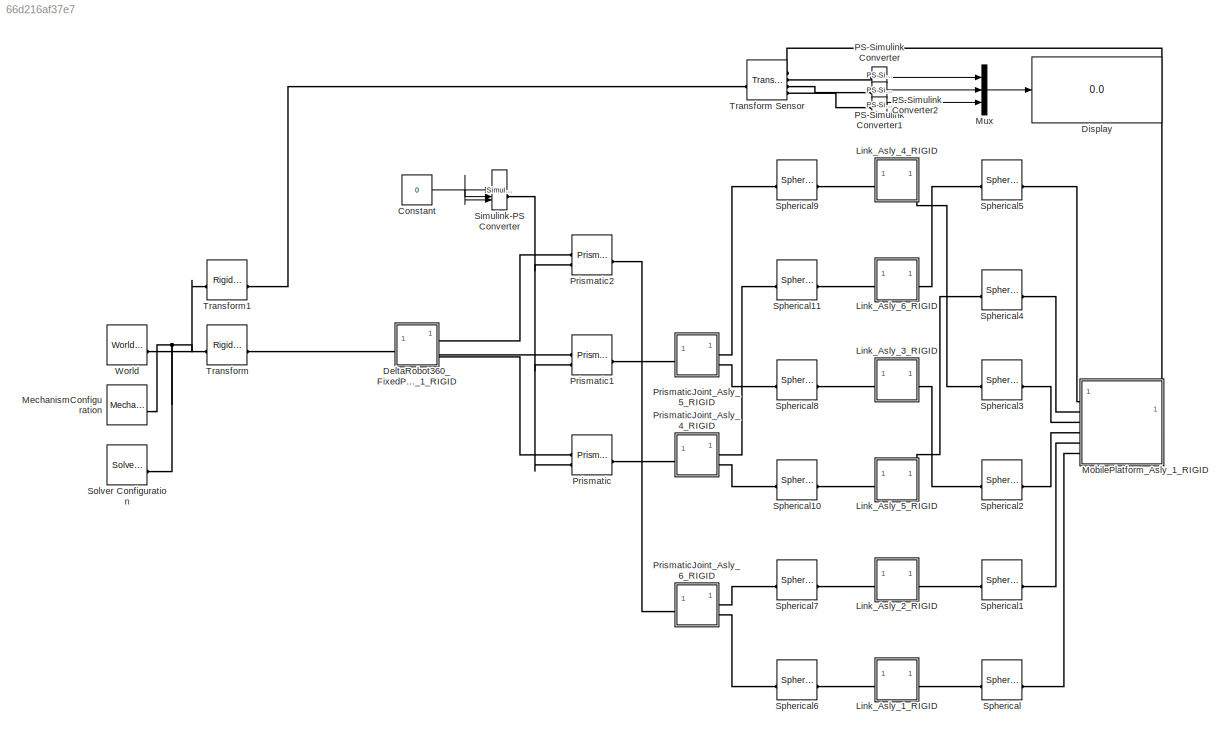
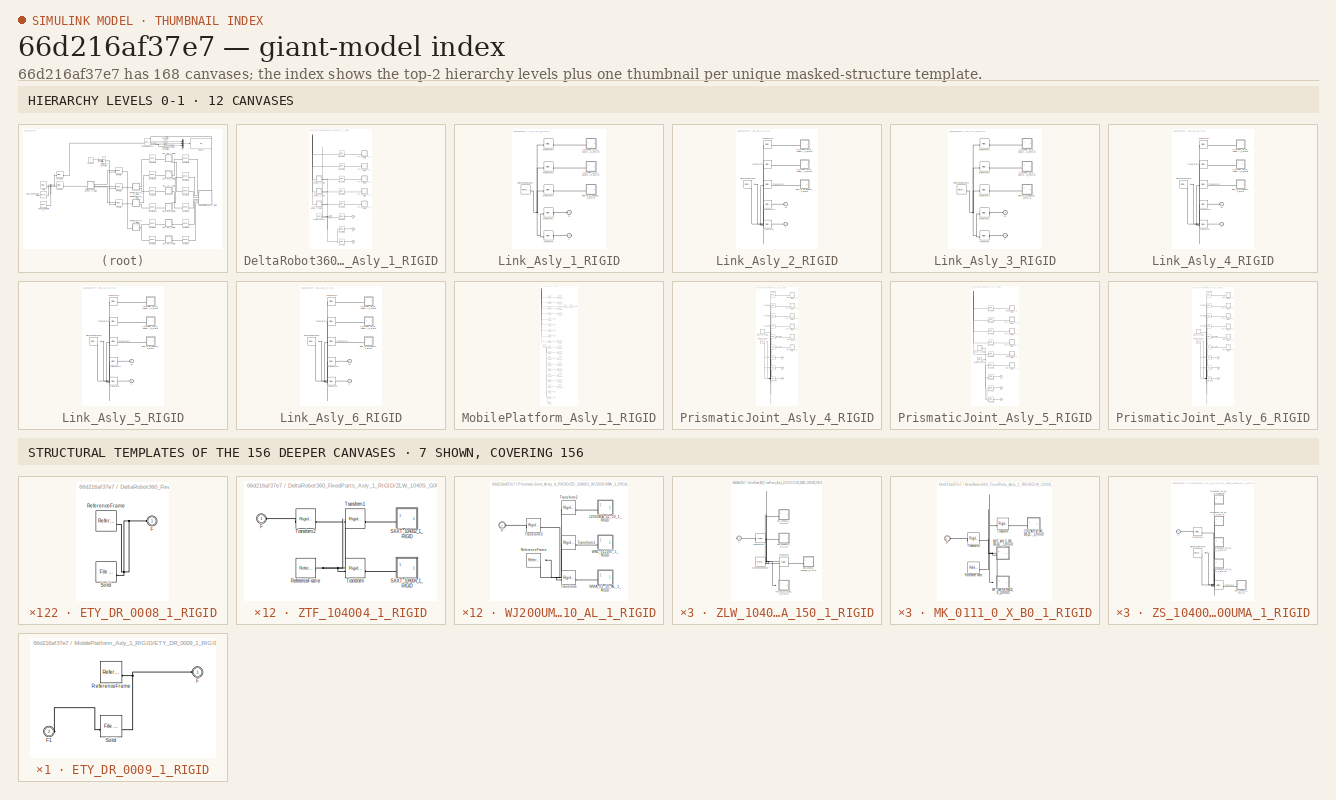
[diagram: thumbnail index - top-2 hierarchy levels (12 canvases) + 7 structural-template representatives of the remaining 156 canvases]
MODEL slx_66d216af37e7
KIND model
CONFIG AbsTol = auto
CONFIG EnableMultiTasking = off
CONFIG FixedStep = auto
CONFIG MaxStep = auto
CONFIG MinStep = auto
CONFIG RelTol = 1e-3
CONFIG SampleTimeConstraint = Unconstrained
CONFIG SolverName = VariableStepAuto
CONFIG StartTime = 0.0
CONFIG StopTime = 10.0
WORKSPACE source: external: MATLAB File  (data not in archive)
BLOCK [Constant] Constant
  Value = 0
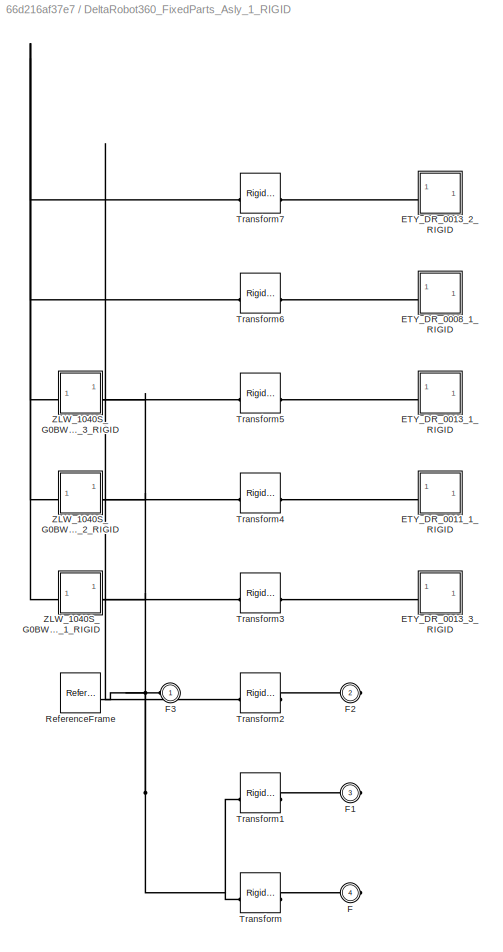
BLOCK [SubSystem] DeltaRobot360_FixedParts_Asly_1_RIGID
BLOCK [SubSystem] DeltaRobot360_FixedParts_Asly_1_RIGID/ETY_DR_0008_1_RIGID
BLOCK [PMIOPort] DeltaRobot360_FixedParts_Asly_1_RIGID/ETY_DR_0008_1_RIGID/F
  Side = Left
BLOCK [Reference] DeltaRobot360_FixedParts_Asly_1_RIGID/ETY_DR_0008_1_RIGID/ReferenceFrame  REF=sm_lib/Frames and
Transforms/Reference
Frame
  SourceBlock = sm_lib/Frames and\nTransforms/Reference\nFrame
  SourceType = Reference\nFrame
BLOCK [Reference] DeltaRobot360_FixedParts_Asly_1_RIGID/ETY_DR_0008_1_RIGID/Solid  REF=sm_lib/Body Elements/File Solid
  SourceBlock = sm_lib/Body Elements/File Solid
  SourceType = File Solid
BLOCK [SubSystem] DeltaRobot360_FixedParts_Asly_1_RIGID/ETY_DR_0011_1_RIGID
BLOCK [PMIOPort] DeltaRobot360_FixedParts_Asly_1_RIGID/ETY_DR_0011_1_RIGID/F
  Side = Left
BLOCK [Reference] DeltaRobot360_FixedParts_Asly_1_RIGID/ETY_DR_0011_1_RIGID/ReferenceFrame  REF=sm_lib/Frames and
Transforms/Reference
Frame
  SourceBlock = sm_lib/Frames and\nTransforms/Reference\nFrame
  SourceType = Reference\nFrame
BLOCK [Reference] DeltaRobot360_FixedParts_Asly_1_RIGID/ETY_DR_0011_1_RIGID/Solid  REF=sm_lib/Body Elements/File Solid
  SourceBlock = sm_lib/Body Elements/File Solid
  SourceType = File Solid
BLOCK [SubSystem] DeltaRobot360_FixedParts_Asly_1_RIGID/ETY_DR_0013_1_RIGID
BLOCK [PMIOPort] DeltaRobot360_FixedParts_Asly_1_RIGID/ETY_DR_0013_1_RIGID/F
  Side = Left
BLOCK [Reference] DeltaRobot360_FixedParts_Asly_1_RIGID/ETY_DR_0013_1_RIGID/ReferenceFrame  REF=sm_lib/Frames and
Transforms/Reference
Frame
  SourceBlock = sm_lib/Frames and\nTransforms/Reference\nFrame
  SourceType = Reference\nFrame
BLOCK [Reference] DeltaRobot360_FixedParts_Asly_1_RIGID/ETY_DR_0013_1_RIGID/Solid  REF=sm_lib/Body Elements/File Solid
  SourceBlock = sm_lib/Body Elements/File Solid
  SourceType = File Solid
BLOCK [SubSystem] DeltaRobot360_FixedParts_Asly_1_RIGID/ETY_DR_0013_2_RIGID
BLOCK [PMIOPort] DeltaRobot360_FixedParts_Asly_1_RIGID/ETY_DR_0013_2_RIGID/F
  Side = Left
BLOCK [Reference] DeltaRobot360_FixedParts_Asly_1_RIGID/ETY_DR_0013_2_RIGID/ReferenceFrame  REF=sm_lib/Frames and
Transforms/Reference
Frame
  SourceBlock = sm_lib/Frames and\nTransforms/Reference\nFrame
  SourceType = Reference\nFrame
BLOCK [Reference] DeltaRobot360_FixedParts_Asly_1_RIGID/ETY_DR_0013_2_RIGID/Solid  REF=sm_lib/Body Elements/File Solid
  SourceBlock = sm_lib/Body Elements/File Solid
  SourceType = File Solid
BLOCK [SubSystem] DeltaRobot360_FixedParts_Asly_1_RIGID/ETY_DR_0013_3_RIGID
BLOCK [PMIOPort] DeltaRobot360_FixedParts_Asly_1_RIGID/ETY_DR_0013_3_RIGID/F
  Side = Left
BLOCK [Reference] DeltaRobot360_FixedParts_Asly_1_RIGID/ETY_DR_0013_3_RIGID/ReferenceFrame  REF=sm_lib/Frames and
Transforms/Reference
Frame
  SourceBlock = sm_lib/Frames and\nTransforms/Reference\nFrame
  SourceType = Reference\nFrame
BLOCK [Reference] DeltaRobot360_FixedParts_Asly_1_RIGID/ETY_DR_0013_3_RIGID/Solid  REF=sm_lib/Body Elements/File Solid
  SourceBlock = sm_lib/Body Elements/File Solid
  SourceType = File Solid
BLOCK [PMIOPort] DeltaRobot360_FixedParts_Asly_1_RIGID/F
  Port = 4
  Side = Right
BLOCK [PMIOPort] DeltaRobot360_FixedParts_Asly_1_RIGID/F1
  Port = 3
  Side = Right
BLOCK [PMIOPort] DeltaRobot360_FixedParts_Asly_1_RIGID/F2
  Port = 2
  Side = Right
BLOCK [PMIOPort] DeltaRobot360_FixedParts_Asly_1_RIGID/F3
  Side = Left
BLOCK [Reference] DeltaRobot360_FixedParts_Asly_1_RIGID/ReferenceFrame  REF=sm_lib/Frames and
Transforms/Reference
Frame
  SourceBlock = sm_lib/Frames and\nTransforms/Reference\nFrame
  SourceType = Reference\nFrame
BLOCK [Reference] DeltaRobot360_FixedParts_Asly_1_RIGID/Transform  REF=sm_lib/Frames and
Transforms/Rigid
Transform
  SourceBlock = sm_lib/Frames and\nTransforms/Rigid\nTransform
  SourceType = Rigid\nTransform
BLOCK [Reference] DeltaRobot360_FixedParts_Asly_1_RIGID/Transform1  REF=sm_lib/Frames and
Transforms/Rigid
Transform
  SourceBlock = sm_lib/Frames and\nTransforms/Rigid\nTransform
  SourceType = Rigid\nTransform
BLOCK [Reference] DeltaRobot360_FixedParts_Asly_1_RIGID/Transform2  REF=sm_lib/Frames and
Transforms/Rigid
Transform
  SourceBlock = sm_lib/Frames and\nTransforms/Rigid\nTransform
  SourceType = Rigid\nTransform
BLOCK [Reference] DeltaRobot360_FixedParts_Asly_1_RIGID/Transform3  REF=sm_lib/Frames and
Transforms/Rigid
Transform
  SourceBlock = sm_lib/Frames and\nTransforms/Rigid\nTransform
  SourceType = Rigid\nTransform
BLOCK [Reference] DeltaRobot360_FixedParts_Asly_1_RIGID/Transform4  REF=sm_lib/Frames and
Transforms/Rigid
Transform
  SourceBlock = sm_lib/Frames and\nTransforms/Rigid\nTransform
  SourceType = Rigid\nTransform
BLOCK [Reference] DeltaRobot360_FixedParts_Asly_1_RIGID/Transform5  REF=sm_lib/Frames and
Transforms/Rigid
Transform
  SourceBlock = sm_lib/Frames and\nTransforms/Rigid\nTransform
  SourceType = Rigid\nTransform
BLOCK [Reference] DeltaRobot360_FixedParts_Asly_1_RIGID/Transform6  REF=sm_lib/Frames and
Transforms/Rigid
Transform
  SourceBlock = sm_lib/Frames and\nTransforms/Rigid\nTransform
  SourceType = Rigid\nTransform
BLOCK [Reference] DeltaRobot360_FixedParts_Asly_1_RIGID/Transform7  REF=sm_lib/Frames and
Transforms/Rigid
Transform
  SourceBlock = sm_lib/Frames and\nTransforms/Rigid\nTransform
  SourceType = Rigid\nTransform
BLOCK [SubSystem] DeltaRobot360_FixedParts_Asly_1_RIGID/ZLW_1040S_G0BW0_D0H1C_AN0A0AA_150_1_RIGID
BLOCK [PMIOPort] DeltaRobot360_FixedParts_Asly_1_RIGID/ZLW_1040S_G0BW0_D0H1C_AN0A0AA_150_1_RIGID/F
  Side = Right
BLOCK [SubSystem] DeltaRobot360_FixedParts_Asly_1_RIGID/ZLW_1040S_G0BW0_D0H1C_AN0A0AA_150_1_RIGID/MK_0111_0_X_B0_1_RIGID
BLOCK [SubSystem] DeltaRobot360_FixedParts_Asly_1_RIGID/ZLW_1040S_G0BW0_D0H1C_AN0A0AA_150_1_RIGID/MK_0111_0_X_B0_1_RIGID/COU_AR_K_080_100_32_32_B_AAAA_1_RIGID
BLOCK [PMIOPort] DeltaRobot360_FixedParts_Asly_1_RIGID/ZLW_1040S_G0BW0_D0H1C_AN0A0AA_150_1_RIGID/MK_0111_0_X_B0_1_RIGID/COU_AR_K_080_100_32_32_B_AAAA_1_RIGID/F
  Side = Left
BLOCK [Reference] DeltaRobot360_FixedParts_Asly_1_RIGID/ZLW_1040S_G0BW0_D0H1C_AN0A0AA_150_1_RIGID/MK_0111_0_X_B0_1_RIGID/COU_AR_K_080_100_32_32_B_AAAA_1_RIGID/ReferenceFrame  REF=sm_lib/Frames and
Transforms/Reference
Frame
  SourceBlock = sm_lib/Frames and\nTransforms/Reference\nFrame
  SourceType = Reference\nFrame
BLOCK [Reference] DeltaRobot360_FixedParts_Asly_1_RIGID/ZLW_1040S_G0BW0_D0H1C_AN0A0AA_150_1_RIGID/MK_0111_0_X_B0_1_RIGID/COU_AR_K_080_100_32_32_B_AAAA_1_RIGID/Solid  REF=sm_lib/Body Elements/File Solid
  SourceBlock = sm_lib/Body Elements/File Solid
  SourceType = File Solid
BLOCK [PMIOPort] DeltaRobot360_FixedParts_Asly_1_RIGID/ZLW_1040S_G0BW0_D0H1C_AN0A0AA_150_1_RIGID/MK_0111_0_X_B0_1_RIGID/F
  Side = Left
BLOCK [SubSystem] DeltaRobot360_FixedParts_Asly_1_RIGID/ZLW_1040S_G0BW0_D0H1C_AN0A0AA_150_1_RIGID/MK_0111_0_X_B0_1_RIGID/MF_1040_NEMA23_S_1_RIGID
BLOCK [PMIOPort] DeltaRobot360_FixedParts_Asly_1_RIGID/ZLW_1040S_G0BW0_D0H1C_AN0A0AA_150_1_RIGID/MK_0111_0_X_B0_1_RIGID/MF_1040_NEMA23_S_1_RIGID/F
  Side = Left
BLOCK [Reference] DeltaRobot360_FixedParts_Asly_1_RIGID/ZLW_1040S_G0BW0_D0H1C_AN0A0AA_150_1_RIGID/MK_0111_0_X_B0_1_RIGID/MF_1040_NEMA23_S_1_RIGID/ReferenceFrame  REF=sm_lib/Frames and
Transforms/Reference
Frame
  SourceBlock = sm_lib/Frames and\nTransforms/Reference\nFrame
  SourceType = Reference\nFrame
BLOCK [Reference] DeltaRobot360_FixedParts_Asly_1_RIGID/ZLW_1040S_G0BW0_D0H1C_AN0A0AA_150_1_RIGID/MK_0111_0_X_B0_1_RIGID/MF_1040_NEMA23_S_1_RIGID/Transform  REF=sm_lib/Frames and
Transforms/Rigid
Transform
  SourceBlock = sm_lib/Frames and\nTransforms/Rigid\nTransform
  SourceType = Rigid\nTransform
BLOCK [Reference] DeltaRobot360_FixedParts_Asly_1_RIGID/ZLW_1040S_G0BW0_D0H1C_AN0A0AA_150_1_RIGID/MK_0111_0_X_B0_1_RIGID/MF_1040_NEMA23_S_1_RIGID/Transform1  REF=sm_lib/Frames and
Transforms/Rigid
Transform
  SourceBlock = sm_lib/Frames and\nTransforms/Rigid\nTransform
  SourceType = Rigid\nTransform
BLOCK [Reference] DeltaRobot360_FixedParts_Asly_1_RIGID/ZLW_1040S_G0BW0_D0H1C_AN0A0AA_150_1_RIGID/MK_0111_0_X_B0_1_RIGID/MF_1040_NEMA23_S_1_RIGID/Transform2  REF=sm_lib/Frames and
Transforms/Rigid
Transform
  SourceBlock = sm_lib/Frames and\nTransforms/Rigid\nTransform
  SourceType = Rigid\nTransform
BLOCK [SubSystem] DeltaRobot360_FixedParts_Asly_1_RIGID/ZLW_1040S_G0BW0_D0H1C_AN0A0AA_150_1_RIGID/MK_0111_0_X_B0_1_RIGID/MF_1040_NEMA23_S_1_RIGID/ZTY_104004_1_RIGID
BLOCK [PMIOPort] DeltaRobot360_FixedParts_Asly_1_RIGID/ZLW_1040S_G0BW0_D0H1C_AN0A0AA_150_1_RIGID/MK_0111_0_X_B0_1_RIGID/MF_1040_NEMA23_S_1_RIGID/ZTY_104004_1_RIGID/F
  Side = Left
BLOCK [Reference] DeltaRobot360_FixedParts_Asly_1_RIGID/ZLW_1040S_G0BW0_D0H1C_AN0A0AA_150_1_RIGID/MK_0111_0_X_B0_1_RIGID/MF_1040_NEMA23_S_1_RIGID/ZTY_104004_1_RIGID/ReferenceFrame  REF=sm_lib/Frames and
Transforms/Reference
Frame
  SourceBlock = sm_lib/Frames and\nTransforms/Reference\nFrame
  SourceType = Reference\nFrame
BLOCK [Reference] DeltaRobot360_FixedParts_Asly_1_RIGID/ZLW_1040S_G0BW0_D0H1C_AN0A0AA_150_1_RIGID/MK_0111_0_X_B0_1_RIGID/MF_1040_NEMA23_S_1_RIGID/ZTY_104004_1_RIGID/Solid  REF=sm_lib/Body Elements/File Solid
  SourceBlock = sm_lib/Body Elements/File Solid
  SourceType = File Solid
BLOCK [SubSystem] DeltaRobot360_FixedParts_Asly_1_RIGID/ZLW_1040S_G0BW0_D0H1C_AN0A0AA_150_1_RIGID/MK_0111_0_X_B0_1_RIGID/MF_1040_NEMA23_S_1_RIGID/ZTY_104010_1_RIGID
BLOCK [PMIOPort] DeltaRobot360_FixedParts_Asly_1_RIGID/ZLW_1040S_G0BW0_D0H1C_AN0A0AA_150_1_RIGID/MK_0111_0_X_B0_1_RIGID/MF_1040_NEMA23_S_1_RIGID/ZTY_104010_1_RIGID/F
  Side = Left
BLOCK [Reference] DeltaRobot360_FixedParts_Asly_1_RIGID/ZLW_1040S_G0BW0_D0H1C_AN0A0AA_150_1_RIGID/MK_0111_0_X_B0_1_RIGID/MF_1040_NEMA23_S_1_RIGID/ZTY_104010_1_RIGID/ReferenceFrame  REF=sm_lib/Frames and
Transforms/Reference
Frame
  SourceBlock = sm_lib/Frames and\nTransforms/Reference\nFrame
  SourceType = Reference\nFrame
BLOCK [Reference] DeltaRobot360_FixedParts_Asly_1_RIGID/ZLW_1040S_G0BW0_D0H1C_AN0A0AA_150_1_RIGID/MK_0111_0_X_B0_1_RIGID/MF_1040_NEMA23_S_1_RIGID/ZTY_104010_1_RIGID/Solid  REF=sm_lib/Body Elements/File Solid
  SourceBlock = sm_lib/Body Elements/File Solid
  SourceType = File Solid
BLOCK [SubSystem] DeltaRobot360_FixedParts_Asly_1_RIGID/ZLW_1040S_G0BW0_D0H1C_AN0A0AA_150_1_RIGID/MK_0111_0_X_B0_1_RIGID/MOT_AN_S_060_035_060_M_C_AAAC_1_RIGID
BLOCK [PMIOPort] DeltaRobot360_FixedParts_Asly_1_RIGID/ZLW_1040S_G0BW0_D0H1C_AN0A0AA_150_1_RIGID/MK_0111_0_X_B0_1_RIGID/MOT_AN_S_060_035_060_M_C_AAAC_1_RIGID/F
  Side = Left
BLOCK [Reference] DeltaRobot360_FixedParts_Asly_1_RIGID/ZLW_1040S_G0BW0_D0H1C_AN0A0AA_150_1_RIGID/MK_0111_0_X_B0_1_RIGID/MOT_AN_S_060_035_060_M_C_AAAC_1_RIGID/ReferenceFrame  REF=sm_lib/Frames and
Transforms/Reference
Frame
  SourceBlock = sm_lib/Frames and\nTransforms/Reference\nFrame
  SourceType = Reference\nFrame
BLOCK [Reference] DeltaRobot360_FixedParts_Asly_1_RIGID/ZLW_1040S_G0BW0_D0H1C_AN0A0AA_150_1_RIGID/MK_0111_0_X_B0_1_RIGID/MOT_AN_S_060_035_060_M_C_AAAC_1_RIGID/Transform  REF=sm_lib/Frames and
Transforms/Rigid
Transform
  SourceBlock = sm_lib/Frames and\nTransforms/Rigid\nTransform
  SourceType = Rigid\nTransform
BLOCK [Reference] DeltaRobot360_FixedParts_Asly_1_RIGID/ZLW_1040S_G0BW0_D0H1C_AN0A0AA_150_1_RIGID/MK_0111_0_X_B0_1_RIGID/MOT_AN_S_060_035_060_M_C_AAAC_1_RIGID/Transform1  REF=sm_lib/Frames and
Transforms/Rigid
Transform
  SourceBlock = sm_lib/Frames and\nTransforms/Rigid\nTransform
  SourceType = Rigid\nTransform
BLOCK [Reference] DeltaRobot360_FixedParts_Asly_1_RIGID/ZLW_1040S_G0BW0_D0H1C_AN0A0AA_150_1_RIGID/MK_0111_0_X_B0_1_RIGID/MOT_AN_S_060_035_060_M_C_AAAC_1_RIGID/Transform2  REF=sm_lib/Frames and
Transforms/Rigid
Transform
  SourceBlock = sm_lib/Frames and\nTransforms/Rigid\nTransform
  SourceType = Rigid\nTransform
BLOCK [SubSystem] DeltaRobot360_FixedParts_Asly_1_RIGID/ZLW_1040S_G0BW0_D0H1C_AN0A0AA_150_1_RIGID/MK_0111_0_X_B0_1_RIGID/MOT_AN_S_060_035_060_M_C_AAAC_1_RIGID/x1_1_RIGID
BLOCK [PMIOPort] DeltaRobot360_FixedParts_Asly_1_RIGID/ZLW_1040S_G0BW0_D0H1C_AN0A0AA_150_1_RIGID/MK_0111_0_X_B0_1_RIGID/MOT_AN_S_060_035_060_M_C_AAAC_1_RIGID/x1_1_RIGID/F
  Side = Left
BLOCK [Reference] DeltaRobot360_FixedParts_Asly_1_RIGID/ZLW_1040S_G0BW0_D0H1C_AN0A0AA_150_1_RIGID/MK_0111_0_X_B0_1_RIGID/MOT_AN_S_060_035_060_M_C_AAAC_1_RIGID/x1_1_RIGID/ReferenceFrame  REF=sm_lib/Frames and
Transforms/Reference
Frame
  SourceBlock = sm_lib/Frames and\nTransforms/Reference\nFrame
  SourceType = Reference\nFrame
BLOCK [Reference] DeltaRobot360_FixedParts_Asly_1_RIGID/ZLW_1040S_G0BW0_D0H1C_AN0A0AA_150_1_RIGID/MK_0111_0_X_B0_1_RIGID/MOT_AN_S_060_035_060_M_C_AAAC_1_RIGID/x1_1_RIGID/Solid  REF=sm_lib/Body Elements/File Solid
  SourceBlock = sm_lib/Body Elements/File Solid
  SourceType = File Solid
BLOCK [SubSystem] DeltaRobot360_FixedParts_Asly_1_RIGID/ZLW_1040S_G0BW0_D0H1C_AN0A0AA_150_1_RIGID/MK_0111_0_X_B0_1_RIGID/MOT_AN_S_060_035_060_M_C_AAAC_1_RIGID/x2_1_RIGID
BLOCK [PMIOPort] DeltaRobot360_FixedParts_Asly_1_RIGID/ZLW_1040S_G0BW0_D0H1C_AN0A0AA_150_1_RIGID/MK_0111_0_X_B0_1_RIGID/MOT_AN_S_060_035_060_M_C_AAAC_1_RIGID/x2_1_RIGID/F
  Side = Left
BLOCK [Reference] DeltaRobot360_FixedParts_Asly_1_RIGID/ZLW_1040S_G0BW0_D0H1C_AN0A0AA_150_1_RIGID/MK_0111_0_X_B0_1_RIGID/MOT_AN_S_060_035_060_M_C_AAAC_1_RIGID/x2_1_RIGID/ReferenceFrame  REF=sm_lib/Frames and
Transforms/Reference
Frame
  SourceBlock = sm_lib/Frames and\nTransforms/Reference\nFrame
  SourceType = Reference\nFrame
BLOCK [Reference] DeltaRobot360_FixedParts_Asly_1_RIGID/ZLW_1040S_G0BW0_D0H1C_AN0A0AA_150_1_RIGID/MK_0111_0_X_B0_1_RIGID/MOT_AN_S_060_035_060_M_C_AAAC_1_RIGID/x2_1_RIGID/Solid  REF=sm_lib/Body Elements/File Solid
  SourceBlock = sm_lib/Body Elements/File Solid
  SourceType = File Solid
BLOCK [Reference] DeltaRobot360_FixedParts_Asly_1_RIGID/ZLW_1040S_G0BW0_D0H1C_AN0A0AA_150_1_RIGID/MK_0111_0_X_B0_1_RIGID/ReferenceFrame  REF=sm_lib/Frames and
Transforms/Reference
Frame
  SourceBlock = sm_lib/Frames and\nTransforms/Reference\nFrame
  SourceType = Reference\nFrame
BLOCK [Reference] DeltaRobot360_FixedParts_Asly_1_RIGID/ZLW_1040S_G0BW0_D0H1C_AN0A0AA_150_1_RIGID/MK_0111_0_X_B0_1_RIGID/Transform  REF=sm_lib/Frames and
Transforms/Rigid
Transform
  SourceBlock = sm_lib/Frames and\nTransforms/Rigid\nTransform
  SourceType = Rigid\nTransform
BLOCK [Reference] DeltaRobot360_FixedParts_Asly_1_RIGID/ZLW_1040S_G0BW0_D0H1C_AN0A0AA_150_1_RIGID/MK_0111_0_X_B0_1_RIGID/Transform1  REF=sm_lib/Frames and
Transforms/Rigid
Transform
  SourceBlock = sm_lib/Frames and\nTransforms/Rigid\nTransform
  SourceType = Rigid\nTransform
BLOCK [Reference] DeltaRobot360_FixedParts_Asly_1_RIGID/ZLW_1040S_G0BW0_D0H1C_AN0A0AA_150_1_RIGID/ReferenceFrame  REF=sm_lib/Frames and
Transforms/Reference
Frame
  SourceBlock = sm_lib/Frames and\nTransforms/Reference\nFrame
  SourceType = Reference\nFrame
BLOCK [Reference] DeltaRobot360_FixedParts_Asly_1_RIGID/ZLW_1040S_G0BW0_D0H1C_AN0A0AA_150_1_RIGID/Transform  REF=sm_lib/Frames and
Transforms/Rigid
Transform
  SourceBlock = sm_lib/Frames and\nTransforms/Rigid\nTransform
  SourceType = Rigid\nTransform
BLOCK [Reference] DeltaRobot360_FixedParts_Asly_1_RIGID/ZLW_1040S_G0BW0_D0H1C_AN0A0AA_150_1_RIGID/Transform1  REF=sm_lib/Frames and
Transforms/Rigid
Transform
  SourceBlock = sm_lib/Frames and\nTransforms/Rigid\nTransform
  SourceType = Rigid\nTransform
BLOCK [SubSystem] DeltaRobot360_FixedParts_Asly_1_RIGID/ZLW_1040S_G0BW0_D0H1C_AN0A0AA_150_1_RIGID/ZSX_104001_konfig_1_RIGID
BLOCK [PMIOPort] DeltaRobot360_FixedParts_Asly_1_RIGID/ZLW_1040S_G0BW0_D0H1C_AN0A0AA_150_1_RIGID/ZSX_104001_konfig_1_RIGID/F
  Side = Left
BLOCK [Reference] DeltaRobot360_FixedParts_Asly_1_RIGID/ZLW_1040S_G0BW0_D0H1C_AN0A0AA_150_1_RIGID/ZSX_104001_konfig_1_RIGID/ReferenceFrame  REF=sm_lib/Frames and
Transforms/Reference
Frame
  SourceBlock = sm_lib/Frames and\nTransforms/Reference\nFrame
  SourceType = Reference\nFrame
BLOCK [Reference] DeltaRobot360_FixedParts_Asly_1_RIGID/ZLW_1040S_G0BW0_D0H1C_AN0A0AA_150_1_RIGID/ZSX_104001_konfig_1_RIGID/Solid  REF=sm_lib/Body Elements/File Solid
  SourceBlock = sm_lib/Body Elements/File Solid
  SourceType = File Solid
BLOCK [SubSystem] DeltaRobot360_FixedParts_Asly_1_RIGID/ZLW_1040S_G0BW0_D0H1C_AN0A0AA_150_1_RIGID/ZTF_104004_1_RIGID
BLOCK [PMIOPort] DeltaRobot360_FixedParts_Asly_1_RIGID/ZLW_1040S_G0BW0_D0H1C_AN0A0AA_150_1_RIGID/ZTF_104004_1_RIGID/F
  Side = Left
BLOCK [Reference] DeltaRobot360_FixedParts_Asly_1_RIGID/ZLW_1040S_G0BW0_D0H1C_AN0A0AA_150_1_RIGID/ZTF_104004_1_RIGID/ReferenceFrame  REF=sm_lib/Frames and
Transforms/Reference
Frame
  SourceBlock = sm_lib/Frames and\nTransforms/Reference\nFrame
  SourceType = Reference\nFrame
BLOCK [SubSystem] DeltaRobot360_FixedParts_Asly_1_RIGID/ZLW_1040S_G0BW0_D0H1C_AN0A0AA_150_1_RIGID/ZTF_104004_1_RIGID/SAXT_104002_1_RIGID
BLOCK [PMIOPort] DeltaRobot360_FixedParts_Asly_1_RIGID/ZLW_1040S_G0BW0_D0H1C_AN0A0AA_150_1_RIGID/ZTF_104004_1_RIGID/SAXT_104002_1_RIGID/F
  Side = Left
BLOCK [Reference] DeltaRobot360_FixedParts_Asly_1_RIGID/ZLW_1040S_G0BW0_D0H1C_AN0A0AA_150_1_RIGID/ZTF_104004_1_RIGID/SAXT_104002_1_RIGID/ReferenceFrame  REF=sm_lib/Frames and
Transforms/Reference
Frame
  SourceBlock = sm_lib/Frames and\nTransforms/Reference\nFrame
  SourceType = Reference\nFrame
BLOCK [Reference] DeltaRobot360_FixedParts_Asly_1_RIGID/ZLW_1040S_G0BW0_D0H1C_AN0A0AA_150_1_RIGID/ZTF_104004_1_RIGID/SAXT_104002_1_RIGID/Solid  REF=sm_lib/Body Elements/File Solid
  SourceBlock = sm_lib/Body Elements/File Solid
  SourceType = File Solid
BLOCK [SubSystem] DeltaRobot360_FixedParts_Asly_1_RIGID/ZLW_1040S_G0BW0_D0H1C_AN0A0AA_150_1_RIGID/ZTF_104004_1_RIGID/SAXT_104004_1_RIGID
BLOCK [PMIOPort] DeltaRobot360_FixedParts_Asly_1_RIGID/ZLW_1040S_G0BW0_D0H1C_AN0A0AA_150_1_RIGID/ZTF_104004_1_RIGID/SAXT_104004_1_RIGID/F
  Side = Left
BLOCK [Reference] DeltaRobot360_FixedParts_Asly_1_RIGID/ZLW_1040S_G0BW0_D0H1C_AN0A0AA_150_1_RIGID/ZTF_104004_1_RIGID/SAXT_104004_1_RIGID/ReferenceFrame  REF=sm_lib/Frames and
Transforms/Reference
Frame
  SourceBlock = sm_lib/Frames and\nTransforms/Reference\nFrame
  SourceType = Reference\nFrame
BLOCK [Reference] DeltaRobot360_FixedParts_Asly_1_RIGID/ZLW_1040S_G0BW0_D0H1C_AN0A0AA_150_1_RIGID/ZTF_104004_1_RIGID/SAXT_104004_1_RIGID/Solid  REF=sm_lib/Body Elements/File Solid
  SourceBlock = sm_lib/Body Elements/File Solid
  SourceType = File Solid
BLOCK [Reference] DeltaRobot360_FixedParts_Asly_1_RIGID/ZLW_1040S_G0BW0_D0H1C_AN0A0AA_150_1_RIGID/ZTF_104004_1_RIGID/Transform  REF=sm_lib/Frames and
Transforms/Rigid
Transform
  SourceBlock = sm_lib/Frames and\nTransforms/Rigid\nTransform
  SourceType = Rigid\nTransform
BLOCK [Reference] DeltaRobot360_FixedParts_Asly_1_RIGID/ZLW_1040S_G0BW0_D0H1C_AN0A0AA_150_1_RIGID/ZTF_104004_1_RIGID/Transform1  REF=sm_lib/Frames and
Transforms/Rigid
Transform
  SourceBlock = sm_lib/Frames and\nTransforms/Rigid\nTransform
  SourceType = Rigid\nTransform
BLOCK [Reference] DeltaRobot360_FixedParts_Asly_1_RIGID/ZLW_1040S_G0BW0_D0H1C_AN0A0AA_150_1_RIGID/ZTF_104004_1_RIGID/Transform2  REF=sm_lib/Frames and
Transforms/Rigid
Transform
  SourceBlock = sm_lib/Frames and\nTransforms/Rigid\nTransform
  SourceType = Rigid\nTransform
BLOCK [SubSystem] DeltaRobot360_FixedParts_Asly_1_RIGID/ZLW_1040S_G0BW0_D0H1C_AN0A0AA_150_1_RIGID/ZTL_104002_1_RIGID
BLOCK [PMIOPort] DeltaRobot360_FixedParts_Asly_1_RIGID/ZLW_1040S_G0BW0_D0H1C_AN0A0AA_150_1_RIGID/ZTL_104002_1_RIGID/F
  Side = Left
BLOCK [Reference] DeltaRobot360_FixedParts_Asly_1_RIGID/ZLW_1040S_G0BW0_D0H1C_AN0A0AA_150_1_RIGID/ZTL_104002_1_RIGID/ReferenceFrame  REF=sm_lib/Frames and
Transforms/Reference
Frame
  SourceBlock = sm_lib/Frames and\nTransforms/Reference\nFrame
  SourceType = Reference\nFrame
BLOCK [SubSystem] DeltaRobot360_FixedParts_Asly_1_RIGID/ZLW_1040S_G0BW0_D0H1C_AN0A0AA_150_1_RIGID/ZTL_104002_1_RIGID/SAXT_104001_1_RIGID
BLOCK [PMIOPort] DeltaRobot360_FixedParts_Asly_1_RIGID/ZLW_1040S_G0BW0_D0H1C_AN0A0AA_150_1_RIGID/ZTL_104002_1_RIGID/SAXT_104001_1_RIGID/F
  Side = Left
BLOCK [Reference] DeltaRobot360_FixedParts_Asly_1_RIGID/ZLW_1040S_G0BW0_D0H1C_AN0A0AA_150_1_RIGID/ZTL_104002_1_RIGID/SAXT_104001_1_RIGID/ReferenceFrame  REF=sm_lib/Frames and
Transforms/Reference
Frame
  SourceBlock = sm_lib/Frames and\nTransforms/Reference\nFrame
  SourceType = Reference\nFrame
BLOCK [Reference] DeltaRobot360_FixedParts_Asly_1_RIGID/ZLW_1040S_G0BW0_D0H1C_AN0A0AA_150_1_RIGID/ZTL_104002_1_RIGID/SAXT_104001_1_RIGID/Solid  REF=sm_lib/Body Elements/File Solid
  SourceBlock = sm_lib/Body Elements/File Solid
  SourceType = File Solid
BLOCK [SubSystem] DeltaRobot360_FixedParts_Asly_1_RIGID/ZLW_1040S_G0BW0_D0H1C_AN0A0AA_150_1_RIGID/ZTL_104002_1_RIGID/SAXT_104002_1_RIGID
BLOCK [PMIOPort] DeltaRobot360_FixedParts_Asly_1_RIGID/ZLW_1040S_G0BW0_D0H1C_AN0A0AA_150_1_RIGID/ZTL_104002_1_RIGID/SAXT_104002_1_RIGID/F
  Side = Left
BLOCK [Reference] DeltaRobot360_FixedParts_Asly_1_RIGID/ZLW_1040S_G0BW0_D0H1C_AN0A0AA_150_1_RIGID/ZTL_104002_1_RIGID/SAXT_104002_1_RIGID/ReferenceFrame  REF=sm_lib/Frames and
Transforms/Reference
Frame
  SourceBlock = sm_lib/Frames and\nTransforms/Reference\nFrame
  SourceType = Reference\nFrame
BLOCK [Reference] DeltaRobot360_FixedParts_Asly_1_RIGID/ZLW_1040S_G0BW0_D0H1C_AN0A0AA_150_1_RIGID/ZTL_104002_1_RIGID/SAXT_104002_1_RIGID/Solid  REF=sm_lib/Body Elements/File Solid
  SourceBlock = sm_lib/Body Elements/File Solid
  SourceType = File Solid
BLOCK [Reference] DeltaRobot360_FixedParts_Asly_1_RIGID/ZLW_1040S_G0BW0_D0H1C_AN0A0AA_150_1_RIGID/ZTL_104002_1_RIGID/Transform  REF=sm_lib/Frames and
Transforms/Rigid
Transform
  SourceBlock = sm_lib/Frames and\nTransforms/Rigid\nTransform
  SourceType = Rigid\nTransform
BLOCK [Reference] DeltaRobot360_FixedParts_Asly_1_RIGID/ZLW_1040S_G0BW0_D0H1C_AN0A0AA_150_1_RIGID/ZTL_104002_1_RIGID/Transform1  REF=sm_lib/Frames and
Transforms/Rigid
Transform
  SourceBlock = sm_lib/Frames and\nTransforms/Rigid\nTransform
  SourceType = Rigid\nTransform
BLOCK [Reference] DeltaRobot360_FixedParts_Asly_1_RIGID/ZLW_1040S_G0BW0_D0H1C_AN0A0AA_150_1_RIGID/ZTL_104002_1_RIGID/Transform2  REF=sm_lib/Frames and
Transforms/Rigid
Transform
  SourceBlock = sm_lib/Frames and\nTransforms/Rigid\nTransform
  SourceType = Rigid\nTransform
BLOCK [SubSystem] DeltaRobot360_FixedParts_Asly_1_RIGID/ZLW_1040S_G0BW0_D0H1C_AN0A0AA_150_2_RIGID
BLOCK [PMIOPort] DeltaRobot360_FixedParts_Asly_1_RIGID/ZLW_1040S_G0BW0_D0H1C_AN0A0AA_150_2_RIGID/F
  Side = Right
BLOCK [SubSystem] DeltaRobot360_FixedParts_Asly_1_RIGID/ZLW_1040S_G0BW0_D0H1C_AN0A0AA_150_2_RIGID/MK_0111_0_X_B0_1_RIGID
BLOCK [SubSystem] DeltaRobot360_FixedParts_Asly_1_RIGID/ZLW_1040S_G0BW0_D0H1C_AN0A0AA_150_2_RIGID/MK_0111_0_X_B0_1_RIGID/COU_AR_K_080_100_32_32_B_AAAA_1_RIGID
BLOCK [PMIOPort] DeltaRobot360_FixedParts_Asly_1_RIGID/ZLW_1040S_G0BW0_D0H1C_AN0A0AA_150_2_RIGID/MK_0111_0_X_B0_1_RIGID/COU_AR_K_080_100_32_32_B_AAAA_1_RIGID/F
  Side = Left
BLOCK [Reference] DeltaRobot360_FixedParts_Asly_1_RIGID/ZLW_1040S_G0BW0_D0H1C_AN0A0AA_150_2_RIGID/MK_0111_0_X_B0_1_RIGID/COU_AR_K_080_100_32_32_B_AAAA_1_RIGID/ReferenceFrame  REF=sm_lib/Frames and
Transforms/Reference
Frame
  SourceBlock = sm_lib/Frames and\nTransforms/Reference\nFrame
  SourceType = Reference\nFrame
BLOCK [Reference] DeltaRobot360_FixedParts_Asly_1_RIGID/ZLW_1040S_G0BW0_D0H1C_AN0A0AA_150_2_RIGID/MK_0111_0_X_B0_1_RIGID/COU_AR_K_080_100_32_32_B_AAAA_1_RIGID/Solid  REF=sm_lib/Body Elements/File Solid
  SourceBlock = sm_lib/Body Elements/File Solid
  SourceType = File Solid
BLOCK [PMIOPort] DeltaRobot360_FixedParts_Asly_1_RIGID/ZLW_1040S_G0BW0_D0H1C_AN0A0AA_150_2_RIGID/MK_0111_0_X_B0_1_RIGID/F
  Side = Left
BLOCK [SubSystem] DeltaRobot360_FixedParts_Asly_1_RIGID/ZLW_1040S_G0BW0_D0H1C_AN0A0AA_150_2_RIGID/MK_0111_0_X_B0_1_RIGID/MF_1040_NEMA23_S_1_RIGID
BLOCK [PMIOPort] DeltaRobot360_FixedParts_Asly_1_RIGID/ZLW_1040S_G0BW0_D0H1C_AN0A0AA_150_2_RIGID/MK_0111_0_X_B0_1_RIGID/MF_1040_NEMA23_S_1_RIGID/F
  Side = Left
BLOCK [Reference] DeltaRobot360_FixedParts_Asly_1_RIGID/ZLW_1040S_G0BW0_D0H1C_AN0A0AA_150_2_RIGID/MK_0111_0_X_B0_1_RIGID/MF_1040_NEMA23_S_1_RIGID/ReferenceFrame  REF=sm_lib/Frames and
Transforms/Reference
Frame
  SourceBlock = sm_lib/Frames and\nTransforms/Reference\nFrame
  SourceType = Reference\nFrame
BLOCK [Reference] DeltaRobot360_FixedParts_Asly_1_RIGID/ZLW_1040S_G0BW0_D0H1C_AN0A0AA_150_2_RIGID/MK_0111_0_X_B0_1_RIGID/MF_1040_NEMA23_S_1_RIGID/Transform  REF=sm_lib/Frames and
Transforms/Rigid
Transform
  SourceBlock = sm_lib/Frames and\nTransforms/Rigid\nTransform
  SourceType = Rigid\nTransform
BLOCK [Reference] DeltaRobot360_FixedParts_Asly_1_RIGID/ZLW_1040S_G0BW0_D0H1C_AN0A0AA_150_2_RIGID/MK_0111_0_X_B0_1_RIGID/MF_1040_NEMA23_S_1_RIGID/Transform1  REF=sm_lib/Frames and
Transforms/Rigid
Transform
  SourceBlock = sm_lib/Frames and\nTransforms/Rigid\nTransform
  SourceType = Rigid\nTransform
BLOCK [Reference] DeltaRobot360_FixedParts_Asly_1_RIGID/ZLW_1040S_G0BW0_D0H1C_AN0A0AA_150_2_RIGID/MK_0111_0_X_B0_1_RIGID/MF_1040_NEMA23_S_1_RIGID/Transform2  REF=sm_lib/Frames and
Transforms/Rigid
Transform
  SourceBlock = sm_lib/Frames and\nTransforms/Rigid\nTransform
  SourceType = Rigid\nTransform
BLOCK [SubSystem] DeltaRobot360_FixedParts_Asly_1_RIGID/ZLW_1040S_G0BW0_D0H1C_AN0A0AA_150_2_RIGID/MK_0111_0_X_B0_1_RIGID/MF_1040_NEMA23_S_1_RIGID/ZTY_104004_1_RIGID
BLOCK [PMIOPort] DeltaRobot360_FixedParts_Asly_1_RIGID/ZLW_1040S_G0BW0_D0H1C_AN0A0AA_150_2_RIGID/MK_0111_0_X_B0_1_RIGID/MF_1040_NEMA23_S_1_RIGID/ZTY_104004_1_RIGID/F
  Side = Left
BLOCK [Reference] DeltaRobot360_FixedParts_Asly_1_RIGID/ZLW_1040S_G0BW0_D0H1C_AN0A0AA_150_2_RIGID/MK_0111_0_X_B0_1_RIGID/MF_1040_NEMA23_S_1_RIGID/ZTY_104004_1_RIGID/ReferenceFrame  REF=sm_lib/Frames and
Transforms/Reference
Frame
  SourceBlock = sm_lib/Frames and\nTransforms/Reference\nFrame
  SourceType = Reference\nFrame
BLOCK [Reference] DeltaRobot360_FixedParts_Asly_1_RIGID/ZLW_1040S_G0BW0_D0H1C_AN0A0AA_150_2_RIGID/MK_0111_0_X_B0_1_RIGID/MF_1040_NEMA23_S_1_RIGID/ZTY_104004_1_RIGID/Solid  REF=sm_lib/Body Elements/File Solid
  SourceBlock = sm_lib/Body Elements/File Solid
  SourceType = File Solid
BLOCK [SubSystem] DeltaRobot360_FixedParts_Asly_1_RIGID/ZLW_1040S_G0BW0_D0H1C_AN0A0AA_150_2_RIGID/MK_0111_0_X_B0_1_RIGID/MF_1040_NEMA23_S_1_RIGID/ZTY_104010_1_RIGID
BLOCK [PMIOPort] DeltaRobot360_FixedParts_Asly_1_RIGID/ZLW_1040S_G0BW0_D0H1C_AN0A0AA_150_2_RIGID/MK_0111_0_X_B0_1_RIGID/MF_1040_NEMA23_S_1_RIGID/ZTY_104010_1_RIGID/F
  Side = Left
BLOCK [Reference] DeltaRobot360_FixedParts_Asly_1_RIGID/ZLW_1040S_G0BW0_D0H1C_AN0A0AA_150_2_RIGID/MK_0111_0_X_B0_1_RIGID/MF_1040_NEMA23_S_1_RIGID/ZTY_104010_1_RIGID/ReferenceFrame  REF=sm_lib/Frames and
Transforms/Reference
Frame
  SourceBlock = sm_lib/Frames and\nTransforms/Reference\nFrame
  SourceType = Reference\nFrame
BLOCK [Reference] DeltaRobot360_FixedParts_Asly_1_RIGID/ZLW_1040S_G0BW0_D0H1C_AN0A0AA_150_2_RIGID/MK_0111_0_X_B0_1_RIGID/MF_1040_NEMA23_S_1_RIGID/ZTY_104010_1_RIGID/Solid  REF=sm_lib/Body Elements/File Solid
  SourceBlock = sm_lib/Body Elements/File Solid
  SourceType = File Solid
BLOCK [SubSystem] DeltaRobot360_FixedParts_Asly_1_RIGID/ZLW_1040S_G0BW0_D0H1C_AN0A0AA_150_2_RIGID/MK_0111_0_X_B0_1_RIGID/MOT_AN_S_060_035_060_M_C_AAAC_1_RIGID
BLOCK [PMIOPort] DeltaRobot360_FixedParts_Asly_1_RIGID/ZLW_1040S_G0BW0_D0H1C_AN0A0AA_150_2_RIGID/MK_0111_0_X_B0_1_RIGID/MOT_AN_S_060_035_060_M_C_AAAC_1_RIGID/F
  Side = Left
BLOCK [Reference] DeltaRobot360_FixedParts_Asly_1_RIGID/ZLW_1040S_G0BW0_D0H1C_AN0A0AA_150_2_RIGID/MK_0111_0_X_B0_1_RIGID/MOT_AN_S_060_035_060_M_C_AAAC_1_RIGID/ReferenceFrame  REF=sm_lib/Frames and
Transforms/Reference
Frame
  SourceBlock = sm_lib/Frames and\nTransforms/Reference\nFrame
  SourceType = Reference\nFrame
BLOCK [Reference] DeltaRobot360_FixedParts_Asly_1_RIGID/ZLW_1040S_G0BW0_D0H1C_AN0A0AA_150_2_RIGID/MK_0111_0_X_B0_1_RIGID/MOT_AN_S_060_035_060_M_C_AAAC_1_RIGID/Transform  REF=sm_lib/Frames and
Transforms/Rigid
Transform
  SourceBlock = sm_lib/Frames and\nTransforms/Rigid\nTransform
  SourceType = Rigid\nTransform
BLOCK [Reference] DeltaRobot360_FixedParts_Asly_1_RIGID/ZLW_1040S_G0BW0_D0H1C_AN0A0AA_150_2_RIGID/MK_0111_0_X_B0_1_RIGID/MOT_AN_S_060_035_060_M_C_AAAC_1_RIGID/Transform1  REF=sm_lib/Frames and
Transforms/Rigid
Transform
  SourceBlock = sm_lib/Frames and\nTransforms/Rigid\nTransform
  SourceType = Rigid\nTransform
BLOCK [Reference] DeltaRobot360_FixedParts_Asly_1_RIGID/ZLW_1040S_G0BW0_D0H1C_AN0A0AA_150_2_RIGID/MK_0111_0_X_B0_1_RIGID/MOT_AN_S_060_035_060_M_C_AAAC_1_RIGID/Transform2  REF=sm_lib/Frames and
Transforms/Rigid
Transform
  SourceBlock = sm_lib/Frames and\nTransforms/Rigid\nTransform
  SourceType = Rigid\nTransform
BLOCK [SubSystem] DeltaRobot360_FixedParts_Asly_1_RIGID/ZLW_1040S_G0BW0_D0H1C_AN0A0AA_150_2_RIGID/MK_0111_0_X_B0_1_RIGID/MOT_AN_S_060_035_060_M_C_AAAC_1_RIGID/x1_1_RIGID
BLOCK [PMIOPort] DeltaRobot360_FixedParts_Asly_1_RIGID/ZLW_1040S_G0BW0_D0H1C_AN0A0AA_150_2_RIGID/MK_0111_0_X_B0_1_RIGID/MOT_AN_S_060_035_060_M_C_AAAC_1_RIGID/x1_1_RIGID/F
  Side = Left
BLOCK [Reference] DeltaRobot360_FixedParts_Asly_1_RIGID/ZLW_1040S_G0BW0_D0H1C_AN0A0AA_150_2_RIGID/MK_0111_0_X_B0_1_RIGID/MOT_AN_S_060_035_060_M_C_AAAC_1_RIGID/x1_1_RIGID/ReferenceFrame  REF=sm_lib/Frames and
Transforms/Reference
Frame
  SourceBlock = sm_lib/Frames and\nTransforms/Reference\nFrame
  SourceType = Reference\nFrame
BLOCK [Reference] DeltaRobot360_FixedParts_Asly_1_RIGID/ZLW_1040S_G0BW0_D0H1C_AN0A0AA_150_2_RIGID/MK_0111_0_X_B0_1_RIGID/MOT_AN_S_060_035_060_M_C_AAAC_1_RIGID/x1_1_RIGID/Solid  REF=sm_lib/Body Elements/File Solid
  SourceBlock = sm_lib/Body Elements/File Solid
  SourceType = File Solid
BLOCK [SubSystem] DeltaRobot360_FixedParts_Asly_1_RIGID/ZLW_1040S_G0BW0_D0H1C_AN0A0AA_150_2_RIGID/MK_0111_0_X_B0_1_RIGID/MOT_AN_S_060_035_060_M_C_AAAC_1_RIGID/x2_1_RIGID
BLOCK [PMIOPort] DeltaRobot360_FixedParts_Asly_1_RIGID/ZLW_1040S_G0BW0_D0H1C_AN0A0AA_150_2_RIGID/MK_0111_0_X_B0_1_RIGID/MOT_AN_S_060_035_060_M_C_AAAC_1_RIGID/x2_1_RIGID/F
  Side = Left
BLOCK [Reference] DeltaRobot360_FixedParts_Asly_1_RIGID/ZLW_1040S_G0BW0_D0H1C_AN0A0AA_150_2_RIGID/MK_0111_0_X_B0_1_RIGID/MOT_AN_S_060_035_060_M_C_AAAC_1_RIGID/x2_1_RIGID/ReferenceFrame  REF=sm_lib/Frames and
Transforms/Reference
Frame
  SourceBlock = sm_lib/Frames and\nTransforms/Reference\nFrame
  SourceType = Reference\nFrame
BLOCK [Reference] DeltaRobot360_FixedParts_Asly_1_RIGID/ZLW_1040S_G0BW0_D0H1C_AN0A0AA_150_2_RIGID/MK_0111_0_X_B0_1_RIGID/MOT_AN_S_060_035_060_M_C_AAAC_1_RIGID/x2_1_RIGID/Solid  REF=sm_lib/Body Elements/File Solid
  SourceBlock = sm_lib/Body Elements/File Solid
  SourceType = File Solid
BLOCK [Reference] DeltaRobot360_FixedParts_Asly_1_RIGID/ZLW_1040S_G0BW0_D0H1C_AN0A0AA_150_2_RIGID/MK_0111_0_X_B0_1_RIGID/ReferenceFrame  REF=sm_lib/Frames and
Transforms/Reference
Frame
  SourceBlock = sm_lib/Frames and\nTransforms/Reference\nFrame
  SourceType = Reference\nFrame
BLOCK [Reference] DeltaRobot360_FixedParts_Asly_1_RIGID/ZLW_1040S_G0BW0_D0H1C_AN0A0AA_150_2_RIGID/MK_0111_0_X_B0_1_RIGID/Transform  REF=sm_lib/Frames and
Transforms/Rigid
Transform
  SourceBlock = sm_lib/Frames and\nTransforms/Rigid\nTransform
  SourceType = Rigid\nTransform
BLOCK [Reference] DeltaRobot360_FixedParts_Asly_1_RIGID/ZLW_1040S_G0BW0_D0H1C_AN0A0AA_150_2_RIGID/MK_0111_0_X_B0_1_RIGID/Transform1  REF=sm_lib/Frames and
Transforms/Rigid
Transform
  SourceBlock = sm_lib/Frames and\nTransforms/Rigid\nTransform
  SourceType = Rigid\nTransform
BLOCK [Reference] DeltaRobot360_FixedParts_Asly_1_RIGID/ZLW_1040S_G0BW0_D0H1C_AN0A0AA_150_2_RIGID/ReferenceFrame  REF=sm_lib/Frames and
Transforms/Reference
Frame
  SourceBlock = sm_lib/Frames and\nTransforms/Reference\nFrame
  SourceType = Reference\nFrame
BLOCK [Reference] DeltaRobot360_FixedParts_Asly_1_RIGID/ZLW_1040S_G0BW0_D0H1C_AN0A0AA_150_2_RIGID/Transform  REF=sm_lib/Frames and
Transforms/Rigid
Transform
  SourceBlock = sm_lib/Frames and\nTransforms/Rigid\nTransform
  SourceType = Rigid\nTransform
BLOCK [Reference] DeltaRobot360_FixedParts_Asly_1_RIGID/ZLW_1040S_G0BW0_D0H1C_AN0A0AA_150_2_RIGID/Transform1  REF=sm_lib/Frames and
Transforms/Rigid
Transform
  SourceBlock = sm_lib/Frames and\nTransforms/Rigid\nTransform
  SourceType = Rigid\nTransform
BLOCK [SubSystem] DeltaRobot360_FixedParts_Asly_1_RIGID/ZLW_1040S_G0BW0_D0H1C_AN0A0AA_150_2_RIGID/ZSX_104001_konfig_1_RIGID
BLOCK [PMIOPort] DeltaRobot360_FixedParts_Asly_1_RIGID/ZLW_1040S_G0BW0_D0H1C_AN0A0AA_150_2_RIGID/ZSX_104001_konfig_1_RIGID/F
  Side = Left
BLOCK [Reference] DeltaRobot360_FixedParts_Asly_1_RIGID/ZLW_1040S_G0BW0_D0H1C_AN0A0AA_150_2_RIGID/ZSX_104001_konfig_1_RIGID/ReferenceFrame  REF=sm_lib/Frames and
Transforms/Reference
Frame
  SourceBlock = sm_lib/Frames and\nTransforms/Reference\nFrame
  SourceType = Reference\nFrame
BLOCK [Reference] DeltaRobot360_FixedParts_Asly_1_RIGID/ZLW_1040S_G0BW0_D0H1C_AN0A0AA_150_2_RIGID/ZSX_104001_konfig_1_RIGID/Solid  REF=sm_lib/Body Elements/File Solid
  SourceBlock = sm_lib/Body Elements/File Solid
  SourceType = File Solid
BLOCK [SubSystem] DeltaRobot360_FixedParts_Asly_1_RIGID/ZLW_1040S_G0BW0_D0H1C_AN0A0AA_150_2_RIGID/ZTF_104004_1_RIGID
BLOCK [PMIOPort] DeltaRobot360_FixedParts_Asly_1_RIGID/ZLW_1040S_G0BW0_D0H1C_AN0A0AA_150_2_RIGID/ZTF_104004_1_RIGID/F
  Side = Left
BLOCK [Reference] DeltaRobot360_FixedParts_Asly_1_RIGID/ZLW_1040S_G0BW0_D0H1C_AN0A0AA_150_2_RIGID/ZTF_104004_1_RIGID/ReferenceFrame  REF=sm_lib/Frames and
Transforms/Reference
Frame
  SourceBlock = sm_lib/Frames and\nTransforms/Reference\nFrame
  SourceType = Reference\nFrame
BLOCK [SubSystem] DeltaRobot360_FixedParts_Asly_1_RIGID/ZLW_1040S_G0BW0_D0H1C_AN0A0AA_150_2_RIGID/ZTF_104004_1_RIGID/SAXT_104002_1_RIGID
BLOCK [PMIOPort] DeltaRobot360_FixedParts_Asly_1_RIGID/ZLW_1040S_G0BW0_D0H1C_AN0A0AA_150_2_RIGID/ZTF_104004_1_RIGID/SAXT_104002_1_RIGID/F
  Side = Left
BLOCK [Reference] DeltaRobot360_FixedParts_Asly_1_RIGID/ZLW_1040S_G0BW0_D0H1C_AN0A0AA_150_2_RIGID/ZTF_104004_1_RIGID/SAXT_104002_1_RIGID/ReferenceFrame  REF=sm_lib/Frames and
Transforms/Reference
Frame
  SourceBlock = sm_lib/Frames and\nTransforms/Reference\nFrame
  SourceType = Reference\nFrame
BLOCK [Reference] DeltaRobot360_FixedParts_Asly_1_RIGID/ZLW_1040S_G0BW0_D0H1C_AN0A0AA_150_2_RIGID/ZTF_104004_1_RIGID/SAXT_104002_1_RIGID/Solid  REF=sm_lib/Body Elements/File Solid
  SourceBlock = sm_lib/Body Elements/File Solid
  SourceType = File Solid
BLOCK [SubSystem] DeltaRobot360_FixedParts_Asly_1_RIGID/ZLW_1040S_G0BW0_D0H1C_AN0A0AA_150_2_RIGID/ZTF_104004_1_RIGID/SAXT_104004_1_RIGID
BLOCK [PMIOPort] DeltaRobot360_FixedParts_Asly_1_RIGID/ZLW_1040S_G0BW0_D0H1C_AN0A0AA_150_2_RIGID/ZTF_104004_1_RIGID/SAXT_104004_1_RIGID/F
  Side = Left
BLOCK [Reference] DeltaRobot360_FixedParts_Asly_1_RIGID/ZLW_1040S_G0BW0_D0H1C_AN0A0AA_150_2_RIGID/ZTF_104004_1_RIGID/SAXT_104004_1_RIGID/ReferenceFrame  REF=sm_lib/Frames and
Transforms/Reference
Frame
  SourceBlock = sm_lib/Frames and\nTransforms/Reference\nFrame
  SourceType = Reference\nFrame
BLOCK [Reference] DeltaRobot360_FixedParts_Asly_1_RIGID/ZLW_1040S_G0BW0_D0H1C_AN0A0AA_150_2_RIGID/ZTF_104004_1_RIGID/SAXT_104004_1_RIGID/Solid  REF=sm_lib/Body Elements/File Solid
  SourceBlock = sm_lib/Body Elements/File Solid
  SourceType = File Solid
BLOCK [Reference] DeltaRobot360_FixedParts_Asly_1_RIGID/ZLW_1040S_G0BW0_D0H1C_AN0A0AA_150_2_RIGID/ZTF_104004_1_RIGID/Transform  REF=sm_lib/Frames and
Transforms/Rigid
Transform
  SourceBlock = sm_lib/Frames and\nTransforms/Rigid\nTransform
  SourceType = Rigid\nTransform
BLOCK [Reference] DeltaRobot360_FixedParts_Asly_1_RIGID/ZLW_1040S_G0BW0_D0H1C_AN0A0AA_150_2_RIGID/ZTF_104004_1_RIGID/Transform1  REF=sm_lib/Frames and
Transforms/Rigid
Transform
  SourceBlock = sm_lib/Frames and\nTransforms/Rigid\nTransform
  SourceType = Rigid\nTransform
BLOCK [Reference] DeltaRobot360_FixedParts_Asly_1_RIGID/ZLW_1040S_G0BW0_D0H1C_AN0A0AA_150_2_RIGID/ZTF_104004_1_RIGID/Transform2  REF=sm_lib/Frames and
Transforms/Rigid
Transform
  SourceBlock = sm_lib/Frames and\nTransforms/Rigid\nTransform
  SourceType = Rigid\nTransform
BLOCK [SubSystem] DeltaRobot360_FixedParts_Asly_1_RIGID/ZLW_1040S_G0BW0_D0H1C_AN0A0AA_150_2_RIGID/ZTL_104002_1_RIGID
BLOCK [PMIOPort] DeltaRobot360_FixedParts_Asly_1_RIGID/ZLW_1040S_G0BW0_D0H1C_AN0A0AA_150_2_RIGID/ZTL_104002_1_RIGID/F
  Side = Left
BLOCK [Reference] DeltaRobot360_FixedParts_Asly_1_RIGID/ZLW_1040S_G0BW0_D0H1C_AN0A0AA_150_2_RIGID/ZTL_104002_1_RIGID/ReferenceFrame  REF=sm_lib/Frames and
Transforms/Reference
Frame
  SourceBlock = sm_lib/Frames and\nTransforms/Reference\nFrame
  SourceType = Reference\nFrame
BLOCK [SubSystem] DeltaRobot360_FixedParts_Asly_1_RIGID/ZLW_1040S_G0BW0_D0H1C_AN0A0AA_150_2_RIGID/ZTL_104002_1_RIGID/SAXT_104001_1_RIGID
BLOCK [PMIOPort] DeltaRobot360_FixedParts_Asly_1_RIGID/ZLW_1040S_G0BW0_D0H1C_AN0A0AA_150_2_RIGID/ZTL_104002_1_RIGID/SAXT_104001_1_RIGID/F
  Side = Left
BLOCK [Reference] DeltaRobot360_FixedParts_Asly_1_RIGID/ZLW_1040S_G0BW0_D0H1C_AN0A0AA_150_2_RIGID/ZTL_104002_1_RIGID/SAXT_104001_1_RIGID/ReferenceFrame  REF=sm_lib/Frames and
Transforms/Reference
Frame
  SourceBlock = sm_lib/Frames and\nTransforms/Reference\nFrame
  SourceType = Reference\nFrame
BLOCK [Reference] DeltaRobot360_FixedParts_Asly_1_RIGID/ZLW_1040S_G0BW0_D0H1C_AN0A0AA_150_2_RIGID/ZTL_104002_1_RIGID/SAXT_104001_1_RIGID/Solid  REF=sm_lib/Body Elements/File Solid
  SourceBlock = sm_lib/Body Elements/File Solid
  SourceType = File Solid
BLOCK [SubSystem] DeltaRobot360_FixedParts_Asly_1_RIGID/ZLW_1040S_G0BW0_D0H1C_AN0A0AA_150_2_RIGID/ZTL_104002_1_RIGID/SAXT_104002_1_RIGID
BLOCK [PMIOPort] DeltaRobot360_FixedParts_Asly_1_RIGID/ZLW_1040S_G0BW0_D0H1C_AN0A0AA_150_2_RIGID/ZTL_104002_1_RIGID/SAXT_104002_1_RIGID/F
  Side = Left
BLOCK [Reference] DeltaRobot360_FixedParts_Asly_1_RIGID/ZLW_1040S_G0BW0_D0H1C_AN0A0AA_150_2_RIGID/ZTL_104002_1_RIGID/SAXT_104002_1_RIGID/ReferenceFrame  REF=sm_lib/Frames and
Transforms/Reference
Frame
  SourceBlock = sm_lib/Frames and\nTransforms/Reference\nFrame
  SourceType = Reference\nFrame
BLOCK [Reference] DeltaRobot360_FixedParts_Asly_1_RIGID/ZLW_1040S_G0BW0_D0H1C_AN0A0AA_150_2_RIGID/ZTL_104002_1_RIGID/SAXT_104002_1_RIGID/Solid  REF=sm_lib/Body Elements/File Solid
  SourceBlock = sm_lib/Body Elements/File Solid
  SourceType = File Solid
BLOCK [Reference] DeltaRobot360_FixedParts_Asly_1_RIGID/ZLW_1040S_G0BW0_D0H1C_AN0A0AA_150_2_RIGID/ZTL_104002_1_RIGID/Transform  REF=sm_lib/Frames and
Transforms/Rigid
Transform
  SourceBlock = sm_lib/Frames and\nTransforms/Rigid\nTransform
  SourceType = Rigid\nTransform
BLOCK [Reference] DeltaRobot360_FixedParts_Asly_1_RIGID/ZLW_1040S_G0BW0_D0H1C_AN0A0AA_150_2_RIGID/ZTL_104002_1_RIGID/Transform1  REF=sm_lib/Frames and
Transforms/Rigid
Transform
  SourceBlock = sm_lib/Frames and\nTransforms/Rigid\nTransform
  SourceType = Rigid\nTransform
BLOCK [Reference] DeltaRobot360_FixedParts_Asly_1_RIGID/ZLW_1040S_G0BW0_D0H1C_AN0A0AA_150_2_RIGID/ZTL_104002_1_RIGID/Transform2  REF=sm_lib/Frames and
Transforms/Rigid
Transform
  SourceBlock = sm_lib/Frames and\nTransforms/Rigid\nTransform
  SourceType = Rigid\nTransform
BLOCK [SubSystem] DeltaRobot360_FixedParts_Asly_1_RIGID/ZLW_1040S_G0BW0_D0H1C_AN0A0AA_150_3_RIGID
BLOCK [PMIOPort] DeltaRobot360_FixedParts_Asly_1_RIGID/ZLW_1040S_G0BW0_D0H1C_AN0A0AA_150_3_RIGID/F
  Side = Right
BLOCK [SubSystem] DeltaRobot360_FixedParts_Asly_1_RIGID/ZLW_1040S_G0BW0_D0H1C_AN0A0AA_150_3_RIGID/MK_0111_0_X_B0_1_RIGID
BLOCK [SubSystem] DeltaRobot360_FixedParts_Asly_1_RIGID/ZLW_1040S_G0BW0_D0H1C_AN0A0AA_150_3_RIGID/MK_0111_0_X_B0_1_RIGID/COU_AR_K_080_100_32_32_B_AAAA_1_RIGID
BLOCK [PMIOPort] DeltaRobot360_FixedParts_Asly_1_RIGID/ZLW_1040S_G0BW0_D0H1C_AN0A0AA_150_3_RIGID/MK_0111_0_X_B0_1_RIGID/COU_AR_K_080_100_32_32_B_AAAA_1_RIGID/F
  Side = Left
BLOCK [Reference] DeltaRobot360_FixedParts_Asly_1_RIGID/ZLW_1040S_G0BW0_D0H1C_AN0A0AA_150_3_RIGID/MK_0111_0_X_B0_1_RIGID/COU_AR_K_080_100_32_32_B_AAAA_1_RIGID/ReferenceFrame  REF=sm_lib/Frames and
Transforms/Reference
Frame
  SourceBlock = sm_lib/Frames and\nTransforms/Reference\nFrame
  SourceType = Reference\nFrame
BLOCK [Reference] DeltaRobot360_FixedParts_Asly_1_RIGID/ZLW_1040S_G0BW0_D0H1C_AN0A0AA_150_3_RIGID/MK_0111_0_X_B0_1_RIGID/COU_AR_K_080_100_32_32_B_AAAA_1_RIGID/Solid  REF=sm_lib/Body Elements/File Solid
  SourceBlock = sm_lib/Body Elements/File Solid
  SourceType = File Solid
BLOCK [PMIOPort] DeltaRobot360_FixedParts_Asly_1_RIGID/ZLW_1040S_G0BW0_D0H1C_AN0A0AA_150_3_RIGID/MK_0111_0_X_B0_1_RIGID/F
  Side = Left
BLOCK [SubSystem] DeltaRobot360_FixedParts_Asly_1_RIGID/ZLW_1040S_G0BW0_D0H1C_AN0A0AA_150_3_RIGID/MK_0111_0_X_B0_1_RIGID/MF_1040_NEMA23_S_1_RIGID
BLOCK [PMIOPort] DeltaRobot360_FixedParts_Asly_1_RIGID/ZLW_1040S_G0BW0_D0H1C_AN0A0AA_150_3_RIGID/MK_0111_0_X_B0_1_RIGID/MF_1040_NEMA23_S_1_RIGID/F
  Side = Left
BLOCK [Reference] DeltaRobot360_FixedParts_Asly_1_RIGID/ZLW_1040S_G0BW0_D0H1C_AN0A0AA_150_3_RIGID/MK_0111_0_X_B0_1_RIGID/MF_1040_NEMA23_S_1_RIGID/ReferenceFrame  REF=sm_lib/Frames and
Transforms/Reference
Frame
  SourceBlock = sm_lib/Frames and\nTransforms/Reference\nFrame
  SourceType = Reference\nFrame
BLOCK [Reference] DeltaRobot360_FixedParts_Asly_1_RIGID/ZLW_1040S_G0BW0_D0H1C_AN0A0AA_150_3_RIGID/MK_0111_0_X_B0_1_RIGID/MF_1040_NEMA23_S_1_RIGID/Transform  REF=sm_lib/Frames and
Transforms/Rigid
Transform
  SourceBlock = sm_lib/Frames and\nTransforms/Rigid\nTransform
  SourceType = Rigid\nTransform
BLOCK [Reference] DeltaRobot360_FixedParts_Asly_1_RIGID/ZLW_1040S_G0BW0_D0H1C_AN0A0AA_150_3_RIGID/MK_0111_0_X_B0_1_RIGID/MF_1040_NEMA23_S_1_RIGID/Transform1  REF=sm_lib/Frames and
Transforms/Rigid
Transform
  SourceBlock = sm_lib/Frames and\nTransforms/Rigid\nTransform
  SourceType = Rigid\nTransform
BLOCK [Reference] DeltaRobot360_FixedParts_Asly_1_RIGID/ZLW_1040S_G0BW0_D0H1C_AN0A0AA_150_3_RIGID/MK_0111_0_X_B0_1_RIGID/MF_1040_NEMA23_S_1_RIGID/Transform2  REF=sm_lib/Frames and
Transforms/Rigid
Transform
  SourceBlock = sm_lib/Frames and\nTransforms/Rigid\nTransform
  SourceType = Rigid\nTransform
BLOCK [SubSystem] DeltaRobot360_FixedParts_Asly_1_RIGID/ZLW_1040S_G0BW0_D0H1C_AN0A0AA_150_3_RIGID/MK_0111_0_X_B0_1_RIGID/MF_1040_NEMA23_S_1_RIGID/ZTY_104004_1_RIGID
BLOCK [PMIOPort] DeltaRobot360_FixedParts_Asly_1_RIGID/ZLW_1040S_G0BW0_D0H1C_AN0A0AA_150_3_RIGID/MK_0111_0_X_B0_1_RIGID/MF_1040_NEMA23_S_1_RIGID/ZTY_104004_1_RIGID/F
  Side = Left
BLOCK [Reference] DeltaRobot360_FixedParts_Asly_1_RIGID/ZLW_1040S_G0BW0_D0H1C_AN0A0AA_150_3_RIGID/MK_0111_0_X_B0_1_RIGID/MF_1040_NEMA23_S_1_RIGID/ZTY_104004_1_RIGID/ReferenceFrame  REF=sm_lib/Frames and
Transforms/Reference
Frame
  SourceBlock = sm_lib/Frames and\nTransforms/Reference\nFrame
  SourceType = Reference\nFrame
BLOCK [Reference] DeltaRobot360_FixedParts_Asly_1_RIGID/ZLW_1040S_G0BW0_D0H1C_AN0A0AA_150_3_RIGID/MK_0111_0_X_B0_1_RIGID/MF_1040_NEMA23_S_1_RIGID/ZTY_104004_1_RIGID/Solid  REF=sm_lib/Body Elements/File Solid
  SourceBlock = sm_lib/Body Elements/File Solid
  SourceType = File Solid
BLOCK [SubSystem] DeltaRobot360_FixedParts_Asly_1_RIGID/ZLW_1040S_G0BW0_D0H1C_AN0A0AA_150_3_RIGID/MK_0111_0_X_B0_1_RIGID/MF_1040_NEMA23_S_1_RIGID/ZTY_104010_1_RIGID
BLOCK [PMIOPort] DeltaRobot360_FixedParts_Asly_1_RIGID/ZLW_1040S_G0BW0_D0H1C_AN0A0AA_150_3_RIGID/MK_0111_0_X_B0_1_RIGID/MF_1040_NEMA23_S_1_RIGID/ZTY_104010_1_RIGID/F
  Side = Left
BLOCK [Reference] DeltaRobot360_FixedParts_Asly_1_RIGID/ZLW_1040S_G0BW0_D0H1C_AN0A0AA_150_3_RIGID/MK_0111_0_X_B0_1_RIGID/MF_1040_NEMA23_S_1_RIGID/ZTY_104010_1_RIGID/ReferenceFrame  REF=sm_lib/Frames and
Transforms/Reference
Frame
  SourceBlock = sm_lib/Frames and\nTransforms/Reference\nFrame
  SourceType = Reference\nFrame
BLOCK [Reference] DeltaRobot360_FixedParts_Asly_1_RIGID/ZLW_1040S_G0BW0_D0H1C_AN0A0AA_150_3_RIGID/MK_0111_0_X_B0_1_RIGID/MF_1040_NEMA23_S_1_RIGID/ZTY_104010_1_RIGID/Solid  REF=sm_lib/Body Elements/File Solid
  SourceBlock = sm_lib/Body Elements/File Solid
  SourceType = File Solid
BLOCK [SubSystem] DeltaRobot360_FixedParts_Asly_1_RIGID/ZLW_1040S_G0BW0_D0H1C_AN0A0AA_150_3_RIGID/MK_0111_0_X_B0_1_RIGID/MOT_AN_S_060_035_060_M_C_AAAC_1_RIGID
BLOCK [PMIOPort] DeltaRobot360_FixedParts_Asly_1_RIGID/ZLW_1040S_G0BW0_D0H1C_AN0A0AA_150_3_RIGID/MK_0111_0_X_B0_1_RIGID/MOT_AN_S_060_035_060_M_C_AAAC_1_RIGID/F
  Side = Left
BLOCK [Reference] DeltaRobot360_FixedParts_Asly_1_RIGID/ZLW_1040S_G0BW0_D0H1C_AN0A0AA_150_3_RIGID/MK_0111_0_X_B0_1_RIGID/MOT_AN_S_060_035_060_M_C_AAAC_1_RIGID/ReferenceFrame  REF=sm_lib/Frames and
Transforms/Reference
Frame
  SourceBlock = sm_lib/Frames and\nTransforms/Reference\nFrame
  SourceType = Reference\nFrame
BLOCK [Reference] DeltaRobot360_FixedParts_Asly_1_RIGID/ZLW_1040S_G0BW0_D0H1C_AN0A0AA_150_3_RIGID/MK_0111_0_X_B0_1_RIGID/MOT_AN_S_060_035_060_M_C_AAAC_1_RIGID/Transform  REF=sm_lib/Frames and
Transforms/Rigid
Transform
  SourceBlock = sm_lib/Frames and\nTransforms/Rigid\nTransform
  SourceType = Rigid\nTransform
BLOCK [Reference] DeltaRobot360_FixedParts_Asly_1_RIGID/ZLW_1040S_G0BW0_D0H1C_AN0A0AA_150_3_RIGID/MK_0111_0_X_B0_1_RIGID/MOT_AN_S_060_035_060_M_C_AAAC_1_RIGID/Transform1  REF=sm_lib/Frames and
Transforms/Rigid
Transform
  SourceBlock = sm_lib/Frames and\nTransforms/Rigid\nTransform
  SourceType = Rigid\nTransform
BLOCK [Reference] DeltaRobot360_FixedParts_Asly_1_RIGID/ZLW_1040S_G0BW0_D0H1C_AN0A0AA_150_3_RIGID/MK_0111_0_X_B0_1_RIGID/MOT_AN_S_060_035_060_M_C_AAAC_1_RIGID/Transform2  REF=sm_lib/Frames and
Transforms/Rigid
Transform
  SourceBlock = sm_lib/Frames and\nTransforms/Rigid\nTransform
  SourceType = Rigid\nTransform
BLOCK [SubSystem] DeltaRobot360_FixedParts_Asly_1_RIGID/ZLW_1040S_G0BW0_D0H1C_AN0A0AA_150_3_RIGID/MK_0111_0_X_B0_1_RIGID/MOT_AN_S_060_035_060_M_C_AAAC_1_RIGID/x1_1_RIGID
BLOCK [PMIOPort] DeltaRobot360_FixedParts_Asly_1_RIGID/ZLW_1040S_G0BW0_D0H1C_AN0A0AA_150_3_RIGID/MK_0111_0_X_B0_1_RIGID/MOT_AN_S_060_035_060_M_C_AAAC_1_RIGID/x1_1_RIGID/F
  Side = Left
BLOCK [Reference] DeltaRobot360_FixedParts_Asly_1_RIGID/ZLW_1040S_G0BW0_D0H1C_AN0A0AA_150_3_RIGID/MK_0111_0_X_B0_1_RIGID/MOT_AN_S_060_035_060_M_C_AAAC_1_RIGID/x1_1_RIGID/ReferenceFrame  REF=sm_lib/Frames and
Transforms/Reference
Frame
  SourceBlock = sm_lib/Frames and\nTransforms/Reference\nFrame
  SourceType = Reference\nFrame
BLOCK [Reference] DeltaRobot360_FixedParts_Asly_1_RIGID/ZLW_1040S_G0BW0_D0H1C_AN0A0AA_150_3_RIGID/MK_0111_0_X_B0_1_RIGID/MOT_AN_S_060_035_060_M_C_AAAC_1_RIGID/x1_1_RIGID/Solid  REF=sm_lib/Body Elements/File Solid
  SourceBlock = sm_lib/Body Elements/File Solid
  SourceType = File Solid
BLOCK [SubSystem] DeltaRobot360_FixedParts_Asly_1_RIGID/ZLW_1040S_G0BW0_D0H1C_AN0A0AA_150_3_RIGID/MK_0111_0_X_B0_1_RIGID/MOT_AN_S_060_035_060_M_C_AAAC_1_RIGID/x2_1_RIGID
BLOCK [PMIOPort] DeltaRobot360_FixedParts_Asly_1_RIGID/ZLW_1040S_G0BW0_D0H1C_AN0A0AA_150_3_RIGID/MK_0111_0_X_B0_1_RIGID/MOT_AN_S_060_035_060_M_C_AAAC_1_RIGID/x2_1_RIGID/F
  Side = Left
BLOCK [Reference] DeltaRobot360_FixedParts_Asly_1_RIGID/ZLW_1040S_G0BW0_D0H1C_AN0A0AA_150_3_RIGID/MK_0111_0_X_B0_1_RIGID/MOT_AN_S_060_035_060_M_C_AAAC_1_RIGID/x2_1_RIGID/ReferenceFrame  REF=sm_lib/Frames and
Transforms/Reference
Frame
  SourceBlock = sm_lib/Frames and\nTransforms/Reference\nFrame
  SourceType = Reference\nFrame
BLOCK [Reference] DeltaRobot360_FixedParts_Asly_1_RIGID/ZLW_1040S_G0BW0_D0H1C_AN0A0AA_150_3_RIGID/MK_0111_0_X_B0_1_RIGID/MOT_AN_S_060_035_060_M_C_AAAC_1_RIGID/x2_1_RIGID/Solid  REF=sm_lib/Body Elements/File Solid
  SourceBlock = sm_lib/Body Elements/File Solid
  SourceType = File Solid
BLOCK [Reference] DeltaRobot360_FixedParts_Asly_1_RIGID/ZLW_1040S_G0BW0_D0H1C_AN0A0AA_150_3_RIGID/MK_0111_0_X_B0_1_RIGID/ReferenceFrame  REF=sm_lib/Frames and
Transforms/Reference
Frame
  SourceBlock = sm_lib/Frames and\nTransforms/Reference\nFrame
  SourceType = Reference\nFrame
BLOCK [Reference] DeltaRobot360_FixedParts_Asly_1_RIGID/ZLW_1040S_G0BW0_D0H1C_AN0A0AA_150_3_RIGID/MK_0111_0_X_B0_1_RIGID/Transform  REF=sm_lib/Frames and
Transforms/Rigid
Transform
  SourceBlock = sm_lib/Frames and\nTransforms/Rigid\nTransform
  SourceType = Rigid\nTransform
BLOCK [Reference] DeltaRobot360_FixedParts_Asly_1_RIGID/ZLW_1040S_G0BW0_D0H1C_AN0A0AA_150_3_RIGID/MK_0111_0_X_B0_1_RIGID/Transform1  REF=sm_lib/Frames and
Transforms/Rigid
Transform
  SourceBlock = sm_lib/Frames and\nTransforms/Rigid\nTransform
  SourceType = Rigid\nTransform
BLOCK [Reference] DeltaRobot360_FixedParts_Asly_1_RIGID/ZLW_1040S_G0BW0_D0H1C_AN0A0AA_150_3_RIGID/ReferenceFrame  REF=sm_lib/Frames and
Transforms/Reference
Frame
  SourceBlock = sm_lib/Frames and\nTransforms/Reference\nFrame
  SourceType = Reference\nFrame
BLOCK [Reference] DeltaRobot360_FixedParts_Asly_1_RIGID/ZLW_1040S_G0BW0_D0H1C_AN0A0AA_150_3_RIGID/Transform  REF=sm_lib/Frames and
Transforms/Rigid
Transform
  SourceBlock = sm_lib/Frames and\nTransforms/Rigid\nTransform
  SourceType = Rigid\nTransform
BLOCK [Reference] DeltaRobot360_FixedParts_Asly_1_RIGID/ZLW_1040S_G0BW0_D0H1C_AN0A0AA_150_3_RIGID/Transform1  REF=sm_lib/Frames and
Transforms/Rigid
Transform
  SourceBlock = sm_lib/Frames and\nTransforms/Rigid\nTransform
  SourceType = Rigid\nTransform
BLOCK [SubSystem] DeltaRobot360_FixedParts_Asly_1_RIGID/ZLW_1040S_G0BW0_D0H1C_AN0A0AA_150_3_RIGID/ZSX_104001_konfig_1_RIGID
BLOCK [PMIOPort] DeltaRobot360_FixedParts_Asly_1_RIGID/ZLW_1040S_G0BW0_D0H1C_AN0A0AA_150_3_RIGID/ZSX_104001_konfig_1_RIGID/F
  Side = Left
BLOCK [Reference] DeltaRobot360_FixedParts_Asly_1_RIGID/ZLW_1040S_G0BW0_D0H1C_AN0A0AA_150_3_RIGID/ZSX_104001_konfig_1_RIGID/ReferenceFrame  REF=sm_lib/Frames and
Transforms/Reference
Frame
  SourceBlock = sm_lib/Frames and\nTransforms/Reference\nFrame
  SourceType = Reference\nFrame
BLOCK [Reference] DeltaRobot360_FixedParts_Asly_1_RIGID/ZLW_1040S_G0BW0_D0H1C_AN0A0AA_150_3_RIGID/ZSX_104001_konfig_1_RIGID/Solid  REF=sm_lib/Body Elements/File Solid
  SourceBlock = sm_lib/Body Elements/File Solid
  SourceType = File Solid
BLOCK [SubSystem] DeltaRobot360_FixedParts_Asly_1_RIGID/ZLW_1040S_G0BW0_D0H1C_AN0A0AA_150_3_RIGID/ZTF_104004_1_RIGID
BLOCK [PMIOPort] DeltaRobot360_FixedParts_Asly_1_RIGID/ZLW_1040S_G0BW0_D0H1C_AN0A0AA_150_3_RIGID/ZTF_104004_1_RIGID/F
  Side = Left
BLOCK [Reference] DeltaRobot360_FixedParts_Asly_1_RIGID/ZLW_1040S_G0BW0_D0H1C_AN0A0AA_150_3_RIGID/ZTF_104004_1_RIGID/ReferenceFrame  REF=sm_lib/Frames and
Transforms/Reference
Frame
  SourceBlock = sm_lib/Frames and\nTransforms/Reference\nFrame
  SourceType = Reference\nFrame
BLOCK [SubSystem] DeltaRobot360_FixedParts_Asly_1_RIGID/ZLW_1040S_G0BW0_D0H1C_AN0A0AA_150_3_RIGID/ZTF_104004_1_RIGID/SAXT_104002_1_RIGID
BLOCK [PMIOPort] DeltaRobot360_FixedParts_Asly_1_RIGID/ZLW_1040S_G0BW0_D0H1C_AN0A0AA_150_3_RIGID/ZTF_104004_1_RIGID/SAXT_104002_1_RIGID/F
  Side = Left
BLOCK [Reference] DeltaRobot360_FixedParts_Asly_1_RIGID/ZLW_1040S_G0BW0_D0H1C_AN0A0AA_150_3_RIGID/ZTF_104004_1_RIGID/SAXT_104002_1_RIGID/ReferenceFrame  REF=sm_lib/Frames and
Transforms/Reference
Frame
  SourceBlock = sm_lib/Frames and\nTransforms/Reference\nFrame
  SourceType = Reference\nFrame
BLOCK [Reference] DeltaRobot360_FixedParts_Asly_1_RIGID/ZLW_1040S_G0BW0_D0H1C_AN0A0AA_150_3_RIGID/ZTF_104004_1_RIGID/SAXT_104002_1_RIGID/Solid  REF=sm_lib/Body Elements/File Solid
  SourceBlock = sm_lib/Body Elements/File Solid
  SourceType = File Solid
BLOCK [SubSystem] DeltaRobot360_FixedParts_Asly_1_RIGID/ZLW_1040S_G0BW0_D0H1C_AN0A0AA_150_3_RIGID/ZTF_104004_1_RIGID/SAXT_104004_1_RIGID
BLOCK [PMIOPort] DeltaRobot360_FixedParts_Asly_1_RIGID/ZLW_1040S_G0BW0_D0H1C_AN0A0AA_150_3_RIGID/ZTF_104004_1_RIGID/SAXT_104004_1_RIGID/F
  Side = Left
BLOCK [Reference] DeltaRobot360_FixedParts_Asly_1_RIGID/ZLW_1040S_G0BW0_D0H1C_AN0A0AA_150_3_RIGID/ZTF_104004_1_RIGID/SAXT_104004_1_RIGID/ReferenceFrame  REF=sm_lib/Frames and
Transforms/Reference
Frame
  SourceBlock = sm_lib/Frames and\nTransforms/Reference\nFrame
  SourceType = Reference\nFrame
BLOCK [Reference] DeltaRobot360_FixedParts_Asly_1_RIGID/ZLW_1040S_G0BW0_D0H1C_AN0A0AA_150_3_RIGID/ZTF_104004_1_RIGID/SAXT_104004_1_RIGID/Solid  REF=sm_lib/Body Elements/File Solid
  SourceBlock = sm_lib/Body Elements/File Solid
  SourceType = File Solid
BLOCK [Reference] DeltaRobot360_FixedParts_Asly_1_RIGID/ZLW_1040S_G0BW0_D0H1C_AN0A0AA_150_3_RIGID/ZTF_104004_1_RIGID/Transform  REF=sm_lib/Frames and
Transforms/Rigid
Transform
  SourceBlock = sm_lib/Frames and\nTransforms/Rigid\nTransform
  SourceType = Rigid\nTransform
BLOCK [Reference] DeltaRobot360_FixedParts_Asly_1_RIGID/ZLW_1040S_G0BW0_D0H1C_AN0A0AA_150_3_RIGID/ZTF_104004_1_RIGID/Transform1  REF=sm_lib/Frames and
Transforms/Rigid
Transform
  SourceBlock = sm_lib/Frames and\nTransforms/Rigid\nTransform
  SourceType = Rigid\nTransform
BLOCK [Reference] DeltaRobot360_FixedParts_Asly_1_RIGID/ZLW_1040S_G0BW0_D0H1C_AN0A0AA_150_3_RIGID/ZTF_104004_1_RIGID/Transform2  REF=sm_lib/Frames and
Transforms/Rigid
Transform
  SourceBlock = sm_lib/Frames and\nTransforms/Rigid\nTransform
  SourceType = Rigid\nTransform
BLOCK [SubSystem] DeltaRobot360_FixedParts_Asly_1_RIGID/ZLW_1040S_G0BW0_D0H1C_AN0A0AA_150_3_RIGID/ZTL_104002_1_RIGID
BLOCK [PMIOPort] DeltaRobot360_FixedParts_Asly_1_RIGID/ZLW_1040S_G0BW0_D0H1C_AN0A0AA_150_3_RIGID/ZTL_104002_1_RIGID/F
  Side = Left
BLOCK [Reference] DeltaRobot360_FixedParts_Asly_1_RIGID/ZLW_1040S_G0BW0_D0H1C_AN0A0AA_150_3_RIGID/ZTL_104002_1_RIGID/ReferenceFrame  REF=sm_lib/Frames and
Transforms/Reference
Frame
  SourceBlock = sm_lib/Frames and\nTransforms/Reference\nFrame
  SourceType = Reference\nFrame
BLOCK [SubSystem] DeltaRobot360_FixedParts_Asly_1_RIGID/ZLW_1040S_G0BW0_D0H1C_AN0A0AA_150_3_RIGID/ZTL_104002_1_RIGID/SAXT_104001_1_RIGID
BLOCK [PMIOPort] DeltaRobot360_FixedParts_Asly_1_RIGID/ZLW_1040S_G0BW0_D0H1C_AN0A0AA_150_3_RIGID/ZTL_104002_1_RIGID/SAXT_104001_1_RIGID/F
  Side = Left
BLOCK [Reference] DeltaRobot360_FixedParts_Asly_1_RIGID/ZLW_1040S_G0BW0_D0H1C_AN0A0AA_150_3_RIGID/ZTL_104002_1_RIGID/SAXT_104001_1_RIGID/ReferenceFrame  REF=sm_lib/Frames and
Transforms/Reference
Frame
  SourceBlock = sm_lib/Frames and\nTransforms/Reference\nFrame
  SourceType = Reference\nFrame
BLOCK [Reference] DeltaRobot360_FixedParts_Asly_1_RIGID/ZLW_1040S_G0BW0_D0H1C_AN0A0AA_150_3_RIGID/ZTL_104002_1_RIGID/SAXT_104001_1_RIGID/Solid  REF=sm_lib/Body Elements/File Solid
  SourceBlock = sm_lib/Body Elements/File Solid
  SourceType = File Solid
BLOCK [SubSystem] DeltaRobot360_FixedParts_Asly_1_RIGID/ZLW_1040S_G0BW0_D0H1C_AN0A0AA_150_3_RIGID/ZTL_104002_1_RIGID/SAXT_104002_1_RIGID
BLOCK [PMIOPort] DeltaRobot360_FixedParts_Asly_1_RIGID/ZLW_1040S_G0BW0_D0H1C_AN0A0AA_150_3_RIGID/ZTL_104002_1_RIGID/SAXT_104002_1_RIGID/F
  Side = Left
BLOCK [Reference] DeltaRobot360_FixedParts_Asly_1_RIGID/ZLW_1040S_G0BW0_D0H1C_AN0A0AA_150_3_RIGID/ZTL_104002_1_RIGID/SAXT_104002_1_RIGID/ReferenceFrame  REF=sm_lib/Frames and
Transforms/Reference
Frame
  SourceBlock = sm_lib/Frames and\nTransforms/Reference\nFrame
  SourceType = Reference\nFrame
BLOCK [Reference] DeltaRobot360_FixedParts_Asly_1_RIGID/ZLW_1040S_G0BW0_D0H1C_AN0A0AA_150_3_RIGID/ZTL_104002_1_RIGID/SAXT_104002_1_RIGID/Solid  REF=sm_lib/Body Elements/File Solid
  SourceBlock = sm_lib/Body Elements/File Solid
  SourceType = File Solid
BLOCK [Reference] DeltaRobot360_FixedParts_Asly_1_RIGID/ZLW_1040S_G0BW0_D0H1C_AN0A0AA_150_3_RIGID/ZTL_104002_1_RIGID/Transform  REF=sm_lib/Frames and
Transforms/Rigid
Transform
  SourceBlock = sm_lib/Frames and\nTransforms/Rigid\nTransform
  SourceType = Rigid\nTransform
BLOCK [Reference] DeltaRobot360_FixedParts_Asly_1_RIGID/ZLW_1040S_G0BW0_D0H1C_AN0A0AA_150_3_RIGID/ZTL_104002_1_RIGID/Transform1  REF=sm_lib/Frames and
Transforms/Rigid
Transform
  SourceBlock = sm_lib/Frames and\nTransforms/Rigid\nTransform
  SourceType = Rigid\nTransform
BLOCK [Reference] DeltaRobot360_FixedParts_Asly_1_RIGID/ZLW_1040S_G0BW0_D0H1C_AN0A0AA_150_3_RIGID/ZTL_104002_1_RIGID/Transform2  REF=sm_lib/Frames and
Transforms/Rigid
Transform
  SourceBlock = sm_lib/Frames and\nTransforms/Rigid\nTransform
  SourceType = Rigid\nTransform
BLOCK [Display] Display
  Decimation = 1
  Format = long
BLOCK [SubSystem] Link_Asly_1_RIGID
BLOCK [PMIOPort] Link_Asly_1_RIGID/F
  Port = 2
  Side = Right
BLOCK [PMIOPort] Link_Asly_1_RIGID/F1
  Side = Left
BLOCK [Reference] Link_Asly_1_RIGID/ReferenceFrame  REF=sm_lib/Frames and
Transforms/Reference
Frame
  SourceBlock = sm_lib/Frames and\nTransforms/Reference\nFrame
  SourceType = Reference\nFrame
BLOCK [SubSystem] Link_Asly_1_RIGID/Rohr_8_10_adaptiv_1_RIGID
BLOCK [PMIOPort] Link_Asly_1_RIGID/Rohr_8_10_adaptiv_1_RIGID/F
  Side = Left
BLOCK [Reference] Link_Asly_1_RIGID/Rohr_8_10_adaptiv_1_RIGID/ReferenceFrame  REF=sm_lib/Frames and
Transforms/Reference
Frame
  SourceBlock = sm_lib/Frames and\nTransforms/Reference\nFrame
  SourceType = Reference\nFrame
BLOCK [Reference] Link_Asly_1_RIGID/Rohr_8_10_adaptiv_1_RIGID/Solid  REF=sm_lib/Body Elements/File Solid
  SourceBlock = sm_lib/Body Elements/File Solid
  SourceType = File Solid
BLOCK [Reference] Link_Asly_1_RIGID/Transform  REF=sm_lib/Frames and
Transforms/Rigid
Transform
  SourceBlock = sm_lib/Frames and\nTransforms/Rigid\nTransform
  SourceType = Rigid\nTransform
BLOCK [Reference] Link_Asly_1_RIGID/Transform1  REF=sm_lib/Frames and
Transforms/Rigid
Transform
  SourceBlock = sm_lib/Frames and\nTransforms/Rigid\nTransform
  SourceType = Rigid\nTransform
BLOCK [Reference] Link_Asly_1_RIGID/Transform2  REF=sm_lib/Frames and
Transforms/Rigid
Transform
  SourceBlock = sm_lib/Frames and\nTransforms/Rigid\nTransform
  SourceType = Rigid\nTransform
BLOCK [Reference] Link_Asly_1_RIGID/Transform3  REF=sm_lib/Frames and
Transforms/Rigid
Transform
  SourceBlock = sm_lib/Frames and\nTransforms/Rigid\nTransform
  SourceType = Rigid\nTransform
BLOCK [Reference] Link_Asly_1_RIGID/Transform4  REF=sm_lib/Frames and
Transforms/Rigid
Transform
  SourceBlock = sm_lib/Frames and\nTransforms/Rigid\nTransform
  SourceType = Rigid\nTransform
BLOCK [SubSystem] Link_Asly_1_RIGID/x_D_KARM_10_CL_KDGM_Kopfteil_1_RIGID
BLOCK [PMIOPort] Link_Asly_1_RIGID/x_D_KARM_10_CL_KDGM_Kopfteil_1_RIGID/F
  Side = Left
BLOCK [Reference] Link_Asly_1_RIGID/x_D_KARM_10_CL_KDGM_Kopfteil_1_RIGID/ReferenceFrame  REF=sm_lib/Frames and
Transforms/Reference
Frame
  SourceBlock = sm_lib/Frames and\nTransforms/Reference\nFrame
  SourceType = Reference\nFrame
BLOCK [Reference] Link_Asly_1_RIGID/x_D_KARM_10_CL_KDGM_Kopfteil_1_RIGID/Solid  REF=sm_lib/Body Elements/File Solid
  SourceBlock = sm_lib/Body Elements/File Solid
  SourceType = File Solid
BLOCK [SubSystem] Link_Asly_1_RIGID/x_D_KARM_10_CL_KDGM_Kopfteil_2_RIGID
BLOCK [PMIOPort] Link_Asly_1_RIGID/x_D_KARM_10_CL_KDGM_Kopfteil_2_RIGID/F
  Side = Left
BLOCK [Reference] Link_Asly_1_RIGID/x_D_KARM_10_CL_KDGM_Kopfteil_2_RIGID/ReferenceFrame  REF=sm_lib/Frames and
Transforms/Reference
Frame
  SourceBlock = sm_lib/Frames and\nTransforms/Reference\nFrame
  SourceType = Reference\nFrame
BLOCK [Reference] Link_Asly_1_RIGID/x_D_KARM_10_CL_KDGM_Kopfteil_2_RIGID/Solid  REF=sm_lib/Body Elements/File Solid
  SourceBlock = sm_lib/Body Elements/File Solid
  SourceType = File Solid
BLOCK [SubSystem] Link_Asly_2_RIGID
BLOCK [PMIOPort] Link_Asly_2_RIGID/F
  Port = 2
  Side = Right
BLOCK [PMIOPort] Link_Asly_2_RIGID/F1
  Side = Left
BLOCK [Reference] Link_Asly_2_RIGID/ReferenceFrame  REF=sm_lib/Frames and
Transforms/Reference
Frame
  SourceBlock = sm_lib/Frames and\nTransforms/Reference\nFrame
  SourceType = Reference\nFrame
BLOCK [SubSystem] Link_Asly_2_RIGID/Rohr_8_10_adaptiv_1_RIGID
BLOCK [PMIOPort] Link_Asly_2_RIGID/Rohr_8_10_adaptiv_1_RIGID/F
  Side = Left
BLOCK [Reference] Link_Asly_2_RIGID/Rohr_8_10_adaptiv_1_RIGID/ReferenceFrame  REF=sm_lib/Frames and
Transforms/Reference
Frame
  SourceBlock = sm_lib/Frames and\nTransforms/Reference\nFrame
  SourceType = Reference\nFrame
BLOCK [Reference] Link_Asly_2_RIGID/Rohr_8_10_adaptiv_1_RIGID/Solid  REF=sm_lib/Body Elements/File Solid
  SourceBlock = sm_lib/Body Elements/File Solid
  SourceType = File Solid
BLOCK [Reference] Link_Asly_2_RIGID/Transform  REF=sm_lib/Frames and
Transforms/Rigid
Transform
  SourceBlock = sm_lib/Frames and\nTransforms/Rigid\nTransform
  SourceType = Rigid\nTransform
BLOCK [Reference] Link_Asly_2_RIGID/Transform1  REF=sm_lib/Frames and
Transforms/Rigid
Transform
  SourceBlock = sm_lib/Frames and\nTransforms/Rigid\nTransform
  SourceType = Rigid\nTransform
BLOCK [Reference] Link_Asly_2_RIGID/Transform2  REF=sm_lib/Frames and
Transforms/Rigid
Transform
  SourceBlock = sm_lib/Frames and\nTransforms/Rigid\nTransform
  SourceType = Rigid\nTransform
BLOCK [Reference] Link_Asly_2_RIGID/Transform3  REF=sm_lib/Frames and
Transforms/Rigid
Transform
  SourceBlock = sm_lib/Frames and\nTransforms/Rigid\nTransform
  SourceType = Rigid\nTransform
BLOCK [Reference] Link_Asly_2_RIGID/Transform4  REF=sm_lib/Frames and
Transforms/Rigid
Transform
  SourceBlock = sm_lib/Frames and\nTransforms/Rigid\nTransform
  SourceType = Rigid\nTransform
BLOCK [SubSystem] Link_Asly_2_RIGID/x_D_KARM_10_CL_KDGM_Kopfteil_1_RIGID
BLOCK [PMIOPort] Link_Asly_2_RIGID/x_D_KARM_10_CL_KDGM_Kopfteil_1_RIGID/F
  Side = Left
BLOCK [Reference] Link_Asly_2_RIGID/x_D_KARM_10_CL_KDGM_Kopfteil_1_RIGID/ReferenceFrame  REF=sm_lib/Frames and
Transforms/Reference
Frame
  SourceBlock = sm_lib/Frames and\nTransforms/Reference\nFrame
  SourceType = Reference\nFrame
BLOCK [Reference] Link_Asly_2_RIGID/x_D_KARM_10_CL_KDGM_Kopfteil_1_RIGID/Solid  REF=sm_lib/Body Elements/File Solid
  SourceBlock = sm_lib/Body Elements/File Solid
  SourceType = File Solid
BLOCK [SubSystem] Link_Asly_2_RIGID/x_D_KARM_10_CL_KDGM_Kopfteil_2_RIGID
BLOCK [PMIOPort] Link_Asly_2_RIGID/x_D_KARM_10_CL_KDGM_Kopfteil_2_RIGID/F
  Side = Left
BLOCK [Reference] Link_Asly_2_RIGID/x_D_KARM_10_CL_KDGM_Kopfteil_2_RIGID/ReferenceFrame  REF=sm_lib/Frames and
Transforms/Reference
Frame
  SourceBlock = sm_lib/Frames and\nTransforms/Reference\nFrame
  SourceType = Reference\nFrame
BLOCK [Reference] Link_Asly_2_RIGID/x_D_KARM_10_CL_KDGM_Kopfteil_2_RIGID/Solid  REF=sm_lib/Body Elements/File Solid
  SourceBlock = sm_lib/Body Elements/File Solid
  SourceType = File Solid
BLOCK [SubSystem] Link_Asly_3_RIGID
BLOCK [PMIOPort] Link_Asly_3_RIGID/F
  Port = 2
  Side = Right
BLOCK [PMIOPort] Link_Asly_3_RIGID/F1
  Side = Left
BLOCK [Reference] Link_Asly_3_RIGID/ReferenceFrame  REF=sm_lib/Frames and
Transforms/Reference
Frame
  SourceBlock = sm_lib/Frames and\nTransforms/Reference\nFrame
  SourceType = Reference\nFrame
BLOCK [SubSystem] Link_Asly_3_RIGID/Rohr_8_10_adaptiv_1_RIGID
BLOCK [PMIOPort] Link_Asly_3_RIGID/Rohr_8_10_adaptiv_1_RIGID/F
  Side = Left
BLOCK [Reference] Link_Asly_3_RIGID/Rohr_8_10_adaptiv_1_RIGID/ReferenceFrame  REF=sm_lib/Frames and
Transforms/Reference
Frame
  SourceBlock = sm_lib/Frames and\nTransforms/Reference\nFrame
  SourceType = Reference\nFrame
BLOCK [Reference] Link_Asly_3_RIGID/Rohr_8_10_adaptiv_1_RIGID/Solid  REF=sm_lib/Body Elements/File Solid
  SourceBlock = sm_lib/Body Elements/File Solid
  SourceType = File Solid
BLOCK [Reference] Link_Asly_3_RIGID/Transform  REF=sm_lib/Frames and
Transforms/Rigid
Transform
  SourceBlock = sm_lib/Frames and\nTransforms/Rigid\nTransform
  SourceType = Rigid\nTransform
BLOCK [Reference] Link_Asly_3_RIGID/Transform1  REF=sm_lib/Frames and
Transforms/Rigid
Transform
  SourceBlock = sm_lib/Frames and\nTransforms/Rigid\nTransform
  SourceType = Rigid\nTransform
BLOCK [Reference] Link_Asly_3_RIGID/Transform2  REF=sm_lib/Frames and
Transforms/Rigid
Transform
  SourceBlock = sm_lib/Frames and\nTransforms/Rigid\nTransform
  SourceType = Rigid\nTransform
BLOCK [Reference] Link_Asly_3_RIGID/Transform3  REF=sm_lib/Frames and
Transforms/Rigid
Transform
  SourceBlock = sm_lib/Frames and\nTransforms/Rigid\nTransform
  SourceType = Rigid\nTransform
BLOCK [Reference] Link_Asly_3_RIGID/Transform4  REF=sm_lib/Frames and
Transforms/Rigid
Transform
  SourceBlock = sm_lib/Frames and\nTransforms/Rigid\nTransform
  SourceType = Rigid\nTransform
BLOCK [SubSystem] Link_Asly_3_RIGID/x_D_KARM_10_CL_KDGM_Kopfteil_1_RIGID
BLOCK [PMIOPort] Link_Asly_3_RIGID/x_D_KARM_10_CL_KDGM_Kopfteil_1_RIGID/F
  Side = Left
BLOCK [Reference] Link_Asly_3_RIGID/x_D_KARM_10_CL_KDGM_Kopfteil_1_RIGID/ReferenceFrame  REF=sm_lib/Frames and
Transforms/Reference
Frame
  SourceBlock = sm_lib/Frames and\nTransforms/Reference\nFrame
  SourceType = Reference\nFrame
BLOCK [Reference] Link_Asly_3_RIGID/x_D_KARM_10_CL_KDGM_Kopfteil_1_RIGID/Solid  REF=sm_lib/Body Elements/File Solid
  SourceBlock = sm_lib/Body Elements/File Solid
  SourceType = File Solid
BLOCK [SubSystem] Link_Asly_3_RIGID/x_D_KARM_10_CL_KDGM_Kopfteil_2_RIGID
BLOCK [PMIOPort] Link_Asly_3_RIGID/x_D_KARM_10_CL_KDGM_Kopfteil_2_RIGID/F
  Side = Left
BLOCK [Reference] Link_Asly_3_RIGID/x_D_KARM_10_CL_KDGM_Kopfteil_2_RIGID/ReferenceFrame  REF=sm_lib/Frames and
Transforms/Reference
Frame
  SourceBlock = sm_lib/Frames and\nTransforms/Reference\nFrame
  SourceType = Reference\nFrame
BLOCK [Reference] Link_Asly_3_RIGID/x_D_KARM_10_CL_KDGM_Kopfteil_2_RIGID/Solid  REF=sm_lib/Body Elements/File Solid
  SourceBlock = sm_lib/Body Elements/File Solid
  SourceType = File Solid
BLOCK [SubSystem] Link_Asly_4_RIGID
BLOCK [PMIOPort] Link_Asly_4_RIGID/F
  Port = 2
  Side = Right
BLOCK [PMIOPort] Link_Asly_4_RIGID/F1
  Side = Left
BLOCK [Reference] Link_Asly_4_RIGID/ReferenceFrame  REF=sm_lib/Frames and
Transforms/Reference
Frame
  SourceBlock = sm_lib/Frames and\nTransforms/Reference\nFrame
  SourceType = Reference\nFrame
BLOCK [SubSystem] Link_Asly_4_RIGID/Rohr_8_10_adaptiv_1_RIGID
BLOCK [PMIOPort] Link_Asly_4_RIGID/Rohr_8_10_adaptiv_1_RIGID/F
  Side = Left
BLOCK [Reference] Link_Asly_4_RIGID/Rohr_8_10_adaptiv_1_RIGID/ReferenceFrame  REF=sm_lib/Frames and
Transforms/Reference
Frame
  SourceBlock = sm_lib/Frames and\nTransforms/Reference\nFrame
  SourceType = Reference\nFrame
BLOCK [Reference] Link_Asly_4_RIGID/Rohr_8_10_adaptiv_1_RIGID/Solid  REF=sm_lib/Body Elements/File Solid
  SourceBlock = sm_lib/Body Elements/File Solid
  SourceType = File Solid
BLOCK [Reference] Link_Asly_4_RIGID/Transform  REF=sm_lib/Frames and
Transforms/Rigid
Transform
  SourceBlock = sm_lib/Frames and\nTransforms/Rigid\nTransform
  SourceType = Rigid\nTransform
BLOCK [Reference] Link_Asly_4_RIGID/Transform1  REF=sm_lib/Frames and
Transforms/Rigid
Transform
  SourceBlock = sm_lib/Frames and\nTransforms/Rigid\nTransform
  SourceType = Rigid\nTransform
BLOCK [Reference] Link_Asly_4_RIGID/Transform2  REF=sm_lib/Frames and
Transforms/Rigid
Transform
  SourceBlock = sm_lib/Frames and\nTransforms/Rigid\nTransform
  SourceType = Rigid\nTransform
BLOCK [Reference] Link_Asly_4_RIGID/Transform3  REF=sm_lib/Frames and
Transforms/Rigid
Transform
  SourceBlock = sm_lib/Frames and\nTransforms/Rigid\nTransform
  SourceType = Rigid\nTransform
BLOCK [Reference] Link_Asly_4_RIGID/Transform4  REF=sm_lib/Frames and
Transforms/Rigid
Transform
  SourceBlock = sm_lib/Frames and\nTransforms/Rigid\nTransform
  SourceType = Rigid\nTransform
BLOCK [SubSystem] Link_Asly_4_RIGID/x_D_KARM_10_CL_KDGM_Kopfteil_1_RIGID
BLOCK [PMIOPort] Link_Asly_4_RIGID/x_D_KARM_10_CL_KDGM_Kopfteil_1_RIGID/F
  Side = Left
BLOCK [Reference] Link_Asly_4_RIGID/x_D_KARM_10_CL_KDGM_Kopfteil_1_RIGID/ReferenceFrame  REF=sm_lib/Frames and
Transforms/Reference
Frame
  SourceBlock = sm_lib/Frames and\nTransforms/Reference\nFrame
  SourceType = Reference\nFrame
BLOCK [Reference] Link_Asly_4_RIGID/x_D_KARM_10_CL_KDGM_Kopfteil_1_RIGID/Solid  REF=sm_lib/Body Elements/File Solid
  SourceBlock = sm_lib/Body Elements/File Solid
  SourceType = File Solid
BLOCK [SubSystem] Link_Asly_4_RIGID/x_D_KARM_10_CL_KDGM_Kopfteil_2_RIGID
BLOCK [PMIOPort] Link_Asly_4_RIGID/x_D_KARM_10_CL_KDGM_Kopfteil_2_RIGID/F
  Side = Left
BLOCK [Reference] Link_Asly_4_RIGID/x_D_KARM_10_CL_KDGM_Kopfteil_2_RIGID/ReferenceFrame  REF=sm_lib/Frames and
Transforms/Reference
Frame
  SourceBlock = sm_lib/Frames and\nTransforms/Reference\nFrame
  SourceType = Reference\nFrame
BLOCK [Reference] Link_Asly_4_RIGID/x_D_KARM_10_CL_KDGM_Kopfteil_2_RIGID/Solid  REF=sm_lib/Body Elements/File Solid
  SourceBlock = sm_lib/Body Elements/File Solid
  SourceType = File Solid
BLOCK [SubSystem] Link_Asly_5_RIGID
BLOCK [PMIOPort] Link_Asly_5_RIGID/F
  Port = 2
  Side = Right
BLOCK [PMIOPort] Link_Asly_5_RIGID/F1
  Side = Left
BLOCK [Reference] Link_Asly_5_RIGID/ReferenceFrame  REF=sm_lib/Frames and
Transforms/Reference
Frame
  SourceBlock = sm_lib/Frames and\nTransforms/Reference\nFrame
  SourceType = Reference\nFrame
BLOCK [SubSystem] Link_Asly_5_RIGID/Rohr_8_10_adaptiv_1_RIGID
BLOCK [PMIOPort] Link_Asly_5_RIGID/Rohr_8_10_adaptiv_1_RIGID/F
  Side = Left
BLOCK [Reference] Link_Asly_5_RIGID/Rohr_8_10_adaptiv_1_RIGID/ReferenceFrame  REF=sm_lib/Frames and
Transforms/Reference
Frame
  SourceBlock = sm_lib/Frames and\nTransforms/Reference\nFrame
  SourceType = Reference\nFrame
BLOCK [Reference] Link_Asly_5_RIGID/Rohr_8_10_adaptiv_1_RIGID/Solid  REF=sm_lib/Body Elements/File Solid
  SourceBlock = sm_lib/Body Elements/File Solid
  SourceType = File Solid
BLOCK [Reference] Link_Asly_5_RIGID/Transform  REF=sm_lib/Frames and
Transforms/Rigid
Transform
  SourceBlock = sm_lib/Frames and\nTransforms/Rigid\nTransform
  SourceType = Rigid\nTransform
BLOCK [Reference] Link_Asly_5_RIGID/Transform1  REF=sm_lib/Frames and
Transforms/Rigid
Transform
  SourceBlock = sm_lib/Frames and\nTransforms/Rigid\nTransform
  SourceType = Rigid\nTransform
BLOCK [Reference] Link_Asly_5_RIGID/Transform2  REF=sm_lib/Frames and
Transforms/Rigid
Transform
  SourceBlock = sm_lib/Frames and\nTransforms/Rigid\nTransform
  SourceType = Rigid\nTransform
BLOCK [Reference] Link_Asly_5_RIGID/Transform3  REF=sm_lib/Frames and
Transforms/Rigid
Transform
  SourceBlock = sm_lib/Frames and\nTransforms/Rigid\nTransform
  SourceType = Rigid\nTransform
BLOCK [Reference] Link_Asly_5_RIGID/Transform4  REF=sm_lib/Frames and
Transforms/Rigid
Transform
  SourceBlock = sm_lib/Frames and\nTransforms/Rigid\nTransform
  SourceType = Rigid\nTransform
BLOCK [SubSystem] Link_Asly_5_RIGID/x_D_KARM_10_CL_KDGM_Kopfteil_1_RIGID
BLOCK [PMIOPort] Link_Asly_5_RIGID/x_D_KARM_10_CL_KDGM_Kopfteil_1_RIGID/F
  Side = Left
BLOCK [Reference] Link_Asly_5_RIGID/x_D_KARM_10_CL_KDGM_Kopfteil_1_RIGID/ReferenceFrame  REF=sm_lib/Frames and
Transforms/Reference
Frame
  SourceBlock = sm_lib/Frames and\nTransforms/Reference\nFrame
  SourceType = Reference\nFrame
BLOCK [Reference] Link_Asly_5_RIGID/x_D_KARM_10_CL_KDGM_Kopfteil_1_RIGID/Solid  REF=sm_lib/Body Elements/File Solid
  SourceBlock = sm_lib/Body Elements/File Solid
  SourceType = File Solid
BLOCK [SubSystem] Link_Asly_5_RIGID/x_D_KARM_10_CL_KDGM_Kopfteil_2_RIGID
BLOCK [PMIOPort] Link_Asly_5_RIGID/x_D_KARM_10_CL_KDGM_Kopfteil_2_RIGID/F
  Side = Left
BLOCK [Reference] Link_Asly_5_RIGID/x_D_KARM_10_CL_KDGM_Kopfteil_2_RIGID/ReferenceFrame  REF=sm_lib/Frames and
Transforms/Reference
Frame
  SourceBlock = sm_lib/Frames and\nTransforms/Reference\nFrame
  SourceType = Reference\nFrame
BLOCK [Reference] Link_Asly_5_RIGID/x_D_KARM_10_CL_KDGM_Kopfteil_2_RIGID/Solid  REF=sm_lib/Body Elements/File Solid
  SourceBlock = sm_lib/Body Elements/File Solid
  SourceType = File Solid
BLOCK [SubSystem] Link_Asly_6_RIGID
BLOCK [PMIOPort] Link_Asly_6_RIGID/F
  Port = 2
  Side = Right
BLOCK [PMIOPort] Link_Asly_6_RIGID/F1
  Side = Left
BLOCK [Reference] Link_Asly_6_RIGID/ReferenceFrame  REF=sm_lib/Frames and
Transforms/Reference
Frame
  SourceBlock = sm_lib/Frames and\nTransforms/Reference\nFrame
  SourceType = Reference\nFrame
BLOCK [SubSystem] Link_Asly_6_RIGID/Rohr_8_10_adaptiv_1_RIGID
BLOCK [PMIOPort] Link_Asly_6_RIGID/Rohr_8_10_adaptiv_1_RIGID/F
  Side = Left
BLOCK [Reference] Link_Asly_6_RIGID/Rohr_8_10_adaptiv_1_RIGID/ReferenceFrame  REF=sm_lib/Frames and
Transforms/Reference
Frame
  SourceBlock = sm_lib/Frames and\nTransforms/Reference\nFrame
  SourceType = Reference\nFrame
BLOCK [Reference] Link_Asly_6_RIGID/Rohr_8_10_adaptiv_1_RIGID/Solid  REF=sm_lib/Body Elements/File Solid
  SourceBlock = sm_lib/Body Elements/File Solid
  SourceType = File Solid
BLOCK [Reference] Link_Asly_6_RIGID/Transform  REF=sm_lib/Frames and
Transforms/Rigid
Transform
  SourceBlock = sm_lib/Frames and\nTransforms/Rigid\nTransform
  SourceType = Rigid\nTransform
BLOCK [Reference] Link_Asly_6_RIGID/Transform1  REF=sm_lib/Frames and
Transforms/Rigid
Transform
  SourceBlock = sm_lib/Frames and\nTransforms/Rigid\nTransform
  SourceType = Rigid\nTransform
BLOCK [Reference] Link_Asly_6_RIGID/Transform2  REF=sm_lib/Frames and
Transforms/Rigid
Transform
  SourceBlock = sm_lib/Frames and\nTransforms/Rigid\nTransform
  SourceType = Rigid\nTransform
BLOCK [Reference] Link_Asly_6_RIGID/Transform3  REF=sm_lib/Frames and
Transforms/Rigid
Transform
  SourceBlock = sm_lib/Frames and\nTransforms/Rigid\nTransform
  SourceType = Rigid\nTransform
BLOCK [Reference] Link_Asly_6_RIGID/Transform4  REF=sm_lib/Frames and
Transforms/Rigid
Transform
  SourceBlock = sm_lib/Frames and\nTransforms/Rigid\nTransform
  SourceType = Rigid\nTransform
BLOCK [SubSystem] Link_Asly_6_RIGID/x_D_KARM_10_CL_KDGM_Kopfteil_1_RIGID
BLOCK [PMIOPort] Link_Asly_6_RIGID/x_D_KARM_10_CL_KDGM_Kopfteil_1_RIGID/F
  Side = Left
BLOCK [Reference] Link_Asly_6_RIGID/x_D_KARM_10_CL_KDGM_Kopfteil_1_RIGID/ReferenceFrame  REF=sm_lib/Frames and
Transforms/Reference
Frame
  SourceBlock = sm_lib/Frames and\nTransforms/Reference\nFrame
  SourceType = Reference\nFrame
BLOCK [Reference] Link_Asly_6_RIGID/x_D_KARM_10_CL_KDGM_Kopfteil_1_RIGID/Solid  REF=sm_lib/Body Elements/File Solid
  SourceBlock = sm_lib/Body Elements/File Solid
  SourceType = File Solid
BLOCK [SubSystem] Link_Asly_6_RIGID/x_D_KARM_10_CL_KDGM_Kopfteil_2_RIGID
BLOCK [PMIOPort] Link_Asly_6_RIGID/x_D_KARM_10_CL_KDGM_Kopfteil_2_RIGID/F
  Side = Left
BLOCK [Reference] Link_Asly_6_RIGID/x_D_KARM_10_CL_KDGM_Kopfteil_2_RIGID/ReferenceFrame  REF=sm_lib/Frames and
Transforms/Reference
Frame
  SourceBlock = sm_lib/Frames and\nTransforms/Reference\nFrame
  SourceType = Reference\nFrame
BLOCK [Reference] Link_Asly_6_RIGID/x_D_KARM_10_CL_KDGM_Kopfteil_2_RIGID/Solid  REF=sm_lib/Body Elements/File Solid
  SourceBlock = sm_lib/Body Elements/File Solid
  SourceType = File Solid
BLOCK [Reference] MechanismConfiguration  REF=sm_lib/Utilities/Mechanism
Configuration
  SourceBlock = sm_lib/Utilities/Mechanism\nConfiguration
  SourceType = Mechanism\nConfiguration
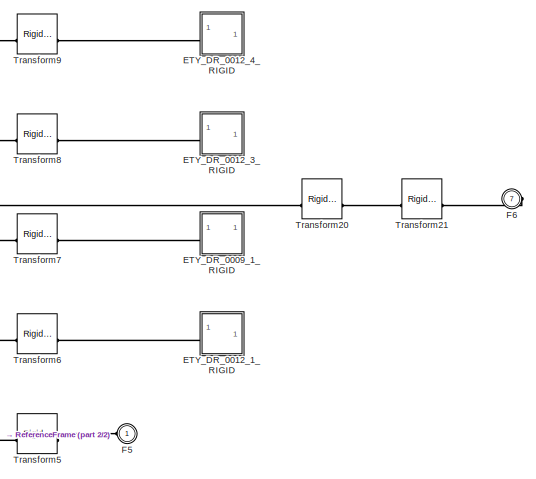
[diagram: MobilePlatform_Asly_1_RIGID - part 1/2, full width, top band]
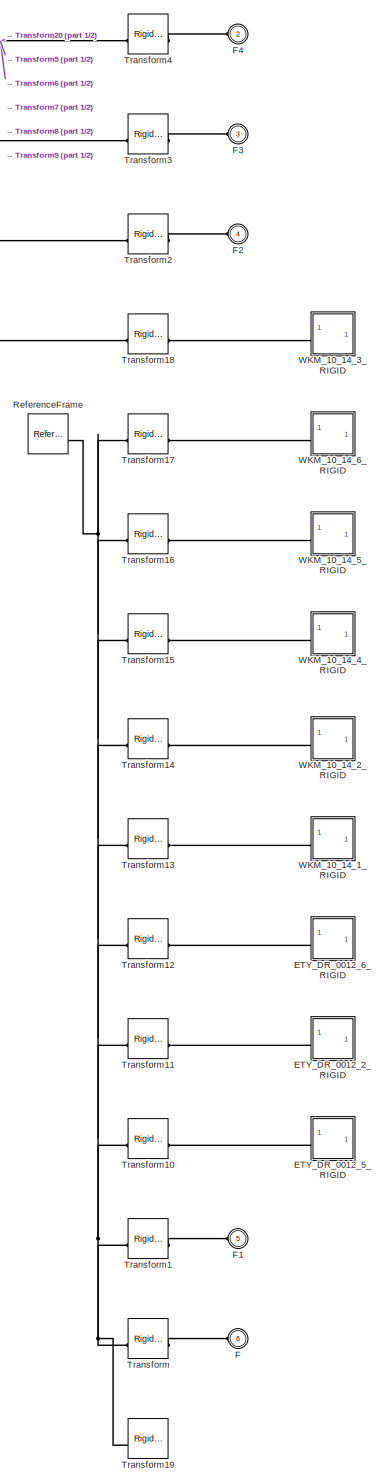
[diagram: MobilePlatform_Asly_1_RIGID - part 2/2, middle left region]
BLOCK [SubSystem] MobilePlatform_Asly_1_RIGID
BLOCK [SubSystem] MobilePlatform_Asly_1_RIGID/ETY_DR_0009_1_RIGID
BLOCK [PMIOPort] MobilePlatform_Asly_1_RIGID/ETY_DR_0009_1_RIGID/F
  Side = Left
BLOCK [PMIOPort] MobilePlatform_Asly_1_RIGID/ETY_DR_0009_1_RIGID/F1
  Port = 2
  Side = Right
BLOCK [Reference] MobilePlatform_Asly_1_RIGID/ETY_DR_0009_1_RIGID/ReferenceFrame  REF=sm_lib/Frames and
Transforms/Reference
Frame
  SourceBlock = sm_lib/Frames and\nTransforms/Reference\nFrame
  SourceType = Reference\nFrame
BLOCK [Reference] MobilePlatform_Asly_1_RIGID/ETY_DR_0009_1_RIGID/Solid  REF=sm_lib/Body Elements/File Solid
  SourceBlock = sm_lib/Body Elements/File Solid
  SourceType = File Solid
BLOCK [SubSystem] MobilePlatform_Asly_1_RIGID/ETY_DR_0012_1_RIGID
BLOCK [PMIOPort] MobilePlatform_Asly_1_RIGID/ETY_DR_0012_1_RIGID/F
  Side = Left
BLOCK [Reference] MobilePlatform_Asly_1_RIGID/ETY_DR_0012_1_RIGID/ReferenceFrame  REF=sm_lib/Frames and
Transforms/Reference
Frame
  SourceBlock = sm_lib/Frames and\nTransforms/Reference\nFrame
  SourceType = Reference\nFrame
BLOCK [Reference] MobilePlatform_Asly_1_RIGID/ETY_DR_0012_1_RIGID/Solid  REF=sm_lib/Body Elements/File Solid
  SourceBlock = sm_lib/Body Elements/File Solid
  SourceType = File Solid
BLOCK [SubSystem] MobilePlatform_Asly_1_RIGID/ETY_DR_0012_2_RIGID
BLOCK [PMIOPort] MobilePlatform_Asly_1_RIGID/ETY_DR_0012_2_RIGID/F
  Side = Left
BLOCK [Reference] MobilePlatform_Asly_1_RIGID/ETY_DR_0012_2_RIGID/ReferenceFrame  REF=sm_lib/Frames and
Transforms/Reference
Frame
  SourceBlock = sm_lib/Frames and\nTransforms/Reference\nFrame
  SourceType = Reference\nFrame
BLOCK [Reference] MobilePlatform_Asly_1_RIGID/ETY_DR_0012_2_RIGID/Solid  REF=sm_lib/Body Elements/File Solid
  SourceBlock = sm_lib/Body Elements/File Solid
  SourceType = File Solid
BLOCK [SubSystem] MobilePlatform_Asly_1_RIGID/ETY_DR_0012_3_RIGID
BLOCK [PMIOPort] MobilePlatform_Asly_1_RIGID/ETY_DR_0012_3_RIGID/F
  Side = Left
BLOCK [Reference] MobilePlatform_Asly_1_RIGID/ETY_DR_0012_3_RIGID/ReferenceFrame  REF=sm_lib/Frames and
Transforms/Reference
Frame
  SourceBlock = sm_lib/Frames and\nTransforms/Reference\nFrame
  SourceType = Reference\nFrame
BLOCK [Reference] MobilePlatform_Asly_1_RIGID/ETY_DR_0012_3_RIGID/Solid  REF=sm_lib/Body Elements/File Solid
  SourceBlock = sm_lib/Body Elements/File Solid
  SourceType = File Solid
BLOCK [SubSystem] MobilePlatform_Asly_1_RIGID/ETY_DR_0012_4_RIGID
BLOCK [PMIOPort] MobilePlatform_Asly_1_RIGID/ETY_DR_0012_4_RIGID/F
  Side = Left
BLOCK [Reference] MobilePlatform_Asly_1_RIGID/ETY_DR_0012_4_RIGID/ReferenceFrame  REF=sm_lib/Frames and
Transforms/Reference
Frame
  SourceBlock = sm_lib/Frames and\nTransforms/Reference\nFrame
  SourceType = Reference\nFrame
BLOCK [Reference] MobilePlatform_Asly_1_RIGID/ETY_DR_0012_4_RIGID/Solid  REF=sm_lib/Body Elements/File Solid
  SourceBlock = sm_lib/Body Elements/File Solid
  SourceType = File Solid
BLOCK [SubSystem] MobilePlatform_Asly_1_RIGID/ETY_DR_0012_5_RIGID
BLOCK [PMIOPort] MobilePlatform_Asly_1_RIGID/ETY_DR_0012_5_RIGID/F
  Side = Left
BLOCK [Reference] MobilePlatform_Asly_1_RIGID/ETY_DR_0012_5_RIGID/ReferenceFrame  REF=sm_lib/Frames and
Transforms/Reference
Frame
  SourceBlock = sm_lib/Frames and\nTransforms/Reference\nFrame
  SourceType = Reference\nFrame
BLOCK [Reference] MobilePlatform_Asly_1_RIGID/ETY_DR_0012_5_RIGID/Solid  REF=sm_lib/Body Elements/File Solid
  SourceBlock = sm_lib/Body Elements/File Solid
  SourceType = File Solid
BLOCK [SubSystem] MobilePlatform_Asly_1_RIGID/ETY_DR_0012_6_RIGID
BLOCK [PMIOPort] MobilePlatform_Asly_1_RIGID/ETY_DR_0012_6_RIGID/F
  Side = Left
BLOCK [Reference] MobilePlatform_Asly_1_RIGID/ETY_DR_0012_6_RIGID/ReferenceFrame  REF=sm_lib/Frames and
Transforms/Reference
Frame
  SourceBlock = sm_lib/Frames and\nTransforms/Reference\nFrame
  SourceType = Reference\nFrame
BLOCK [Reference] MobilePlatform_Asly_1_RIGID/ETY_DR_0012_6_RIGID/Solid  REF=sm_lib/Body Elements/File Solid
  SourceBlock = sm_lib/Body Elements/File Solid
  SourceType = File Solid
BLOCK [PMIOPort] MobilePlatform_Asly_1_RIGID/F
  Port = 6
  Side = Left
BLOCK [PMIOPort] MobilePlatform_Asly_1_RIGID/F1
  Port = 5
  Side = Left
BLOCK [PMIOPort] MobilePlatform_Asly_1_RIGID/F2
  Port = 4
  Side = Left
BLOCK [PMIOPort] MobilePlatform_Asly_1_RIGID/F3
  Port = 3
  Side = Left
BLOCK [PMIOPort] MobilePlatform_Asly_1_RIGID/F4
  Port = 2
  Side = Left
BLOCK [PMIOPort] MobilePlatform_Asly_1_RIGID/F5
  Side = Left
BLOCK [PMIOPort] MobilePlatform_Asly_1_RIGID/F6
  Port = 7
  Side = Right
BLOCK [Reference] MobilePlatform_Asly_1_RIGID/ReferenceFrame  REF=sm_lib/Frames and
Transforms/Reference
Frame
  SourceBlock = sm_lib/Frames and\nTransforms/Reference\nFrame
  SourceType = Reference\nFrame
BLOCK [Reference] MobilePlatform_Asly_1_RIGID/Transform  REF=sm_lib/Frames and
Transforms/Rigid
Transform
  SourceBlock = sm_lib/Frames and\nTransforms/Rigid\nTransform
  SourceType = Rigid\nTransform
BLOCK [Reference] MobilePlatform_Asly_1_RIGID/Transform1  REF=sm_lib/Frames and
Transforms/Rigid
Transform
  SourceBlock = sm_lib/Frames and\nTransforms/Rigid\nTransform
  SourceType = Rigid\nTransform
BLOCK [Reference] MobilePlatform_Asly_1_RIGID/Transform10  REF=sm_lib/Frames and
Transforms/Rigid
Transform
  SourceBlock = sm_lib/Frames and\nTransforms/Rigid\nTransform
  SourceType = Rigid\nTransform
BLOCK [Reference] MobilePlatform_Asly_1_RIGID/Transform11  REF=sm_lib/Frames and
Transforms/Rigid
Transform
  SourceBlock = sm_lib/Frames and\nTransforms/Rigid\nTransform
  SourceType = Rigid\nTransform
BLOCK [Reference] MobilePlatform_Asly_1_RIGID/Transform12  REF=sm_lib/Frames and
Transforms/Rigid
Transform
  SourceBlock = sm_lib/Frames and\nTransforms/Rigid\nTransform
  SourceType = Rigid\nTransform
BLOCK [Reference] MobilePlatform_Asly_1_RIGID/Transform13  REF=sm_lib/Frames and
Transforms/Rigid
Transform
  SourceBlock = sm_lib/Frames and\nTransforms/Rigid\nTransform
  SourceType = Rigid\nTransform
BLOCK [Reference] MobilePlatform_Asly_1_RIGID/Transform14  REF=sm_lib/Frames and
Transforms/Rigid
Transform
  SourceBlock = sm_lib/Frames and\nTransforms/Rigid\nTransform
  SourceType = Rigid\nTransform
BLOCK [Reference] MobilePlatform_Asly_1_RIGID/Transform15  REF=sm_lib/Frames and
Transforms/Rigid
Transform
  SourceBlock = sm_lib/Frames and\nTransforms/Rigid\nTransform
  SourceType = Rigid\nTransform
BLOCK [Reference] MobilePlatform_Asly_1_RIGID/Transform16  REF=sm_lib/Frames and
Transforms/Rigid
Transform
  SourceBlock = sm_lib/Frames and\nTransforms/Rigid\nTransform
  SourceType = Rigid\nTransform
BLOCK [Reference] MobilePlatform_Asly_1_RIGID/Transform17  REF=sm_lib/Frames and
Transforms/Rigid
Transform
  SourceBlock = sm_lib/Frames and\nTransforms/Rigid\nTransform
  SourceType = Rigid\nTransform
BLOCK [Reference] MobilePlatform_Asly_1_RIGID/Transform18  REF=sm_lib/Frames and
Transforms/Rigid
Transform
  SourceBlock = sm_lib/Frames and\nTransforms/Rigid\nTransform
  SourceType = Rigid\nTransform
BLOCK [Reference] MobilePlatform_Asly_1_RIGID/Transform19  REF=sm_lib/Frames and
Transforms/Rigid
Transform
  SourceBlock = sm_lib/Frames and\nTransforms/Rigid\nTransform
  SourceType = Rigid\nTransform
BLOCK [Reference] MobilePlatform_Asly_1_RIGID/Transform2  REF=sm_lib/Frames and
Transforms/Rigid
Transform
  SourceBlock = sm_lib/Frames and\nTransforms/Rigid\nTransform
  SourceType = Rigid\nTransform
BLOCK [Reference] MobilePlatform_Asly_1_RIGID/Transform20  REF=sm_lib/Frames and
Transforms/Rigid
Transform
  SourceBlock = sm_lib/Frames and\nTransforms/Rigid\nTransform
  SourceType = Rigid\nTransform
BLOCK [Reference] MobilePlatform_Asly_1_RIGID/Transform21  REF=sm_lib/Frames and
Transforms/Rigid
Transform
  SourceBlock = sm_lib/Frames and\nTransforms/Rigid\nTransform
  SourceType = Rigid\nTransform
BLOCK [Reference] MobilePlatform_Asly_1_RIGID/Transform3  REF=sm_lib/Frames and
Transforms/Rigid
Transform
  SourceBlock = sm_lib/Frames and\nTransforms/Rigid\nTransform
  SourceType = Rigid\nTransform
BLOCK [Reference] MobilePlatform_Asly_1_RIGID/Transform4  REF=sm_lib/Frames and
Transforms/Rigid
Transform
  SourceBlock = sm_lib/Frames and\nTransforms/Rigid\nTransform
  SourceType = Rigid\nTransform
BLOCK [Reference] MobilePlatform_Asly_1_RIGID/Transform5  REF=sm_lib/Frames and
Transforms/Rigid
Transform
  SourceBlock = sm_lib/Frames and\nTransforms/Rigid\nTransform
  SourceType = Rigid\nTransform
BLOCK [Reference] MobilePlatform_Asly_1_RIGID/Transform6  REF=sm_lib/Frames and
Transforms/Rigid
Transform
  SourceBlock = sm_lib/Frames and\nTransforms/Rigid\nTransform
  SourceType = Rigid\nTransform
BLOCK [Reference] MobilePlatform_Asly_1_RIGID/Transform7  REF=sm_lib/Frames and
Transforms/Rigid
Transform
  SourceBlock = sm_lib/Frames and\nTransforms/Rigid\nTransform
  SourceType = Rigid\nTransform
BLOCK [Reference] MobilePlatform_Asly_1_RIGID/Transform8  REF=sm_lib/Frames and
Transforms/Rigid
Transform
  SourceBlock = sm_lib/Frames and\nTransforms/Rigid\nTransform
  SourceType = Rigid\nTransform
BLOCK [Reference] MobilePlatform_Asly_1_RIGID/Transform9  REF=sm_lib/Frames and
Transforms/Rigid
Transform
  SourceBlock = sm_lib/Frames and\nTransforms/Rigid\nTransform
  SourceType = Rigid\nTransform
BLOCK [SubSystem] MobilePlatform_Asly_1_RIGID/WKM_10_14_1_RIGID
BLOCK [PMIOPort] MobilePlatform_Asly_1_RIGID/WKM_10_14_1_RIGID/F
  Side = Left
BLOCK [Reference] MobilePlatform_Asly_1_RIGID/WKM_10_14_1_RIGID/ReferenceFrame  REF=sm_lib/Frames and
Transforms/Reference
Frame
  SourceBlock = sm_lib/Frames and\nTransforms/Reference\nFrame
  SourceType = Reference\nFrame
BLOCK [Reference] MobilePlatform_Asly_1_RIGID/WKM_10_14_1_RIGID/Solid  REF=sm_lib/Body Elements/File Solid
  SourceBlock = sm_lib/Body Elements/File Solid
  SourceType = File Solid
BLOCK [SubSystem] MobilePlatform_Asly_1_RIGID/WKM_10_14_2_RIGID
BLOCK [PMIOPort] MobilePlatform_Asly_1_RIGID/WKM_10_14_2_RIGID/F
  Side = Left
BLOCK [Reference] MobilePlatform_Asly_1_RIGID/WKM_10_14_2_RIGID/ReferenceFrame  REF=sm_lib/Frames and
Transforms/Reference
Frame
  SourceBlock = sm_lib/Frames and\nTransforms/Reference\nFrame
  SourceType = Reference\nFrame
BLOCK [Reference] MobilePlatform_Asly_1_RIGID/WKM_10_14_2_RIGID/Solid  REF=sm_lib/Body Elements/File Solid
  SourceBlock = sm_lib/Body Elements/File Solid
  SourceType = File Solid
BLOCK [SubSystem] MobilePlatform_Asly_1_RIGID/WKM_10_14_3_RIGID
BLOCK [PMIOPort] MobilePlatform_Asly_1_RIGID/WKM_10_14_3_RIGID/F
  Side = Left
BLOCK [Reference] MobilePlatform_Asly_1_RIGID/WKM_10_14_3_RIGID/ReferenceFrame  REF=sm_lib/Frames and
Transforms/Reference
Frame
  SourceBlock = sm_lib/Frames and\nTransforms/Reference\nFrame
  SourceType = Reference\nFrame
BLOCK [Reference] MobilePlatform_Asly_1_RIGID/WKM_10_14_3_RIGID/Solid  REF=sm_lib/Body Elements/File Solid
  SourceBlock = sm_lib/Body Elements/File Solid
  SourceType = File Solid
BLOCK [SubSystem] MobilePlatform_Asly_1_RIGID/WKM_10_14_4_RIGID
BLOCK [PMIOPort] MobilePlatform_Asly_1_RIGID/WKM_10_14_4_RIGID/F
  Side = Left
BLOCK [Reference] MobilePlatform_Asly_1_RIGID/WKM_10_14_4_RIGID/ReferenceFrame  REF=sm_lib/Frames and
Transforms/Reference
Frame
  SourceBlock = sm_lib/Frames and\nTransforms/Reference\nFrame
  SourceType = Reference\nFrame
BLOCK [Reference] MobilePlatform_Asly_1_RIGID/WKM_10_14_4_RIGID/Solid  REF=sm_lib/Body Elements/File Solid
  SourceBlock = sm_lib/Body Elements/File Solid
  SourceType = File Solid
BLOCK [SubSystem] MobilePlatform_Asly_1_RIGID/WKM_10_14_5_RIGID
BLOCK [PMIOPort] MobilePlatform_Asly_1_RIGID/WKM_10_14_5_RIGID/F
  Side = Left
BLOCK [Reference] MobilePlatform_Asly_1_RIGID/WKM_10_14_5_RIGID/ReferenceFrame  REF=sm_lib/Frames and
Transforms/Reference
Frame
  SourceBlock = sm_lib/Frames and\nTransforms/Reference\nFrame
  SourceType = Reference\nFrame
BLOCK [Reference] MobilePlatform_Asly_1_RIGID/WKM_10_14_5_RIGID/Solid  REF=sm_lib/Body Elements/File Solid
  SourceBlock = sm_lib/Body Elements/File Solid
  SourceType = File Solid
BLOCK [SubSystem] MobilePlatform_Asly_1_RIGID/WKM_10_14_6_RIGID
BLOCK [PMIOPort] MobilePlatform_Asly_1_RIGID/WKM_10_14_6_RIGID/F
  Side = Left
BLOCK [Reference] MobilePlatform_Asly_1_RIGID/WKM_10_14_6_RIGID/ReferenceFrame  REF=sm_lib/Frames and
Transforms/Reference
Frame
  SourceBlock = sm_lib/Frames and\nTransforms/Reference\nFrame
  SourceType = Reference\nFrame
BLOCK [Reference] MobilePlatform_Asly_1_RIGID/WKM_10_14_6_RIGID/Solid  REF=sm_lib/Body Elements/File Solid
  SourceBlock = sm_lib/Body Elements/File Solid
  SourceType = File Solid
BLOCK [Mux] Mux
  DisplayOption = bar
  Inputs = 3
BLOCK [Reference] PS-Simulink Converter  REF=nesl_utility/PS-Simulink
Converter
  SourceBlock = nesl_utility/PS-Simulink\nConverter
  SourceType = PS-Simulink\nConverter
BLOCK [Reference] PS-Simulink Converter1  REF=nesl_utility/PS-Simulink
Converter
  SourceBlock = nesl_utility/PS-Simulink\nConverter
  SourceType = PS-Simulink\nConverter
BLOCK [Reference] PS-Simulink Converter2  REF=nesl_utility/PS-Simulink
Converter
  SourceBlock = nesl_utility/PS-Simulink\nConverter
  SourceType = PS-Simulink\nConverter
BLOCK [Reference] Prismatic  REF=sm_lib/Joints/Prismatic
Joint
  SourceBlock = sm_lib/Joints/Prismatic\nJoint
  SourceType = Prismatic\nJoint
BLOCK [Reference] Prismatic1  REF=sm_lib/Joints/Prismatic
Joint
  SourceBlock = sm_lib/Joints/Prismatic\nJoint
  SourceType = Prismatic\nJoint
BLOCK [Reference] Prismatic2  REF=sm_lib/Joints/Prismatic
Joint
  SourceBlock = sm_lib/Joints/Prismatic\nJoint
  SourceType = Prismatic\nJoint
BLOCK [SubSystem] PrismaticJoint_Asly_4_RIGID
BLOCK [SubSystem] PrismaticJoint_Asly_4_RIGID/ETY_DR_0010_1_RIGID
BLOCK [PMIOPort] PrismaticJoint_Asly_4_RIGID/ETY_DR_0010_1_RIGID/F
  Side = Left
BLOCK [Reference] PrismaticJoint_Asly_4_RIGID/ETY_DR_0010_1_RIGID/ReferenceFrame  REF=sm_lib/Frames and
Transforms/Reference
Frame
  SourceBlock = sm_lib/Frames and\nTransforms/Reference\nFrame
  SourceType = Reference\nFrame
BLOCK [Reference] PrismaticJoint_Asly_4_RIGID/ETY_DR_0010_1_RIGID/Solid  REF=sm_lib/Body Elements/File Solid
  SourceBlock = sm_lib/Body Elements/File Solid
  SourceType = File Solid
BLOCK [SubSystem] PrismaticJoint_Asly_4_RIGID/ETY_DR_0012_1_RIGID
BLOCK [PMIOPort] PrismaticJoint_Asly_4_RIGID/ETY_DR_0012_1_RIGID/F
  Side = Left
BLOCK [Reference] PrismaticJoint_Asly_4_RIGID/ETY_DR_0012_1_RIGID/ReferenceFrame  REF=sm_lib/Frames and
Transforms/Reference
Frame
  SourceBlock = sm_lib/Frames and\nTransforms/Reference\nFrame
  SourceType = Reference\nFrame
BLOCK [Reference] PrismaticJoint_Asly_4_RIGID/ETY_DR_0012_1_RIGID/Solid  REF=sm_lib/Body Elements/File Solid
  SourceBlock = sm_lib/Body Elements/File Solid
  SourceType = File Solid
BLOCK [SubSystem] PrismaticJoint_Asly_4_RIGID/ETY_DR_0012_2_RIGID
BLOCK [PMIOPort] PrismaticJoint_Asly_4_RIGID/ETY_DR_0012_2_RIGID/F
  Side = Left
BLOCK [Reference] PrismaticJoint_Asly_4_RIGID/ETY_DR_0012_2_RIGID/ReferenceFrame  REF=sm_lib/Frames and
Transforms/Reference
Frame
  SourceBlock = sm_lib/Frames and\nTransforms/Reference\nFrame
  SourceType = Reference\nFrame
BLOCK [Reference] PrismaticJoint_Asly_4_RIGID/ETY_DR_0012_2_RIGID/Solid  REF=sm_lib/Body Elements/File Solid
  SourceBlock = sm_lib/Body Elements/File Solid
  SourceType = File Solid
BLOCK [PMIOPort] PrismaticJoint_Asly_4_RIGID/F
  Port = 3
  Side = Right
BLOCK [PMIOPort] PrismaticJoint_Asly_4_RIGID/F1
  Port = 2
  Side = Right
BLOCK [PMIOPort] PrismaticJoint_Asly_4_RIGID/F2
  Side = Left
BLOCK [Reference] PrismaticJoint_Asly_4_RIGID/ReferenceFrame  REF=sm_lib/Frames and
Transforms/Reference
Frame
  SourceBlock = sm_lib/Frames and\nTransforms/Reference\nFrame
  SourceType = Reference\nFrame
BLOCK [Reference] PrismaticJoint_Asly_4_RIGID/Transform  REF=sm_lib/Frames and
Transforms/Rigid
Transform
  SourceBlock = sm_lib/Frames and\nTransforms/Rigid\nTransform
  SourceType = Rigid\nTransform
BLOCK [Reference] PrismaticJoint_Asly_4_RIGID/Transform1  REF=sm_lib/Frames and
Transforms/Rigid
Transform
  SourceBlock = sm_lib/Frames and\nTransforms/Rigid\nTransform
  SourceType = Rigid\nTransform
BLOCK [Reference] PrismaticJoint_Asly_4_RIGID/Transform2  REF=sm_lib/Frames and
Transforms/Rigid
Transform
  SourceBlock = sm_lib/Frames and\nTransforms/Rigid\nTransform
  SourceType = Rigid\nTransform
BLOCK [Reference] PrismaticJoint_Asly_4_RIGID/Transform3  REF=sm_lib/Frames and
Transforms/Rigid
Transform
  SourceBlock = sm_lib/Frames and\nTransforms/Rigid\nTransform
  SourceType = Rigid\nTransform
BLOCK [Reference] PrismaticJoint_Asly_4_RIGID/Transform4  REF=sm_lib/Frames and
Transforms/Rigid
Transform
  SourceBlock = sm_lib/Frames and\nTransforms/Rigid\nTransform
  SourceType = Rigid\nTransform
BLOCK [Reference] PrismaticJoint_Asly_4_RIGID/Transform5  REF=sm_lib/Frames and
Transforms/Rigid
Transform
  SourceBlock = sm_lib/Frames and\nTransforms/Rigid\nTransform
  SourceType = Rigid\nTransform
BLOCK [Reference] PrismaticJoint_Asly_4_RIGID/Transform6  REF=sm_lib/Frames and
Transforms/Rigid
Transform
  SourceBlock = sm_lib/Frames and\nTransforms/Rigid\nTransform
  SourceType = Rigid\nTransform
BLOCK [Reference] PrismaticJoint_Asly_4_RIGID/Transform7  REF=sm_lib/Frames and
Transforms/Rigid
Transform
  SourceBlock = sm_lib/Frames and\nTransforms/Rigid\nTransform
  SourceType = Rigid\nTransform
BLOCK [Reference] PrismaticJoint_Asly_4_RIGID/Transform8  REF=sm_lib/Frames and
Transforms/Rigid
Transform
  SourceBlock = sm_lib/Frames and\nTransforms/Rigid\nTransform
  SourceType = Rigid\nTransform
BLOCK [SubSystem] PrismaticJoint_Asly_4_RIGID/WKM_10_14_1_RIGID
BLOCK [PMIOPort] PrismaticJoint_Asly_4_RIGID/WKM_10_14_1_RIGID/F
  Side = Left
BLOCK [Reference] PrismaticJoint_Asly_4_RIGID/WKM_10_14_1_RIGID/ReferenceFrame  REF=sm_lib/Frames and
Transforms/Reference
Frame
  SourceBlock = sm_lib/Frames and\nTransforms/Reference\nFrame
  SourceType = Reference\nFrame
BLOCK [Reference] PrismaticJoint_Asly_4_RIGID/WKM_10_14_1_RIGID/Solid  REF=sm_lib/Body Elements/File Solid
  SourceBlock = sm_lib/Body Elements/File Solid
  SourceType = File Solid
BLOCK [SubSystem] PrismaticJoint_Asly_4_RIGID/WKM_10_14_2_RIGID
BLOCK [PMIOPort] PrismaticJoint_Asly_4_RIGID/WKM_10_14_2_RIGID/F
  Side = Left
BLOCK [Reference] PrismaticJoint_Asly_4_RIGID/WKM_10_14_2_RIGID/ReferenceFrame  REF=sm_lib/Frames and
Transforms/Reference
Frame
  SourceBlock = sm_lib/Frames and\nTransforms/Reference\nFrame
  SourceType = Reference\nFrame
BLOCK [Reference] PrismaticJoint_Asly_4_RIGID/WKM_10_14_2_RIGID/Solid  REF=sm_lib/Body Elements/File Solid
  SourceBlock = sm_lib/Body Elements/File Solid
  SourceType = File Solid
BLOCK [SubSystem] PrismaticJoint_Asly_4_RIGID/ZS_104001_WJ200UMA_1_RIGID
BLOCK [PMIOPort] PrismaticJoint_Asly_4_RIGID/ZS_104001_WJ200UMA_1_RIGID/F
  Side = Right
BLOCK [Reference] PrismaticJoint_Asly_4_RIGID/ZS_104001_WJ200UMA_1_RIGID/ReferenceFrame  REF=sm_lib/Frames and
Transforms/Reference
Frame
  SourceBlock = sm_lib/Frames and\nTransforms/Reference\nFrame
  SourceType = Reference\nFrame
BLOCK [Reference] PrismaticJoint_Asly_4_RIGID/ZS_104001_WJ200UMA_1_RIGID/Transform  REF=sm_lib/Frames and
Transforms/Rigid
Transform
  SourceBlock = sm_lib/Frames and\nTransforms/Rigid\nTransform
  SourceType = Rigid\nTransform
BLOCK [Reference] PrismaticJoint_Asly_4_RIGID/ZS_104001_WJ200UMA_1_RIGID/Transform1  REF=sm_lib/Frames and
Transforms/Rigid
Transform
  SourceBlock = sm_lib/Frames and\nTransforms/Rigid\nTransform
  SourceType = Rigid\nTransform
BLOCK [SubSystem] PrismaticJoint_Asly_4_RIGID/ZS_104001_WJ200UMA_1_RIGID/WJ200UMA_01_10_AL_1_RIGID
BLOCK [PMIOPort] PrismaticJoint_Asly_4_RIGID/ZS_104001_WJ200UMA_1_RIGID/WJ200UMA_01_10_AL_1_RIGID/F
  Side = Left
BLOCK [SubSystem] PrismaticJoint_Asly_4_RIGID/ZS_104001_WJ200UMA_1_RIGID/WJ200UMA_01_10_AL_1_RIGID/J200UMA_01_10_1_RIGID
BLOCK [PMIOPort] PrismaticJoint_Asly_4_RIGID/ZS_104001_WJ200UMA_1_RIGID/WJ200UMA_01_10_AL_1_RIGID/J200UMA_01_10_1_RIGID/F
  Side = Left
BLOCK [Reference] PrismaticJoint_Asly_4_RIGID/ZS_104001_WJ200UMA_1_RIGID/WJ200UMA_01_10_AL_1_RIGID/J200UMA_01_10_1_RIGID/ReferenceFrame  REF=sm_lib/Frames and
Transforms/Reference
Frame
  SourceBlock = sm_lib/Frames and\nTransforms/Reference\nFrame
  SourceType = Reference\nFrame
BLOCK [Reference] PrismaticJoint_Asly_4_RIGID/ZS_104001_WJ200UMA_1_RIGID/WJ200UMA_01_10_AL_1_RIGID/J200UMA_01_10_1_RIGID/Solid  REF=sm_lib/Body Elements/File Solid
  SourceBlock = sm_lib/Body Elements/File Solid
  SourceType = File Solid
BLOCK [Reference] PrismaticJoint_Asly_4_RIGID/ZS_104001_WJ200UMA_1_RIGID/WJ200UMA_01_10_AL_1_RIGID/ReferenceFrame  REF=sm_lib/Frames and
Transforms/Reference
Frame
  SourceBlock = sm_lib/Frames and\nTransforms/Reference\nFrame
  SourceType = Reference\nFrame
BLOCK [Reference] PrismaticJoint_Asly_4_RIGID/ZS_104001_WJ200UMA_1_RIGID/WJ200UMA_01_10_AL_1_RIGID/Transform  REF=sm_lib/Frames and
Transforms/Rigid
Transform
  SourceBlock = sm_lib/Frames and\nTransforms/Rigid\nTransform
  SourceType = Rigid\nTransform
BLOCK [Reference] PrismaticJoint_Asly_4_RIGID/ZS_104001_WJ200UMA_1_RIGID/WJ200UMA_01_10_AL_1_RIGID/Transform1  REF=sm_lib/Frames and
Transforms/Rigid
Transform
  SourceBlock = sm_lib/Frames and\nTransforms/Rigid\nTransform
  SourceType = Rigid\nTransform
BLOCK [Reference] PrismaticJoint_Asly_4_RIGID/ZS_104001_WJ200UMA_1_RIGID/WJ200UMA_01_10_AL_1_RIGID/Transform2  REF=sm_lib/Frames and
Transforms/Rigid
Transform
  SourceBlock = sm_lib/Frames and\nTransforms/Rigid\nTransform
  SourceType = Rigid\nTransform
BLOCK [Reference] PrismaticJoint_Asly_4_RIGID/ZS_104001_WJ200UMA_1_RIGID/WJ200UMA_01_10_AL_1_RIGID/Transform3  REF=sm_lib/Frames and
Transforms/Rigid
Transform
  SourceBlock = sm_lib/Frames and\nTransforms/Rigid\nTransform
  SourceType = Rigid\nTransform
BLOCK [SubSystem] PrismaticJoint_Asly_4_RIGID/ZS_104001_WJ200UMA_1_RIGID/WJ200UMA_01_10_AL_1_RIGID/WMA_01_10_AL_1_RIGID
BLOCK [PMIOPort] PrismaticJoint_Asly_4_RIGID/ZS_104001_WJ200UMA_1_RIGID/WJ200UMA_01_10_AL_1_RIGID/WMA_01_10_AL_1_RIGID/F
  Side = Left
BLOCK [Reference] PrismaticJoint_Asly_4_RIGID/ZS_104001_WJ200UMA_1_RIGID/WJ200UMA_01_10_AL_1_RIGID/WMA_01_10_AL_1_RIGID/ReferenceFrame  REF=sm_lib/Frames and
Transforms/Reference
Frame
  SourceBlock = sm_lib/Frames and\nTransforms/Reference\nFrame
  SourceType = Reference\nFrame
BLOCK [Reference] PrismaticJoint_Asly_4_RIGID/ZS_104001_WJ200UMA_1_RIGID/WJ200UMA_01_10_AL_1_RIGID/WMA_01_10_AL_1_RIGID/Solid  REF=sm_lib/Body Elements/File Solid
  SourceBlock = sm_lib/Body Elements/File Solid
  SourceType = File Solid
BLOCK [SubSystem] PrismaticJoint_Asly_4_RIGID/ZS_104001_WJ200UMA_1_RIGID/WJ200UMA_01_10_AL_1_RIGID/WRZ_011007_1_RIGID
BLOCK [PMIOPort] PrismaticJoint_Asly_4_RIGID/ZS_104001_WJ200UMA_1_RIGID/WJ200UMA_01_10_AL_1_RIGID/WRZ_011007_1_RIGID/F
  Side = Left
BLOCK [Reference] PrismaticJoint_Asly_4_RIGID/ZS_104001_WJ200UMA_1_RIGID/WJ200UMA_01_10_AL_1_RIGID/WRZ_011007_1_RIGID/ReferenceFrame  REF=sm_lib/Frames and
Transforms/Reference
Frame
  SourceBlock = sm_lib/Frames and\nTransforms/Reference\nFrame
  SourceType = Reference\nFrame
BLOCK [Reference] PrismaticJoint_Asly_4_RIGID/ZS_104001_WJ200UMA_1_RIGID/WJ200UMA_01_10_AL_1_RIGID/WRZ_011007_1_RIGID/Solid  REF=sm_lib/Body Elements/File Solid
  SourceBlock = sm_lib/Body Elements/File Solid
  SourceType = File Solid
BLOCK [SubSystem] PrismaticJoint_Asly_4_RIGID/ZS_104001_WJ200UMA_1_RIGID/WJ200UMA_01_10_AL_2_RIGID
BLOCK [PMIOPort] PrismaticJoint_Asly_4_RIGID/ZS_104001_WJ200UMA_1_RIGID/WJ200UMA_01_10_AL_2_RIGID/F
  Side = Left
BLOCK [SubSystem] PrismaticJoint_Asly_4_RIGID/ZS_104001_WJ200UMA_1_RIGID/WJ200UMA_01_10_AL_2_RIGID/J200UMA_01_10_1_RIGID
BLOCK [PMIOPort] PrismaticJoint_Asly_4_RIGID/ZS_104001_WJ200UMA_1_RIGID/WJ200UMA_01_10_AL_2_RIGID/J200UMA_01_10_1_RIGID/F
  Side = Left
BLOCK [Reference] PrismaticJoint_Asly_4_RIGID/ZS_104001_WJ200UMA_1_RIGID/WJ200UMA_01_10_AL_2_RIGID/J200UMA_01_10_1_RIGID/ReferenceFrame  REF=sm_lib/Frames and
Transforms/Reference
Frame
  SourceBlock = sm_lib/Frames and\nTransforms/Reference\nFrame
  SourceType = Reference\nFrame
BLOCK [Reference] PrismaticJoint_Asly_4_RIGID/ZS_104001_WJ200UMA_1_RIGID/WJ200UMA_01_10_AL_2_RIGID/J200UMA_01_10_1_RIGID/Solid  REF=sm_lib/Body Elements/File Solid
  SourceBlock = sm_lib/Body Elements/File Solid
  SourceType = File Solid
BLOCK [Reference] PrismaticJoint_Asly_4_RIGID/ZS_104001_WJ200UMA_1_RIGID/WJ200UMA_01_10_AL_2_RIGID/ReferenceFrame  REF=sm_lib/Frames and
Transforms/Reference
Frame
  SourceBlock = sm_lib/Frames and\nTransforms/Reference\nFrame
  SourceType = Reference\nFrame
BLOCK [Reference] PrismaticJoint_Asly_4_RIGID/ZS_104001_WJ200UMA_1_RIGID/WJ200UMA_01_10_AL_2_RIGID/Transform  REF=sm_lib/Frames and
Transforms/Rigid
Transform
  SourceBlock = sm_lib/Frames and\nTransforms/Rigid\nTransform
  SourceType = Rigid\nTransform
BLOCK [Reference] PrismaticJoint_Asly_4_RIGID/ZS_104001_WJ200UMA_1_RIGID/WJ200UMA_01_10_AL_2_RIGID/Transform1  REF=sm_lib/Frames and
Transforms/Rigid
Transform
  SourceBlock = sm_lib/Frames and\nTransforms/Rigid\nTransform
  SourceType = Rigid\nTransform
BLOCK [Reference] PrismaticJoint_Asly_4_RIGID/ZS_104001_WJ200UMA_1_RIGID/WJ200UMA_01_10_AL_2_RIGID/Transform2  REF=sm_lib/Frames and
Transforms/Rigid
Transform
  SourceBlock = sm_lib/Frames and\nTransforms/Rigid\nTransform
  SourceType = Rigid\nTransform
BLOCK [Reference] PrismaticJoint_Asly_4_RIGID/ZS_104001_WJ200UMA_1_RIGID/WJ200UMA_01_10_AL_2_RIGID/Transform3  REF=sm_lib/Frames and
Transforms/Rigid
Transform
  SourceBlock = sm_lib/Frames and\nTransforms/Rigid\nTransform
  SourceType = Rigid\nTransform
BLOCK [SubSystem] PrismaticJoint_Asly_4_RIGID/ZS_104001_WJ200UMA_1_RIGID/WJ200UMA_01_10_AL_2_RIGID/WMA_01_10_AL_1_RIGID
BLOCK [PMIOPort] PrismaticJoint_Asly_4_RIGID/ZS_104001_WJ200UMA_1_RIGID/WJ200UMA_01_10_AL_2_RIGID/WMA_01_10_AL_1_RIGID/F
  Side = Left
BLOCK [Reference] PrismaticJoint_Asly_4_RIGID/ZS_104001_WJ200UMA_1_RIGID/WJ200UMA_01_10_AL_2_RIGID/WMA_01_10_AL_1_RIGID/ReferenceFrame  REF=sm_lib/Frames and
Transforms/Reference
Frame
  SourceBlock = sm_lib/Frames and\nTransforms/Reference\nFrame
  SourceType = Reference\nFrame
BLOCK [Reference] PrismaticJoint_Asly_4_RIGID/ZS_104001_WJ200UMA_1_RIGID/WJ200UMA_01_10_AL_2_RIGID/WMA_01_10_AL_1_RIGID/Solid  REF=sm_lib/Body Elements/File Solid
  SourceBlock = sm_lib/Body Elements/File Solid
  SourceType = File Solid
BLOCK [SubSystem] PrismaticJoint_Asly_4_RIGID/ZS_104001_WJ200UMA_1_RIGID/WJ200UMA_01_10_AL_2_RIGID/WRZ_011007_1_RIGID
BLOCK [PMIOPort] PrismaticJoint_Asly_4_RIGID/ZS_104001_WJ200UMA_1_RIGID/WJ200UMA_01_10_AL_2_RIGID/WRZ_011007_1_RIGID/F
  Side = Left
BLOCK [Reference] PrismaticJoint_Asly_4_RIGID/ZS_104001_WJ200UMA_1_RIGID/WJ200UMA_01_10_AL_2_RIGID/WRZ_011007_1_RIGID/ReferenceFrame  REF=sm_lib/Frames and
Transforms/Reference
Frame
  SourceBlock = sm_lib/Frames and\nTransforms/Reference\nFrame
  SourceType = Reference\nFrame
BLOCK [Reference] PrismaticJoint_Asly_4_RIGID/ZS_104001_WJ200UMA_1_RIGID/WJ200UMA_01_10_AL_2_RIGID/WRZ_011007_1_RIGID/Solid  REF=sm_lib/Body Elements/File Solid
  SourceBlock = sm_lib/Body Elements/File Solid
  SourceType = File Solid
BLOCK [SubSystem] PrismaticJoint_Asly_4_RIGID/ZS_104001_WJ200UMA_1_RIGID/WJ200UMA_01_10_AL_3_RIGID
BLOCK [PMIOPort] PrismaticJoint_Asly_4_RIGID/ZS_104001_WJ200UMA_1_RIGID/WJ200UMA_01_10_AL_3_RIGID/F
  Side = Left
BLOCK [SubSystem] PrismaticJoint_Asly_4_RIGID/ZS_104001_WJ200UMA_1_RIGID/WJ200UMA_01_10_AL_3_RIGID/J200UMA_01_10_1_RIGID
BLOCK [PMIOPort] PrismaticJoint_Asly_4_RIGID/ZS_104001_WJ200UMA_1_RIGID/WJ200UMA_01_10_AL_3_RIGID/J200UMA_01_10_1_RIGID/F
  Side = Left
BLOCK [Reference] PrismaticJoint_Asly_4_RIGID/ZS_104001_WJ200UMA_1_RIGID/WJ200UMA_01_10_AL_3_RIGID/J200UMA_01_10_1_RIGID/ReferenceFrame  REF=sm_lib/Frames and
Transforms/Reference
Frame
  SourceBlock = sm_lib/Frames and\nTransforms/Reference\nFrame
  SourceType = Reference\nFrame
BLOCK [Reference] PrismaticJoint_Asly_4_RIGID/ZS_104001_WJ200UMA_1_RIGID/WJ200UMA_01_10_AL_3_RIGID/J200UMA_01_10_1_RIGID/Solid  REF=sm_lib/Body Elements/File Solid
  SourceBlock = sm_lib/Body Elements/File Solid
  SourceType = File Solid
BLOCK [Reference] PrismaticJoint_Asly_4_RIGID/ZS_104001_WJ200UMA_1_RIGID/WJ200UMA_01_10_AL_3_RIGID/ReferenceFrame  REF=sm_lib/Frames and
Transforms/Reference
Frame
  SourceBlock = sm_lib/Frames and\nTransforms/Reference\nFrame
  SourceType = Reference\nFrame
BLOCK [Reference] PrismaticJoint_Asly_4_RIGID/ZS_104001_WJ200UMA_1_RIGID/WJ200UMA_01_10_AL_3_RIGID/Transform  REF=sm_lib/Frames and
Transforms/Rigid
Transform
  SourceBlock = sm_lib/Frames and\nTransforms/Rigid\nTransform
  SourceType = Rigid\nTransform
BLOCK [Reference] PrismaticJoint_Asly_4_RIGID/ZS_104001_WJ200UMA_1_RIGID/WJ200UMA_01_10_AL_3_RIGID/Transform1  REF=sm_lib/Frames and
Transforms/Rigid
Transform
  SourceBlock = sm_lib/Frames and\nTransforms/Rigid\nTransform
  SourceType = Rigid\nTransform
BLOCK [Reference] PrismaticJoint_Asly_4_RIGID/ZS_104001_WJ200UMA_1_RIGID/WJ200UMA_01_10_AL_3_RIGID/Transform2  REF=sm_lib/Frames and
Transforms/Rigid
Transform
  SourceBlock = sm_lib/Frames and\nTransforms/Rigid\nTransform
  SourceType = Rigid\nTransform
BLOCK [Reference] PrismaticJoint_Asly_4_RIGID/ZS_104001_WJ200UMA_1_RIGID/WJ200UMA_01_10_AL_3_RIGID/Transform3  REF=sm_lib/Frames and
Transforms/Rigid
Transform
  SourceBlock = sm_lib/Frames and\nTransforms/Rigid\nTransform
  SourceType = Rigid\nTransform
BLOCK [SubSystem] PrismaticJoint_Asly_4_RIGID/ZS_104001_WJ200UMA_1_RIGID/WJ200UMA_01_10_AL_3_RIGID/WMA_01_10_AL_1_RIGID
BLOCK [PMIOPort] PrismaticJoint_Asly_4_RIGID/ZS_104001_WJ200UMA_1_RIGID/WJ200UMA_01_10_AL_3_RIGID/WMA_01_10_AL_1_RIGID/F
  Side = Left
BLOCK [Reference] PrismaticJoint_Asly_4_RIGID/ZS_104001_WJ200UMA_1_RIGID/WJ200UMA_01_10_AL_3_RIGID/WMA_01_10_AL_1_RIGID/ReferenceFrame  REF=sm_lib/Frames and
Transforms/Reference
Frame
  SourceBlock = sm_lib/Frames and\nTransforms/Reference\nFrame
  SourceType = Reference\nFrame
BLOCK [Reference] PrismaticJoint_Asly_4_RIGID/ZS_104001_WJ200UMA_1_RIGID/WJ200UMA_01_10_AL_3_RIGID/WMA_01_10_AL_1_RIGID/Solid  REF=sm_lib/Body Elements/File Solid
  SourceBlock = sm_lib/Body Elements/File Solid
  SourceType = File Solid
BLOCK [SubSystem] PrismaticJoint_Asly_4_RIGID/ZS_104001_WJ200UMA_1_RIGID/WJ200UMA_01_10_AL_3_RIGID/WRZ_011007_1_RIGID
BLOCK [PMIOPort] PrismaticJoint_Asly_4_RIGID/ZS_104001_WJ200UMA_1_RIGID/WJ200UMA_01_10_AL_3_RIGID/WRZ_011007_1_RIGID/F
  Side = Left
BLOCK [Reference] PrismaticJoint_Asly_4_RIGID/ZS_104001_WJ200UMA_1_RIGID/WJ200UMA_01_10_AL_3_RIGID/WRZ_011007_1_RIGID/ReferenceFrame  REF=sm_lib/Frames and
Transforms/Reference
Frame
  SourceBlock = sm_lib/Frames and\nTransforms/Reference\nFrame
  SourceType = Reference\nFrame
BLOCK [Reference] PrismaticJoint_Asly_4_RIGID/ZS_104001_WJ200UMA_1_RIGID/WJ200UMA_01_10_AL_3_RIGID/WRZ_011007_1_RIGID/Solid  REF=sm_lib/Body Elements/File Solid
  SourceBlock = sm_lib/Body Elements/File Solid
  SourceType = File Solid
BLOCK [SubSystem] PrismaticJoint_Asly_4_RIGID/ZS_104001_WJ200UMA_1_RIGID/WJ200UMA_01_10_AL_4_RIGID
BLOCK [PMIOPort] PrismaticJoint_Asly_4_RIGID/ZS_104001_WJ200UMA_1_RIGID/WJ200UMA_01_10_AL_4_RIGID/F
  Side = Left
BLOCK [SubSystem] PrismaticJoint_Asly_4_RIGID/ZS_104001_WJ200UMA_1_RIGID/WJ200UMA_01_10_AL_4_RIGID/J200UMA_01_10_1_RIGID
BLOCK [PMIOPort] PrismaticJoint_Asly_4_RIGID/ZS_104001_WJ200UMA_1_RIGID/WJ200UMA_01_10_AL_4_RIGID/J200UMA_01_10_1_RIGID/F
  Side = Left
BLOCK [Reference] PrismaticJoint_Asly_4_RIGID/ZS_104001_WJ200UMA_1_RIGID/WJ200UMA_01_10_AL_4_RIGID/J200UMA_01_10_1_RIGID/ReferenceFrame  REF=sm_lib/Frames and
Transforms/Reference
Frame
  SourceBlock = sm_lib/Frames and\nTransforms/Reference\nFrame
  SourceType = Reference\nFrame
BLOCK [Reference] PrismaticJoint_Asly_4_RIGID/ZS_104001_WJ200UMA_1_RIGID/WJ200UMA_01_10_AL_4_RIGID/J200UMA_01_10_1_RIGID/Solid  REF=sm_lib/Body Elements/File Solid
  SourceBlock = sm_lib/Body Elements/File Solid
  SourceType = File Solid
BLOCK [Reference] PrismaticJoint_Asly_4_RIGID/ZS_104001_WJ200UMA_1_RIGID/WJ200UMA_01_10_AL_4_RIGID/ReferenceFrame  REF=sm_lib/Frames and
Transforms/Reference
Frame
  SourceBlock = sm_lib/Frames and\nTransforms/Reference\nFrame
  SourceType = Reference\nFrame
BLOCK [Reference] PrismaticJoint_Asly_4_RIGID/ZS_104001_WJ200UMA_1_RIGID/WJ200UMA_01_10_AL_4_RIGID/Transform  REF=sm_lib/Frames and
Transforms/Rigid
Transform
  SourceBlock = sm_lib/Frames and\nTransforms/Rigid\nTransform
  SourceType = Rigid\nTransform
BLOCK [Reference] PrismaticJoint_Asly_4_RIGID/ZS_104001_WJ200UMA_1_RIGID/WJ200UMA_01_10_AL_4_RIGID/Transform1  REF=sm_lib/Frames and
Transforms/Rigid
Transform
  SourceBlock = sm_lib/Frames and\nTransforms/Rigid\nTransform
  SourceType = Rigid\nTransform
BLOCK [Reference] PrismaticJoint_Asly_4_RIGID/ZS_104001_WJ200UMA_1_RIGID/WJ200UMA_01_10_AL_4_RIGID/Transform2  REF=sm_lib/Frames and
Transforms/Rigid
Transform
  SourceBlock = sm_lib/Frames and\nTransforms/Rigid\nTransform
  SourceType = Rigid\nTransform
BLOCK [Reference] PrismaticJoint_Asly_4_RIGID/ZS_104001_WJ200UMA_1_RIGID/WJ200UMA_01_10_AL_4_RIGID/Transform3  REF=sm_lib/Frames and
Transforms/Rigid
Transform
  SourceBlock = sm_lib/Frames and\nTransforms/Rigid\nTransform
  SourceType = Rigid\nTransform
BLOCK [SubSystem] PrismaticJoint_Asly_4_RIGID/ZS_104001_WJ200UMA_1_RIGID/WJ200UMA_01_10_AL_4_RIGID/WMA_01_10_AL_1_RIGID
BLOCK [PMIOPort] PrismaticJoint_Asly_4_RIGID/ZS_104001_WJ200UMA_1_RIGID/WJ200UMA_01_10_AL_4_RIGID/WMA_01_10_AL_1_RIGID/F
  Side = Left
BLOCK [Reference] PrismaticJoint_Asly_4_RIGID/ZS_104001_WJ200UMA_1_RIGID/WJ200UMA_01_10_AL_4_RIGID/WMA_01_10_AL_1_RIGID/ReferenceFrame  REF=sm_lib/Frames and
Transforms/Reference
Frame
  SourceBlock = sm_lib/Frames and\nTransforms/Reference\nFrame
  SourceType = Reference\nFrame
BLOCK [Reference] PrismaticJoint_Asly_4_RIGID/ZS_104001_WJ200UMA_1_RIGID/WJ200UMA_01_10_AL_4_RIGID/WMA_01_10_AL_1_RIGID/Solid  REF=sm_lib/Body Elements/File Solid
  SourceBlock = sm_lib/Body Elements/File Solid
  SourceType = File Solid
BLOCK [SubSystem] PrismaticJoint_Asly_4_RIGID/ZS_104001_WJ200UMA_1_RIGID/WJ200UMA_01_10_AL_4_RIGID/WRZ_011007_1_RIGID
BLOCK [PMIOPort] PrismaticJoint_Asly_4_RIGID/ZS_104001_WJ200UMA_1_RIGID/WJ200UMA_01_10_AL_4_RIGID/WRZ_011007_1_RIGID/F
  Side = Left
BLOCK [Reference] PrismaticJoint_Asly_4_RIGID/ZS_104001_WJ200UMA_1_RIGID/WJ200UMA_01_10_AL_4_RIGID/WRZ_011007_1_RIGID/ReferenceFrame  REF=sm_lib/Frames and
Transforms/Reference
Frame
  SourceBlock = sm_lib/Frames and\nTransforms/Reference\nFrame
  SourceType = Reference\nFrame
BLOCK [Reference] PrismaticJoint_Asly_4_RIGID/ZS_104001_WJ200UMA_1_RIGID/WJ200UMA_01_10_AL_4_RIGID/WRZ_011007_1_RIGID/Solid  REF=sm_lib/Body Elements/File Solid
  SourceBlock = sm_lib/Body Elements/File Solid
  SourceType = File Solid
BLOCK [SubSystem] PrismaticJoint_Asly_4_RIGID/ZS_104001_WJ200UMA_1_RIGID/ZSY_104001_1_RIGID
BLOCK [PMIOPort] PrismaticJoint_Asly_4_RIGID/ZS_104001_WJ200UMA_1_RIGID/ZSY_104001_1_RIGID/F
  Side = Left
BLOCK [Reference] PrismaticJoint_Asly_4_RIGID/ZS_104001_WJ200UMA_1_RIGID/ZSY_104001_1_RIGID/ReferenceFrame  REF=sm_lib/Frames and
Transforms/Reference
Frame
  SourceBlock = sm_lib/Frames and\nTransforms/Reference\nFrame
  SourceType = Reference\nFrame
BLOCK [Reference] PrismaticJoint_Asly_4_RIGID/ZS_104001_WJ200UMA_1_RIGID/ZSY_104001_1_RIGID/Solid  REF=sm_lib/Body Elements/File Solid
  SourceBlock = sm_lib/Body Elements/File Solid
  SourceType = File Solid
BLOCK [SubSystem] PrismaticJoint_Asly_4_RIGID/ZWY_104001_1_RIGID
BLOCK [PMIOPort] PrismaticJoint_Asly_4_RIGID/ZWY_104001_1_RIGID/F
  Side = Left
BLOCK [Reference] PrismaticJoint_Asly_4_RIGID/ZWY_104001_1_RIGID/ReferenceFrame  REF=sm_lib/Frames and
Transforms/Reference
Frame
  SourceBlock = sm_lib/Frames and\nTransforms/Reference\nFrame
  SourceType = Reference\nFrame
BLOCK [Reference] PrismaticJoint_Asly_4_RIGID/ZWY_104001_1_RIGID/Solid  REF=sm_lib/Body Elements/File Solid
  SourceBlock = sm_lib/Body Elements/File Solid
  SourceType = File Solid
BLOCK [SubSystem] PrismaticJoint_Asly_5_RIGID
BLOCK [SubSystem] PrismaticJoint_Asly_5_RIGID/ETY_DR_0010_1_RIGID
BLOCK [PMIOPort] PrismaticJoint_Asly_5_RIGID/ETY_DR_0010_1_RIGID/F
  Side = Left
BLOCK [Reference] PrismaticJoint_Asly_5_RIGID/ETY_DR_0010_1_RIGID/ReferenceFrame  REF=sm_lib/Frames and
Transforms/Reference
Frame
  SourceBlock = sm_lib/Frames and\nTransforms/Reference\nFrame
  SourceType = Reference\nFrame
BLOCK [Reference] PrismaticJoint_Asly_5_RIGID/ETY_DR_0010_1_RIGID/Solid  REF=sm_lib/Body Elements/File Solid
  SourceBlock = sm_lib/Body Elements/File Solid
  SourceType = File Solid
BLOCK [SubSystem] PrismaticJoint_Asly_5_RIGID/ETY_DR_0012_1_RIGID
BLOCK [PMIOPort] PrismaticJoint_Asly_5_RIGID/ETY_DR_0012_1_RIGID/F
  Side = Left
BLOCK [Reference] PrismaticJoint_Asly_5_RIGID/ETY_DR_0012_1_RIGID/ReferenceFrame  REF=sm_lib/Frames and
Transforms/Reference
Frame
  SourceBlock = sm_lib/Frames and\nTransforms/Reference\nFrame
  SourceType = Reference\nFrame
BLOCK [Reference] PrismaticJoint_Asly_5_RIGID/ETY_DR_0012_1_RIGID/Solid  REF=sm_lib/Body Elements/File Solid
  SourceBlock = sm_lib/Body Elements/File Solid
  SourceType = File Solid
BLOCK [SubSystem] PrismaticJoint_Asly_5_RIGID/ETY_DR_0012_2_RIGID
BLOCK [PMIOPort] PrismaticJoint_Asly_5_RIGID/ETY_DR_0012_2_RIGID/F
  Side = Left
BLOCK [Reference] PrismaticJoint_Asly_5_RIGID/ETY_DR_0012_2_RIGID/ReferenceFrame  REF=sm_lib/Frames and
Transforms/Reference
Frame
  SourceBlock = sm_lib/Frames and\nTransforms/Reference\nFrame
  SourceType = Reference\nFrame
BLOCK [Reference] PrismaticJoint_Asly_5_RIGID/ETY_DR_0012_2_RIGID/Solid  REF=sm_lib/Body Elements/File Solid
  SourceBlock = sm_lib/Body Elements/File Solid
  SourceType = File Solid
BLOCK [PMIOPort] PrismaticJoint_Asly_5_RIGID/F
  Port = 3
  Side = Right
BLOCK [PMIOPort] PrismaticJoint_Asly_5_RIGID/F1
  Port = 2
  Side = Right
BLOCK [PMIOPort] PrismaticJoint_Asly_5_RIGID/F2
  Side = Left
BLOCK [Reference] PrismaticJoint_Asly_5_RIGID/ReferenceFrame  REF=sm_lib/Frames and
Transforms/Reference
Frame
  SourceBlock = sm_lib/Frames and\nTransforms/Reference\nFrame
  SourceType = Reference\nFrame
BLOCK [Reference] PrismaticJoint_Asly_5_RIGID/Transform  REF=sm_lib/Frames and
Transforms/Rigid
Transform
  SourceBlock = sm_lib/Frames and\nTransforms/Rigid\nTransform
  SourceType = Rigid\nTransform
BLOCK [Reference] PrismaticJoint_Asly_5_RIGID/Transform1  REF=sm_lib/Frames and
Transforms/Rigid
Transform
  SourceBlock = sm_lib/Frames and\nTransforms/Rigid\nTransform
  SourceType = Rigid\nTransform
BLOCK [Reference] PrismaticJoint_Asly_5_RIGID/Transform2  REF=sm_lib/Frames and
Transforms/Rigid
Transform
  SourceBlock = sm_lib/Frames and\nTransforms/Rigid\nTransform
  SourceType = Rigid\nTransform
BLOCK [Reference] PrismaticJoint_Asly_5_RIGID/Transform3  REF=sm_lib/Frames and
Transforms/Rigid
Transform
  SourceBlock = sm_lib/Frames and\nTransforms/Rigid\nTransform
  SourceType = Rigid\nTransform
BLOCK [Reference] PrismaticJoint_Asly_5_RIGID/Transform4  REF=sm_lib/Frames and
Transforms/Rigid
Transform
  SourceBlock = sm_lib/Frames and\nTransforms/Rigid\nTransform
  SourceType = Rigid\nTransform
BLOCK [Reference] PrismaticJoint_Asly_5_RIGID/Transform5  REF=sm_lib/Frames and
Transforms/Rigid
Transform
  SourceBlock = sm_lib/Frames and\nTransforms/Rigid\nTransform
  SourceType = Rigid\nTransform
BLOCK [Reference] PrismaticJoint_Asly_5_RIGID/Transform6  REF=sm_lib/Frames and
Transforms/Rigid
Transform
  SourceBlock = sm_lib/Frames and\nTransforms/Rigid\nTransform
  SourceType = Rigid\nTransform
BLOCK [Reference] PrismaticJoint_Asly_5_RIGID/Transform7  REF=sm_lib/Frames and
Transforms/Rigid
Transform
  SourceBlock = sm_lib/Frames and\nTransforms/Rigid\nTransform
  SourceType = Rigid\nTransform
BLOCK [Reference] PrismaticJoint_Asly_5_RIGID/Transform8  REF=sm_lib/Frames and
Transforms/Rigid
Transform
  SourceBlock = sm_lib/Frames and\nTransforms/Rigid\nTransform
  SourceType = Rigid\nTransform
BLOCK [SubSystem] PrismaticJoint_Asly_5_RIGID/WKM_10_14_1_RIGID
BLOCK [PMIOPort] PrismaticJoint_Asly_5_RIGID/WKM_10_14_1_RIGID/F
  Side = Left
BLOCK [Reference] PrismaticJoint_Asly_5_RIGID/WKM_10_14_1_RIGID/ReferenceFrame  REF=sm_lib/Frames and
Transforms/Reference
Frame
  SourceBlock = sm_lib/Frames and\nTransforms/Reference\nFrame
  SourceType = Reference\nFrame
BLOCK [Reference] PrismaticJoint_Asly_5_RIGID/WKM_10_14_1_RIGID/Solid  REF=sm_lib/Body Elements/File Solid
  SourceBlock = sm_lib/Body Elements/File Solid
  SourceType = File Solid
BLOCK [SubSystem] PrismaticJoint_Asly_5_RIGID/WKM_10_14_2_RIGID
BLOCK [PMIOPort] PrismaticJoint_Asly_5_RIGID/WKM_10_14_2_RIGID/F
  Side = Left
BLOCK [Reference] PrismaticJoint_Asly_5_RIGID/WKM_10_14_2_RIGID/ReferenceFrame  REF=sm_lib/Frames and
Transforms/Reference
Frame
  SourceBlock = sm_lib/Frames and\nTransforms/Reference\nFrame
  SourceType = Reference\nFrame
BLOCK [Reference] PrismaticJoint_Asly_5_RIGID/WKM_10_14_2_RIGID/Solid  REF=sm_lib/Body Elements/File Solid
  SourceBlock = sm_lib/Body Elements/File Solid
  SourceType = File Solid
BLOCK [SubSystem] PrismaticJoint_Asly_5_RIGID/ZS_104001_WJ200UMA_1_RIGID
BLOCK [PMIOPort] PrismaticJoint_Asly_5_RIGID/ZS_104001_WJ200UMA_1_RIGID/F
  Side = Right
BLOCK [Reference] PrismaticJoint_Asly_5_RIGID/ZS_104001_WJ200UMA_1_RIGID/ReferenceFrame  REF=sm_lib/Frames and
Transforms/Reference
Frame
  SourceBlock = sm_lib/Frames and\nTransforms/Reference\nFrame
  SourceType = Reference\nFrame
BLOCK [Reference] PrismaticJoint_Asly_5_RIGID/ZS_104001_WJ200UMA_1_RIGID/Transform  REF=sm_lib/Frames and
Transforms/Rigid
Transform
  SourceBlock = sm_lib/Frames and\nTransforms/Rigid\nTransform
  SourceType = Rigid\nTransform
BLOCK [Reference] PrismaticJoint_Asly_5_RIGID/ZS_104001_WJ200UMA_1_RIGID/Transform1  REF=sm_lib/Frames and
Transforms/Rigid
Transform
  SourceBlock = sm_lib/Frames and\nTransforms/Rigid\nTransform
  SourceType = Rigid\nTransform
BLOCK [SubSystem] PrismaticJoint_Asly_5_RIGID/ZS_104001_WJ200UMA_1_RIGID/WJ200UMA_01_10_AL_1_RIGID
BLOCK [PMIOPort] PrismaticJoint_Asly_5_RIGID/ZS_104001_WJ200UMA_1_RIGID/WJ200UMA_01_10_AL_1_RIGID/F
  Side = Left
BLOCK [SubSystem] PrismaticJoint_Asly_5_RIGID/ZS_104001_WJ200UMA_1_RIGID/WJ200UMA_01_10_AL_1_RIGID/J200UMA_01_10_1_RIGID
BLOCK [PMIOPort] PrismaticJoint_Asly_5_RIGID/ZS_104001_WJ200UMA_1_RIGID/WJ200UMA_01_10_AL_1_RIGID/J200UMA_01_10_1_RIGID/F
  Side = Left
BLOCK [Reference] PrismaticJoint_Asly_5_RIGID/ZS_104001_WJ200UMA_1_RIGID/WJ200UMA_01_10_AL_1_RIGID/J200UMA_01_10_1_RIGID/ReferenceFrame  REF=sm_lib/Frames and
Transforms/Reference
Frame
  SourceBlock = sm_lib/Frames and\nTransforms/Reference\nFrame
  SourceType = Reference\nFrame
BLOCK [Reference] PrismaticJoint_Asly_5_RIGID/ZS_104001_WJ200UMA_1_RIGID/WJ200UMA_01_10_AL_1_RIGID/J200UMA_01_10_1_RIGID/Solid  REF=sm_lib/Body Elements/File Solid
  SourceBlock = sm_lib/Body Elements/File Solid
  SourceType = File Solid
BLOCK [Reference] PrismaticJoint_Asly_5_RIGID/ZS_104001_WJ200UMA_1_RIGID/WJ200UMA_01_10_AL_1_RIGID/ReferenceFrame  REF=sm_lib/Frames and
Transforms/Reference
Frame
  SourceBlock = sm_lib/Frames and\nTransforms/Reference\nFrame
  SourceType = Reference\nFrame
BLOCK [Reference] PrismaticJoint_Asly_5_RIGID/ZS_104001_WJ200UMA_1_RIGID/WJ200UMA_01_10_AL_1_RIGID/Transform  REF=sm_lib/Frames and
Transforms/Rigid
Transform
  SourceBlock = sm_lib/Frames and\nTransforms/Rigid\nTransform
  SourceType = Rigid\nTransform
BLOCK [Reference] PrismaticJoint_Asly_5_RIGID/ZS_104001_WJ200UMA_1_RIGID/WJ200UMA_01_10_AL_1_RIGID/Transform1  REF=sm_lib/Frames and
Transforms/Rigid
Transform
  SourceBlock = sm_lib/Frames and\nTransforms/Rigid\nTransform
  SourceType = Rigid\nTransform
BLOCK [Reference] PrismaticJoint_Asly_5_RIGID/ZS_104001_WJ200UMA_1_RIGID/WJ200UMA_01_10_AL_1_RIGID/Transform2  REF=sm_lib/Frames and
Transforms/Rigid
Transform
  SourceBlock = sm_lib/Frames and\nTransforms/Rigid\nTransform
  SourceType = Rigid\nTransform
BLOCK [Reference] PrismaticJoint_Asly_5_RIGID/ZS_104001_WJ200UMA_1_RIGID/WJ200UMA_01_10_AL_1_RIGID/Transform3  REF=sm_lib/Frames and
Transforms/Rigid
Transform
  SourceBlock = sm_lib/Frames and\nTransforms/Rigid\nTransform
  SourceType = Rigid\nTransform
BLOCK [SubSystem] PrismaticJoint_Asly_5_RIGID/ZS_104001_WJ200UMA_1_RIGID/WJ200UMA_01_10_AL_1_RIGID/WMA_01_10_AL_1_RIGID
BLOCK [PMIOPort] PrismaticJoint_Asly_5_RIGID/ZS_104001_WJ200UMA_1_RIGID/WJ200UMA_01_10_AL_1_RIGID/WMA_01_10_AL_1_RIGID/F
  Side = Left
BLOCK [Reference] PrismaticJoint_Asly_5_RIGID/ZS_104001_WJ200UMA_1_RIGID/WJ200UMA_01_10_AL_1_RIGID/WMA_01_10_AL_1_RIGID/ReferenceFrame  REF=sm_lib/Frames and
Transforms/Reference
Frame
  SourceBlock = sm_lib/Frames and\nTransforms/Reference\nFrame
  SourceType = Reference\nFrame
BLOCK [Reference] PrismaticJoint_Asly_5_RIGID/ZS_104001_WJ200UMA_1_RIGID/WJ200UMA_01_10_AL_1_RIGID/WMA_01_10_AL_1_RIGID/Solid  REF=sm_lib/Body Elements/File Solid
  SourceBlock = sm_lib/Body Elements/File Solid
  SourceType = File Solid
BLOCK [SubSystem] PrismaticJoint_Asly_5_RIGID/ZS_104001_WJ200UMA_1_RIGID/WJ200UMA_01_10_AL_1_RIGID/WRZ_011007_1_RIGID
BLOCK [PMIOPort] PrismaticJoint_Asly_5_RIGID/ZS_104001_WJ200UMA_1_RIGID/WJ200UMA_01_10_AL_1_RIGID/WRZ_011007_1_RIGID/F
  Side = Left
BLOCK [Reference] PrismaticJoint_Asly_5_RIGID/ZS_104001_WJ200UMA_1_RIGID/WJ200UMA_01_10_AL_1_RIGID/WRZ_011007_1_RIGID/ReferenceFrame  REF=sm_lib/Frames and
Transforms/Reference
Frame
  SourceBlock = sm_lib/Frames and\nTransforms/Reference\nFrame
  SourceType = Reference\nFrame
BLOCK [Reference] PrismaticJoint_Asly_5_RIGID/ZS_104001_WJ200UMA_1_RIGID/WJ200UMA_01_10_AL_1_RIGID/WRZ_011007_1_RIGID/Solid  REF=sm_lib/Body Elements/File Solid
  SourceBlock = sm_lib/Body Elements/File Solid
  SourceType = File Solid
BLOCK [SubSystem] PrismaticJoint_Asly_5_RIGID/ZS_104001_WJ200UMA_1_RIGID/WJ200UMA_01_10_AL_2_RIGID
BLOCK [PMIOPort] PrismaticJoint_Asly_5_RIGID/ZS_104001_WJ200UMA_1_RIGID/WJ200UMA_01_10_AL_2_RIGID/F
  Side = Left
BLOCK [SubSystem] PrismaticJoint_Asly_5_RIGID/ZS_104001_WJ200UMA_1_RIGID/WJ200UMA_01_10_AL_2_RIGID/J200UMA_01_10_1_RIGID
BLOCK [PMIOPort] PrismaticJoint_Asly_5_RIGID/ZS_104001_WJ200UMA_1_RIGID/WJ200UMA_01_10_AL_2_RIGID/J200UMA_01_10_1_RIGID/F
  Side = Left
BLOCK [Reference] PrismaticJoint_Asly_5_RIGID/ZS_104001_WJ200UMA_1_RIGID/WJ200UMA_01_10_AL_2_RIGID/J200UMA_01_10_1_RIGID/ReferenceFrame  REF=sm_lib/Frames and
Transforms/Reference
Frame
  SourceBlock = sm_lib/Frames and\nTransforms/Reference\nFrame
  SourceType = Reference\nFrame
BLOCK [Reference] PrismaticJoint_Asly_5_RIGID/ZS_104001_WJ200UMA_1_RIGID/WJ200UMA_01_10_AL_2_RIGID/J200UMA_01_10_1_RIGID/Solid  REF=sm_lib/Body Elements/File Solid
  SourceBlock = sm_lib/Body Elements/File Solid
  SourceType = File Solid
BLOCK [Reference] PrismaticJoint_Asly_5_RIGID/ZS_104001_WJ200UMA_1_RIGID/WJ200UMA_01_10_AL_2_RIGID/ReferenceFrame  REF=sm_lib/Frames and
Transforms/Reference
Frame
  SourceBlock = sm_lib/Frames and\nTransforms/Reference\nFrame
  SourceType = Reference\nFrame
BLOCK [Reference] PrismaticJoint_Asly_5_RIGID/ZS_104001_WJ200UMA_1_RIGID/WJ200UMA_01_10_AL_2_RIGID/Transform  REF=sm_lib/Frames and
Transforms/Rigid
Transform
  SourceBlock = sm_lib/Frames and\nTransforms/Rigid\nTransform
  SourceType = Rigid\nTransform
BLOCK [Reference] PrismaticJoint_Asly_5_RIGID/ZS_104001_WJ200UMA_1_RIGID/WJ200UMA_01_10_AL_2_RIGID/Transform1  REF=sm_lib/Frames and
Transforms/Rigid
Transform
  SourceBlock = sm_lib/Frames and\nTransforms/Rigid\nTransform
  SourceType = Rigid\nTransform
BLOCK [Reference] PrismaticJoint_Asly_5_RIGID/ZS_104001_WJ200UMA_1_RIGID/WJ200UMA_01_10_AL_2_RIGID/Transform2  REF=sm_lib/Frames and
Transforms/Rigid
Transform
  SourceBlock = sm_lib/Frames and\nTransforms/Rigid\nTransform
  SourceType = Rigid\nTransform
BLOCK [Reference] PrismaticJoint_Asly_5_RIGID/ZS_104001_WJ200UMA_1_RIGID/WJ200UMA_01_10_AL_2_RIGID/Transform3  REF=sm_lib/Frames and
Transforms/Rigid
Transform
  SourceBlock = sm_lib/Frames and\nTransforms/Rigid\nTransform
  SourceType = Rigid\nTransform
BLOCK [SubSystem] PrismaticJoint_Asly_5_RIGID/ZS_104001_WJ200UMA_1_RIGID/WJ200UMA_01_10_AL_2_RIGID/WMA_01_10_AL_1_RIGID
BLOCK [PMIOPort] PrismaticJoint_Asly_5_RIGID/ZS_104001_WJ200UMA_1_RIGID/WJ200UMA_01_10_AL_2_RIGID/WMA_01_10_AL_1_RIGID/F
  Side = Left
BLOCK [Reference] PrismaticJoint_Asly_5_RIGID/ZS_104001_WJ200UMA_1_RIGID/WJ200UMA_01_10_AL_2_RIGID/WMA_01_10_AL_1_RIGID/ReferenceFrame  REF=sm_lib/Frames and
Transforms/Reference
Frame
  SourceBlock = sm_lib/Frames and\nTransforms/Reference\nFrame
  SourceType = Reference\nFrame
BLOCK [Reference] PrismaticJoint_Asly_5_RIGID/ZS_104001_WJ200UMA_1_RIGID/WJ200UMA_01_10_AL_2_RIGID/WMA_01_10_AL_1_RIGID/Solid  REF=sm_lib/Body Elements/File Solid
  SourceBlock = sm_lib/Body Elements/File Solid
  SourceType = File Solid
BLOCK [SubSystem] PrismaticJoint_Asly_5_RIGID/ZS_104001_WJ200UMA_1_RIGID/WJ200UMA_01_10_AL_2_RIGID/WRZ_011007_1_RIGID
BLOCK [PMIOPort] PrismaticJoint_Asly_5_RIGID/ZS_104001_WJ200UMA_1_RIGID/WJ200UMA_01_10_AL_2_RIGID/WRZ_011007_1_RIGID/F
  Side = Left
BLOCK [Reference] PrismaticJoint_Asly_5_RIGID/ZS_104001_WJ200UMA_1_RIGID/WJ200UMA_01_10_AL_2_RIGID/WRZ_011007_1_RIGID/ReferenceFrame  REF=sm_lib/Frames and
Transforms/Reference
Frame
  SourceBlock = sm_lib/Frames and\nTransforms/Reference\nFrame
  SourceType = Reference\nFrame
BLOCK [Reference] PrismaticJoint_Asly_5_RIGID/ZS_104001_WJ200UMA_1_RIGID/WJ200UMA_01_10_AL_2_RIGID/WRZ_011007_1_RIGID/Solid  REF=sm_lib/Body Elements/File Solid
  SourceBlock = sm_lib/Body Elements/File Solid
  SourceType = File Solid
BLOCK [SubSystem] PrismaticJoint_Asly_5_RIGID/ZS_104001_WJ200UMA_1_RIGID/WJ200UMA_01_10_AL_3_RIGID
BLOCK [PMIOPort] PrismaticJoint_Asly_5_RIGID/ZS_104001_WJ200UMA_1_RIGID/WJ200UMA_01_10_AL_3_RIGID/F
  Side = Left
BLOCK [SubSystem] PrismaticJoint_Asly_5_RIGID/ZS_104001_WJ200UMA_1_RIGID/WJ200UMA_01_10_AL_3_RIGID/J200UMA_01_10_1_RIGID
BLOCK [PMIOPort] PrismaticJoint_Asly_5_RIGID/ZS_104001_WJ200UMA_1_RIGID/WJ200UMA_01_10_AL_3_RIGID/J200UMA_01_10_1_RIGID/F
  Side = Left
BLOCK [Reference] PrismaticJoint_Asly_5_RIGID/ZS_104001_WJ200UMA_1_RIGID/WJ200UMA_01_10_AL_3_RIGID/J200UMA_01_10_1_RIGID/ReferenceFrame  REF=sm_lib/Frames and
Transforms/Reference
Frame
  SourceBlock = sm_lib/Frames and\nTransforms/Reference\nFrame
  SourceType = Reference\nFrame
BLOCK [Reference] PrismaticJoint_Asly_5_RIGID/ZS_104001_WJ200UMA_1_RIGID/WJ200UMA_01_10_AL_3_RIGID/J200UMA_01_10_1_RIGID/Solid  REF=sm_lib/Body Elements/File Solid
  SourceBlock = sm_lib/Body Elements/File Solid
  SourceType = File Solid
BLOCK [Reference] PrismaticJoint_Asly_5_RIGID/ZS_104001_WJ200UMA_1_RIGID/WJ200UMA_01_10_AL_3_RIGID/ReferenceFrame  REF=sm_lib/Frames and
Transforms/Reference
Frame
  SourceBlock = sm_lib/Frames and\nTransforms/Reference\nFrame
  SourceType = Reference\nFrame
BLOCK [Reference] PrismaticJoint_Asly_5_RIGID/ZS_104001_WJ200UMA_1_RIGID/WJ200UMA_01_10_AL_3_RIGID/Transform  REF=sm_lib/Frames and
Transforms/Rigid
Transform
  SourceBlock = sm_lib/Frames and\nTransforms/Rigid\nTransform
  SourceType = Rigid\nTransform
BLOCK [Reference] PrismaticJoint_Asly_5_RIGID/ZS_104001_WJ200UMA_1_RIGID/WJ200UMA_01_10_AL_3_RIGID/Transform1  REF=sm_lib/Frames and
Transforms/Rigid
Transform
  SourceBlock = sm_lib/Frames and\nTransforms/Rigid\nTransform
  SourceType = Rigid\nTransform
BLOCK [Reference] PrismaticJoint_Asly_5_RIGID/ZS_104001_WJ200UMA_1_RIGID/WJ200UMA_01_10_AL_3_RIGID/Transform2  REF=sm_lib/Frames and
Transforms/Rigid
Transform
  SourceBlock = sm_lib/Frames and\nTransforms/Rigid\nTransform
  SourceType = Rigid\nTransform
BLOCK [Reference] PrismaticJoint_Asly_5_RIGID/ZS_104001_WJ200UMA_1_RIGID/WJ200UMA_01_10_AL_3_RIGID/Transform3  REF=sm_lib/Frames and
Transforms/Rigid
Transform
  SourceBlock = sm_lib/Frames and\nTransforms/Rigid\nTransform
  SourceType = Rigid\nTransform
BLOCK [SubSystem] PrismaticJoint_Asly_5_RIGID/ZS_104001_WJ200UMA_1_RIGID/WJ200UMA_01_10_AL_3_RIGID/WMA_01_10_AL_1_RIGID
BLOCK [PMIOPort] PrismaticJoint_Asly_5_RIGID/ZS_104001_WJ200UMA_1_RIGID/WJ200UMA_01_10_AL_3_RIGID/WMA_01_10_AL_1_RIGID/F
  Side = Left
BLOCK [Reference] PrismaticJoint_Asly_5_RIGID/ZS_104001_WJ200UMA_1_RIGID/WJ200UMA_01_10_AL_3_RIGID/WMA_01_10_AL_1_RIGID/ReferenceFrame  REF=sm_lib/Frames and
Transforms/Reference
Frame
  SourceBlock = sm_lib/Frames and\nTransforms/Reference\nFrame
  SourceType = Reference\nFrame
BLOCK [Reference] PrismaticJoint_Asly_5_RIGID/ZS_104001_WJ200UMA_1_RIGID/WJ200UMA_01_10_AL_3_RIGID/WMA_01_10_AL_1_RIGID/Solid  REF=sm_lib/Body Elements/File Solid
  SourceBlock = sm_lib/Body Elements/File Solid
  SourceType = File Solid
BLOCK [SubSystem] PrismaticJoint_Asly_5_RIGID/ZS_104001_WJ200UMA_1_RIGID/WJ200UMA_01_10_AL_3_RIGID/WRZ_011007_1_RIGID
BLOCK [PMIOPort] PrismaticJoint_Asly_5_RIGID/ZS_104001_WJ200UMA_1_RIGID/WJ200UMA_01_10_AL_3_RIGID/WRZ_011007_1_RIGID/F
  Side = Left
BLOCK [Reference] PrismaticJoint_Asly_5_RIGID/ZS_104001_WJ200UMA_1_RIGID/WJ200UMA_01_10_AL_3_RIGID/WRZ_011007_1_RIGID/ReferenceFrame  REF=sm_lib/Frames and
Transforms/Reference
Frame
  SourceBlock = sm_lib/Frames and\nTransforms/Reference\nFrame
  SourceType = Reference\nFrame
BLOCK [Reference] PrismaticJoint_Asly_5_RIGID/ZS_104001_WJ200UMA_1_RIGID/WJ200UMA_01_10_AL_3_RIGID/WRZ_011007_1_RIGID/Solid  REF=sm_lib/Body Elements/File Solid
  SourceBlock = sm_lib/Body Elements/File Solid
  SourceType = File Solid
BLOCK [SubSystem] PrismaticJoint_Asly_5_RIGID/ZS_104001_WJ200UMA_1_RIGID/WJ200UMA_01_10_AL_4_RIGID
BLOCK [PMIOPort] PrismaticJoint_Asly_5_RIGID/ZS_104001_WJ200UMA_1_RIGID/WJ200UMA_01_10_AL_4_RIGID/F
  Side = Left
BLOCK [SubSystem] PrismaticJoint_Asly_5_RIGID/ZS_104001_WJ200UMA_1_RIGID/WJ200UMA_01_10_AL_4_RIGID/J200UMA_01_10_1_RIGID
BLOCK [PMIOPort] PrismaticJoint_Asly_5_RIGID/ZS_104001_WJ200UMA_1_RIGID/WJ200UMA_01_10_AL_4_RIGID/J200UMA_01_10_1_RIGID/F
  Side = Left
BLOCK [Reference] PrismaticJoint_Asly_5_RIGID/ZS_104001_WJ200UMA_1_RIGID/WJ200UMA_01_10_AL_4_RIGID/J200UMA_01_10_1_RIGID/ReferenceFrame  REF=sm_lib/Frames and
Transforms/Reference
Frame
  SourceBlock = sm_lib/Frames and\nTransforms/Reference\nFrame
  SourceType = Reference\nFrame
BLOCK [Reference] PrismaticJoint_Asly_5_RIGID/ZS_104001_WJ200UMA_1_RIGID/WJ200UMA_01_10_AL_4_RIGID/J200UMA_01_10_1_RIGID/Solid  REF=sm_lib/Body Elements/File Solid
  SourceBlock = sm_lib/Body Elements/File Solid
  SourceType = File Solid
BLOCK [Reference] PrismaticJoint_Asly_5_RIGID/ZS_104001_WJ200UMA_1_RIGID/WJ200UMA_01_10_AL_4_RIGID/ReferenceFrame  REF=sm_lib/Frames and
Transforms/Reference
Frame
  SourceBlock = sm_lib/Frames and\nTransforms/Reference\nFrame
  SourceType = Reference\nFrame
BLOCK [Reference] PrismaticJoint_Asly_5_RIGID/ZS_104001_WJ200UMA_1_RIGID/WJ200UMA_01_10_AL_4_RIGID/Transform  REF=sm_lib/Frames and
Transforms/Rigid
Transform
  SourceBlock = sm_lib/Frames and\nTransforms/Rigid\nTransform
  SourceType = Rigid\nTransform
BLOCK [Reference] PrismaticJoint_Asly_5_RIGID/ZS_104001_WJ200UMA_1_RIGID/WJ200UMA_01_10_AL_4_RIGID/Transform1  REF=sm_lib/Frames and
Transforms/Rigid
Transform
  SourceBlock = sm_lib/Frames and\nTransforms/Rigid\nTransform
  SourceType = Rigid\nTransform
BLOCK [Reference] PrismaticJoint_Asly_5_RIGID/ZS_104001_WJ200UMA_1_RIGID/WJ200UMA_01_10_AL_4_RIGID/Transform2  REF=sm_lib/Frames and
Transforms/Rigid
Transform
  SourceBlock = sm_lib/Frames and\nTransforms/Rigid\nTransform
  SourceType = Rigid\nTransform
BLOCK [Reference] PrismaticJoint_Asly_5_RIGID/ZS_104001_WJ200UMA_1_RIGID/WJ200UMA_01_10_AL_4_RIGID/Transform3  REF=sm_lib/Frames and
Transforms/Rigid
Transform
  SourceBlock = sm_lib/Frames and\nTransforms/Rigid\nTransform
  SourceType = Rigid\nTransform
BLOCK [SubSystem] PrismaticJoint_Asly_5_RIGID/ZS_104001_WJ200UMA_1_RIGID/WJ200UMA_01_10_AL_4_RIGID/WMA_01_10_AL_1_RIGID
BLOCK [PMIOPort] PrismaticJoint_Asly_5_RIGID/ZS_104001_WJ200UMA_1_RIGID/WJ200UMA_01_10_AL_4_RIGID/WMA_01_10_AL_1_RIGID/F
  Side = Left
BLOCK [Reference] PrismaticJoint_Asly_5_RIGID/ZS_104001_WJ200UMA_1_RIGID/WJ200UMA_01_10_AL_4_RIGID/WMA_01_10_AL_1_RIGID/ReferenceFrame  REF=sm_lib/Frames and
Transforms/Reference
Frame
  SourceBlock = sm_lib/Frames and\nTransforms/Reference\nFrame
  SourceType = Reference\nFrame
BLOCK [Reference] PrismaticJoint_Asly_5_RIGID/ZS_104001_WJ200UMA_1_RIGID/WJ200UMA_01_10_AL_4_RIGID/WMA_01_10_AL_1_RIGID/Solid  REF=sm_lib/Body Elements/File Solid
  SourceBlock = sm_lib/Body Elements/File Solid
  SourceType = File Solid
BLOCK [SubSystem] PrismaticJoint_Asly_5_RIGID/ZS_104001_WJ200UMA_1_RIGID/WJ200UMA_01_10_AL_4_RIGID/WRZ_011007_1_RIGID
BLOCK [PMIOPort] PrismaticJoint_Asly_5_RIGID/ZS_104001_WJ200UMA_1_RIGID/WJ200UMA_01_10_AL_4_RIGID/WRZ_011007_1_RIGID/F
  Side = Left
BLOCK [Reference] PrismaticJoint_Asly_5_RIGID/ZS_104001_WJ200UMA_1_RIGID/WJ200UMA_01_10_AL_4_RIGID/WRZ_011007_1_RIGID/ReferenceFrame  REF=sm_lib/Frames and
Transforms/Reference
Frame
  SourceBlock = sm_lib/Frames and\nTransforms/Reference\nFrame
  SourceType = Reference\nFrame
BLOCK [Reference] PrismaticJoint_Asly_5_RIGID/ZS_104001_WJ200UMA_1_RIGID/WJ200UMA_01_10_AL_4_RIGID/WRZ_011007_1_RIGID/Solid  REF=sm_lib/Body Elements/File Solid
  SourceBlock = sm_lib/Body Elements/File Solid
  SourceType = File Solid
BLOCK [SubSystem] PrismaticJoint_Asly_5_RIGID/ZS_104001_WJ200UMA_1_RIGID/ZSY_104001_1_RIGID
BLOCK [PMIOPort] PrismaticJoint_Asly_5_RIGID/ZS_104001_WJ200UMA_1_RIGID/ZSY_104001_1_RIGID/F
  Side = Left
BLOCK [Reference] PrismaticJoint_Asly_5_RIGID/ZS_104001_WJ200UMA_1_RIGID/ZSY_104001_1_RIGID/ReferenceFrame  REF=sm_lib/Frames and
Transforms/Reference
Frame
  SourceBlock = sm_lib/Frames and\nTransforms/Reference\nFrame
  SourceType = Reference\nFrame
BLOCK [Reference] PrismaticJoint_Asly_5_RIGID/ZS_104001_WJ200UMA_1_RIGID/ZSY_104001_1_RIGID/Solid  REF=sm_lib/Body Elements/File Solid
  SourceBlock = sm_lib/Body Elements/File Solid
  SourceType = File Solid
BLOCK [SubSystem] PrismaticJoint_Asly_5_RIGID/ZWY_104001_1_RIGID
BLOCK [PMIOPort] PrismaticJoint_Asly_5_RIGID/ZWY_104001_1_RIGID/F
  Side = Left
BLOCK [Reference] PrismaticJoint_Asly_5_RIGID/ZWY_104001_1_RIGID/ReferenceFrame  REF=sm_lib/Frames and
Transforms/Reference
Frame
  SourceBlock = sm_lib/Frames and\nTransforms/Reference\nFrame
  SourceType = Reference\nFrame
BLOCK [Reference] PrismaticJoint_Asly_5_RIGID/ZWY_104001_1_RIGID/Solid  REF=sm_lib/Body Elements/File Solid
  SourceBlock = sm_lib/Body Elements/File Solid
  SourceType = File Solid
BLOCK [SubSystem] PrismaticJoint_Asly_6_RIGID
BLOCK [SubSystem] PrismaticJoint_Asly_6_RIGID/ETY_DR_0010_1_RIGID
BLOCK [PMIOPort] PrismaticJoint_Asly_6_RIGID/ETY_DR_0010_1_RIGID/F
  Side = Left
BLOCK [Reference] PrismaticJoint_Asly_6_RIGID/ETY_DR_0010_1_RIGID/ReferenceFrame  REF=sm_lib/Frames and
Transforms/Reference
Frame
  SourceBlock = sm_lib/Frames and\nTransforms/Reference\nFrame
  SourceType = Reference\nFrame
BLOCK [Reference] PrismaticJoint_Asly_6_RIGID/ETY_DR_0010_1_RIGID/Solid  REF=sm_lib/Body Elements/File Solid
  SourceBlock = sm_lib/Body Elements/File Solid
  SourceType = File Solid
BLOCK [SubSystem] PrismaticJoint_Asly_6_RIGID/ETY_DR_0012_1_RIGID
BLOCK [PMIOPort] PrismaticJoint_Asly_6_RIGID/ETY_DR_0012_1_RIGID/F
  Side = Left
BLOCK [Reference] PrismaticJoint_Asly_6_RIGID/ETY_DR_0012_1_RIGID/ReferenceFrame  REF=sm_lib/Frames and
Transforms/Reference
Frame
  SourceBlock = sm_lib/Frames and\nTransforms/Reference\nFrame
  SourceType = Reference\nFrame
BLOCK [Reference] PrismaticJoint_Asly_6_RIGID/ETY_DR_0012_1_RIGID/Solid  REF=sm_lib/Body Elements/File Solid
  SourceBlock = sm_lib/Body Elements/File Solid
  SourceType = File Solid
BLOCK [SubSystem] PrismaticJoint_Asly_6_RIGID/ETY_DR_0012_2_RIGID
BLOCK [PMIOPort] PrismaticJoint_Asly_6_RIGID/ETY_DR_0012_2_RIGID/F
  Side = Left
BLOCK [Reference] PrismaticJoint_Asly_6_RIGID/ETY_DR_0012_2_RIGID/ReferenceFrame  REF=sm_lib/Frames and
Transforms/Reference
Frame
  SourceBlock = sm_lib/Frames and\nTransforms/Reference\nFrame
  SourceType = Reference\nFrame
BLOCK [Reference] PrismaticJoint_Asly_6_RIGID/ETY_DR_0012_2_RIGID/Solid  REF=sm_lib/Body Elements/File Solid
  SourceBlock = sm_lib/Body Elements/File Solid
  SourceType = File Solid
BLOCK [PMIOPort] PrismaticJoint_Asly_6_RIGID/F
  Port = 3
  Side = Right
BLOCK [PMIOPort] PrismaticJoint_Asly_6_RIGID/F1
  Port = 2
  Side = Right
BLOCK [PMIOPort] PrismaticJoint_Asly_6_RIGID/F2
  Side = Left
BLOCK [Reference] PrismaticJoint_Asly_6_RIGID/ReferenceFrame  REF=sm_lib/Frames and
Transforms/Reference
Frame
  SourceBlock = sm_lib/Frames and\nTransforms/Reference\nFrame
  SourceType = Reference\nFrame
BLOCK [Reference] PrismaticJoint_Asly_6_RIGID/Transform  REF=sm_lib/Frames and
Transforms/Rigid
Transform
  SourceBlock = sm_lib/Frames and\nTransforms/Rigid\nTransform
  SourceType = Rigid\nTransform
BLOCK [Reference] PrismaticJoint_Asly_6_RIGID/Transform1  REF=sm_lib/Frames and
Transforms/Rigid
Transform
  SourceBlock = sm_lib/Frames and\nTransforms/Rigid\nTransform
  SourceType = Rigid\nTransform
BLOCK [Reference] PrismaticJoint_Asly_6_RIGID/Transform2  REF=sm_lib/Frames and
Transforms/Rigid
Transform
  SourceBlock = sm_lib/Frames and\nTransforms/Rigid\nTransform
  SourceType = Rigid\nTransform
BLOCK [Reference] PrismaticJoint_Asly_6_RIGID/Transform3  REF=sm_lib/Frames and
Transforms/Rigid
Transform
  SourceBlock = sm_lib/Frames and\nTransforms/Rigid\nTransform
  SourceType = Rigid\nTransform
BLOCK [Reference] PrismaticJoint_Asly_6_RIGID/Transform4  REF=sm_lib/Frames and
Transforms/Rigid
Transform
  SourceBlock = sm_lib/Frames and\nTransforms/Rigid\nTransform
  SourceType = Rigid\nTransform
BLOCK [Reference] PrismaticJoint_Asly_6_RIGID/Transform5  REF=sm_lib/Frames and
Transforms/Rigid
Transform
  SourceBlock = sm_lib/Frames and\nTransforms/Rigid\nTransform
  SourceType = Rigid\nTransform
BLOCK [Reference] PrismaticJoint_Asly_6_RIGID/Transform6  REF=sm_lib/Frames and
Transforms/Rigid
Transform
  SourceBlock = sm_lib/Frames and\nTransforms/Rigid\nTransform
  SourceType = Rigid\nTransform
BLOCK [Reference] PrismaticJoint_Asly_6_RIGID/Transform7  REF=sm_lib/Frames and
Transforms/Rigid
Transform
  SourceBlock = sm_lib/Frames and\nTransforms/Rigid\nTransform
  SourceType = Rigid\nTransform
BLOCK [Reference] PrismaticJoint_Asly_6_RIGID/Transform8  REF=sm_lib/Frames and
Transforms/Rigid
Transform
  SourceBlock = sm_lib/Frames and\nTransforms/Rigid\nTransform
  SourceType = Rigid\nTransform
BLOCK [SubSystem] PrismaticJoint_Asly_6_RIGID/WKM_10_14_1_RIGID
BLOCK [PMIOPort] PrismaticJoint_Asly_6_RIGID/WKM_10_14_1_RIGID/F
  Side = Left
BLOCK [Reference] PrismaticJoint_Asly_6_RIGID/WKM_10_14_1_RIGID/ReferenceFrame  REF=sm_lib/Frames and
Transforms/Reference
Frame
  SourceBlock = sm_lib/Frames and\nTransforms/Reference\nFrame
  SourceType = Reference\nFrame
BLOCK [Reference] PrismaticJoint_Asly_6_RIGID/WKM_10_14_1_RIGID/Solid  REF=sm_lib/Body Elements/File Solid
  SourceBlock = sm_lib/Body Elements/File Solid
  SourceType = File Solid
BLOCK [SubSystem] PrismaticJoint_Asly_6_RIGID/WKM_10_14_2_RIGID
BLOCK [PMIOPort] PrismaticJoint_Asly_6_RIGID/WKM_10_14_2_RIGID/F
  Side = Left
BLOCK [Reference] PrismaticJoint_Asly_6_RIGID/WKM_10_14_2_RIGID/ReferenceFrame  REF=sm_lib/Frames and
Transforms/Reference
Frame
  SourceBlock = sm_lib/Frames and\nTransforms/Reference\nFrame
  SourceType = Reference\nFrame
BLOCK [Reference] PrismaticJoint_Asly_6_RIGID/WKM_10_14_2_RIGID/Solid  REF=sm_lib/Body Elements/File Solid
  SourceBlock = sm_lib/Body Elements/File Solid
  SourceType = File Solid
BLOCK [SubSystem] PrismaticJoint_Asly_6_RIGID/ZS_104001_WJ200UMA_1_RIGID
BLOCK [PMIOPort] PrismaticJoint_Asly_6_RIGID/ZS_104001_WJ200UMA_1_RIGID/F
  Side = Right
BLOCK [Reference] PrismaticJoint_Asly_6_RIGID/ZS_104001_WJ200UMA_1_RIGID/ReferenceFrame  REF=sm_lib/Frames and
Transforms/Reference
Frame
  SourceBlock = sm_lib/Frames and\nTransforms/Reference\nFrame
  SourceType = Reference\nFrame
BLOCK [Reference] PrismaticJoint_Asly_6_RIGID/ZS_104001_WJ200UMA_1_RIGID/Transform  REF=sm_lib/Frames and
Transforms/Rigid
Transform
  SourceBlock = sm_lib/Frames and\nTransforms/Rigid\nTransform
  SourceType = Rigid\nTransform
BLOCK [Reference] PrismaticJoint_Asly_6_RIGID/ZS_104001_WJ200UMA_1_RIGID/Transform1  REF=sm_lib/Frames and
Transforms/Rigid
Transform
  SourceBlock = sm_lib/Frames and\nTransforms/Rigid\nTransform
  SourceType = Rigid\nTransform
BLOCK [SubSystem] PrismaticJoint_Asly_6_RIGID/ZS_104001_WJ200UMA_1_RIGID/WJ200UMA_01_10_AL_1_RIGID
BLOCK [PMIOPort] PrismaticJoint_Asly_6_RIGID/ZS_104001_WJ200UMA_1_RIGID/WJ200UMA_01_10_AL_1_RIGID/F
  Side = Left
BLOCK [SubSystem] PrismaticJoint_Asly_6_RIGID/ZS_104001_WJ200UMA_1_RIGID/WJ200UMA_01_10_AL_1_RIGID/J200UMA_01_10_1_RIGID
BLOCK [PMIOPort] PrismaticJoint_Asly_6_RIGID/ZS_104001_WJ200UMA_1_RIGID/WJ200UMA_01_10_AL_1_RIGID/J200UMA_01_10_1_RIGID/F
  Side = Left
BLOCK [Reference] PrismaticJoint_Asly_6_RIGID/ZS_104001_WJ200UMA_1_RIGID/WJ200UMA_01_10_AL_1_RIGID/J200UMA_01_10_1_RIGID/ReferenceFrame  REF=sm_lib/Frames and
Transforms/Reference
Frame
  SourceBlock = sm_lib/Frames and\nTransforms/Reference\nFrame
  SourceType = Reference\nFrame
BLOCK [Reference] PrismaticJoint_Asly_6_RIGID/ZS_104001_WJ200UMA_1_RIGID/WJ200UMA_01_10_AL_1_RIGID/J200UMA_01_10_1_RIGID/Solid  REF=sm_lib/Body Elements/File Solid
  SourceBlock = sm_lib/Body Elements/File Solid
  SourceType = File Solid
BLOCK [Reference] PrismaticJoint_Asly_6_RIGID/ZS_104001_WJ200UMA_1_RIGID/WJ200UMA_01_10_AL_1_RIGID/ReferenceFrame  REF=sm_lib/Frames and
Transforms/Reference
Frame
  SourceBlock = sm_lib/Frames and\nTransforms/Reference\nFrame
  SourceType = Reference\nFrame
BLOCK [Reference] PrismaticJoint_Asly_6_RIGID/ZS_104001_WJ200UMA_1_RIGID/WJ200UMA_01_10_AL_1_RIGID/Transform  REF=sm_lib/Frames and
Transforms/Rigid
Transform
  SourceBlock = sm_lib/Frames and\nTransforms/Rigid\nTransform
  SourceType = Rigid\nTransform
BLOCK [Reference] PrismaticJoint_Asly_6_RIGID/ZS_104001_WJ200UMA_1_RIGID/WJ200UMA_01_10_AL_1_RIGID/Transform1  REF=sm_lib/Frames and
Transforms/Rigid
Transform
  SourceBlock = sm_lib/Frames and\nTransforms/Rigid\nTransform
  SourceType = Rigid\nTransform
BLOCK [Reference] PrismaticJoint_Asly_6_RIGID/ZS_104001_WJ200UMA_1_RIGID/WJ200UMA_01_10_AL_1_RIGID/Transform2  REF=sm_lib/Frames and
Transforms/Rigid
Transform
  SourceBlock = sm_lib/Frames and\nTransforms/Rigid\nTransform
  SourceType = Rigid\nTransform
BLOCK [Reference] PrismaticJoint_Asly_6_RIGID/ZS_104001_WJ200UMA_1_RIGID/WJ200UMA_01_10_AL_1_RIGID/Transform3  REF=sm_lib/Frames and
Transforms/Rigid
Transform
  SourceBlock = sm_lib/Frames and\nTransforms/Rigid\nTransform
  SourceType = Rigid\nTransform
BLOCK [SubSystem] PrismaticJoint_Asly_6_RIGID/ZS_104001_WJ200UMA_1_RIGID/WJ200UMA_01_10_AL_1_RIGID/WMA_01_10_AL_1_RIGID
BLOCK [PMIOPort] PrismaticJoint_Asly_6_RIGID/ZS_104001_WJ200UMA_1_RIGID/WJ200UMA_01_10_AL_1_RIGID/WMA_01_10_AL_1_RIGID/F
  Side = Left
BLOCK [Reference] PrismaticJoint_Asly_6_RIGID/ZS_104001_WJ200UMA_1_RIGID/WJ200UMA_01_10_AL_1_RIGID/WMA_01_10_AL_1_RIGID/ReferenceFrame  REF=sm_lib/Frames and
Transforms/Reference
Frame
  SourceBlock = sm_lib/Frames and\nTransforms/Reference\nFrame
  SourceType = Reference\nFrame
BLOCK [Reference] PrismaticJoint_Asly_6_RIGID/ZS_104001_WJ200UMA_1_RIGID/WJ200UMA_01_10_AL_1_RIGID/WMA_01_10_AL_1_RIGID/Solid  REF=sm_lib/Body Elements/File Solid
  SourceBlock = sm_lib/Body Elements/File Solid
  SourceType = File Solid
BLOCK [SubSystem] PrismaticJoint_Asly_6_RIGID/ZS_104001_WJ200UMA_1_RIGID/WJ200UMA_01_10_AL_1_RIGID/WRZ_011007_1_RIGID
BLOCK [PMIOPort] PrismaticJoint_Asly_6_RIGID/ZS_104001_WJ200UMA_1_RIGID/WJ200UMA_01_10_AL_1_RIGID/WRZ_011007_1_RIGID/F
  Side = Left
BLOCK [Reference] PrismaticJoint_Asly_6_RIGID/ZS_104001_WJ200UMA_1_RIGID/WJ200UMA_01_10_AL_1_RIGID/WRZ_011007_1_RIGID/ReferenceFrame  REF=sm_lib/Frames and
Transforms/Reference
Frame
  SourceBlock = sm_lib/Frames and\nTransforms/Reference\nFrame
  SourceType = Reference\nFrame
BLOCK [Reference] PrismaticJoint_Asly_6_RIGID/ZS_104001_WJ200UMA_1_RIGID/WJ200UMA_01_10_AL_1_RIGID/WRZ_011007_1_RIGID/Solid  REF=sm_lib/Body Elements/File Solid
  SourceBlock = sm_lib/Body Elements/File Solid
  SourceType = File Solid
BLOCK [SubSystem] PrismaticJoint_Asly_6_RIGID/ZS_104001_WJ200UMA_1_RIGID/WJ200UMA_01_10_AL_2_RIGID
BLOCK [PMIOPort] PrismaticJoint_Asly_6_RIGID/ZS_104001_WJ200UMA_1_RIGID/WJ200UMA_01_10_AL_2_RIGID/F
  Side = Left
BLOCK [SubSystem] PrismaticJoint_Asly_6_RIGID/ZS_104001_WJ200UMA_1_RIGID/WJ200UMA_01_10_AL_2_RIGID/J200UMA_01_10_1_RIGID
BLOCK [PMIOPort] PrismaticJoint_Asly_6_RIGID/ZS_104001_WJ200UMA_1_RIGID/WJ200UMA_01_10_AL_2_RIGID/J200UMA_01_10_1_RIGID/F
  Side = Left
BLOCK [Reference] PrismaticJoint_Asly_6_RIGID/ZS_104001_WJ200UMA_1_RIGID/WJ200UMA_01_10_AL_2_RIGID/J200UMA_01_10_1_RIGID/ReferenceFrame  REF=sm_lib/Frames and
Transforms/Reference
Frame
  SourceBlock = sm_lib/Frames and\nTransforms/Reference\nFrame
  SourceType = Reference\nFrame
BLOCK [Reference] PrismaticJoint_Asly_6_RIGID/ZS_104001_WJ200UMA_1_RIGID/WJ200UMA_01_10_AL_2_RIGID/J200UMA_01_10_1_RIGID/Solid  REF=sm_lib/Body Elements/File Solid
  SourceBlock = sm_lib/Body Elements/File Solid
  SourceType = File Solid
BLOCK [Reference] PrismaticJoint_Asly_6_RIGID/ZS_104001_WJ200UMA_1_RIGID/WJ200UMA_01_10_AL_2_RIGID/ReferenceFrame  REF=sm_lib/Frames and
Transforms/Reference
Frame
  SourceBlock = sm_lib/Frames and\nTransforms/Reference\nFrame
  SourceType = Reference\nFrame
BLOCK [Reference] PrismaticJoint_Asly_6_RIGID/ZS_104001_WJ200UMA_1_RIGID/WJ200UMA_01_10_AL_2_RIGID/Transform  REF=sm_lib/Frames and
Transforms/Rigid
Transform
  SourceBlock = sm_lib/Frames and\nTransforms/Rigid\nTransform
  SourceType = Rigid\nTransform
BLOCK [Reference] PrismaticJoint_Asly_6_RIGID/ZS_104001_WJ200UMA_1_RIGID/WJ200UMA_01_10_AL_2_RIGID/Transform1  REF=sm_lib/Frames and
Transforms/Rigid
Transform
  SourceBlock = sm_lib/Frames and\nTransforms/Rigid\nTransform
  SourceType = Rigid\nTransform
BLOCK [Reference] PrismaticJoint_Asly_6_RIGID/ZS_104001_WJ200UMA_1_RIGID/WJ200UMA_01_10_AL_2_RIGID/Transform2  REF=sm_lib/Frames and
Transforms/Rigid
Transform
  SourceBlock = sm_lib/Frames and\nTransforms/Rigid\nTransform
  SourceType = Rigid\nTransform
BLOCK [Reference] PrismaticJoint_Asly_6_RIGID/ZS_104001_WJ200UMA_1_RIGID/WJ200UMA_01_10_AL_2_RIGID/Transform3  REF=sm_lib/Frames and
Transforms/Rigid
Transform
  SourceBlock = sm_lib/Frames and\nTransforms/Rigid\nTransform
  SourceType = Rigid\nTransform
BLOCK [SubSystem] PrismaticJoint_Asly_6_RIGID/ZS_104001_WJ200UMA_1_RIGID/WJ200UMA_01_10_AL_2_RIGID/WMA_01_10_AL_1_RIGID
BLOCK [PMIOPort] PrismaticJoint_Asly_6_RIGID/ZS_104001_WJ200UMA_1_RIGID/WJ200UMA_01_10_AL_2_RIGID/WMA_01_10_AL_1_RIGID/F
  Side = Left
BLOCK [Reference] PrismaticJoint_Asly_6_RIGID/ZS_104001_WJ200UMA_1_RIGID/WJ200UMA_01_10_AL_2_RIGID/WMA_01_10_AL_1_RIGID/ReferenceFrame  REF=sm_lib/Frames and
Transforms/Reference
Frame
  SourceBlock = sm_lib/Frames and\nTransforms/Reference\nFrame
  SourceType = Reference\nFrame
BLOCK [Reference] PrismaticJoint_Asly_6_RIGID/ZS_104001_WJ200UMA_1_RIGID/WJ200UMA_01_10_AL_2_RIGID/WMA_01_10_AL_1_RIGID/Solid  REF=sm_lib/Body Elements/File Solid
  SourceBlock = sm_lib/Body Elements/File Solid
  SourceType = File Solid
BLOCK [SubSystem] PrismaticJoint_Asly_6_RIGID/ZS_104001_WJ200UMA_1_RIGID/WJ200UMA_01_10_AL_2_RIGID/WRZ_011007_1_RIGID
BLOCK [PMIOPort] PrismaticJoint_Asly_6_RIGID/ZS_104001_WJ200UMA_1_RIGID/WJ200UMA_01_10_AL_2_RIGID/WRZ_011007_1_RIGID/F
  Side = Left
BLOCK [Reference] PrismaticJoint_Asly_6_RIGID/ZS_104001_WJ200UMA_1_RIGID/WJ200UMA_01_10_AL_2_RIGID/WRZ_011007_1_RIGID/ReferenceFrame  REF=sm_lib/Frames and
Transforms/Reference
Frame
  SourceBlock = sm_lib/Frames and\nTransforms/Reference\nFrame
  SourceType = Reference\nFrame
BLOCK [Reference] PrismaticJoint_Asly_6_RIGID/ZS_104001_WJ200UMA_1_RIGID/WJ200UMA_01_10_AL_2_RIGID/WRZ_011007_1_RIGID/Solid  REF=sm_lib/Body Elements/File Solid
  SourceBlock = sm_lib/Body Elements/File Solid
  SourceType = File Solid
BLOCK [SubSystem] PrismaticJoint_Asly_6_RIGID/ZS_104001_WJ200UMA_1_RIGID/WJ200UMA_01_10_AL_3_RIGID
BLOCK [PMIOPort] PrismaticJoint_Asly_6_RIGID/ZS_104001_WJ200UMA_1_RIGID/WJ200UMA_01_10_AL_3_RIGID/F
  Side = Left
BLOCK [SubSystem] PrismaticJoint_Asly_6_RIGID/ZS_104001_WJ200UMA_1_RIGID/WJ200UMA_01_10_AL_3_RIGID/J200UMA_01_10_1_RIGID
BLOCK [PMIOPort] PrismaticJoint_Asly_6_RIGID/ZS_104001_WJ200UMA_1_RIGID/WJ200UMA_01_10_AL_3_RIGID/J200UMA_01_10_1_RIGID/F
  Side = Left
BLOCK [Reference] PrismaticJoint_Asly_6_RIGID/ZS_104001_WJ200UMA_1_RIGID/WJ200UMA_01_10_AL_3_RIGID/J200UMA_01_10_1_RIGID/ReferenceFrame  REF=sm_lib/Frames and
Transforms/Reference
Frame
  SourceBlock = sm_lib/Frames and\nTransforms/Reference\nFrame
  SourceType = Reference\nFrame
BLOCK [Reference] PrismaticJoint_Asly_6_RIGID/ZS_104001_WJ200UMA_1_RIGID/WJ200UMA_01_10_AL_3_RIGID/J200UMA_01_10_1_RIGID/Solid  REF=sm_lib/Body Elements/File Solid
  SourceBlock = sm_lib/Body Elements/File Solid
  SourceType = File Solid
BLOCK [Reference] PrismaticJoint_Asly_6_RIGID/ZS_104001_WJ200UMA_1_RIGID/WJ200UMA_01_10_AL_3_RIGID/ReferenceFrame  REF=sm_lib/Frames and
Transforms/Reference
Frame
  SourceBlock = sm_lib/Frames and\nTransforms/Reference\nFrame
  SourceType = Reference\nFrame
BLOCK [Reference] PrismaticJoint_Asly_6_RIGID/ZS_104001_WJ200UMA_1_RIGID/WJ200UMA_01_10_AL_3_RIGID/Transform  REF=sm_lib/Frames and
Transforms/Rigid
Transform
  SourceBlock = sm_lib/Frames and\nTransforms/Rigid\nTransform
  SourceType = Rigid\nTransform
BLOCK [Reference] PrismaticJoint_Asly_6_RIGID/ZS_104001_WJ200UMA_1_RIGID/WJ200UMA_01_10_AL_3_RIGID/Transform1  REF=sm_lib/Frames and
Transforms/Rigid
Transform
  SourceBlock = sm_lib/Frames and\nTransforms/Rigid\nTransform
  SourceType = Rigid\nTransform
BLOCK [Reference] PrismaticJoint_Asly_6_RIGID/ZS_104001_WJ200UMA_1_RIGID/WJ200UMA_01_10_AL_3_RIGID/Transform2  REF=sm_lib/Frames and
Transforms/Rigid
Transform
  SourceBlock = sm_lib/Frames and\nTransforms/Rigid\nTransform
  SourceType = Rigid\nTransform
BLOCK [Reference] PrismaticJoint_Asly_6_RIGID/ZS_104001_WJ200UMA_1_RIGID/WJ200UMA_01_10_AL_3_RIGID/Transform3  REF=sm_lib/Frames and
Transforms/Rigid
Transform
  SourceBlock = sm_lib/Frames and\nTransforms/Rigid\nTransform
  SourceType = Rigid\nTransform
BLOCK [SubSystem] PrismaticJoint_Asly_6_RIGID/ZS_104001_WJ200UMA_1_RIGID/WJ200UMA_01_10_AL_3_RIGID/WMA_01_10_AL_1_RIGID
BLOCK [PMIOPort] PrismaticJoint_Asly_6_RIGID/ZS_104001_WJ200UMA_1_RIGID/WJ200UMA_01_10_AL_3_RIGID/WMA_01_10_AL_1_RIGID/F
  Side = Left
BLOCK [Reference] PrismaticJoint_Asly_6_RIGID/ZS_104001_WJ200UMA_1_RIGID/WJ200UMA_01_10_AL_3_RIGID/WMA_01_10_AL_1_RIGID/ReferenceFrame  REF=sm_lib/Frames and
Transforms/Reference
Frame
  SourceBlock = sm_lib/Frames and\nTransforms/Reference\nFrame
  SourceType = Reference\nFrame
BLOCK [Reference] PrismaticJoint_Asly_6_RIGID/ZS_104001_WJ200UMA_1_RIGID/WJ200UMA_01_10_AL_3_RIGID/WMA_01_10_AL_1_RIGID/Solid  REF=sm_lib/Body Elements/File Solid
  SourceBlock = sm_lib/Body Elements/File Solid
  SourceType = File Solid
BLOCK [SubSystem] PrismaticJoint_Asly_6_RIGID/ZS_104001_WJ200UMA_1_RIGID/WJ200UMA_01_10_AL_3_RIGID/WRZ_011007_1_RIGID
BLOCK [PMIOPort] PrismaticJoint_Asly_6_RIGID/ZS_104001_WJ200UMA_1_RIGID/WJ200UMA_01_10_AL_3_RIGID/WRZ_011007_1_RIGID/F
  Side = Left
BLOCK [Reference] PrismaticJoint_Asly_6_RIGID/ZS_104001_WJ200UMA_1_RIGID/WJ200UMA_01_10_AL_3_RIGID/WRZ_011007_1_RIGID/ReferenceFrame  REF=sm_lib/Frames and
Transforms/Reference
Frame
  SourceBlock = sm_lib/Frames and\nTransforms/Reference\nFrame
  SourceType = Reference\nFrame
BLOCK [Reference] PrismaticJoint_Asly_6_RIGID/ZS_104001_WJ200UMA_1_RIGID/WJ200UMA_01_10_AL_3_RIGID/WRZ_011007_1_RIGID/Solid  REF=sm_lib/Body Elements/File Solid
  SourceBlock = sm_lib/Body Elements/File Solid
  SourceType = File Solid
BLOCK [SubSystem] PrismaticJoint_Asly_6_RIGID/ZS_104001_WJ200UMA_1_RIGID/WJ200UMA_01_10_AL_4_RIGID
BLOCK [PMIOPort] PrismaticJoint_Asly_6_RIGID/ZS_104001_WJ200UMA_1_RIGID/WJ200UMA_01_10_AL_4_RIGID/F
  Side = Left
BLOCK [SubSystem] PrismaticJoint_Asly_6_RIGID/ZS_104001_WJ200UMA_1_RIGID/WJ200UMA_01_10_AL_4_RIGID/J200UMA_01_10_1_RIGID
BLOCK [PMIOPort] PrismaticJoint_Asly_6_RIGID/ZS_104001_WJ200UMA_1_RIGID/WJ200UMA_01_10_AL_4_RIGID/J200UMA_01_10_1_RIGID/F
  Side = Left
BLOCK [Reference] PrismaticJoint_Asly_6_RIGID/ZS_104001_WJ200UMA_1_RIGID/WJ200UMA_01_10_AL_4_RIGID/J200UMA_01_10_1_RIGID/ReferenceFrame  REF=sm_lib/Frames and
Transforms/Reference
Frame
  SourceBlock = sm_lib/Frames and\nTransforms/Reference\nFrame
  SourceType = Reference\nFrame
BLOCK [Reference] PrismaticJoint_Asly_6_RIGID/ZS_104001_WJ200UMA_1_RIGID/WJ200UMA_01_10_AL_4_RIGID/J200UMA_01_10_1_RIGID/Solid  REF=sm_lib/Body Elements/File Solid
  SourceBlock = sm_lib/Body Elements/File Solid
  SourceType = File Solid
BLOCK [Reference] PrismaticJoint_Asly_6_RIGID/ZS_104001_WJ200UMA_1_RIGID/WJ200UMA_01_10_AL_4_RIGID/ReferenceFrame  REF=sm_lib/Frames and
Transforms/Reference
Frame
  SourceBlock = sm_lib/Frames and\nTransforms/Reference\nFrame
  SourceType = Reference\nFrame
BLOCK [Reference] PrismaticJoint_Asly_6_RIGID/ZS_104001_WJ200UMA_1_RIGID/WJ200UMA_01_10_AL_4_RIGID/Transform  REF=sm_lib/Frames and
Transforms/Rigid
Transform
  SourceBlock = sm_lib/Frames and\nTransforms/Rigid\nTransform
  SourceType = Rigid\nTransform
BLOCK [Reference] PrismaticJoint_Asly_6_RIGID/ZS_104001_WJ200UMA_1_RIGID/WJ200UMA_01_10_AL_4_RIGID/Transform1  REF=sm_lib/Frames and
Transforms/Rigid
Transform
  SourceBlock = sm_lib/Frames and\nTransforms/Rigid\nTransform
  SourceType = Rigid\nTransform
BLOCK [Reference] PrismaticJoint_Asly_6_RIGID/ZS_104001_WJ200UMA_1_RIGID/WJ200UMA_01_10_AL_4_RIGID/Transform2  REF=sm_lib/Frames and
Transforms/Rigid
Transform
  SourceBlock = sm_lib/Frames and\nTransforms/Rigid\nTransform
  SourceType = Rigid\nTransform
BLOCK [Reference] PrismaticJoint_Asly_6_RIGID/ZS_104001_WJ200UMA_1_RIGID/WJ200UMA_01_10_AL_4_RIGID/Transform3  REF=sm_lib/Frames and
Transforms/Rigid
Transform
  SourceBlock = sm_lib/Frames and\nTransforms/Rigid\nTransform
  SourceType = Rigid\nTransform
BLOCK [SubSystem] PrismaticJoint_Asly_6_RIGID/ZS_104001_WJ200UMA_1_RIGID/WJ200UMA_01_10_AL_4_RIGID/WMA_01_10_AL_1_RIGID
BLOCK [PMIOPort] PrismaticJoint_Asly_6_RIGID/ZS_104001_WJ200UMA_1_RIGID/WJ200UMA_01_10_AL_4_RIGID/WMA_01_10_AL_1_RIGID/F
  Side = Left
BLOCK [Reference] PrismaticJoint_Asly_6_RIGID/ZS_104001_WJ200UMA_1_RIGID/WJ200UMA_01_10_AL_4_RIGID/WMA_01_10_AL_1_RIGID/ReferenceFrame  REF=sm_lib/Frames and
Transforms/Reference
Frame
  SourceBlock = sm_lib/Frames and\nTransforms/Reference\nFrame
  SourceType = Reference\nFrame
BLOCK [Reference] PrismaticJoint_Asly_6_RIGID/ZS_104001_WJ200UMA_1_RIGID/WJ200UMA_01_10_AL_4_RIGID/WMA_01_10_AL_1_RIGID/Solid  REF=sm_lib/Body Elements/File Solid
  SourceBlock = sm_lib/Body Elements/File Solid
  SourceType = File Solid
BLOCK [SubSystem] PrismaticJoint_Asly_6_RIGID/ZS_104001_WJ200UMA_1_RIGID/WJ200UMA_01_10_AL_4_RIGID/WRZ_011007_1_RIGID
BLOCK [PMIOPort] PrismaticJoint_Asly_6_RIGID/ZS_104001_WJ200UMA_1_RIGID/WJ200UMA_01_10_AL_4_RIGID/WRZ_011007_1_RIGID/F
  Side = Left
BLOCK [Reference] PrismaticJoint_Asly_6_RIGID/ZS_104001_WJ200UMA_1_RIGID/WJ200UMA_01_10_AL_4_RIGID/WRZ_011007_1_RIGID/ReferenceFrame  REF=sm_lib/Frames and
Transforms/Reference
Frame
  SourceBlock = sm_lib/Frames and\nTransforms/Reference\nFrame
  SourceType = Reference\nFrame
BLOCK [Reference] PrismaticJoint_Asly_6_RIGID/ZS_104001_WJ200UMA_1_RIGID/WJ200UMA_01_10_AL_4_RIGID/WRZ_011007_1_RIGID/Solid  REF=sm_lib/Body Elements/File Solid
  SourceBlock = sm_lib/Body Elements/File Solid
  SourceType = File Solid
BLOCK [SubSystem] PrismaticJoint_Asly_6_RIGID/ZS_104001_WJ200UMA_1_RIGID/ZSY_104001_1_RIGID
BLOCK [PMIOPort] PrismaticJoint_Asly_6_RIGID/ZS_104001_WJ200UMA_1_RIGID/ZSY_104001_1_RIGID/F
  Side = Left
BLOCK [Reference] PrismaticJoint_Asly_6_RIGID/ZS_104001_WJ200UMA_1_RIGID/ZSY_104001_1_RIGID/ReferenceFrame  REF=sm_lib/Frames and
Transforms/Reference
Frame
  SourceBlock = sm_lib/Frames and\nTransforms/Reference\nFrame
  SourceType = Reference\nFrame
BLOCK [Reference] PrismaticJoint_Asly_6_RIGID/ZS_104001_WJ200UMA_1_RIGID/ZSY_104001_1_RIGID/Solid  REF=sm_lib/Body Elements/File Solid
  SourceBlock = sm_lib/Body Elements/File Solid
  SourceType = File Solid
BLOCK [SubSystem] PrismaticJoint_Asly_6_RIGID/ZWY_104001_1_RIGID
BLOCK [PMIOPort] PrismaticJoint_Asly_6_RIGID/ZWY_104001_1_RIGID/F
  Side = Left
BLOCK [Reference] PrismaticJoint_Asly_6_RIGID/ZWY_104001_1_RIGID/ReferenceFrame  REF=sm_lib/Frames and
Transforms/Reference
Frame
  SourceBlock = sm_lib/Frames and\nTransforms/Reference\nFrame
  SourceType = Reference\nFrame
BLOCK [Reference] PrismaticJoint_Asly_6_RIGID/ZWY_104001_1_RIGID/Solid  REF=sm_lib/Body Elements/File Solid
  SourceBlock = sm_lib/Body Elements/File Solid
  SourceType = File Solid
BLOCK [Reference] Simulink-PS Converter  REF=nesl_utility/Simulink-PS
Converter
  SourceBlock = nesl_utility/Simulink-PS\nConverter
  SourceType = Simulink-PS\nConverter
BLOCK [Reference] Solver Configuration  REF=nesl_utility/Solver
Configuration
  SourceBlock = nesl_utility/Solver\nConfiguration
  SourceType = Solver\nConfiguration
BLOCK [Reference] Spherical  REF=sm_lib/Joints/Spherical
Joint
  SourceBlock = sm_lib/Joints/Spherical\nJoint
  SourceType = Spherical\nJoint
BLOCK [Reference] Spherical1  REF=sm_lib/Joints/Spherical
Joint
  SourceBlock = sm_lib/Joints/Spherical\nJoint
  SourceType = Spherical\nJoint
BLOCK [Reference] Spherical10  REF=sm_lib/Joints/Spherical
Joint
  SourceBlock = sm_lib/Joints/Spherical\nJoint
  SourceType = Spherical\nJoint
BLOCK [Reference] Spherical11  REF=sm_lib/Joints/Spherical
Joint
  SourceBlock = sm_lib/Joints/Spherical\nJoint
  SourceType = Spherical\nJoint
BLOCK [Reference] Spherical2  REF=sm_lib/Joints/Spherical
Joint
  SourceBlock = sm_lib/Joints/Spherical\nJoint
  SourceType = Spherical\nJoint
BLOCK [Reference] Spherical3  REF=sm_lib/Joints/Spherical
Joint
  SourceBlock = sm_lib/Joints/Spherical\nJoint
  SourceType = Spherical\nJoint
BLOCK [Reference] Spherical4  REF=sm_lib/Joints/Spherical
Joint
  SourceBlock = sm_lib/Joints/Spherical\nJoint
  SourceType = Spherical\nJoint
BLOCK [Reference] Spherical5  REF=sm_lib/Joints/Spherical
Joint
  SourceBlock = sm_lib/Joints/Spherical\nJoint
  SourceType = Spherical\nJoint
BLOCK [Reference] Spherical6  REF=sm_lib/Joints/Spherical
Joint
  SourceBlock = sm_lib/Joints/Spherical\nJoint
  SourceType = Spherical\nJoint
BLOCK [Reference] Spherical7  REF=sm_lib/Joints/Spherical
Joint
  SourceBlock = sm_lib/Joints/Spherical\nJoint
  SourceType = Spherical\nJoint
BLOCK [Reference] Spherical8  REF=sm_lib/Joints/Spherical
Joint
  SourceBlock = sm_lib/Joints/Spherical\nJoint
  SourceType = Spherical\nJoint
BLOCK [Reference] Spherical9  REF=sm_lib/Joints/Spherical
Joint
  SourceBlock = sm_lib/Joints/Spherical\nJoint
  SourceType = Spherical\nJoint
BLOCK [Reference] Transform  REF=sm_lib/Frames and
Transforms/Rigid
Transform
  SourceBlock = sm_lib/Frames and\nTransforms/Rigid\nTransform
  SourceType = Rigid\nTransform
BLOCK [Reference] Transform Sensor  REF=sm_lib/Frames and
Transforms/Transform
Sensor
  SourceBlock = sm_lib/Frames and\nTransforms/Transform\nSensor
  SourceType = Transform\nSensor
BLOCK [Reference] Transform1  REF=sm_lib/Frames and
Transforms/Rigid
Transform
  SourceBlock = sm_lib/Frames and\nTransforms/Rigid\nTransform
  SourceType = Rigid\nTransform
BLOCK [Reference] World  REF=sm_lib/Frames and
Transforms/World Frame
  SourceBlock = sm_lib/Frames and\nTransforms/World Frame
  SourceType = World Frame
NET Constant:1 -> Simulink-PS Converter:1, Simulink-PS Converter:2, Simulink-PS Converter:3
LINE Mux:1 -> Display:1
LINE PS-Simulink Converter1:1 -> Mux:2
LINE PS-Simulink Converter2:1 -> Mux:3
LINE PS-Simulink Converter:1 -> Mux:1
PNET net1: DeltaRobot360_FixedParts_Asly_1_RIGID/ETY_DR_0008_1_RIGID/F:RConn1 -- DeltaRobot360_FixedParts_Asly_1_RIGID/ETY_DR_0008_1_RIGID/ReferenceFrame:RConn1 -- DeltaRobot360_FixedParts_Asly_1_RIGID/ETY_DR_0008_1_RIGID/Solid:RConn1
PLINE DeltaRobot360_FixedParts_Asly_1_RIGID/ETY_DR_0008_1_RIGID:LConn1 -- DeltaRobot360_FixedParts_Asly_1_RIGID/Transform6:RConn1
PNET net2: DeltaRobot360_FixedParts_Asly_1_RIGID/ETY_DR_0011_1_RIGID/F:RConn1 -- DeltaRobot360_FixedParts_Asly_1_RIGID/ETY_DR_0011_1_RIGID/ReferenceFrame:RConn1 -- DeltaRobot360_FixedParts_Asly_1_RIGID/ETY_DR_0011_1_RIGID/Solid:RConn1
PLINE DeltaRobot360_FixedParts_Asly_1_RIGID/ETY_DR_0011_1_RIGID:LConn1 -- DeltaRobot360_FixedParts_Asly_1_RIGID/Transform4:RConn1
PNET net3: DeltaRobot360_FixedParts_Asly_1_RIGID/ETY_DR_0013_1_RIGID/F:RConn1 -- DeltaRobot360_FixedParts_Asly_1_RIGID/ETY_DR_0013_1_RIGID/ReferenceFrame:RConn1 -- DeltaRobot360_FixedParts_Asly_1_RIGID/ETY_DR_0013_1_RIGID/Solid:RConn1
PLINE DeltaRobot360_FixedParts_Asly_1_RIGID/ETY_DR_0013_1_RIGID:LConn1 -- DeltaRobot360_FixedParts_Asly_1_RIGID/Transform5:RConn1
PNET net4: DeltaRobot360_FixedParts_Asly_1_RIGID/ETY_DR_0013_2_RIGID/F:RConn1 -- DeltaRobot360_FixedParts_Asly_1_RIGID/ETY_DR_0013_2_RIGID/ReferenceFrame:RConn1 -- DeltaRobot360_FixedParts_Asly_1_RIGID/ETY_DR_0013_2_RIGID/Solid:RConn1
PLINE DeltaRobot360_FixedParts_Asly_1_RIGID/ETY_DR_0013_2_RIGID:LConn1 -- DeltaRobot360_FixedParts_Asly_1_RIGID/Transform7:RConn1
PNET net5: DeltaRobot360_FixedParts_Asly_1_RIGID/ETY_DR_0013_3_RIGID/F:RConn1 -- DeltaRobot360_FixedParts_Asly_1_RIGID/ETY_DR_0013_3_RIGID/ReferenceFrame:RConn1 -- DeltaRobot360_FixedParts_Asly_1_RIGID/ETY_DR_0013_3_RIGID/Solid:RConn1
PLINE DeltaRobot360_FixedParts_Asly_1_RIGID/ETY_DR_0013_3_RIGID:LConn1 -- DeltaRobot360_FixedParts_Asly_1_RIGID/Transform3:RConn1
PLINE DeltaRobot360_FixedParts_Asly_1_RIGID/F1:RConn1 -- DeltaRobot360_FixedParts_Asly_1_RIGID/Transform1:RConn1
PLINE DeltaRobot360_FixedParts_Asly_1_RIGID/F2:RConn1 -- DeltaRobot360_FixedParts_Asly_1_RIGID/Transform2:RConn1
PNET net6: DeltaRobot360_FixedParts_Asly_1_RIGID/F3:RConn1 -- DeltaRobot360_FixedParts_Asly_1_RIGID/ReferenceFrame:RConn1 -- DeltaRobot360_FixedParts_Asly_1_RIGID/Transform1:LConn1 -- DeltaRobot360_FixedParts_Asly_1_RIGID/Transform2:LConn1 -- DeltaRobot360_FixedParts_Asly_1_RIGID/Transform3:LConn1 -- DeltaRobot360_FixedParts_Asly_1_RIGID/Transform4:LConn1 -- DeltaRobot360_FixedParts_Asly_1_RIGID/Transform5:LConn1 -- DeltaRobot360_FixedParts_Asly_1_RIGID/Transform6:LConn1 -- DeltaRobot360_FixedParts_Asly_1_RIGID/Transform7:LConn1 -- DeltaRobot360_FixedParts_Asly_1_RIGID/Transform:LConn1 -- DeltaRobot360_FixedParts_Asly_1_RIGID/ZLW_1040S_G0BW0_D0H1C_AN0A0AA_150_1_RIGID:RConn1 -- DeltaRobot360_FixedParts_Asly_1_RIGID/ZLW_1040S_G0BW0_D0H1C_AN0A0AA_150_2_RIGID:RConn1 -- DeltaRobot360_FixedParts_Asly_1_RIGID/ZLW_1040S_G0BW0_D0H1C_AN0A0AA_150_3_RIGID:RConn1
PLINE DeltaRobot360_FixedParts_Asly_1_RIGID/F:RConn1 -- DeltaRobot360_FixedParts_Asly_1_RIGID/Transform:RConn1
PLINE DeltaRobot360_FixedParts_Asly_1_RIGID/ZLW_1040S_G0BW0_D0H1C_AN0A0AA_150_1_RIGID/F:RConn1 -- DeltaRobot360_FixedParts_Asly_1_RIGID/ZLW_1040S_G0BW0_D0H1C_AN0A0AA_150_1_RIGID/Transform1:LConn1
PNET net7: DeltaRobot360_FixedParts_Asly_1_RIGID/ZLW_1040S_G0BW0_D0H1C_AN0A0AA_150_1_RIGID/MK_0111_0_X_B0_1_RIGID/COU_AR_K_080_100_32_32_B_AAAA_1_RIGID/F:RConn1 -- DeltaRobot360_FixedParts_Asly_1_RIGID/ZLW_1040S_G0BW0_D0H1C_AN0A0AA_150_1_RIGID/MK_0111_0_X_B0_1_RIGID/COU_AR_K_080_100_32_32_B_AAAA_1_RIGID/ReferenceFrame:RConn1 -- DeltaRobot360_FixedParts_Asly_1_RIGID/ZLW_1040S_G0BW0_D0H1C_AN0A0AA_150_1_RIGID/MK_0111_0_X_B0_1_RIGID/COU_AR_K_080_100_32_32_B_AAAA_1_RIGID/Solid:RConn1
PLINE DeltaRobot360_FixedParts_Asly_1_RIGID/ZLW_1040S_G0BW0_D0H1C_AN0A0AA_150_1_RIGID/MK_0111_0_X_B0_1_RIGID/COU_AR_K_080_100_32_32_B_AAAA_1_RIGID:LConn1 -- DeltaRobot360_FixedParts_Asly_1_RIGID/ZLW_1040S_G0BW0_D0H1C_AN0A0AA_150_1_RIGID/MK_0111_0_X_B0_1_RIGID/Transform:RConn1
PLINE DeltaRobot360_FixedParts_Asly_1_RIGID/ZLW_1040S_G0BW0_D0H1C_AN0A0AA_150_1_RIGID/MK_0111_0_X_B0_1_RIGID/F:RConn1 -- DeltaRobot360_FixedParts_Asly_1_RIGID/ZLW_1040S_G0BW0_D0H1C_AN0A0AA_150_1_RIGID/MK_0111_0_X_B0_1_RIGID/Transform1:LConn1
PLINE DeltaRobot360_FixedParts_Asly_1_RIGID/ZLW_1040S_G0BW0_D0H1C_AN0A0AA_150_1_RIGID/MK_0111_0_X_B0_1_RIGID/MF_1040_NEMA23_S_1_RIGID/F:RConn1 -- DeltaRobot360_FixedParts_Asly_1_RIGID/ZLW_1040S_G0BW0_D0H1C_AN0A0AA_150_1_RIGID/MK_0111_0_X_B0_1_RIGID/MF_1040_NEMA23_S_1_RIGID/Transform2:LConn1
PNET net8: DeltaRobot360_FixedParts_Asly_1_RIGID/ZLW_1040S_G0BW0_D0H1C_AN0A0AA_150_1_RIGID/MK_0111_0_X_B0_1_RIGID/MF_1040_NEMA23_S_1_RIGID/ReferenceFrame:RConn1 -- DeltaRobot360_FixedParts_Asly_1_RIGID/ZLW_1040S_G0BW0_D0H1C_AN0A0AA_150_1_RIGID/MK_0111_0_X_B0_1_RIGID/MF_1040_NEMA23_S_1_RIGID/Transform1:LConn1 -- DeltaRobot360_FixedParts_Asly_1_RIGID/ZLW_1040S_G0BW0_D0H1C_AN0A0AA_150_1_RIGID/MK_0111_0_X_B0_1_RIGID/MF_1040_NEMA23_S_1_RIGID/Transform2:RConn1 -- DeltaRobot360_FixedParts_Asly_1_RIGID/ZLW_1040S_G0BW0_D0H1C_AN0A0AA_150_1_RIGID/MK_0111_0_X_B0_1_RIGID/MF_1040_NEMA23_S_1_RIGID/Transform:LConn1
PLINE DeltaRobot360_FixedParts_Asly_1_RIGID/ZLW_1040S_G0BW0_D0H1C_AN0A0AA_150_1_RIGID/MK_0111_0_X_B0_1_RIGID/MF_1040_NEMA23_S_1_RIGID/Transform1:RConn1 -- DeltaRobot360_FixedParts_Asly_1_RIGID/ZLW_1040S_G0BW0_D0H1C_AN0A0AA_150_1_RIGID/MK_0111_0_X_B0_1_RIGID/MF_1040_NEMA23_S_1_RIGID/ZTY_104010_1_RIGID:LConn1
PLINE DeltaRobot360_FixedParts_Asly_1_RIGID/ZLW_1040S_G0BW0_D0H1C_AN0A0AA_150_1_RIGID/MK_0111_0_X_B0_1_RIGID/MF_1040_NEMA23_S_1_RIGID/Transform:RConn1 -- DeltaRobot360_FixedParts_Asly_1_RIGID/ZLW_1040S_G0BW0_D0H1C_AN0A0AA_150_1_RIGID/MK_0111_0_X_B0_1_RIGID/MF_1040_NEMA23_S_1_RIGID/ZTY_104004_1_RIGID:LConn1
PNET net9: DeltaRobot360_FixedParts_Asly_1_RIGID/ZLW_1040S_G0BW0_D0H1C_AN0A0AA_150_1_RIGID/MK_0111_0_X_B0_1_RIGID/MF_1040_NEMA23_S_1_RIGID/ZTY_104004_1_RIGID/F:RConn1 -- DeltaRobot360_FixedParts_Asly_1_RIGID/ZLW_1040S_G0BW0_D0H1C_AN0A0AA_150_1_RIGID/MK_0111_0_X_B0_1_RIGID/MF_1040_NEMA23_S_1_RIGID/ZTY_104004_1_RIGID/ReferenceFrame:RConn1 -- DeltaRobot360_FixedParts_Asly_1_RIGID/ZLW_1040S_G0BW0_D0H1C_AN0A0AA_150_1_RIGID/MK_0111_0_X_B0_1_RIGID/MF_1040_NEMA23_S_1_RIGID/ZTY_104004_1_RIGID/Solid:RConn1
PNET net10: DeltaRobot360_FixedParts_Asly_1_RIGID/ZLW_1040S_G0BW0_D0H1C_AN0A0AA_150_1_RIGID/MK_0111_0_X_B0_1_RIGID/MF_1040_NEMA23_S_1_RIGID/ZTY_104010_1_RIGID/F:RConn1 -- DeltaRobot360_FixedParts_Asly_1_RIGID/ZLW_1040S_G0BW0_D0H1C_AN0A0AA_150_1_RIGID/MK_0111_0_X_B0_1_RIGID/MF_1040_NEMA23_S_1_RIGID/ZTY_104010_1_RIGID/ReferenceFrame:RConn1 -- DeltaRobot360_FixedParts_Asly_1_RIGID/ZLW_1040S_G0BW0_D0H1C_AN0A0AA_150_1_RIGID/MK_0111_0_X_B0_1_RIGID/MF_1040_NEMA23_S_1_RIGID/ZTY_104010_1_RIGID/Solid:RConn1
PNET net11: DeltaRobot360_FixedParts_Asly_1_RIGID/ZLW_1040S_G0BW0_D0H1C_AN0A0AA_150_1_RIGID/MK_0111_0_X_B0_1_RIGID/MF_1040_NEMA23_S_1_RIGID:LConn1 -- DeltaRobot360_FixedParts_Asly_1_RIGID/ZLW_1040S_G0BW0_D0H1C_AN0A0AA_150_1_RIGID/MK_0111_0_X_B0_1_RIGID/MOT_AN_S_060_035_060_M_C_AAAC_1_RIGID:LConn1 -- DeltaRobot360_FixedParts_Asly_1_RIGID/ZLW_1040S_G0BW0_D0H1C_AN0A0AA_150_1_RIGID/MK_0111_0_X_B0_1_RIGID/ReferenceFrame:RConn1 -- DeltaRobot360_FixedParts_Asly_1_RIGID/ZLW_1040S_G0BW0_D0H1C_AN0A0AA_150_1_RIGID/MK_0111_0_X_B0_1_RIGID/Transform1:RConn1 -- DeltaRobot360_FixedParts_Asly_1_RIGID/ZLW_1040S_G0BW0_D0H1C_AN0A0AA_150_1_RIGID/MK_0111_0_X_B0_1_RIGID/Transform:LConn1
PLINE DeltaRobot360_FixedParts_Asly_1_RIGID/ZLW_1040S_G0BW0_D0H1C_AN0A0AA_150_1_RIGID/MK_0111_0_X_B0_1_RIGID/MOT_AN_S_060_035_060_M_C_AAAC_1_RIGID/F:RConn1 -- DeltaRobot360_FixedParts_Asly_1_RIGID/ZLW_1040S_G0BW0_D0H1C_AN0A0AA_150_1_RIGID/MK_0111_0_X_B0_1_RIGID/MOT_AN_S_060_035_060_M_C_AAAC_1_RIGID/Transform2:LConn1
PNET net12: DeltaRobot360_FixedParts_Asly_1_RIGID/ZLW_1040S_G0BW0_D0H1C_AN0A0AA_150_1_RIGID/MK_0111_0_X_B0_1_RIGID/MOT_AN_S_060_035_060_M_C_AAAC_1_RIGID/ReferenceFrame:RConn1 -- DeltaRobot360_FixedParts_Asly_1_RIGID/ZLW_1040S_G0BW0_D0H1C_AN0A0AA_150_1_RIGID/MK_0111_0_X_B0_1_RIGID/MOT_AN_S_060_035_060_M_C_AAAC_1_RIGID/Transform1:LConn1 -- DeltaRobot360_FixedParts_Asly_1_RIGID/ZLW_1040S_G0BW0_D0H1C_AN0A0AA_150_1_RIGID/MK_0111_0_X_B0_1_RIGID/MOT_AN_S_060_035_060_M_C_AAAC_1_RIGID/Transform2:RConn1 -- DeltaRobot360_FixedParts_Asly_1_RIGID/ZLW_1040S_G0BW0_D0H1C_AN0A0AA_150_1_RIGID/MK_0111_0_X_B0_1_RIGID/MOT_AN_S_060_035_060_M_C_AAAC_1_RIGID/Transform:LConn1
PLINE DeltaRobot360_FixedParts_Asly_1_RIGID/ZLW_1040S_G0BW0_D0H1C_AN0A0AA_150_1_RIGID/MK_0111_0_X_B0_1_RIGID/MOT_AN_S_060_035_060_M_C_AAAC_1_RIGID/Transform1:RConn1 -- DeltaRobot360_FixedParts_Asly_1_RIGID/ZLW_1040S_G0BW0_D0H1C_AN0A0AA_150_1_RIGID/MK_0111_0_X_B0_1_RIGID/MOT_AN_S_060_035_060_M_C_AAAC_1_RIGID/x1_1_RIGID:LConn1
PLINE DeltaRobot360_FixedParts_Asly_1_RIGID/ZLW_1040S_G0BW0_D0H1C_AN0A0AA_150_1_RIGID/MK_0111_0_X_B0_1_RIGID/MOT_AN_S_060_035_060_M_C_AAAC_1_RIGID/Transform:RConn1 -- DeltaRobot360_FixedParts_Asly_1_RIGID/ZLW_1040S_G0BW0_D0H1C_AN0A0AA_150_1_RIGID/MK_0111_0_X_B0_1_RIGID/MOT_AN_S_060_035_060_M_C_AAAC_1_RIGID/x2_1_RIGID:LConn1
PNET net13: DeltaRobot360_FixedParts_Asly_1_RIGID/ZLW_1040S_G0BW0_D0H1C_AN0A0AA_150_1_RIGID/MK_0111_0_X_B0_1_RIGID/MOT_AN_S_060_035_060_M_C_AAAC_1_RIGID/x1_1_RIGID/F:RConn1 -- DeltaRobot360_FixedParts_Asly_1_RIGID/ZLW_1040S_G0BW0_D0H1C_AN0A0AA_150_1_RIGID/MK_0111_0_X_B0_1_RIGID/MOT_AN_S_060_035_060_M_C_AAAC_1_RIGID/x1_1_RIGID/ReferenceFrame:RConn1 -- DeltaRobot360_FixedParts_Asly_1_RIGID/ZLW_1040S_G0BW0_D0H1C_AN0A0AA_150_1_RIGID/MK_0111_0_X_B0_1_RIGID/MOT_AN_S_060_035_060_M_C_AAAC_1_RIGID/x1_1_RIGID/Solid:RConn1
PNET net14: DeltaRobot360_FixedParts_Asly_1_RIGID/ZLW_1040S_G0BW0_D0H1C_AN0A0AA_150_1_RIGID/MK_0111_0_X_B0_1_RIGID/MOT_AN_S_060_035_060_M_C_AAAC_1_RIGID/x2_1_RIGID/F:RConn1 -- DeltaRobot360_FixedParts_Asly_1_RIGID/ZLW_1040S_G0BW0_D0H1C_AN0A0AA_150_1_RIGID/MK_0111_0_X_B0_1_RIGID/MOT_AN_S_060_035_060_M_C_AAAC_1_RIGID/x2_1_RIGID/ReferenceFrame:RConn1 -- DeltaRobot360_FixedParts_Asly_1_RIGID/ZLW_1040S_G0BW0_D0H1C_AN0A0AA_150_1_RIGID/MK_0111_0_X_B0_1_RIGID/MOT_AN_S_060_035_060_M_C_AAAC_1_RIGID/x2_1_RIGID/Solid:RConn1
PNET net15: DeltaRobot360_FixedParts_Asly_1_RIGID/ZLW_1040S_G0BW0_D0H1C_AN0A0AA_150_1_RIGID/MK_0111_0_X_B0_1_RIGID:LConn1 -- DeltaRobot360_FixedParts_Asly_1_RIGID/ZLW_1040S_G0BW0_D0H1C_AN0A0AA_150_1_RIGID/ReferenceFrame:RConn1 -- DeltaRobot360_FixedParts_Asly_1_RIGID/ZLW_1040S_G0BW0_D0H1C_AN0A0AA_150_1_RIGID/Transform1:RConn1 -- DeltaRobot360_FixedParts_Asly_1_RIGID/ZLW_1040S_G0BW0_D0H1C_AN0A0AA_150_1_RIGID/Transform:LConn1 -- DeltaRobot360_FixedParts_Asly_1_RIGID/ZLW_1040S_G0BW0_D0H1C_AN0A0AA_150_1_RIGID/ZTF_104004_1_RIGID:LConn1 -- DeltaRobot360_FixedParts_Asly_1_RIGID/ZLW_1040S_G0BW0_D0H1C_AN0A0AA_150_1_RIGID/ZTL_104002_1_RIGID:LConn1
PLINE DeltaRobot360_FixedParts_Asly_1_RIGID/ZLW_1040S_G0BW0_D0H1C_AN0A0AA_150_1_RIGID/Transform:RConn1 -- DeltaRobot360_FixedParts_Asly_1_RIGID/ZLW_1040S_G0BW0_D0H1C_AN0A0AA_150_1_RIGID/ZSX_104001_konfig_1_RIGID:LConn1
PNET net16: DeltaRobot360_FixedParts_Asly_1_RIGID/ZLW_1040S_G0BW0_D0H1C_AN0A0AA_150_1_RIGID/ZSX_104001_konfig_1_RIGID/F:RConn1 -- DeltaRobot360_FixedParts_Asly_1_RIGID/ZLW_1040S_G0BW0_D0H1C_AN0A0AA_150_1_RIGID/ZSX_104001_konfig_1_RIGID/ReferenceFrame:RConn1 -- DeltaRobot360_FixedParts_Asly_1_RIGID/ZLW_1040S_G0BW0_D0H1C_AN0A0AA_150_1_RIGID/ZSX_104001_konfig_1_RIGID/Solid:RConn1
PLINE DeltaRobot360_FixedParts_Asly_1_RIGID/ZLW_1040S_G0BW0_D0H1C_AN0A0AA_150_1_RIGID/ZTF_104004_1_RIGID/F:RConn1 -- DeltaRobot360_FixedParts_Asly_1_RIGID/ZLW_1040S_G0BW0_D0H1C_AN0A0AA_150_1_RIGID/ZTF_104004_1_RIGID/Transform2:LConn1
PNET net17: DeltaRobot360_FixedParts_Asly_1_RIGID/ZLW_1040S_G0BW0_D0H1C_AN0A0AA_150_1_RIGID/ZTF_104004_1_RIGID/ReferenceFrame:RConn1 -- DeltaRobot360_FixedParts_Asly_1_RIGID/ZLW_1040S_G0BW0_D0H1C_AN0A0AA_150_1_RIGID/ZTF_104004_1_RIGID/Transform1:LConn1 -- DeltaRobot360_FixedParts_Asly_1_RIGID/ZLW_1040S_G0BW0_D0H1C_AN0A0AA_150_1_RIGID/ZTF_104004_1_RIGID/Transform2:RConn1 -- DeltaRobot360_FixedParts_Asly_1_RIGID/ZLW_1040S_G0BW0_D0H1C_AN0A0AA_150_1_RIGID/ZTF_104004_1_RIGID/Transform:LConn1
PNET net18: DeltaRobot360_FixedParts_Asly_1_RIGID/ZLW_1040S_G0BW0_D0H1C_AN0A0AA_150_1_RIGID/ZTF_104004_1_RIGID/SAXT_104002_1_RIGID/F:RConn1 -- DeltaRobot360_FixedParts_Asly_1_RIGID/ZLW_1040S_G0BW0_D0H1C_AN0A0AA_150_1_RIGID/ZTF_104004_1_RIGID/SAXT_104002_1_RIGID/ReferenceFrame:RConn1 -- DeltaRobot360_FixedParts_Asly_1_RIGID/ZLW_1040S_G0BW0_D0H1C_AN0A0AA_150_1_RIGID/ZTF_104004_1_RIGID/SAXT_104002_1_RIGID/Solid:RConn1
PLINE DeltaRobot360_FixedParts_Asly_1_RIGID/ZLW_1040S_G0BW0_D0H1C_AN0A0AA_150_1_RIGID/ZTF_104004_1_RIGID/SAXT_104002_1_RIGID:LConn1 -- DeltaRobot360_FixedParts_Asly_1_RIGID/ZLW_1040S_G0BW0_D0H1C_AN0A0AA_150_1_RIGID/ZTF_104004_1_RIGID/Transform1:RConn1
PNET net19: DeltaRobot360_FixedParts_Asly_1_RIGID/ZLW_1040S_G0BW0_D0H1C_AN0A0AA_150_1_RIGID/ZTF_104004_1_RIGID/SAXT_104004_1_RIGID/F:RConn1 -- DeltaRobot360_FixedParts_Asly_1_RIGID/ZLW_1040S_G0BW0_D0H1C_AN0A0AA_150_1_RIGID/ZTF_104004_1_RIGID/SAXT_104004_1_RIGID/ReferenceFrame:RConn1 -- DeltaRobot360_FixedParts_Asly_1_RIGID/ZLW_1040S_G0BW0_D0H1C_AN0A0AA_150_1_RIGID/ZTF_104004_1_RIGID/SAXT_104004_1_RIGID/Solid:RConn1
PLINE DeltaRobot360_FixedParts_Asly_1_RIGID/ZLW_1040S_G0BW0_D0H1C_AN0A0AA_150_1_RIGID/ZTF_104004_1_RIGID/SAXT_104004_1_RIGID:LConn1 -- DeltaRobot360_FixedParts_Asly_1_RIGID/ZLW_1040S_G0BW0_D0H1C_AN0A0AA_150_1_RIGID/ZTF_104004_1_RIGID/Transform:RConn1
PLINE DeltaRobot360_FixedParts_Asly_1_RIGID/ZLW_1040S_G0BW0_D0H1C_AN0A0AA_150_1_RIGID/ZTL_104002_1_RIGID/F:RConn1 -- DeltaRobot360_FixedParts_Asly_1_RIGID/ZLW_1040S_G0BW0_D0H1C_AN0A0AA_150_1_RIGID/ZTL_104002_1_RIGID/Transform2:LConn1
PNET net20: DeltaRobot360_FixedParts_Asly_1_RIGID/ZLW_1040S_G0BW0_D0H1C_AN0A0AA_150_1_RIGID/ZTL_104002_1_RIGID/ReferenceFrame:RConn1 -- DeltaRobot360_FixedParts_Asly_1_RIGID/ZLW_1040S_G0BW0_D0H1C_AN0A0AA_150_1_RIGID/ZTL_104002_1_RIGID/Transform1:LConn1 -- DeltaRobot360_FixedParts_Asly_1_RIGID/ZLW_1040S_G0BW0_D0H1C_AN0A0AA_150_1_RIGID/ZTL_104002_1_RIGID/Transform2:RConn1 -- DeltaRobot360_FixedParts_Asly_1_RIGID/ZLW_1040S_G0BW0_D0H1C_AN0A0AA_150_1_RIGID/ZTL_104002_1_RIGID/Transform:LConn1
PNET net21: DeltaRobot360_FixedParts_Asly_1_RIGID/ZLW_1040S_G0BW0_D0H1C_AN0A0AA_150_1_RIGID/ZTL_104002_1_RIGID/SAXT_104001_1_RIGID/F:RConn1 -- DeltaRobot360_FixedParts_Asly_1_RIGID/ZLW_1040S_G0BW0_D0H1C_AN0A0AA_150_1_RIGID/ZTL_104002_1_RIGID/SAXT_104001_1_RIGID/ReferenceFrame:RConn1 -- DeltaRobot360_FixedParts_Asly_1_RIGID/ZLW_1040S_G0BW0_D0H1C_AN0A0AA_150_1_RIGID/ZTL_104002_1_RIGID/SAXT_104001_1_RIGID/Solid:RConn1
PLINE DeltaRobot360_FixedParts_Asly_1_RIGID/ZLW_1040S_G0BW0_D0H1C_AN0A0AA_150_1_RIGID/ZTL_104002_1_RIGID/SAXT_104001_1_RIGID:LConn1 -- DeltaRobot360_FixedParts_Asly_1_RIGID/ZLW_1040S_G0BW0_D0H1C_AN0A0AA_150_1_RIGID/ZTL_104002_1_RIGID/Transform:RConn1
PNET net22: DeltaRobot360_FixedParts_Asly_1_RIGID/ZLW_1040S_G0BW0_D0H1C_AN0A0AA_150_1_RIGID/ZTL_104002_1_RIGID/SAXT_104002_1_RIGID/F:RConn1 -- DeltaRobot360_FixedParts_Asly_1_RIGID/ZLW_1040S_G0BW0_D0H1C_AN0A0AA_150_1_RIGID/ZTL_104002_1_RIGID/SAXT_104002_1_RIGID/ReferenceFrame:RConn1 -- DeltaRobot360_FixedParts_Asly_1_RIGID/ZLW_1040S_G0BW0_D0H1C_AN0A0AA_150_1_RIGID/ZTL_104002_1_RIGID/SAXT_104002_1_RIGID/Solid:RConn1
PLINE DeltaRobot360_FixedParts_Asly_1_RIGID/ZLW_1040S_G0BW0_D0H1C_AN0A0AA_150_1_RIGID/ZTL_104002_1_RIGID/SAXT_104002_1_RIGID:LConn1 -- DeltaRobot360_FixedParts_Asly_1_RIGID/ZLW_1040S_G0BW0_D0H1C_AN0A0AA_150_1_RIGID/ZTL_104002_1_RIGID/Transform1:RConn1
PLINE DeltaRobot360_FixedParts_Asly_1_RIGID/ZLW_1040S_G0BW0_D0H1C_AN0A0AA_150_2_RIGID/F:RConn1 -- DeltaRobot360_FixedParts_Asly_1_RIGID/ZLW_1040S_G0BW0_D0H1C_AN0A0AA_150_2_RIGID/Transform1:LConn1
PNET net23: DeltaRobot360_FixedParts_Asly_1_RIGID/ZLW_1040S_G0BW0_D0H1C_AN0A0AA_150_2_RIGID/MK_0111_0_X_B0_1_RIGID/COU_AR_K_080_100_32_32_B_AAAA_1_RIGID/F:RConn1 -- DeltaRobot360_FixedParts_Asly_1_RIGID/ZLW_1040S_G0BW0_D0H1C_AN0A0AA_150_2_RIGID/MK_0111_0_X_B0_1_RIGID/COU_AR_K_080_100_32_32_B_AAAA_1_RIGID/ReferenceFrame:RConn1 -- DeltaRobot360_FixedParts_Asly_1_RIGID/ZLW_1040S_G0BW0_D0H1C_AN0A0AA_150_2_RIGID/MK_0111_0_X_B0_1_RIGID/COU_AR_K_080_100_32_32_B_AAAA_1_RIGID/Solid:RConn1
PLINE DeltaRobot360_FixedParts_Asly_1_RIGID/ZLW_1040S_G0BW0_D0H1C_AN0A0AA_150_2_RIGID/MK_0111_0_X_B0_1_RIGID/COU_AR_K_080_100_32_32_B_AAAA_1_RIGID:LConn1 -- DeltaRobot360_FixedParts_Asly_1_RIGID/ZLW_1040S_G0BW0_D0H1C_AN0A0AA_150_2_RIGID/MK_0111_0_X_B0_1_RIGID/Transform:RConn1
PLINE DeltaRobot360_FixedParts_Asly_1_RIGID/ZLW_1040S_G0BW0_D0H1C_AN0A0AA_150_2_RIGID/MK_0111_0_X_B0_1_RIGID/F:RConn1 -- DeltaRobot360_FixedParts_Asly_1_RIGID/ZLW_1040S_G0BW0_D0H1C_AN0A0AA_150_2_RIGID/MK_0111_0_X_B0_1_RIGID/Transform1:LConn1
PLINE DeltaRobot360_FixedParts_Asly_1_RIGID/ZLW_1040S_G0BW0_D0H1C_AN0A0AA_150_2_RIGID/MK_0111_0_X_B0_1_RIGID/MF_1040_NEMA23_S_1_RIGID/F:RConn1 -- DeltaRobot360_FixedParts_Asly_1_RIGID/ZLW_1040S_G0BW0_D0H1C_AN0A0AA_150_2_RIGID/MK_0111_0_X_B0_1_RIGID/MF_1040_NEMA23_S_1_RIGID/Transform2:LConn1
PNET net24: DeltaRobot360_FixedParts_Asly_1_RIGID/ZLW_1040S_G0BW0_D0H1C_AN0A0AA_150_2_RIGID/MK_0111_0_X_B0_1_RIGID/MF_1040_NEMA23_S_1_RIGID/ReferenceFrame:RConn1 -- DeltaRobot360_FixedParts_Asly_1_RIGID/ZLW_1040S_G0BW0_D0H1C_AN0A0AA_150_2_RIGID/MK_0111_0_X_B0_1_RIGID/MF_1040_NEMA23_S_1_RIGID/Transform1:LConn1 -- DeltaRobot360_FixedParts_Asly_1_RIGID/ZLW_1040S_G0BW0_D0H1C_AN0A0AA_150_2_RIGID/MK_0111_0_X_B0_1_RIGID/MF_1040_NEMA23_S_1_RIGID/Transform2:RConn1 -- DeltaRobot360_FixedParts_Asly_1_RIGID/ZLW_1040S_G0BW0_D0H1C_AN0A0AA_150_2_RIGID/MK_0111_0_X_B0_1_RIGID/MF_1040_NEMA23_S_1_RIGID/Transform:LConn1
PLINE DeltaRobot360_FixedParts_Asly_1_RIGID/ZLW_1040S_G0BW0_D0H1C_AN0A0AA_150_2_RIGID/MK_0111_0_X_B0_1_RIGID/MF_1040_NEMA23_S_1_RIGID/Transform1:RConn1 -- DeltaRobot360_FixedParts_Asly_1_RIGID/ZLW_1040S_G0BW0_D0H1C_AN0A0AA_150_2_RIGID/MK_0111_0_X_B0_1_RIGID/MF_1040_NEMA23_S_1_RIGID/ZTY_104010_1_RIGID:LConn1
PLINE DeltaRobot360_FixedParts_Asly_1_RIGID/ZLW_1040S_G0BW0_D0H1C_AN0A0AA_150_2_RIGID/MK_0111_0_X_B0_1_RIGID/MF_1040_NEMA23_S_1_RIGID/Transform:RConn1 -- DeltaRobot360_FixedParts_Asly_1_RIGID/ZLW_1040S_G0BW0_D0H1C_AN0A0AA_150_2_RIGID/MK_0111_0_X_B0_1_RIGID/MF_1040_NEMA23_S_1_RIGID/ZTY_104004_1_RIGID:LConn1
PNET net25: DeltaRobot360_FixedParts_Asly_1_RIGID/ZLW_1040S_G0BW0_D0H1C_AN0A0AA_150_2_RIGID/MK_0111_0_X_B0_1_RIGID/MF_1040_NEMA23_S_1_RIGID/ZTY_104004_1_RIGID/F:RConn1 -- DeltaRobot360_FixedParts_Asly_1_RIGID/ZLW_1040S_G0BW0_D0H1C_AN0A0AA_150_2_RIGID/MK_0111_0_X_B0_1_RIGID/MF_1040_NEMA23_S_1_RIGID/ZTY_104004_1_RIGID/ReferenceFrame:RConn1 -- DeltaRobot360_FixedParts_Asly_1_RIGID/ZLW_1040S_G0BW0_D0H1C_AN0A0AA_150_2_RIGID/MK_0111_0_X_B0_1_RIGID/MF_1040_NEMA23_S_1_RIGID/ZTY_104004_1_RIGID/Solid:RConn1
PNET net26: DeltaRobot360_FixedParts_Asly_1_RIGID/ZLW_1040S_G0BW0_D0H1C_AN0A0AA_150_2_RIGID/MK_0111_0_X_B0_1_RIGID/MF_1040_NEMA23_S_1_RIGID/ZTY_104010_1_RIGID/F:RConn1 -- DeltaRobot360_FixedParts_Asly_1_RIGID/ZLW_1040S_G0BW0_D0H1C_AN0A0AA_150_2_RIGID/MK_0111_0_X_B0_1_RIGID/MF_1040_NEMA23_S_1_RIGID/ZTY_104010_1_RIGID/ReferenceFrame:RConn1 -- DeltaRobot360_FixedParts_Asly_1_RIGID/ZLW_1040S_G0BW0_D0H1C_AN0A0AA_150_2_RIGID/MK_0111_0_X_B0_1_RIGID/MF_1040_NEMA23_S_1_RIGID/ZTY_104010_1_RIGID/Solid:RConn1
PNET net27: DeltaRobot360_FixedParts_Asly_1_RIGID/ZLW_1040S_G0BW0_D0H1C_AN0A0AA_150_2_RIGID/MK_0111_0_X_B0_1_RIGID/MF_1040_NEMA23_S_1_RIGID:LConn1 -- DeltaRobot360_FixedParts_Asly_1_RIGID/ZLW_1040S_G0BW0_D0H1C_AN0A0AA_150_2_RIGID/MK_0111_0_X_B0_1_RIGID/MOT_AN_S_060_035_060_M_C_AAAC_1_RIGID:LConn1 -- DeltaRobot360_FixedParts_Asly_1_RIGID/ZLW_1040S_G0BW0_D0H1C_AN0A0AA_150_2_RIGID/MK_0111_0_X_B0_1_RIGID/ReferenceFrame:RConn1 -- DeltaRobot360_FixedParts_Asly_1_RIGID/ZLW_1040S_G0BW0_D0H1C_AN0A0AA_150_2_RIGID/MK_0111_0_X_B0_1_RIGID/Transform1:RConn1 -- DeltaRobot360_FixedParts_Asly_1_RIGID/ZLW_1040S_G0BW0_D0H1C_AN0A0AA_150_2_RIGID/MK_0111_0_X_B0_1_RIGID/Transform:LConn1
PLINE DeltaRobot360_FixedParts_Asly_1_RIGID/ZLW_1040S_G0BW0_D0H1C_AN0A0AA_150_2_RIGID/MK_0111_0_X_B0_1_RIGID/MOT_AN_S_060_035_060_M_C_AAAC_1_RIGID/F:RConn1 -- DeltaRobot360_FixedParts_Asly_1_RIGID/ZLW_1040S_G0BW0_D0H1C_AN0A0AA_150_2_RIGID/MK_0111_0_X_B0_1_RIGID/MOT_AN_S_060_035_060_M_C_AAAC_1_RIGID/Transform2:LConn1
PNET net28: DeltaRobot360_FixedParts_Asly_1_RIGID/ZLW_1040S_G0BW0_D0H1C_AN0A0AA_150_2_RIGID/MK_0111_0_X_B0_1_RIGID/MOT_AN_S_060_035_060_M_C_AAAC_1_RIGID/ReferenceFrame:RConn1 -- DeltaRobot360_FixedParts_Asly_1_RIGID/ZLW_1040S_G0BW0_D0H1C_AN0A0AA_150_2_RIGID/MK_0111_0_X_B0_1_RIGID/MOT_AN_S_060_035_060_M_C_AAAC_1_RIGID/Transform1:LConn1 -- DeltaRobot360_FixedParts_Asly_1_RIGID/ZLW_1040S_G0BW0_D0H1C_AN0A0AA_150_2_RIGID/MK_0111_0_X_B0_1_RIGID/MOT_AN_S_060_035_060_M_C_AAAC_1_RIGID/Transform2:RConn1 -- DeltaRobot360_FixedParts_Asly_1_RIGID/ZLW_1040S_G0BW0_D0H1C_AN0A0AA_150_2_RIGID/MK_0111_0_X_B0_1_RIGID/MOT_AN_S_060_035_060_M_C_AAAC_1_RIGID/Transform:LConn1
PLINE DeltaRobot360_FixedParts_Asly_1_RIGID/ZLW_1040S_G0BW0_D0H1C_AN0A0AA_150_2_RIGID/MK_0111_0_X_B0_1_RIGID/MOT_AN_S_060_035_060_M_C_AAAC_1_RIGID/Transform1:RConn1 -- DeltaRobot360_FixedParts_Asly_1_RIGID/ZLW_1040S_G0BW0_D0H1C_AN0A0AA_150_2_RIGID/MK_0111_0_X_B0_1_RIGID/MOT_AN_S_060_035_060_M_C_AAAC_1_RIGID/x1_1_RIGID:LConn1
PLINE DeltaRobot360_FixedParts_Asly_1_RIGID/ZLW_1040S_G0BW0_D0H1C_AN0A0AA_150_2_RIGID/MK_0111_0_X_B0_1_RIGID/MOT_AN_S_060_035_060_M_C_AAAC_1_RIGID/Transform:RConn1 -- DeltaRobot360_FixedParts_Asly_1_RIGID/ZLW_1040S_G0BW0_D0H1C_AN0A0AA_150_2_RIGID/MK_0111_0_X_B0_1_RIGID/MOT_AN_S_060_035_060_M_C_AAAC_1_RIGID/x2_1_RIGID:LConn1
PNET net29: DeltaRobot360_FixedParts_Asly_1_RIGID/ZLW_1040S_G0BW0_D0H1C_AN0A0AA_150_2_RIGID/MK_0111_0_X_B0_1_RIGID/MOT_AN_S_060_035_060_M_C_AAAC_1_RIGID/x1_1_RIGID/F:RConn1 -- DeltaRobot360_FixedParts_Asly_1_RIGID/ZLW_1040S_G0BW0_D0H1C_AN0A0AA_150_2_RIGID/MK_0111_0_X_B0_1_RIGID/MOT_AN_S_060_035_060_M_C_AAAC_1_RIGID/x1_1_RIGID/ReferenceFrame:RConn1 -- DeltaRobot360_FixedParts_Asly_1_RIGID/ZLW_1040S_G0BW0_D0H1C_AN0A0AA_150_2_RIGID/MK_0111_0_X_B0_1_RIGID/MOT_AN_S_060_035_060_M_C_AAAC_1_RIGID/x1_1_RIGID/Solid:RConn1
PNET net30: DeltaRobot360_FixedParts_Asly_1_RIGID/ZLW_1040S_G0BW0_D0H1C_AN0A0AA_150_2_RIGID/MK_0111_0_X_B0_1_RIGID/MOT_AN_S_060_035_060_M_C_AAAC_1_RIGID/x2_1_RIGID/F:RConn1 -- DeltaRobot360_FixedParts_Asly_1_RIGID/ZLW_1040S_G0BW0_D0H1C_AN0A0AA_150_2_RIGID/MK_0111_0_X_B0_1_RIGID/MOT_AN_S_060_035_060_M_C_AAAC_1_RIGID/x2_1_RIGID/ReferenceFrame:RConn1 -- DeltaRobot360_FixedParts_Asly_1_RIGID/ZLW_1040S_G0BW0_D0H1C_AN0A0AA_150_2_RIGID/MK_0111_0_X_B0_1_RIGID/MOT_AN_S_060_035_060_M_C_AAAC_1_RIGID/x2_1_RIGID/Solid:RConn1
PNET net31: DeltaRobot360_FixedParts_Asly_1_RIGID/ZLW_1040S_G0BW0_D0H1C_AN0A0AA_150_2_RIGID/MK_0111_0_X_B0_1_RIGID:LConn1 -- DeltaRobot360_FixedParts_Asly_1_RIGID/ZLW_1040S_G0BW0_D0H1C_AN0A0AA_150_2_RIGID/ReferenceFrame:RConn1 -- DeltaRobot360_FixedParts_Asly_1_RIGID/ZLW_1040S_G0BW0_D0H1C_AN0A0AA_150_2_RIGID/Transform1:RConn1 -- DeltaRobot360_FixedParts_Asly_1_RIGID/ZLW_1040S_G0BW0_D0H1C_AN0A0AA_150_2_RIGID/Transform:LConn1 -- DeltaRobot360_FixedParts_Asly_1_RIGID/ZLW_1040S_G0BW0_D0H1C_AN0A0AA_150_2_RIGID/ZTF_104004_1_RIGID:LConn1 -- DeltaRobot360_FixedParts_Asly_1_RIGID/ZLW_1040S_G0BW0_D0H1C_AN0A0AA_150_2_RIGID/ZTL_104002_1_RIGID:LConn1
PLINE DeltaRobot360_FixedParts_Asly_1_RIGID/ZLW_1040S_G0BW0_D0H1C_AN0A0AA_150_2_RIGID/Transform:RConn1 -- DeltaRobot360_FixedParts_Asly_1_RIGID/ZLW_1040S_G0BW0_D0H1C_AN0A0AA_150_2_RIGID/ZSX_104001_konfig_1_RIGID:LConn1
PNET net32: DeltaRobot360_FixedParts_Asly_1_RIGID/ZLW_1040S_G0BW0_D0H1C_AN0A0AA_150_2_RIGID/ZSX_104001_konfig_1_RIGID/F:RConn1 -- DeltaRobot360_FixedParts_Asly_1_RIGID/ZLW_1040S_G0BW0_D0H1C_AN0A0AA_150_2_RIGID/ZSX_104001_konfig_1_RIGID/ReferenceFrame:RConn1 -- DeltaRobot360_FixedParts_Asly_1_RIGID/ZLW_1040S_G0BW0_D0H1C_AN0A0AA_150_2_RIGID/ZSX_104001_konfig_1_RIGID/Solid:RConn1
PLINE DeltaRobot360_FixedParts_Asly_1_RIGID/ZLW_1040S_G0BW0_D0H1C_AN0A0AA_150_2_RIGID/ZTF_104004_1_RIGID/F:RConn1 -- DeltaRobot360_FixedParts_Asly_1_RIGID/ZLW_1040S_G0BW0_D0H1C_AN0A0AA_150_2_RIGID/ZTF_104004_1_RIGID/Transform2:LConn1
PNET net33: DeltaRobot360_FixedParts_Asly_1_RIGID/ZLW_1040S_G0BW0_D0H1C_AN0A0AA_150_2_RIGID/ZTF_104004_1_RIGID/ReferenceFrame:RConn1 -- DeltaRobot360_FixedParts_Asly_1_RIGID/ZLW_1040S_G0BW0_D0H1C_AN0A0AA_150_2_RIGID/ZTF_104004_1_RIGID/Transform1:LConn1 -- DeltaRobot360_FixedParts_Asly_1_RIGID/ZLW_1040S_G0BW0_D0H1C_AN0A0AA_150_2_RIGID/ZTF_104004_1_RIGID/Transform2:RConn1 -- DeltaRobot360_FixedParts_Asly_1_RIGID/ZLW_1040S_G0BW0_D0H1C_AN0A0AA_150_2_RIGID/ZTF_104004_1_RIGID/Transform:LConn1
PNET net34: DeltaRobot360_FixedParts_Asly_1_RIGID/ZLW_1040S_G0BW0_D0H1C_AN0A0AA_150_2_RIGID/ZTF_104004_1_RIGID/SAXT_104002_1_RIGID/F:RConn1 -- DeltaRobot360_FixedParts_Asly_1_RIGID/ZLW_1040S_G0BW0_D0H1C_AN0A0AA_150_2_RIGID/ZTF_104004_1_RIGID/SAXT_104002_1_RIGID/ReferenceFrame:RConn1 -- DeltaRobot360_FixedParts_Asly_1_RIGID/ZLW_1040S_G0BW0_D0H1C_AN0A0AA_150_2_RIGID/ZTF_104004_1_RIGID/SAXT_104002_1_RIGID/Solid:RConn1
PLINE DeltaRobot360_FixedParts_Asly_1_RIGID/ZLW_1040S_G0BW0_D0H1C_AN0A0AA_150_2_RIGID/ZTF_104004_1_RIGID/SAXT_104002_1_RIGID:LConn1 -- DeltaRobot360_FixedParts_Asly_1_RIGID/ZLW_1040S_G0BW0_D0H1C_AN0A0AA_150_2_RIGID/ZTF_104004_1_RIGID/Transform1:RConn1
PNET net35: DeltaRobot360_FixedParts_Asly_1_RIGID/ZLW_1040S_G0BW0_D0H1C_AN0A0AA_150_2_RIGID/ZTF_104004_1_RIGID/SAXT_104004_1_RIGID/F:RConn1 -- DeltaRobot360_FixedParts_Asly_1_RIGID/ZLW_1040S_G0BW0_D0H1C_AN0A0AA_150_2_RIGID/ZTF_104004_1_RIGID/SAXT_104004_1_RIGID/ReferenceFrame:RConn1 -- DeltaRobot360_FixedParts_Asly_1_RIGID/ZLW_1040S_G0BW0_D0H1C_AN0A0AA_150_2_RIGID/ZTF_104004_1_RIGID/SAXT_104004_1_RIGID/Solid:RConn1
PLINE DeltaRobot360_FixedParts_Asly_1_RIGID/ZLW_1040S_G0BW0_D0H1C_AN0A0AA_150_2_RIGID/ZTF_104004_1_RIGID/SAXT_104004_1_RIGID:LConn1 -- DeltaRobot360_FixedParts_Asly_1_RIGID/ZLW_1040S_G0BW0_D0H1C_AN0A0AA_150_2_RIGID/ZTF_104004_1_RIGID/Transform:RConn1
PLINE DeltaRobot360_FixedParts_Asly_1_RIGID/ZLW_1040S_G0BW0_D0H1C_AN0A0AA_150_2_RIGID/ZTL_104002_1_RIGID/F:RConn1 -- DeltaRobot360_FixedParts_Asly_1_RIGID/ZLW_1040S_G0BW0_D0H1C_AN0A0AA_150_2_RIGID/ZTL_104002_1_RIGID/Transform2:LConn1
PNET net36: DeltaRobot360_FixedParts_Asly_1_RIGID/ZLW_1040S_G0BW0_D0H1C_AN0A0AA_150_2_RIGID/ZTL_104002_1_RIGID/ReferenceFrame:RConn1 -- DeltaRobot360_FixedParts_Asly_1_RIGID/ZLW_1040S_G0BW0_D0H1C_AN0A0AA_150_2_RIGID/ZTL_104002_1_RIGID/Transform1:LConn1 -- DeltaRobot360_FixedParts_Asly_1_RIGID/ZLW_1040S_G0BW0_D0H1C_AN0A0AA_150_2_RIGID/ZTL_104002_1_RIGID/Transform2:RConn1 -- DeltaRobot360_FixedParts_Asly_1_RIGID/ZLW_1040S_G0BW0_D0H1C_AN0A0AA_150_2_RIGID/ZTL_104002_1_RIGID/Transform:LConn1
PNET net37: DeltaRobot360_FixedParts_Asly_1_RIGID/ZLW_1040S_G0BW0_D0H1C_AN0A0AA_150_2_RIGID/ZTL_104002_1_RIGID/SAXT_104001_1_RIGID/F:RConn1 -- DeltaRobot360_FixedParts_Asly_1_RIGID/ZLW_1040S_G0BW0_D0H1C_AN0A0AA_150_2_RIGID/ZTL_104002_1_RIGID/SAXT_104001_1_RIGID/ReferenceFrame:RConn1 -- DeltaRobot360_FixedParts_Asly_1_RIGID/ZLW_1040S_G0BW0_D0H1C_AN0A0AA_150_2_RIGID/ZTL_104002_1_RIGID/SAXT_104001_1_RIGID/Solid:RConn1
PLINE DeltaRobot360_FixedParts_Asly_1_RIGID/ZLW_1040S_G0BW0_D0H1C_AN0A0AA_150_2_RIGID/ZTL_104002_1_RIGID/SAXT_104001_1_RIGID:LConn1 -- DeltaRobot360_FixedParts_Asly_1_RIGID/ZLW_1040S_G0BW0_D0H1C_AN0A0AA_150_2_RIGID/ZTL_104002_1_RIGID/Transform:RConn1
PNET net38: DeltaRobot360_FixedParts_Asly_1_RIGID/ZLW_1040S_G0BW0_D0H1C_AN0A0AA_150_2_RIGID/ZTL_104002_1_RIGID/SAXT_104002_1_RIGID/F:RConn1 -- DeltaRobot360_FixedParts_Asly_1_RIGID/ZLW_1040S_G0BW0_D0H1C_AN0A0AA_150_2_RIGID/ZTL_104002_1_RIGID/SAXT_104002_1_RIGID/ReferenceFrame:RConn1 -- DeltaRobot360_FixedParts_Asly_1_RIGID/ZLW_1040S_G0BW0_D0H1C_AN0A0AA_150_2_RIGID/ZTL_104002_1_RIGID/SAXT_104002_1_RIGID/Solid:RConn1
PLINE DeltaRobot360_FixedParts_Asly_1_RIGID/ZLW_1040S_G0BW0_D0H1C_AN0A0AA_150_2_RIGID/ZTL_104002_1_RIGID/SAXT_104002_1_RIGID:LConn1 -- DeltaRobot360_FixedParts_Asly_1_RIGID/ZLW_1040S_G0BW0_D0H1C_AN0A0AA_150_2_RIGID/ZTL_104002_1_RIGID/Transform1:RConn1
PLINE DeltaRobot360_FixedParts_Asly_1_RIGID/ZLW_1040S_G0BW0_D0H1C_AN0A0AA_150_3_RIGID/F:RConn1 -- DeltaRobot360_FixedParts_Asly_1_RIGID/ZLW_1040S_G0BW0_D0H1C_AN0A0AA_150_3_RIGID/Transform1:LConn1
PNET net39: DeltaRobot360_FixedParts_Asly_1_RIGID/ZLW_1040S_G0BW0_D0H1C_AN0A0AA_150_3_RIGID/MK_0111_0_X_B0_1_RIGID/COU_AR_K_080_100_32_32_B_AAAA_1_RIGID/F:RConn1 -- DeltaRobot360_FixedParts_Asly_1_RIGID/ZLW_1040S_G0BW0_D0H1C_AN0A0AA_150_3_RIGID/MK_0111_0_X_B0_1_RIGID/COU_AR_K_080_100_32_32_B_AAAA_1_RIGID/ReferenceFrame:RConn1 -- DeltaRobot360_FixedParts_Asly_1_RIGID/ZLW_1040S_G0BW0_D0H1C_AN0A0AA_150_3_RIGID/MK_0111_0_X_B0_1_RIGID/COU_AR_K_080_100_32_32_B_AAAA_1_RIGID/Solid:RConn1
PLINE DeltaRobot360_FixedParts_Asly_1_RIGID/ZLW_1040S_G0BW0_D0H1C_AN0A0AA_150_3_RIGID/MK_0111_0_X_B0_1_RIGID/COU_AR_K_080_100_32_32_B_AAAA_1_RIGID:LConn1 -- DeltaRobot360_FixedParts_Asly_1_RIGID/ZLW_1040S_G0BW0_D0H1C_AN0A0AA_150_3_RIGID/MK_0111_0_X_B0_1_RIGID/Transform:RConn1
PLINE DeltaRobot360_FixedParts_Asly_1_RIGID/ZLW_1040S_G0BW0_D0H1C_AN0A0AA_150_3_RIGID/MK_0111_0_X_B0_1_RIGID/F:RConn1 -- DeltaRobot360_FixedParts_Asly_1_RIGID/ZLW_1040S_G0BW0_D0H1C_AN0A0AA_150_3_RIGID/MK_0111_0_X_B0_1_RIGID/Transform1:LConn1
PLINE DeltaRobot360_FixedParts_Asly_1_RIGID/ZLW_1040S_G0BW0_D0H1C_AN0A0AA_150_3_RIGID/MK_0111_0_X_B0_1_RIGID/MF_1040_NEMA23_S_1_RIGID/F:RConn1 -- DeltaRobot360_FixedParts_Asly_1_RIGID/ZLW_1040S_G0BW0_D0H1C_AN0A0AA_150_3_RIGID/MK_0111_0_X_B0_1_RIGID/MF_1040_NEMA23_S_1_RIGID/Transform2:LConn1
PNET net40: DeltaRobot360_FixedParts_Asly_1_RIGID/ZLW_1040S_G0BW0_D0H1C_AN0A0AA_150_3_RIGID/MK_0111_0_X_B0_1_RIGID/MF_1040_NEMA23_S_1_RIGID/ReferenceFrame:RConn1 -- DeltaRobot360_FixedParts_Asly_1_RIGID/ZLW_1040S_G0BW0_D0H1C_AN0A0AA_150_3_RIGID/MK_0111_0_X_B0_1_RIGID/MF_1040_NEMA23_S_1_RIGID/Transform1:LConn1 -- DeltaRobot360_FixedParts_Asly_1_RIGID/ZLW_1040S_G0BW0_D0H1C_AN0A0AA_150_3_RIGID/MK_0111_0_X_B0_1_RIGID/MF_1040_NEMA23_S_1_RIGID/Transform2:RConn1 -- DeltaRobot360_FixedParts_Asly_1_RIGID/ZLW_1040S_G0BW0_D0H1C_AN0A0AA_150_3_RIGID/MK_0111_0_X_B0_1_RIGID/MF_1040_NEMA23_S_1_RIGID/Transform:LConn1
PLINE DeltaRobot360_FixedParts_Asly_1_RIGID/ZLW_1040S_G0BW0_D0H1C_AN0A0AA_150_3_RIGID/MK_0111_0_X_B0_1_RIGID/MF_1040_NEMA23_S_1_RIGID/Transform1:RConn1 -- DeltaRobot360_FixedParts_Asly_1_RIGID/ZLW_1040S_G0BW0_D0H1C_AN0A0AA_150_3_RIGID/MK_0111_0_X_B0_1_RIGID/MF_1040_NEMA23_S_1_RIGID/ZTY_104010_1_RIGID:LConn1
PLINE DeltaRobot360_FixedParts_Asly_1_RIGID/ZLW_1040S_G0BW0_D0H1C_AN0A0AA_150_3_RIGID/MK_0111_0_X_B0_1_RIGID/MF_1040_NEMA23_S_1_RIGID/Transform:RConn1 -- DeltaRobot360_FixedParts_Asly_1_RIGID/ZLW_1040S_G0BW0_D0H1C_AN0A0AA_150_3_RIGID/MK_0111_0_X_B0_1_RIGID/MF_1040_NEMA23_S_1_RIGID/ZTY_104004_1_RIGID:LConn1
PNET net41: DeltaRobot360_FixedParts_Asly_1_RIGID/ZLW_1040S_G0BW0_D0H1C_AN0A0AA_150_3_RIGID/MK_0111_0_X_B0_1_RIGID/MF_1040_NEMA23_S_1_RIGID/ZTY_104004_1_RIGID/F:RConn1 -- DeltaRobot360_FixedParts_Asly_1_RIGID/ZLW_1040S_G0BW0_D0H1C_AN0A0AA_150_3_RIGID/MK_0111_0_X_B0_1_RIGID/MF_1040_NEMA23_S_1_RIGID/ZTY_104004_1_RIGID/ReferenceFrame:RConn1 -- DeltaRobot360_FixedParts_Asly_1_RIGID/ZLW_1040S_G0BW0_D0H1C_AN0A0AA_150_3_RIGID/MK_0111_0_X_B0_1_RIGID/MF_1040_NEMA23_S_1_RIGID/ZTY_104004_1_RIGID/Solid:RConn1
PNET net42: DeltaRobot360_FixedParts_Asly_1_RIGID/ZLW_1040S_G0BW0_D0H1C_AN0A0AA_150_3_RIGID/MK_0111_0_X_B0_1_RIGID/MF_1040_NEMA23_S_1_RIGID/ZTY_104010_1_RIGID/F:RConn1 -- DeltaRobot360_FixedParts_Asly_1_RIGID/ZLW_1040S_G0BW0_D0H1C_AN0A0AA_150_3_RIGID/MK_0111_0_X_B0_1_RIGID/MF_1040_NEMA23_S_1_RIGID/ZTY_104010_1_RIGID/ReferenceFrame:RConn1 -- DeltaRobot360_FixedParts_Asly_1_RIGID/ZLW_1040S_G0BW0_D0H1C_AN0A0AA_150_3_RIGID/MK_0111_0_X_B0_1_RIGID/MF_1040_NEMA23_S_1_RIGID/ZTY_104010_1_RIGID/Solid:RConn1
PNET net43: DeltaRobot360_FixedParts_Asly_1_RIGID/ZLW_1040S_G0BW0_D0H1C_AN0A0AA_150_3_RIGID/MK_0111_0_X_B0_1_RIGID/MF_1040_NEMA23_S_1_RIGID:LConn1 -- DeltaRobot360_FixedParts_Asly_1_RIGID/ZLW_1040S_G0BW0_D0H1C_AN0A0AA_150_3_RIGID/MK_0111_0_X_B0_1_RIGID/MOT_AN_S_060_035_060_M_C_AAAC_1_RIGID:LConn1 -- DeltaRobot360_FixedParts_Asly_1_RIGID/ZLW_1040S_G0BW0_D0H1C_AN0A0AA_150_3_RIGID/MK_0111_0_X_B0_1_RIGID/ReferenceFrame:RConn1 -- DeltaRobot360_FixedParts_Asly_1_RIGID/ZLW_1040S_G0BW0_D0H1C_AN0A0AA_150_3_RIGID/MK_0111_0_X_B0_1_RIGID/Transform1:RConn1 -- DeltaRobot360_FixedParts_Asly_1_RIGID/ZLW_1040S_G0BW0_D0H1C_AN0A0AA_150_3_RIGID/MK_0111_0_X_B0_1_RIGID/Transform:LConn1
PLINE DeltaRobot360_FixedParts_Asly_1_RIGID/ZLW_1040S_G0BW0_D0H1C_AN0A0AA_150_3_RIGID/MK_0111_0_X_B0_1_RIGID/MOT_AN_S_060_035_060_M_C_AAAC_1_RIGID/F:RConn1 -- DeltaRobot360_FixedParts_Asly_1_RIGID/ZLW_1040S_G0BW0_D0H1C_AN0A0AA_150_3_RIGID/MK_0111_0_X_B0_1_RIGID/MOT_AN_S_060_035_060_M_C_AAAC_1_RIGID/Transform2:LConn1
PNET net44: DeltaRobot360_FixedParts_Asly_1_RIGID/ZLW_1040S_G0BW0_D0H1C_AN0A0AA_150_3_RIGID/MK_0111_0_X_B0_1_RIGID/MOT_AN_S_060_035_060_M_C_AAAC_1_RIGID/ReferenceFrame:RConn1 -- DeltaRobot360_FixedParts_Asly_1_RIGID/ZLW_1040S_G0BW0_D0H1C_AN0A0AA_150_3_RIGID/MK_0111_0_X_B0_1_RIGID/MOT_AN_S_060_035_060_M_C_AAAC_1_RIGID/Transform1:LConn1 -- DeltaRobot360_FixedParts_Asly_1_RIGID/ZLW_1040S_G0BW0_D0H1C_AN0A0AA_150_3_RIGID/MK_0111_0_X_B0_1_RIGID/MOT_AN_S_060_035_060_M_C_AAAC_1_RIGID/Transform2:RConn1 -- DeltaRobot360_FixedParts_Asly_1_RIGID/ZLW_1040S_G0BW0_D0H1C_AN0A0AA_150_3_RIGID/MK_0111_0_X_B0_1_RIGID/MOT_AN_S_060_035_060_M_C_AAAC_1_RIGID/Transform:LConn1
PLINE DeltaRobot360_FixedParts_Asly_1_RIGID/ZLW_1040S_G0BW0_D0H1C_AN0A0AA_150_3_RIGID/MK_0111_0_X_B0_1_RIGID/MOT_AN_S_060_035_060_M_C_AAAC_1_RIGID/Transform1:RConn1 -- DeltaRobot360_FixedParts_Asly_1_RIGID/ZLW_1040S_G0BW0_D0H1C_AN0A0AA_150_3_RIGID/MK_0111_0_X_B0_1_RIGID/MOT_AN_S_060_035_060_M_C_AAAC_1_RIGID/x1_1_RIGID:LConn1
PLINE DeltaRobot360_FixedParts_Asly_1_RIGID/ZLW_1040S_G0BW0_D0H1C_AN0A0AA_150_3_RIGID/MK_0111_0_X_B0_1_RIGID/MOT_AN_S_060_035_060_M_C_AAAC_1_RIGID/Transform:RConn1 -- DeltaRobot360_FixedParts_Asly_1_RIGID/ZLW_1040S_G0BW0_D0H1C_AN0A0AA_150_3_RIGID/MK_0111_0_X_B0_1_RIGID/MOT_AN_S_060_035_060_M_C_AAAC_1_RIGID/x2_1_RIGID:LConn1
PNET net45: DeltaRobot360_FixedParts_Asly_1_RIGID/ZLW_1040S_G0BW0_D0H1C_AN0A0AA_150_3_RIGID/MK_0111_0_X_B0_1_RIGID/MOT_AN_S_060_035_060_M_C_AAAC_1_RIGID/x1_1_RIGID/F:RConn1 -- DeltaRobot360_FixedParts_Asly_1_RIGID/ZLW_1040S_G0BW0_D0H1C_AN0A0AA_150_3_RIGID/MK_0111_0_X_B0_1_RIGID/MOT_AN_S_060_035_060_M_C_AAAC_1_RIGID/x1_1_RIGID/ReferenceFrame:RConn1 -- DeltaRobot360_FixedParts_Asly_1_RIGID/ZLW_1040S_G0BW0_D0H1C_AN0A0AA_150_3_RIGID/MK_0111_0_X_B0_1_RIGID/MOT_AN_S_060_035_060_M_C_AAAC_1_RIGID/x1_1_RIGID/Solid:RConn1
PNET net46: DeltaRobot360_FixedParts_Asly_1_RIGID/ZLW_1040S_G0BW0_D0H1C_AN0A0AA_150_3_RIGID/MK_0111_0_X_B0_1_RIGID/MOT_AN_S_060_035_060_M_C_AAAC_1_RIGID/x2_1_RIGID/F:RConn1 -- DeltaRobot360_FixedParts_Asly_1_RIGID/ZLW_1040S_G0BW0_D0H1C_AN0A0AA_150_3_RIGID/MK_0111_0_X_B0_1_RIGID/MOT_AN_S_060_035_060_M_C_AAAC_1_RIGID/x2_1_RIGID/ReferenceFrame:RConn1 -- DeltaRobot360_FixedParts_Asly_1_RIGID/ZLW_1040S_G0BW0_D0H1C_AN0A0AA_150_3_RIGID/MK_0111_0_X_B0_1_RIGID/MOT_AN_S_060_035_060_M_C_AAAC_1_RIGID/x2_1_RIGID/Solid:RConn1
PNET net47: DeltaRobot360_FixedParts_Asly_1_RIGID/ZLW_1040S_G0BW0_D0H1C_AN0A0AA_150_3_RIGID/MK_0111_0_X_B0_1_RIGID:LConn1 -- DeltaRobot360_FixedParts_Asly_1_RIGID/ZLW_1040S_G0BW0_D0H1C_AN0A0AA_150_3_RIGID/ReferenceFrame:RConn1 -- DeltaRobot360_FixedParts_Asly_1_RIGID/ZLW_1040S_G0BW0_D0H1C_AN0A0AA_150_3_RIGID/Transform1:RConn1 -- DeltaRobot360_FixedParts_Asly_1_RIGID/ZLW_1040S_G0BW0_D0H1C_AN0A0AA_150_3_RIGID/Transform:LConn1 -- DeltaRobot360_FixedParts_Asly_1_RIGID/ZLW_1040S_G0BW0_D0H1C_AN0A0AA_150_3_RIGID/ZTF_104004_1_RIGID:LConn1 -- DeltaRobot360_FixedParts_Asly_1_RIGID/ZLW_1040S_G0BW0_D0H1C_AN0A0AA_150_3_RIGID/ZTL_104002_1_RIGID:LConn1
PLINE DeltaRobot360_FixedParts_Asly_1_RIGID/ZLW_1040S_G0BW0_D0H1C_AN0A0AA_150_3_RIGID/Transform:RConn1 -- DeltaRobot360_FixedParts_Asly_1_RIGID/ZLW_1040S_G0BW0_D0H1C_AN0A0AA_150_3_RIGID/ZSX_104001_konfig_1_RIGID:LConn1
PNET net48: DeltaRobot360_FixedParts_Asly_1_RIGID/ZLW_1040S_G0BW0_D0H1C_AN0A0AA_150_3_RIGID/ZSX_104001_konfig_1_RIGID/F:RConn1 -- DeltaRobot360_FixedParts_Asly_1_RIGID/ZLW_1040S_G0BW0_D0H1C_AN0A0AA_150_3_RIGID/ZSX_104001_konfig_1_RIGID/ReferenceFrame:RConn1 -- DeltaRobot360_FixedParts_Asly_1_RIGID/ZLW_1040S_G0BW0_D0H1C_AN0A0AA_150_3_RIGID/ZSX_104001_konfig_1_RIGID/Solid:RConn1
PLINE DeltaRobot360_FixedParts_Asly_1_RIGID/ZLW_1040S_G0BW0_D0H1C_AN0A0AA_150_3_RIGID/ZTF_104004_1_RIGID/F:RConn1 -- DeltaRobot360_FixedParts_Asly_1_RIGID/ZLW_1040S_G0BW0_D0H1C_AN0A0AA_150_3_RIGID/ZTF_104004_1_RIGID/Transform2:LConn1
PNET net49: DeltaRobot360_FixedParts_Asly_1_RIGID/ZLW_1040S_G0BW0_D0H1C_AN0A0AA_150_3_RIGID/ZTF_104004_1_RIGID/ReferenceFrame:RConn1 -- DeltaRobot360_FixedParts_Asly_1_RIGID/ZLW_1040S_G0BW0_D0H1C_AN0A0AA_150_3_RIGID/ZTF_104004_1_RIGID/Transform1:LConn1 -- DeltaRobot360_FixedParts_Asly_1_RIGID/ZLW_1040S_G0BW0_D0H1C_AN0A0AA_150_3_RIGID/ZTF_104004_1_RIGID/Transform2:RConn1 -- DeltaRobot360_FixedParts_Asly_1_RIGID/ZLW_1040S_G0BW0_D0H1C_AN0A0AA_150_3_RIGID/ZTF_104004_1_RIGID/Transform:LConn1
PNET net50: DeltaRobot360_FixedParts_Asly_1_RIGID/ZLW_1040S_G0BW0_D0H1C_AN0A0AA_150_3_RIGID/ZTF_104004_1_RIGID/SAXT_104002_1_RIGID/F:RConn1 -- DeltaRobot360_FixedParts_Asly_1_RIGID/ZLW_1040S_G0BW0_D0H1C_AN0A0AA_150_3_RIGID/ZTF_104004_1_RIGID/SAXT_104002_1_RIGID/ReferenceFrame:RConn1 -- DeltaRobot360_FixedParts_Asly_1_RIGID/ZLW_1040S_G0BW0_D0H1C_AN0A0AA_150_3_RIGID/ZTF_104004_1_RIGID/SAXT_104002_1_RIGID/Solid:RConn1
PLINE DeltaRobot360_FixedParts_Asly_1_RIGID/ZLW_1040S_G0BW0_D0H1C_AN0A0AA_150_3_RIGID/ZTF_104004_1_RIGID/SAXT_104002_1_RIGID:LConn1 -- DeltaRobot360_FixedParts_Asly_1_RIGID/ZLW_1040S_G0BW0_D0H1C_AN0A0AA_150_3_RIGID/ZTF_104004_1_RIGID/Transform1:RConn1
PNET net51: DeltaRobot360_FixedParts_Asly_1_RIGID/ZLW_1040S_G0BW0_D0H1C_AN0A0AA_150_3_RIGID/ZTF_104004_1_RIGID/SAXT_104004_1_RIGID/F:RConn1 -- DeltaRobot360_FixedParts_Asly_1_RIGID/ZLW_1040S_G0BW0_D0H1C_AN0A0AA_150_3_RIGID/ZTF_104004_1_RIGID/SAXT_104004_1_RIGID/ReferenceFrame:RConn1 -- DeltaRobot360_FixedParts_Asly_1_RIGID/ZLW_1040S_G0BW0_D0H1C_AN0A0AA_150_3_RIGID/ZTF_104004_1_RIGID/SAXT_104004_1_RIGID/Solid:RConn1
PLINE DeltaRobot360_FixedParts_Asly_1_RIGID/ZLW_1040S_G0BW0_D0H1C_AN0A0AA_150_3_RIGID/ZTF_104004_1_RIGID/SAXT_104004_1_RIGID:LConn1 -- DeltaRobot360_FixedParts_Asly_1_RIGID/ZLW_1040S_G0BW0_D0H1C_AN0A0AA_150_3_RIGID/ZTF_104004_1_RIGID/Transform:RConn1
PLINE DeltaRobot360_FixedParts_Asly_1_RIGID/ZLW_1040S_G0BW0_D0H1C_AN0A0AA_150_3_RIGID/ZTL_104002_1_RIGID/F:RConn1 -- DeltaRobot360_FixedParts_Asly_1_RIGID/ZLW_1040S_G0BW0_D0H1C_AN0A0AA_150_3_RIGID/ZTL_104002_1_RIGID/Transform2:LConn1
PNET net52: DeltaRobot360_FixedParts_Asly_1_RIGID/ZLW_1040S_G0BW0_D0H1C_AN0A0AA_150_3_RIGID/ZTL_104002_1_RIGID/ReferenceFrame:RConn1 -- DeltaRobot360_FixedParts_Asly_1_RIGID/ZLW_1040S_G0BW0_D0H1C_AN0A0AA_150_3_RIGID/ZTL_104002_1_RIGID/Transform1:LConn1 -- DeltaRobot360_FixedParts_Asly_1_RIGID/ZLW_1040S_G0BW0_D0H1C_AN0A0AA_150_3_RIGID/ZTL_104002_1_RIGID/Transform2:RConn1 -- DeltaRobot360_FixedParts_Asly_1_RIGID/ZLW_1040S_G0BW0_D0H1C_AN0A0AA_150_3_RIGID/ZTL_104002_1_RIGID/Transform:LConn1
PNET net53: DeltaRobot360_FixedParts_Asly_1_RIGID/ZLW_1040S_G0BW0_D0H1C_AN0A0AA_150_3_RIGID/ZTL_104002_1_RIGID/SAXT_104001_1_RIGID/F:RConn1 -- DeltaRobot360_FixedParts_Asly_1_RIGID/ZLW_1040S_G0BW0_D0H1C_AN0A0AA_150_3_RIGID/ZTL_104002_1_RIGID/SAXT_104001_1_RIGID/ReferenceFrame:RConn1 -- DeltaRobot360_FixedParts_Asly_1_RIGID/ZLW_1040S_G0BW0_D0H1C_AN0A0AA_150_3_RIGID/ZTL_104002_1_RIGID/SAXT_104001_1_RIGID/Solid:RConn1
PLINE DeltaRobot360_FixedParts_Asly_1_RIGID/ZLW_1040S_G0BW0_D0H1C_AN0A0AA_150_3_RIGID/ZTL_104002_1_RIGID/SAXT_104001_1_RIGID:LConn1 -- DeltaRobot360_FixedParts_Asly_1_RIGID/ZLW_1040S_G0BW0_D0H1C_AN0A0AA_150_3_RIGID/ZTL_104002_1_RIGID/Transform:RConn1
PNET net54: DeltaRobot360_FixedParts_Asly_1_RIGID/ZLW_1040S_G0BW0_D0H1C_AN0A0AA_150_3_RIGID/ZTL_104002_1_RIGID/SAXT_104002_1_RIGID/F:RConn1 -- DeltaRobot360_FixedParts_Asly_1_RIGID/ZLW_1040S_G0BW0_D0H1C_AN0A0AA_150_3_RIGID/ZTL_104002_1_RIGID/SAXT_104002_1_RIGID/ReferenceFrame:RConn1 -- DeltaRobot360_FixedParts_Asly_1_RIGID/ZLW_1040S_G0BW0_D0H1C_AN0A0AA_150_3_RIGID/ZTL_104002_1_RIGID/SAXT_104002_1_RIGID/Solid:RConn1
PLINE DeltaRobot360_FixedParts_Asly_1_RIGID/ZLW_1040S_G0BW0_D0H1C_AN0A0AA_150_3_RIGID/ZTL_104002_1_RIGID/SAXT_104002_1_RIGID:LConn1 -- DeltaRobot360_FixedParts_Asly_1_RIGID/ZLW_1040S_G0BW0_D0H1C_AN0A0AA_150_3_RIGID/ZTL_104002_1_RIGID/Transform1:RConn1
PLINE DeltaRobot360_FixedParts_Asly_1_RIGID:LConn1 -- Transform:RConn1
PLINE DeltaRobot360_FixedParts_Asly_1_RIGID:RConn1 -- Prismatic2:LConn1
PLINE DeltaRobot360_FixedParts_Asly_1_RIGID:RConn2 -- Prismatic1:LConn1
PLINE DeltaRobot360_FixedParts_Asly_1_RIGID:RConn3 -- Prismatic:LConn1
PLINE Link_Asly_1_RIGID/F1:RConn1 -- Link_Asly_1_RIGID/Transform1:RConn1
PLINE Link_Asly_1_RIGID/F:RConn1 -- Link_Asly_1_RIGID/Transform:RConn1
PNET net55: Link_Asly_1_RIGID/ReferenceFrame:RConn1 -- Link_Asly_1_RIGID/Transform1:LConn1 -- Link_Asly_1_RIGID/Transform2:LConn1 -- Link_Asly_1_RIGID/Transform3:LConn1 -- Link_Asly_1_RIGID/Transform4:LConn1 -- Link_Asly_1_RIGID/Transform:LConn1
PNET net56: Link_Asly_1_RIGID/Rohr_8_10_adaptiv_1_RIGID/F:RConn1 -- Link_Asly_1_RIGID/Rohr_8_10_adaptiv_1_RIGID/ReferenceFrame:RConn1 -- Link_Asly_1_RIGID/Rohr_8_10_adaptiv_1_RIGID/Solid:RConn1
PLINE Link_Asly_1_RIGID/Rohr_8_10_adaptiv_1_RIGID:LConn1 -- Link_Asly_1_RIGID/Transform2:RConn1
PLINE Link_Asly_1_RIGID/Transform3:RConn1 -- Link_Asly_1_RIGID/x_D_KARM_10_CL_KDGM_Kopfteil_2_RIGID:LConn1
PLINE Link_Asly_1_RIGID/Transform4:RConn1 -- Link_Asly_1_RIGID/x_D_KARM_10_CL_KDGM_Kopfteil_1_RIGID:LConn1
PNET net57: Link_Asly_1_RIGID/x_D_KARM_10_CL_KDGM_Kopfteil_1_RIGID/F:RConn1 -- Link_Asly_1_RIGID/x_D_KARM_10_CL_KDGM_Kopfteil_1_RIGID/ReferenceFrame:RConn1 -- Link_Asly_1_RIGID/x_D_KARM_10_CL_KDGM_Kopfteil_1_RIGID/Solid:RConn1
PNET net58: Link_Asly_1_RIGID/x_D_KARM_10_CL_KDGM_Kopfteil_2_RIGID/F:RConn1 -- Link_Asly_1_RIGID/x_D_KARM_10_CL_KDGM_Kopfteil_2_RIGID/ReferenceFrame:RConn1 -- Link_Asly_1_RIGID/x_D_KARM_10_CL_KDGM_Kopfteil_2_RIGID/Solid:RConn1
PLINE Link_Asly_1_RIGID:LConn1 -- Spherical6:RConn1
PLINE Link_Asly_1_RIGID:RConn1 -- Spherical:LConn1
PLINE Link_Asly_2_RIGID/F1:RConn1 -- Link_Asly_2_RIGID/Transform1:RConn1
PLINE Link_Asly_2_RIGID/F:RConn1 -- Link_Asly_2_RIGID/Transform:RConn1
PNET net59: Link_Asly_2_RIGID/ReferenceFrame:RConn1 -- Link_Asly_2_RIGID/Transform1:LConn1 -- Link_Asly_2_RIGID/Transform2:LConn1 -- Link_Asly_2_RIGID/Transform3:LConn1 -- Link_Asly_2_RIGID/Transform4:LConn1 -- Link_Asly_2_RIGID/Transform:LConn1
PNET net60: Link_Asly_2_RIGID/Rohr_8_10_adaptiv_1_RIGID/F:RConn1 -- Link_Asly_2_RIGID/Rohr_8_10_adaptiv_1_RIGID/ReferenceFrame:RConn1 -- Link_Asly_2_RIGID/Rohr_8_10_adaptiv_1_RIGID/Solid:RConn1
PLINE Link_Asly_2_RIGID/Rohr_8_10_adaptiv_1_RIGID:LConn1 -- Link_Asly_2_RIGID/Transform2:RConn1
PLINE Link_Asly_2_RIGID/Transform3:RConn1 -- Link_Asly_2_RIGID/x_D_KARM_10_CL_KDGM_Kopfteil_2_RIGID:LConn1
PLINE Link_Asly_2_RIGID/Transform4:RConn1 -- Link_Asly_2_RIGID/x_D_KARM_10_CL_KDGM_Kopfteil_1_RIGID:LConn1
PNET net61: Link_Asly_2_RIGID/x_D_KARM_10_CL_KDGM_Kopfteil_1_RIGID/F:RConn1 -- Link_Asly_2_RIGID/x_D_KARM_10_CL_KDGM_Kopfteil_1_RIGID/ReferenceFrame:RConn1 -- Link_Asly_2_RIGID/x_D_KARM_10_CL_KDGM_Kopfteil_1_RIGID/Solid:RConn1
PNET net62: Link_Asly_2_RIGID/x_D_KARM_10_CL_KDGM_Kopfteil_2_RIGID/F:RConn1 -- Link_Asly_2_RIGID/x_D_KARM_10_CL_KDGM_Kopfteil_2_RIGID/ReferenceFrame:RConn1 -- Link_Asly_2_RIGID/x_D_KARM_10_CL_KDGM_Kopfteil_2_RIGID/Solid:RConn1
PLINE Link_Asly_2_RIGID:LConn1 -- Spherical7:RConn1
PLINE Link_Asly_2_RIGID:RConn1 -- Spherical1:LConn1
PLINE Link_Asly_3_RIGID/F1:RConn1 -- Link_Asly_3_RIGID/Transform1:RConn1
PLINE Link_Asly_3_RIGID/F:RConn1 -- Link_Asly_3_RIGID/Transform:RConn1
PNET net63: Link_Asly_3_RIGID/ReferenceFrame:RConn1 -- Link_Asly_3_RIGID/Transform1:LConn1 -- Link_Asly_3_RIGID/Transform2:LConn1 -- Link_Asly_3_RIGID/Transform3:LConn1 -- Link_Asly_3_RIGID/Transform4:LConn1 -- Link_Asly_3_RIGID/Transform:LConn1
PNET net64: Link_Asly_3_RIGID/Rohr_8_10_adaptiv_1_RIGID/F:RConn1 -- Link_Asly_3_RIGID/Rohr_8_10_adaptiv_1_RIGID/ReferenceFrame:RConn1 -- Link_Asly_3_RIGID/Rohr_8_10_adaptiv_1_RIGID/Solid:RConn1
PLINE Link_Asly_3_RIGID/Rohr_8_10_adaptiv_1_RIGID:LConn1 -- Link_Asly_3_RIGID/Transform2:RConn1
PLINE Link_Asly_3_RIGID/Transform3:RConn1 -- Link_Asly_3_RIGID/x_D_KARM_10_CL_KDGM_Kopfteil_2_RIGID:LConn1
PLINE Link_Asly_3_RIGID/Transform4:RConn1 -- Link_Asly_3_RIGID/x_D_KARM_10_CL_KDGM_Kopfteil_1_RIGID:LConn1
PNET net65: Link_Asly_3_RIGID/x_D_KARM_10_CL_KDGM_Kopfteil_1_RIGID/F:RConn1 -- Link_Asly_3_RIGID/x_D_KARM_10_CL_KDGM_Kopfteil_1_RIGID/ReferenceFrame:RConn1 -- Link_Asly_3_RIGID/x_D_KARM_10_CL_KDGM_Kopfteil_1_RIGID/Solid:RConn1
PNET net66: Link_Asly_3_RIGID/x_D_KARM_10_CL_KDGM_Kopfteil_2_RIGID/F:RConn1 -- Link_Asly_3_RIGID/x_D_KARM_10_CL_KDGM_Kopfteil_2_RIGID/ReferenceFrame:RConn1 -- Link_Asly_3_RIGID/x_D_KARM_10_CL_KDGM_Kopfteil_2_RIGID/Solid:RConn1
PLINE Link_Asly_3_RIGID:LConn1 -- Spherical8:RConn1
PLINE Link_Asly_3_RIGID:RConn1 -- Spherical2:LConn1
PLINE Link_Asly_4_RIGID/F1:RConn1 -- Link_Asly_4_RIGID/Transform1:RConn1
PLINE Link_Asly_4_RIGID/F:RConn1 -- Link_Asly_4_RIGID/Transform:RConn1
PNET net67: Link_Asly_4_RIGID/ReferenceFrame:RConn1 -- Link_Asly_4_RIGID/Transform1:LConn1 -- Link_Asly_4_RIGID/Transform2:LConn1 -- Link_Asly_4_RIGID/Transform3:LConn1 -- Link_Asly_4_RIGID/Transform4:LConn1 -- Link_Asly_4_RIGID/Transform:LConn1
PNET net68: Link_Asly_4_RIGID/Rohr_8_10_adaptiv_1_RIGID/F:RConn1 -- Link_Asly_4_RIGID/Rohr_8_10_adaptiv_1_RIGID/ReferenceFrame:RConn1 -- Link_Asly_4_RIGID/Rohr_8_10_adaptiv_1_RIGID/Solid:RConn1
PLINE Link_Asly_4_RIGID/Rohr_8_10_adaptiv_1_RIGID:LConn1 -- Link_Asly_4_RIGID/Transform2:RConn1
PLINE Link_Asly_4_RIGID/Transform3:RConn1 -- Link_Asly_4_RIGID/x_D_KARM_10_CL_KDGM_Kopfteil_2_RIGID:LConn1
PLINE Link_Asly_4_RIGID/Transform4:RConn1 -- Link_Asly_4_RIGID/x_D_KARM_10_CL_KDGM_Kopfteil_1_RIGID:LConn1
PNET net69: Link_Asly_4_RIGID/x_D_KARM_10_CL_KDGM_Kopfteil_1_RIGID/F:RConn1 -- Link_Asly_4_RIGID/x_D_KARM_10_CL_KDGM_Kopfteil_1_RIGID/ReferenceFrame:RConn1 -- Link_Asly_4_RIGID/x_D_KARM_10_CL_KDGM_Kopfteil_1_RIGID/Solid:RConn1
PNET net70: Link_Asly_4_RIGID/x_D_KARM_10_CL_KDGM_Kopfteil_2_RIGID/F:RConn1 -- Link_Asly_4_RIGID/x_D_KARM_10_CL_KDGM_Kopfteil_2_RIGID/ReferenceFrame:RConn1 -- Link_Asly_4_RIGID/x_D_KARM_10_CL_KDGM_Kopfteil_2_RIGID/Solid:RConn1
PLINE Link_Asly_4_RIGID:LConn1 -- Spherical9:RConn1
PLINE Link_Asly_4_RIGID:RConn1 -- Spherical3:LConn1
PLINE Link_Asly_5_RIGID/F1:RConn1 -- Link_Asly_5_RIGID/Transform1:RConn1
PLINE Link_Asly_5_RIGID/F:RConn1 -- Link_Asly_5_RIGID/Transform:RConn1
PNET net71: Link_Asly_5_RIGID/ReferenceFrame:RConn1 -- Link_Asly_5_RIGID/Transform1:LConn1 -- Link_Asly_5_RIGID/Transform2:LConn1 -- Link_Asly_5_RIGID/Transform3:LConn1 -- Link_Asly_5_RIGID/Transform4:LConn1 -- Link_Asly_5_RIGID/Transform:LConn1
PNET net72: Link_Asly_5_RIGID/Rohr_8_10_adaptiv_1_RIGID/F:RConn1 -- Link_Asly_5_RIGID/Rohr_8_10_adaptiv_1_RIGID/ReferenceFrame:RConn1 -- Link_Asly_5_RIGID/Rohr_8_10_adaptiv_1_RIGID/Solid:RConn1
PLINE Link_Asly_5_RIGID/Rohr_8_10_adaptiv_1_RIGID:LConn1 -- Link_Asly_5_RIGID/Transform2:RConn1
PLINE Link_Asly_5_RIGID/Transform3:RConn1 -- Link_Asly_5_RIGID/x_D_KARM_10_CL_KDGM_Kopfteil_2_RIGID:LConn1
PLINE Link_Asly_5_RIGID/Transform4:RConn1 -- Link_Asly_5_RIGID/x_D_KARM_10_CL_KDGM_Kopfteil_1_RIGID:LConn1
PNET net73: Link_Asly_5_RIGID/x_D_KARM_10_CL_KDGM_Kopfteil_1_RIGID/F:RConn1 -- Link_Asly_5_RIGID/x_D_KARM_10_CL_KDGM_Kopfteil_1_RIGID/ReferenceFrame:RConn1 -- Link_Asly_5_RIGID/x_D_KARM_10_CL_KDGM_Kopfteil_1_RIGID/Solid:RConn1
PNET net74: Link_Asly_5_RIGID/x_D_KARM_10_CL_KDGM_Kopfteil_2_RIGID/F:RConn1 -- Link_Asly_5_RIGID/x_D_KARM_10_CL_KDGM_Kopfteil_2_RIGID/ReferenceFrame:RConn1 -- Link_Asly_5_RIGID/x_D_KARM_10_CL_KDGM_Kopfteil_2_RIGID/Solid:RConn1
PLINE Link_Asly_5_RIGID:LConn1 -- Spherical10:RConn1
PLINE Link_Asly_5_RIGID:RConn1 -- Spherical4:LConn1
PLINE Link_Asly_6_RIGID/F1:RConn1 -- Link_Asly_6_RIGID/Transform1:RConn1
PLINE Link_Asly_6_RIGID/F:RConn1 -- Link_Asly_6_RIGID/Transform:RConn1
PNET net75: Link_Asly_6_RIGID/ReferenceFrame:RConn1 -- Link_Asly_6_RIGID/Transform1:LConn1 -- Link_Asly_6_RIGID/Transform2:LConn1 -- Link_Asly_6_RIGID/Transform3:LConn1 -- Link_Asly_6_RIGID/Transform4:LConn1 -- Link_Asly_6_RIGID/Transform:LConn1
PNET net76: Link_Asly_6_RIGID/Rohr_8_10_adaptiv_1_RIGID/F:RConn1 -- Link_Asly_6_RIGID/Rohr_8_10_adaptiv_1_RIGID/ReferenceFrame:RConn1 -- Link_Asly_6_RIGID/Rohr_8_10_adaptiv_1_RIGID/Solid:RConn1
PLINE Link_Asly_6_RIGID/Rohr_8_10_adaptiv_1_RIGID:LConn1 -- Link_Asly_6_RIGID/Transform2:RConn1
PLINE Link_Asly_6_RIGID/Transform3:RConn1 -- Link_Asly_6_RIGID/x_D_KARM_10_CL_KDGM_Kopfteil_2_RIGID:LConn1
PLINE Link_Asly_6_RIGID/Transform4:RConn1 -- Link_Asly_6_RIGID/x_D_KARM_10_CL_KDGM_Kopfteil_1_RIGID:LConn1
PNET net77: Link_Asly_6_RIGID/x_D_KARM_10_CL_KDGM_Kopfteil_1_RIGID/F:RConn1 -- Link_Asly_6_RIGID/x_D_KARM_10_CL_KDGM_Kopfteil_1_RIGID/ReferenceFrame:RConn1 -- Link_Asly_6_RIGID/x_D_KARM_10_CL_KDGM_Kopfteil_1_RIGID/Solid:RConn1
PNET net78: Link_Asly_6_RIGID/x_D_KARM_10_CL_KDGM_Kopfteil_2_RIGID/F:RConn1 -- Link_Asly_6_RIGID/x_D_KARM_10_CL_KDGM_Kopfteil_2_RIGID/ReferenceFrame:RConn1 -- Link_Asly_6_RIGID/x_D_KARM_10_CL_KDGM_Kopfteil_2_RIGID/Solid:RConn1
PLINE Link_Asly_6_RIGID:LConn1 -- Spherical11:RConn1
PLINE Link_Asly_6_RIGID:RConn1 -- Spherical5:LConn1
PNET net79: MechanismConfiguration:RConn1 -- Solver Configuration:RConn1 -- Transform1:LConn1 -- Transform:LConn1 -- World:RConn1
PLINE MobilePlatform_Asly_1_RIGID/ETY_DR_0009_1_RIGID/F1:RConn1 -- MobilePlatform_Asly_1_RIGID/ETY_DR_0009_1_RIGID/Solid:LConn1
PNET net80: MobilePlatform_Asly_1_RIGID/ETY_DR_0009_1_RIGID/F:RConn1 -- MobilePlatform_Asly_1_RIGID/ETY_DR_0009_1_RIGID/ReferenceFrame:RConn1 -- MobilePlatform_Asly_1_RIGID/ETY_DR_0009_1_RIGID/Solid:RConn1
PLINE MobilePlatform_Asly_1_RIGID/ETY_DR_0009_1_RIGID:LConn1 -- MobilePlatform_Asly_1_RIGID/Transform7:RConn1
PNET net81: MobilePlatform_Asly_1_RIGID/ETY_DR_0012_1_RIGID/F:RConn1 -- MobilePlatform_Asly_1_RIGID/ETY_DR_0012_1_RIGID/ReferenceFrame:RConn1 -- MobilePlatform_Asly_1_RIGID/ETY_DR_0012_1_RIGID/Solid:RConn1
PLINE MobilePlatform_Asly_1_RIGID/ETY_DR_0012_1_RIGID:LConn1 -- MobilePlatform_Asly_1_RIGID/Transform6:RConn1
PNET net82: MobilePlatform_Asly_1_RIGID/ETY_DR_0012_2_RIGID/F:RConn1 -- MobilePlatform_Asly_1_RIGID/ETY_DR_0012_2_RIGID/ReferenceFrame:RConn1 -- MobilePlatform_Asly_1_RIGID/ETY_DR_0012_2_RIGID/Solid:RConn1
PLINE MobilePlatform_Asly_1_RIGID/ETY_DR_0012_2_RIGID:LConn1 -- MobilePlatform_Asly_1_RIGID/Transform11:RConn1
PNET net83: MobilePlatform_Asly_1_RIGID/ETY_DR_0012_3_RIGID/F:RConn1 -- MobilePlatform_Asly_1_RIGID/ETY_DR_0012_3_RIGID/ReferenceFrame:RConn1 -- MobilePlatform_Asly_1_RIGID/ETY_DR_0012_3_RIGID/Solid:RConn1
PLINE MobilePlatform_Asly_1_RIGID/ETY_DR_0012_3_RIGID:LConn1 -- MobilePlatform_Asly_1_RIGID/Transform8:RConn1
PNET net84: MobilePlatform_Asly_1_RIGID/ETY_DR_0012_4_RIGID/F:RConn1 -- MobilePlatform_Asly_1_RIGID/ETY_DR_0012_4_RIGID/ReferenceFrame:RConn1 -- MobilePlatform_Asly_1_RIGID/ETY_DR_0012_4_RIGID/Solid:RConn1
PLINE MobilePlatform_Asly_1_RIGID/ETY_DR_0012_4_RIGID:LConn1 -- MobilePlatform_Asly_1_RIGID/Transform9:RConn1
PNET net85: MobilePlatform_Asly_1_RIGID/ETY_DR_0012_5_RIGID/F:RConn1 -- MobilePlatform_Asly_1_RIGID/ETY_DR_0012_5_RIGID/ReferenceFrame:RConn1 -- MobilePlatform_Asly_1_RIGID/ETY_DR_0012_5_RIGID/Solid:RConn1
PLINE MobilePlatform_Asly_1_RIGID/ETY_DR_0012_5_RIGID:LConn1 -- MobilePlatform_Asly_1_RIGID/Transform10:RConn1
PNET net86: MobilePlatform_Asly_1_RIGID/ETY_DR_0012_6_RIGID/F:RConn1 -- MobilePlatform_Asly_1_RIGID/ETY_DR_0012_6_RIGID/ReferenceFrame:RConn1 -- MobilePlatform_Asly_1_RIGID/ETY_DR_0012_6_RIGID/Solid:RConn1
PLINE MobilePlatform_Asly_1_RIGID/ETY_DR_0012_6_RIGID:LConn1 -- MobilePlatform_Asly_1_RIGID/Transform12:RConn1
PLINE MobilePlatform_Asly_1_RIGID/F1:RConn1 -- MobilePlatform_Asly_1_RIGID/Transform1:RConn1
PLINE MobilePlatform_Asly_1_RIGID/F2:RConn1 -- MobilePlatform_Asly_1_RIGID/Transform2:RConn1
PLINE MobilePlatform_Asly_1_RIGID/F3:RConn1 -- MobilePlatform_Asly_1_RIGID/Transform3:RConn1
PLINE MobilePlatform_Asly_1_RIGID/F4:RConn1 -- MobilePlatform_Asly_1_RIGID/Transform4:RConn1
PLINE MobilePlatform_Asly_1_RIGID/F5:RConn1 -- MobilePlatform_Asly_1_RIGID/Transform5:RConn1
PLINE MobilePlatform_Asly_1_RIGID/F6:RConn1 -- MobilePlatform_Asly_1_RIGID/Transform21:RConn1
PLINE MobilePlatform_Asly_1_RIGID/F:RConn1 -- MobilePlatform_Asly_1_RIGID/Transform:RConn1
PNET net87: MobilePlatform_Asly_1_RIGID/ReferenceFrame:RConn1 -- MobilePlatform_Asly_1_RIGID/Transform10:LConn1 -- MobilePlatform_Asly_1_RIGID/Transform11:LConn1 -- MobilePlatform_Asly_1_RIGID/Transform12:LConn1 -- MobilePlatform_Asly_1_RIGID/Transform13:LConn1 -- MobilePlatform_Asly_1_RIGID/Transform14:LConn1 -- MobilePlatform_Asly_1_RIGID/Transform15:LConn1 -- MobilePlatform_Asly_1_RIGID/Transform16:LConn1 -- MobilePlatform_Asly_1_RIGID/Transform17:LConn1 -- MobilePlatform_Asly_1_RIGID/Transform18:LConn1 -- MobilePlatform_Asly_1_RIGID/Transform19:LConn1 -- MobilePlatform_Asly_1_RIGID/Transform1:LConn1 -- MobilePlatform_Asly_1_RIGID/Transform20:LConn1 -- MobilePlatform_Asly_1_RIGID/Transform2:LConn1 -- MobilePlatform_Asly_1_RIGID/Transform3:LConn1 -- MobilePlatform_Asly_1_RIGID/Transform4:LConn1 -- MobilePlatform_Asly_1_RIGID/Transform5:LConn1 -- MobilePlatform_Asly_1_RIGID/Transform6:LConn1 -- MobilePlatform_Asly_1_RIGID/Transform7:LConn1 -- MobilePlatform_Asly_1_RIGID/Transform8:LConn1 -- MobilePlatform_Asly_1_RIGID/Transform9:LConn1 -- MobilePlatform_Asly_1_RIGID/Transform:LConn1
PLINE MobilePlatform_Asly_1_RIGID/Transform13:RConn1 -- MobilePlatform_Asly_1_RIGID/WKM_10_14_1_RIGID:LConn1
PLINE MobilePlatform_Asly_1_RIGID/Transform14:RConn1 -- MobilePlatform_Asly_1_RIGID/WKM_10_14_2_RIGID:LConn1
PLINE MobilePlatform_Asly_1_RIGID/Transform15:RConn1 -- MobilePlatform_Asly_1_RIGID/WKM_10_14_4_RIGID:LConn1
PLINE MobilePlatform_Asly_1_RIGID/Transform16:RConn1 -- MobilePlatform_Asly_1_RIGID/WKM_10_14_5_RIGID:LConn1
PLINE MobilePlatform_Asly_1_RIGID/Transform17:RConn1 -- MobilePlatform_Asly_1_RIGID/WKM_10_14_6_RIGID:LConn1
PLINE MobilePlatform_Asly_1_RIGID/Transform18:RConn1 -- MobilePlatform_Asly_1_RIGID/WKM_10_14_3_RIGID:LConn1
PLINE MobilePlatform_Asly_1_RIGID/Transform20:RConn1 -- MobilePlatform_Asly_1_RIGID/Transform21:LConn1
PNET net88: MobilePlatform_Asly_1_RIGID/WKM_10_14_1_RIGID/F:RConn1 -- MobilePlatform_Asly_1_RIGID/WKM_10_14_1_RIGID/ReferenceFrame:RConn1 -- MobilePlatform_Asly_1_RIGID/WKM_10_14_1_RIGID/Solid:RConn1
PNET net89: MobilePlatform_Asly_1_RIGID/WKM_10_14_2_RIGID/F:RConn1 -- MobilePlatform_Asly_1_RIGID/WKM_10_14_2_RIGID/ReferenceFrame:RConn1 -- MobilePlatform_Asly_1_RIGID/WKM_10_14_2_RIGID/Solid:RConn1
PNET net90: MobilePlatform_Asly_1_RIGID/WKM_10_14_3_RIGID/F:RConn1 -- MobilePlatform_Asly_1_RIGID/WKM_10_14_3_RIGID/ReferenceFrame:RConn1 -- MobilePlatform_Asly_1_RIGID/WKM_10_14_3_RIGID/Solid:RConn1
PNET net91: MobilePlatform_Asly_1_RIGID/WKM_10_14_4_RIGID/F:RConn1 -- MobilePlatform_Asly_1_RIGID/WKM_10_14_4_RIGID/ReferenceFrame:RConn1 -- MobilePlatform_Asly_1_RIGID/WKM_10_14_4_RIGID/Solid:RConn1
PNET net92: MobilePlatform_Asly_1_RIGID/WKM_10_14_5_RIGID/F:RConn1 -- MobilePlatform_Asly_1_RIGID/WKM_10_14_5_RIGID/ReferenceFrame:RConn1 -- MobilePlatform_Asly_1_RIGID/WKM_10_14_5_RIGID/Solid:RConn1
PNET net93: MobilePlatform_Asly_1_RIGID/WKM_10_14_6_RIGID/F:RConn1 -- MobilePlatform_Asly_1_RIGID/WKM_10_14_6_RIGID/ReferenceFrame:RConn1 -- MobilePlatform_Asly_1_RIGID/WKM_10_14_6_RIGID/Solid:RConn1
PLINE MobilePlatform_Asly_1_RIGID:LConn1 -- Spherical5:RConn1
PLINE MobilePlatform_Asly_1_RIGID:LConn2 -- Spherical4:RConn1
PLINE MobilePlatform_Asly_1_RIGID:LConn3 -- Spherical3:RConn1
PLINE MobilePlatform_Asly_1_RIGID:LConn4 -- Spherical2:RConn1
PLINE MobilePlatform_Asly_1_RIGID:LConn5 -- Spherical1:RConn1
PLINE MobilePlatform_Asly_1_RIGID:LConn6 -- Spherical:RConn1
PLINE MobilePlatform_Asly_1_RIGID:RConn1 -- Transform Sensor:RConn1
PLINE PS-Simulink Converter1:LConn1 -- Transform Sensor:RConn3
PLINE PS-Simulink Converter2:LConn1 -- Transform Sensor:RConn4
PLINE PS-Simulink Converter:LConn1 -- Transform Sensor:RConn2
PNET net94: Prismatic1:LConn2 -- Prismatic2:LConn2 -- Prismatic:LConn2 -- Simulink-PS Converter:RConn1
PLINE Prismatic1:RConn1 -- PrismaticJoint_Asly_5_RIGID:LConn1
PLINE Prismatic2:RConn1 -- PrismaticJoint_Asly_6_RIGID:LConn1
PLINE Prismatic:RConn1 -- PrismaticJoint_Asly_4_RIGID:LConn1
PNET net95: PrismaticJoint_Asly_4_RIGID/ETY_DR_0010_1_RIGID/F:RConn1 -- PrismaticJoint_Asly_4_RIGID/ETY_DR_0010_1_RIGID/ReferenceFrame:RConn1 -- PrismaticJoint_Asly_4_RIGID/ETY_DR_0010_1_RIGID/Solid:RConn1
PLINE PrismaticJoint_Asly_4_RIGID/ETY_DR_0010_1_RIGID:LConn1 -- PrismaticJoint_Asly_4_RIGID/Transform6:RConn1
PNET net96: PrismaticJoint_Asly_4_RIGID/ETY_DR_0012_1_RIGID/F:RConn1 -- PrismaticJoint_Asly_4_RIGID/ETY_DR_0012_1_RIGID/ReferenceFrame:RConn1 -- PrismaticJoint_Asly_4_RIGID/ETY_DR_0012_1_RIGID/Solid:RConn1
PLINE PrismaticJoint_Asly_4_RIGID/ETY_DR_0012_1_RIGID:LConn1 -- PrismaticJoint_Asly_4_RIGID/Transform7:RConn1
PNET net97: PrismaticJoint_Asly_4_RIGID/ETY_DR_0012_2_RIGID/F:RConn1 -- PrismaticJoint_Asly_4_RIGID/ETY_DR_0012_2_RIGID/ReferenceFrame:RConn1 -- PrismaticJoint_Asly_4_RIGID/ETY_DR_0012_2_RIGID/Solid:RConn1
PLINE PrismaticJoint_Asly_4_RIGID/ETY_DR_0012_2_RIGID:LConn1 -- PrismaticJoint_Asly_4_RIGID/Transform5:RConn1
PLINE PrismaticJoint_Asly_4_RIGID/F1:RConn1 -- PrismaticJoint_Asly_4_RIGID/Transform1:RConn1
PLINE PrismaticJoint_Asly_4_RIGID/F2:RConn1 -- PrismaticJoint_Asly_4_RIGID/Transform2:RConn1
PLINE PrismaticJoint_Asly_4_RIGID/F:RConn1 -- PrismaticJoint_Asly_4_RIGID/Transform:RConn1
PNET net98: PrismaticJoint_Asly_4_RIGID/ReferenceFrame:RConn1 -- PrismaticJoint_Asly_4_RIGID/Transform1:LConn1 -- PrismaticJoint_Asly_4_RIGID/Transform2:LConn1 -- PrismaticJoint_Asly_4_RIGID/Transform3:LConn1 -- PrismaticJoint_Asly_4_RIGID/Transform4:LConn1 -- PrismaticJoint_Asly_4_RIGID/Transform5:LConn1 -- PrismaticJoint_Asly_4_RIGID/Transform6:LConn1 -- PrismaticJoint_Asly_4_RIGID/Transform7:LConn1 -- PrismaticJoint_Asly_4_RIGID/Transform8:LConn1 -- PrismaticJoint_Asly_4_RIGID/Transform:LConn1 -- PrismaticJoint_Asly_4_RIGID/ZS_104001_WJ200UMA_1_RIGID:RConn1
PLINE PrismaticJoint_Asly_4_RIGID/Transform3:RConn1 -- PrismaticJoint_Asly_4_RIGID/ZWY_104001_1_RIGID:LConn1
PLINE PrismaticJoint_Asly_4_RIGID/Transform4:RConn1 -- PrismaticJoint_Asly_4_RIGID/WKM_10_14_1_RIGID:LConn1
PLINE PrismaticJoint_Asly_4_RIGID/Transform8:RConn1 -- PrismaticJoint_Asly_4_RIGID/WKM_10_14_2_RIGID:LConn1
PNET net99: PrismaticJoint_Asly_4_RIGID/WKM_10_14_1_RIGID/F:RConn1 -- PrismaticJoint_Asly_4_RIGID/WKM_10_14_1_RIGID/ReferenceFrame:RConn1 -- PrismaticJoint_Asly_4_RIGID/WKM_10_14_1_RIGID/Solid:RConn1
PNET net100: PrismaticJoint_Asly_4_RIGID/WKM_10_14_2_RIGID/F:RConn1 -- PrismaticJoint_Asly_4_RIGID/WKM_10_14_2_RIGID/ReferenceFrame:RConn1 -- PrismaticJoint_Asly_4_RIGID/WKM_10_14_2_RIGID/Solid:RConn1
PLINE PrismaticJoint_Asly_4_RIGID/ZS_104001_WJ200UMA_1_RIGID/F:RConn1 -- PrismaticJoint_Asly_4_RIGID/ZS_104001_WJ200UMA_1_RIGID/Transform1:LConn1
PNET net101: PrismaticJoint_Asly_4_RIGID/ZS_104001_WJ200UMA_1_RIGID/ReferenceFrame:RConn1 -- PrismaticJoint_Asly_4_RIGID/ZS_104001_WJ200UMA_1_RIGID/Transform1:RConn1 -- PrismaticJoint_Asly_4_RIGID/ZS_104001_WJ200UMA_1_RIGID/Transform:LConn1 -- PrismaticJoint_Asly_4_RIGID/ZS_104001_WJ200UMA_1_RIGID/WJ200UMA_01_10_AL_1_RIGID:LConn1 -- PrismaticJoint_Asly_4_RIGID/ZS_104001_WJ200UMA_1_RIGID/WJ200UMA_01_10_AL_2_RIGID:LConn1 -- PrismaticJoint_Asly_4_RIGID/ZS_104001_WJ200UMA_1_RIGID/WJ200UMA_01_10_AL_3_RIGID:LConn1 -- PrismaticJoint_Asly_4_RIGID/ZS_104001_WJ200UMA_1_RIGID/WJ200UMA_01_10_AL_4_RIGID:LConn1
PLINE PrismaticJoint_Asly_4_RIGID/ZS_104001_WJ200UMA_1_RIGID/Transform:RConn1 -- PrismaticJoint_Asly_4_RIGID/ZS_104001_WJ200UMA_1_RIGID/ZSY_104001_1_RIGID:LConn1
PLINE PrismaticJoint_Asly_4_RIGID/ZS_104001_WJ200UMA_1_RIGID/WJ200UMA_01_10_AL_1_RIGID/F:RConn1 -- PrismaticJoint_Asly_4_RIGID/ZS_104001_WJ200UMA_1_RIGID/WJ200UMA_01_10_AL_1_RIGID/Transform3:LConn1
PNET net102: PrismaticJoint_Asly_4_RIGID/ZS_104001_WJ200UMA_1_RIGID/WJ200UMA_01_10_AL_1_RIGID/J200UMA_01_10_1_RIGID/F:RConn1 -- PrismaticJoint_Asly_4_RIGID/ZS_104001_WJ200UMA_1_RIGID/WJ200UMA_01_10_AL_1_RIGID/J200UMA_01_10_1_RIGID/ReferenceFrame:RConn1 -- PrismaticJoint_Asly_4_RIGID/ZS_104001_WJ200UMA_1_RIGID/WJ200UMA_01_10_AL_1_RIGID/J200UMA_01_10_1_RIGID/Solid:RConn1
PLINE PrismaticJoint_Asly_4_RIGID/ZS_104001_WJ200UMA_1_RIGID/WJ200UMA_01_10_AL_1_RIGID/J200UMA_01_10_1_RIGID:LConn1 -- PrismaticJoint_Asly_4_RIGID/ZS_104001_WJ200UMA_1_RIGID/WJ200UMA_01_10_AL_1_RIGID/Transform2:RConn1
PNET net103: PrismaticJoint_Asly_4_RIGID/ZS_104001_WJ200UMA_1_RIGID/WJ200UMA_01_10_AL_1_RIGID/ReferenceFrame:RConn1 -- PrismaticJoint_Asly_4_RIGID/ZS_104001_WJ200UMA_1_RIGID/WJ200UMA_01_10_AL_1_RIGID/Transform1:LConn1 -- PrismaticJoint_Asly_4_RIGID/ZS_104001_WJ200UMA_1_RIGID/WJ200UMA_01_10_AL_1_RIGID/Transform2:LConn1 -- PrismaticJoint_Asly_4_RIGID/ZS_104001_WJ200UMA_1_RIGID/WJ200UMA_01_10_AL_1_RIGID/Transform3:RConn1 -- PrismaticJoint_Asly_4_RIGID/ZS_104001_WJ200UMA_1_RIGID/WJ200UMA_01_10_AL_1_RIGID/Transform:LConn1
PLINE PrismaticJoint_Asly_4_RIGID/ZS_104001_WJ200UMA_1_RIGID/WJ200UMA_01_10_AL_1_RIGID/Transform1:RConn1 -- PrismaticJoint_Asly_4_RIGID/ZS_104001_WJ200UMA_1_RIGID/WJ200UMA_01_10_AL_1_RIGID/WRZ_011007_1_RIGID:LConn1
PLINE PrismaticJoint_Asly_4_RIGID/ZS_104001_WJ200UMA_1_RIGID/WJ200UMA_01_10_AL_1_RIGID/Transform:RConn1 -- PrismaticJoint_Asly_4_RIGID/ZS_104001_WJ200UMA_1_RIGID/WJ200UMA_01_10_AL_1_RIGID/WMA_01_10_AL_1_RIGID:LConn1
PNET net104: PrismaticJoint_Asly_4_RIGID/ZS_104001_WJ200UMA_1_RIGID/WJ200UMA_01_10_AL_1_RIGID/WMA_01_10_AL_1_RIGID/F:RConn1 -- PrismaticJoint_Asly_4_RIGID/ZS_104001_WJ200UMA_1_RIGID/WJ200UMA_01_10_AL_1_RIGID/WMA_01_10_AL_1_RIGID/ReferenceFrame:RConn1 -- PrismaticJoint_Asly_4_RIGID/ZS_104001_WJ200UMA_1_RIGID/WJ200UMA_01_10_AL_1_RIGID/WMA_01_10_AL_1_RIGID/Solid:RConn1
PNET net105: PrismaticJoint_Asly_4_RIGID/ZS_104001_WJ200UMA_1_RIGID/WJ200UMA_01_10_AL_1_RIGID/WRZ_011007_1_RIGID/F:RConn1 -- PrismaticJoint_Asly_4_RIGID/ZS_104001_WJ200UMA_1_RIGID/WJ200UMA_01_10_AL_1_RIGID/WRZ_011007_1_RIGID/ReferenceFrame:RConn1 -- PrismaticJoint_Asly_4_RIGID/ZS_104001_WJ200UMA_1_RIGID/WJ200UMA_01_10_AL_1_RIGID/WRZ_011007_1_RIGID/Solid:RConn1
PLINE PrismaticJoint_Asly_4_RIGID/ZS_104001_WJ200UMA_1_RIGID/WJ200UMA_01_10_AL_2_RIGID/F:RConn1 -- PrismaticJoint_Asly_4_RIGID/ZS_104001_WJ200UMA_1_RIGID/WJ200UMA_01_10_AL_2_RIGID/Transform3:LConn1
PNET net106: PrismaticJoint_Asly_4_RIGID/ZS_104001_WJ200UMA_1_RIGID/WJ200UMA_01_10_AL_2_RIGID/J200UMA_01_10_1_RIGID/F:RConn1 -- PrismaticJoint_Asly_4_RIGID/ZS_104001_WJ200UMA_1_RIGID/WJ200UMA_01_10_AL_2_RIGID/J200UMA_01_10_1_RIGID/ReferenceFrame:RConn1 -- PrismaticJoint_Asly_4_RIGID/ZS_104001_WJ200UMA_1_RIGID/WJ200UMA_01_10_AL_2_RIGID/J200UMA_01_10_1_RIGID/Solid:RConn1
PLINE PrismaticJoint_Asly_4_RIGID/ZS_104001_WJ200UMA_1_RIGID/WJ200UMA_01_10_AL_2_RIGID/J200UMA_01_10_1_RIGID:LConn1 -- PrismaticJoint_Asly_4_RIGID/ZS_104001_WJ200UMA_1_RIGID/WJ200UMA_01_10_AL_2_RIGID/Transform2:RConn1
PNET net107: PrismaticJoint_Asly_4_RIGID/ZS_104001_WJ200UMA_1_RIGID/WJ200UMA_01_10_AL_2_RIGID/ReferenceFrame:RConn1 -- PrismaticJoint_Asly_4_RIGID/ZS_104001_WJ200UMA_1_RIGID/WJ200UMA_01_10_AL_2_RIGID/Transform1:LConn1 -- PrismaticJoint_Asly_4_RIGID/ZS_104001_WJ200UMA_1_RIGID/WJ200UMA_01_10_AL_2_RIGID/Transform2:LConn1 -- PrismaticJoint_Asly_4_RIGID/ZS_104001_WJ200UMA_1_RIGID/WJ200UMA_01_10_AL_2_RIGID/Transform3:RConn1 -- PrismaticJoint_Asly_4_RIGID/ZS_104001_WJ200UMA_1_RIGID/WJ200UMA_01_10_AL_2_RIGID/Transform:LConn1
PLINE PrismaticJoint_Asly_4_RIGID/ZS_104001_WJ200UMA_1_RIGID/WJ200UMA_01_10_AL_2_RIGID/Transform1:RConn1 -- PrismaticJoint_Asly_4_RIGID/ZS_104001_WJ200UMA_1_RIGID/WJ200UMA_01_10_AL_2_RIGID/WRZ_011007_1_RIGID:LConn1
PLINE PrismaticJoint_Asly_4_RIGID/ZS_104001_WJ200UMA_1_RIGID/WJ200UMA_01_10_AL_2_RIGID/Transform:RConn1 -- PrismaticJoint_Asly_4_RIGID/ZS_104001_WJ200UMA_1_RIGID/WJ200UMA_01_10_AL_2_RIGID/WMA_01_10_AL_1_RIGID:LConn1
PNET net108: PrismaticJoint_Asly_4_RIGID/ZS_104001_WJ200UMA_1_RIGID/WJ200UMA_01_10_AL_2_RIGID/WMA_01_10_AL_1_RIGID/F:RConn1 -- PrismaticJoint_Asly_4_RIGID/ZS_104001_WJ200UMA_1_RIGID/WJ200UMA_01_10_AL_2_RIGID/WMA_01_10_AL_1_RIGID/ReferenceFrame:RConn1 -- PrismaticJoint_Asly_4_RIGID/ZS_104001_WJ200UMA_1_RIGID/WJ200UMA_01_10_AL_2_RIGID/WMA_01_10_AL_1_RIGID/Solid:RConn1
PNET net109: PrismaticJoint_Asly_4_RIGID/ZS_104001_WJ200UMA_1_RIGID/WJ200UMA_01_10_AL_2_RIGID/WRZ_011007_1_RIGID/F:RConn1 -- PrismaticJoint_Asly_4_RIGID/ZS_104001_WJ200UMA_1_RIGID/WJ200UMA_01_10_AL_2_RIGID/WRZ_011007_1_RIGID/ReferenceFrame:RConn1 -- PrismaticJoint_Asly_4_RIGID/ZS_104001_WJ200UMA_1_RIGID/WJ200UMA_01_10_AL_2_RIGID/WRZ_011007_1_RIGID/Solid:RConn1
PLINE PrismaticJoint_Asly_4_RIGID/ZS_104001_WJ200UMA_1_RIGID/WJ200UMA_01_10_AL_3_RIGID/F:RConn1 -- PrismaticJoint_Asly_4_RIGID/ZS_104001_WJ200UMA_1_RIGID/WJ200UMA_01_10_AL_3_RIGID/Transform3:LConn1
PNET net110: PrismaticJoint_Asly_4_RIGID/ZS_104001_WJ200UMA_1_RIGID/WJ200UMA_01_10_AL_3_RIGID/J200UMA_01_10_1_RIGID/F:RConn1 -- PrismaticJoint_Asly_4_RIGID/ZS_104001_WJ200UMA_1_RIGID/WJ200UMA_01_10_AL_3_RIGID/J200UMA_01_10_1_RIGID/ReferenceFrame:RConn1 -- PrismaticJoint_Asly_4_RIGID/ZS_104001_WJ200UMA_1_RIGID/WJ200UMA_01_10_AL_3_RIGID/J200UMA_01_10_1_RIGID/Solid:RConn1
PLINE PrismaticJoint_Asly_4_RIGID/ZS_104001_WJ200UMA_1_RIGID/WJ200UMA_01_10_AL_3_RIGID/J200UMA_01_10_1_RIGID:LConn1 -- PrismaticJoint_Asly_4_RIGID/ZS_104001_WJ200UMA_1_RIGID/WJ200UMA_01_10_AL_3_RIGID/Transform2:RConn1
PNET net111: PrismaticJoint_Asly_4_RIGID/ZS_104001_WJ200UMA_1_RIGID/WJ200UMA_01_10_AL_3_RIGID/ReferenceFrame:RConn1 -- PrismaticJoint_Asly_4_RIGID/ZS_104001_WJ200UMA_1_RIGID/WJ200UMA_01_10_AL_3_RIGID/Transform1:LConn1 -- PrismaticJoint_Asly_4_RIGID/ZS_104001_WJ200UMA_1_RIGID/WJ200UMA_01_10_AL_3_RIGID/Transform2:LConn1 -- PrismaticJoint_Asly_4_RIGID/ZS_104001_WJ200UMA_1_RIGID/WJ200UMA_01_10_AL_3_RIGID/Transform3:RConn1 -- PrismaticJoint_Asly_4_RIGID/ZS_104001_WJ200UMA_1_RIGID/WJ200UMA_01_10_AL_3_RIGID/Transform:LConn1
PLINE PrismaticJoint_Asly_4_RIGID/ZS_104001_WJ200UMA_1_RIGID/WJ200UMA_01_10_AL_3_RIGID/Transform1:RConn1 -- PrismaticJoint_Asly_4_RIGID/ZS_104001_WJ200UMA_1_RIGID/WJ200UMA_01_10_AL_3_RIGID/WRZ_011007_1_RIGID:LConn1
PLINE PrismaticJoint_Asly_4_RIGID/ZS_104001_WJ200UMA_1_RIGID/WJ200UMA_01_10_AL_3_RIGID/Transform:RConn1 -- PrismaticJoint_Asly_4_RIGID/ZS_104001_WJ200UMA_1_RIGID/WJ200UMA_01_10_AL_3_RIGID/WMA_01_10_AL_1_RIGID:LConn1
PNET net112: PrismaticJoint_Asly_4_RIGID/ZS_104001_WJ200UMA_1_RIGID/WJ200UMA_01_10_AL_3_RIGID/WMA_01_10_AL_1_RIGID/F:RConn1 -- PrismaticJoint_Asly_4_RIGID/ZS_104001_WJ200UMA_1_RIGID/WJ200UMA_01_10_AL_3_RIGID/WMA_01_10_AL_1_RIGID/ReferenceFrame:RConn1 -- PrismaticJoint_Asly_4_RIGID/ZS_104001_WJ200UMA_1_RIGID/WJ200UMA_01_10_AL_3_RIGID/WMA_01_10_AL_1_RIGID/Solid:RConn1
PNET net113: PrismaticJoint_Asly_4_RIGID/ZS_104001_WJ200UMA_1_RIGID/WJ200UMA_01_10_AL_3_RIGID/WRZ_011007_1_RIGID/F:RConn1 -- PrismaticJoint_Asly_4_RIGID/ZS_104001_WJ200UMA_1_RIGID/WJ200UMA_01_10_AL_3_RIGID/WRZ_011007_1_RIGID/ReferenceFrame:RConn1 -- PrismaticJoint_Asly_4_RIGID/ZS_104001_WJ200UMA_1_RIGID/WJ200UMA_01_10_AL_3_RIGID/WRZ_011007_1_RIGID/Solid:RConn1
PLINE PrismaticJoint_Asly_4_RIGID/ZS_104001_WJ200UMA_1_RIGID/WJ200UMA_01_10_AL_4_RIGID/F:RConn1 -- PrismaticJoint_Asly_4_RIGID/ZS_104001_WJ200UMA_1_RIGID/WJ200UMA_01_10_AL_4_RIGID/Transform3:LConn1
PNET net114: PrismaticJoint_Asly_4_RIGID/ZS_104001_WJ200UMA_1_RIGID/WJ200UMA_01_10_AL_4_RIGID/J200UMA_01_10_1_RIGID/F:RConn1 -- PrismaticJoint_Asly_4_RIGID/ZS_104001_WJ200UMA_1_RIGID/WJ200UMA_01_10_AL_4_RIGID/J200UMA_01_10_1_RIGID/ReferenceFrame:RConn1 -- PrismaticJoint_Asly_4_RIGID/ZS_104001_WJ200UMA_1_RIGID/WJ200UMA_01_10_AL_4_RIGID/J200UMA_01_10_1_RIGID/Solid:RConn1
PLINE PrismaticJoint_Asly_4_RIGID/ZS_104001_WJ200UMA_1_RIGID/WJ200UMA_01_10_AL_4_RIGID/J200UMA_01_10_1_RIGID:LConn1 -- PrismaticJoint_Asly_4_RIGID/ZS_104001_WJ200UMA_1_RIGID/WJ200UMA_01_10_AL_4_RIGID/Transform2:RConn1
PNET net115: PrismaticJoint_Asly_4_RIGID/ZS_104001_WJ200UMA_1_RIGID/WJ200UMA_01_10_AL_4_RIGID/ReferenceFrame:RConn1 -- PrismaticJoint_Asly_4_RIGID/ZS_104001_WJ200UMA_1_RIGID/WJ200UMA_01_10_AL_4_RIGID/Transform1:LConn1 -- PrismaticJoint_Asly_4_RIGID/ZS_104001_WJ200UMA_1_RIGID/WJ200UMA_01_10_AL_4_RIGID/Transform2:LConn1 -- PrismaticJoint_Asly_4_RIGID/ZS_104001_WJ200UMA_1_RIGID/WJ200UMA_01_10_AL_4_RIGID/Transform3:RConn1 -- PrismaticJoint_Asly_4_RIGID/ZS_104001_WJ200UMA_1_RIGID/WJ200UMA_01_10_AL_4_RIGID/Transform:LConn1
PLINE PrismaticJoint_Asly_4_RIGID/ZS_104001_WJ200UMA_1_RIGID/WJ200UMA_01_10_AL_4_RIGID/Transform1:RConn1 -- PrismaticJoint_Asly_4_RIGID/ZS_104001_WJ200UMA_1_RIGID/WJ200UMA_01_10_AL_4_RIGID/WRZ_011007_1_RIGID:LConn1
PLINE PrismaticJoint_Asly_4_RIGID/ZS_104001_WJ200UMA_1_RIGID/WJ200UMA_01_10_AL_4_RIGID/Transform:RConn1 -- PrismaticJoint_Asly_4_RIGID/ZS_104001_WJ200UMA_1_RIGID/WJ200UMA_01_10_AL_4_RIGID/WMA_01_10_AL_1_RIGID:LConn1
PNET net116: PrismaticJoint_Asly_4_RIGID/ZS_104001_WJ200UMA_1_RIGID/WJ200UMA_01_10_AL_4_RIGID/WMA_01_10_AL_1_RIGID/F:RConn1 -- PrismaticJoint_Asly_4_RIGID/ZS_104001_WJ200UMA_1_RIGID/WJ200UMA_01_10_AL_4_RIGID/WMA_01_10_AL_1_RIGID/ReferenceFrame:RConn1 -- PrismaticJoint_Asly_4_RIGID/ZS_104001_WJ200UMA_1_RIGID/WJ200UMA_01_10_AL_4_RIGID/WMA_01_10_AL_1_RIGID/Solid:RConn1
PNET net117: PrismaticJoint_Asly_4_RIGID/ZS_104001_WJ200UMA_1_RIGID/WJ200UMA_01_10_AL_4_RIGID/WRZ_011007_1_RIGID/F:RConn1 -- PrismaticJoint_Asly_4_RIGID/ZS_104001_WJ200UMA_1_RIGID/WJ200UMA_01_10_AL_4_RIGID/WRZ_011007_1_RIGID/ReferenceFrame:RConn1 -- PrismaticJoint_Asly_4_RIGID/ZS_104001_WJ200UMA_1_RIGID/WJ200UMA_01_10_AL_4_RIGID/WRZ_011007_1_RIGID/Solid:RConn1
PNET net118: PrismaticJoint_Asly_4_RIGID/ZS_104001_WJ200UMA_1_RIGID/ZSY_104001_1_RIGID/F:RConn1 -- PrismaticJoint_Asly_4_RIGID/ZS_104001_WJ200UMA_1_RIGID/ZSY_104001_1_RIGID/ReferenceFrame:RConn1 -- PrismaticJoint_Asly_4_RIGID/ZS_104001_WJ200UMA_1_RIGID/ZSY_104001_1_RIGID/Solid:RConn1
PNET net119: PrismaticJoint_Asly_4_RIGID/ZWY_104001_1_RIGID/F:RConn1 -- PrismaticJoint_Asly_4_RIGID/ZWY_104001_1_RIGID/ReferenceFrame:RConn1 -- PrismaticJoint_Asly_4_RIGID/ZWY_104001_1_RIGID/Solid:RConn1
PLINE PrismaticJoint_Asly_4_RIGID:RConn1 -- Spherical11:LConn1
PLINE PrismaticJoint_Asly_4_RIGID:RConn2 -- Spherical10:LConn1
PNET net120: PrismaticJoint_Asly_5_RIGID/ETY_DR_0010_1_RIGID/F:RConn1 -- PrismaticJoint_Asly_5_RIGID/ETY_DR_0010_1_RIGID/ReferenceFrame:RConn1 -- PrismaticJoint_Asly_5_RIGID/ETY_DR_0010_1_RIGID/Solid:RConn1
PLINE PrismaticJoint_Asly_5_RIGID/ETY_DR_0010_1_RIGID:LConn1 -- PrismaticJoint_Asly_5_RIGID/Transform6:RConn1
PNET net121: PrismaticJoint_Asly_5_RIGID/ETY_DR_0012_1_RIGID/F:RConn1 -- PrismaticJoint_Asly_5_RIGID/ETY_DR_0012_1_RIGID/ReferenceFrame:RConn1 -- PrismaticJoint_Asly_5_RIGID/ETY_DR_0012_1_RIGID/Solid:RConn1
PLINE PrismaticJoint_Asly_5_RIGID/ETY_DR_0012_1_RIGID:LConn1 -- PrismaticJoint_Asly_5_RIGID/Transform7:RConn1
PNET net122: PrismaticJoint_Asly_5_RIGID/ETY_DR_0012_2_RIGID/F:RConn1 -- PrismaticJoint_Asly_5_RIGID/ETY_DR_0012_2_RIGID/ReferenceFrame:RConn1 -- PrismaticJoint_Asly_5_RIGID/ETY_DR_0012_2_RIGID/Solid:RConn1
PLINE PrismaticJoint_Asly_5_RIGID/ETY_DR_0012_2_RIGID:LConn1 -- PrismaticJoint_Asly_5_RIGID/Transform5:RConn1
PLINE PrismaticJoint_Asly_5_RIGID/F1:RConn1 -- PrismaticJoint_Asly_5_RIGID/Transform1:RConn1
PLINE PrismaticJoint_Asly_5_RIGID/F2:RConn1 -- PrismaticJoint_Asly_5_RIGID/Transform2:RConn1
PLINE PrismaticJoint_Asly_5_RIGID/F:RConn1 -- PrismaticJoint_Asly_5_RIGID/Transform:RConn1
PNET net123: PrismaticJoint_Asly_5_RIGID/ReferenceFrame:RConn1 -- PrismaticJoint_Asly_5_RIGID/Transform1:LConn1 -- PrismaticJoint_Asly_5_RIGID/Transform2:LConn1 -- PrismaticJoint_Asly_5_RIGID/Transform3:LConn1 -- PrismaticJoint_Asly_5_RIGID/Transform4:LConn1 -- PrismaticJoint_Asly_5_RIGID/Transform5:LConn1 -- PrismaticJoint_Asly_5_RIGID/Transform6:LConn1 -- PrismaticJoint_Asly_5_RIGID/Transform7:LConn1 -- PrismaticJoint_Asly_5_RIGID/Transform8:LConn1 -- PrismaticJoint_Asly_5_RIGID/Transform:LConn1 -- PrismaticJoint_Asly_5_RIGID/ZS_104001_WJ200UMA_1_RIGID:RConn1
PLINE PrismaticJoint_Asly_5_RIGID/Transform3:RConn1 -- PrismaticJoint_Asly_5_RIGID/ZWY_104001_1_RIGID:LConn1
PLINE PrismaticJoint_Asly_5_RIGID/Transform4:RConn1 -- PrismaticJoint_Asly_5_RIGID/WKM_10_14_1_RIGID:LConn1
PLINE PrismaticJoint_Asly_5_RIGID/Transform8:RConn1 -- PrismaticJoint_Asly_5_RIGID/WKM_10_14_2_RIGID:LConn1
PNET net124: PrismaticJoint_Asly_5_RIGID/WKM_10_14_1_RIGID/F:RConn1 -- PrismaticJoint_Asly_5_RIGID/WKM_10_14_1_RIGID/ReferenceFrame:RConn1 -- PrismaticJoint_Asly_5_RIGID/WKM_10_14_1_RIGID/Solid:RConn1
PNET net125: PrismaticJoint_Asly_5_RIGID/WKM_10_14_2_RIGID/F:RConn1 -- PrismaticJoint_Asly_5_RIGID/WKM_10_14_2_RIGID/ReferenceFrame:RConn1 -- PrismaticJoint_Asly_5_RIGID/WKM_10_14_2_RIGID/Solid:RConn1
PLINE PrismaticJoint_Asly_5_RIGID/ZS_104001_WJ200UMA_1_RIGID/F:RConn1 -- PrismaticJoint_Asly_5_RIGID/ZS_104001_WJ200UMA_1_RIGID/Transform1:LConn1
PNET net126: PrismaticJoint_Asly_5_RIGID/ZS_104001_WJ200UMA_1_RIGID/ReferenceFrame:RConn1 -- PrismaticJoint_Asly_5_RIGID/ZS_104001_WJ200UMA_1_RIGID/Transform1:RConn1 -- PrismaticJoint_Asly_5_RIGID/ZS_104001_WJ200UMA_1_RIGID/Transform:LConn1 -- PrismaticJoint_Asly_5_RIGID/ZS_104001_WJ200UMA_1_RIGID/WJ200UMA_01_10_AL_1_RIGID:LConn1 -- PrismaticJoint_Asly_5_RIGID/ZS_104001_WJ200UMA_1_RIGID/WJ200UMA_01_10_AL_2_RIGID:LConn1 -- PrismaticJoint_Asly_5_RIGID/ZS_104001_WJ200UMA_1_RIGID/WJ200UMA_01_10_AL_3_RIGID:LConn1 -- PrismaticJoint_Asly_5_RIGID/ZS_104001_WJ200UMA_1_RIGID/WJ200UMA_01_10_AL_4_RIGID:LConn1
PLINE PrismaticJoint_Asly_5_RIGID/ZS_104001_WJ200UMA_1_RIGID/Transform:RConn1 -- PrismaticJoint_Asly_5_RIGID/ZS_104001_WJ200UMA_1_RIGID/ZSY_104001_1_RIGID:LConn1
PLINE PrismaticJoint_Asly_5_RIGID/ZS_104001_WJ200UMA_1_RIGID/WJ200UMA_01_10_AL_1_RIGID/F:RConn1 -- PrismaticJoint_Asly_5_RIGID/ZS_104001_WJ200UMA_1_RIGID/WJ200UMA_01_10_AL_1_RIGID/Transform3:LConn1
PNET net127: PrismaticJoint_Asly_5_RIGID/ZS_104001_WJ200UMA_1_RIGID/WJ200UMA_01_10_AL_1_RIGID/J200UMA_01_10_1_RIGID/F:RConn1 -- PrismaticJoint_Asly_5_RIGID/ZS_104001_WJ200UMA_1_RIGID/WJ200UMA_01_10_AL_1_RIGID/J200UMA_01_10_1_RIGID/ReferenceFrame:RConn1 -- PrismaticJoint_Asly_5_RIGID/ZS_104001_WJ200UMA_1_RIGID/WJ200UMA_01_10_AL_1_RIGID/J200UMA_01_10_1_RIGID/Solid:RConn1
PLINE PrismaticJoint_Asly_5_RIGID/ZS_104001_WJ200UMA_1_RIGID/WJ200UMA_01_10_AL_1_RIGID/J200UMA_01_10_1_RIGID:LConn1 -- PrismaticJoint_Asly_5_RIGID/ZS_104001_WJ200UMA_1_RIGID/WJ200UMA_01_10_AL_1_RIGID/Transform2:RConn1
PNET net128: PrismaticJoint_Asly_5_RIGID/ZS_104001_WJ200UMA_1_RIGID/WJ200UMA_01_10_AL_1_RIGID/ReferenceFrame:RConn1 -- PrismaticJoint_Asly_5_RIGID/ZS_104001_WJ200UMA_1_RIGID/WJ200UMA_01_10_AL_1_RIGID/Transform1:LConn1 -- PrismaticJoint_Asly_5_RIGID/ZS_104001_WJ200UMA_1_RIGID/WJ200UMA_01_10_AL_1_RIGID/Transform2:LConn1 -- PrismaticJoint_Asly_5_RIGID/ZS_104001_WJ200UMA_1_RIGID/WJ200UMA_01_10_AL_1_RIGID/Transform3:RConn1 -- PrismaticJoint_Asly_5_RIGID/ZS_104001_WJ200UMA_1_RIGID/WJ200UMA_01_10_AL_1_RIGID/Transform:LConn1
PLINE PrismaticJoint_Asly_5_RIGID/ZS_104001_WJ200UMA_1_RIGID/WJ200UMA_01_10_AL_1_RIGID/Transform1:RConn1 -- PrismaticJoint_Asly_5_RIGID/ZS_104001_WJ200UMA_1_RIGID/WJ200UMA_01_10_AL_1_RIGID/WRZ_011007_1_RIGID:LConn1
PLINE PrismaticJoint_Asly_5_RIGID/ZS_104001_WJ200UMA_1_RIGID/WJ200UMA_01_10_AL_1_RIGID/Transform:RConn1 -- PrismaticJoint_Asly_5_RIGID/ZS_104001_WJ200UMA_1_RIGID/WJ200UMA_01_10_AL_1_RIGID/WMA_01_10_AL_1_RIGID:LConn1
PNET net129: PrismaticJoint_Asly_5_RIGID/ZS_104001_WJ200UMA_1_RIGID/WJ200UMA_01_10_AL_1_RIGID/WMA_01_10_AL_1_RIGID/F:RConn1 -- PrismaticJoint_Asly_5_RIGID/ZS_104001_WJ200UMA_1_RIGID/WJ200UMA_01_10_AL_1_RIGID/WMA_01_10_AL_1_RIGID/ReferenceFrame:RConn1 -- PrismaticJoint_Asly_5_RIGID/ZS_104001_WJ200UMA_1_RIGID/WJ200UMA_01_10_AL_1_RIGID/WMA_01_10_AL_1_RIGID/Solid:RConn1
PNET net130: PrismaticJoint_Asly_5_RIGID/ZS_104001_WJ200UMA_1_RIGID/WJ200UMA_01_10_AL_1_RIGID/WRZ_011007_1_RIGID/F:RConn1 -- PrismaticJoint_Asly_5_RIGID/ZS_104001_WJ200UMA_1_RIGID/WJ200UMA_01_10_AL_1_RIGID/WRZ_011007_1_RIGID/ReferenceFrame:RConn1 -- PrismaticJoint_Asly_5_RIGID/ZS_104001_WJ200UMA_1_RIGID/WJ200UMA_01_10_AL_1_RIGID/WRZ_011007_1_RIGID/Solid:RConn1
PLINE PrismaticJoint_Asly_5_RIGID/ZS_104001_WJ200UMA_1_RIGID/WJ200UMA_01_10_AL_2_RIGID/F:RConn1 -- PrismaticJoint_Asly_5_RIGID/ZS_104001_WJ200UMA_1_RIGID/WJ200UMA_01_10_AL_2_RIGID/Transform3:LConn1
PNET net131: PrismaticJoint_Asly_5_RIGID/ZS_104001_WJ200UMA_1_RIGID/WJ200UMA_01_10_AL_2_RIGID/J200UMA_01_10_1_RIGID/F:RConn1 -- PrismaticJoint_Asly_5_RIGID/ZS_104001_WJ200UMA_1_RIGID/WJ200UMA_01_10_AL_2_RIGID/J200UMA_01_10_1_RIGID/ReferenceFrame:RConn1 -- PrismaticJoint_Asly_5_RIGID/ZS_104001_WJ200UMA_1_RIGID/WJ200UMA_01_10_AL_2_RIGID/J200UMA_01_10_1_RIGID/Solid:RConn1
PLINE PrismaticJoint_Asly_5_RIGID/ZS_104001_WJ200UMA_1_RIGID/WJ200UMA_01_10_AL_2_RIGID/J200UMA_01_10_1_RIGID:LConn1 -- PrismaticJoint_Asly_5_RIGID/ZS_104001_WJ200UMA_1_RIGID/WJ200UMA_01_10_AL_2_RIGID/Transform2:RConn1
PNET net132: PrismaticJoint_Asly_5_RIGID/ZS_104001_WJ200UMA_1_RIGID/WJ200UMA_01_10_AL_2_RIGID/ReferenceFrame:RConn1 -- PrismaticJoint_Asly_5_RIGID/ZS_104001_WJ200UMA_1_RIGID/WJ200UMA_01_10_AL_2_RIGID/Transform1:LConn1 -- PrismaticJoint_Asly_5_RIGID/ZS_104001_WJ200UMA_1_RIGID/WJ200UMA_01_10_AL_2_RIGID/Transform2:LConn1 -- PrismaticJoint_Asly_5_RIGID/ZS_104001_WJ200UMA_1_RIGID/WJ200UMA_01_10_AL_2_RIGID/Transform3:RConn1 -- PrismaticJoint_Asly_5_RIGID/ZS_104001_WJ200UMA_1_RIGID/WJ200UMA_01_10_AL_2_RIGID/Transform:LConn1
PLINE PrismaticJoint_Asly_5_RIGID/ZS_104001_WJ200UMA_1_RIGID/WJ200UMA_01_10_AL_2_RIGID/Transform1:RConn1 -- PrismaticJoint_Asly_5_RIGID/ZS_104001_WJ200UMA_1_RIGID/WJ200UMA_01_10_AL_2_RIGID/WRZ_011007_1_RIGID:LConn1
PLINE PrismaticJoint_Asly_5_RIGID/ZS_104001_WJ200UMA_1_RIGID/WJ200UMA_01_10_AL_2_RIGID/Transform:RConn1 -- PrismaticJoint_Asly_5_RIGID/ZS_104001_WJ200UMA_1_RIGID/WJ200UMA_01_10_AL_2_RIGID/WMA_01_10_AL_1_RIGID:LConn1
PNET net133: PrismaticJoint_Asly_5_RIGID/ZS_104001_WJ200UMA_1_RIGID/WJ200UMA_01_10_AL_2_RIGID/WMA_01_10_AL_1_RIGID/F:RConn1 -- PrismaticJoint_Asly_5_RIGID/ZS_104001_WJ200UMA_1_RIGID/WJ200UMA_01_10_AL_2_RIGID/WMA_01_10_AL_1_RIGID/ReferenceFrame:RConn1 -- PrismaticJoint_Asly_5_RIGID/ZS_104001_WJ200UMA_1_RIGID/WJ200UMA_01_10_AL_2_RIGID/WMA_01_10_AL_1_RIGID/Solid:RConn1
PNET net134: PrismaticJoint_Asly_5_RIGID/ZS_104001_WJ200UMA_1_RIGID/WJ200UMA_01_10_AL_2_RIGID/WRZ_011007_1_RIGID/F:RConn1 -- PrismaticJoint_Asly_5_RIGID/ZS_104001_WJ200UMA_1_RIGID/WJ200UMA_01_10_AL_2_RIGID/WRZ_011007_1_RIGID/ReferenceFrame:RConn1 -- PrismaticJoint_Asly_5_RIGID/ZS_104001_WJ200UMA_1_RIGID/WJ200UMA_01_10_AL_2_RIGID/WRZ_011007_1_RIGID/Solid:RConn1
PLINE PrismaticJoint_Asly_5_RIGID/ZS_104001_WJ200UMA_1_RIGID/WJ200UMA_01_10_AL_3_RIGID/F:RConn1 -- PrismaticJoint_Asly_5_RIGID/ZS_104001_WJ200UMA_1_RIGID/WJ200UMA_01_10_AL_3_RIGID/Transform3:LConn1
PNET net135: PrismaticJoint_Asly_5_RIGID/ZS_104001_WJ200UMA_1_RIGID/WJ200UMA_01_10_AL_3_RIGID/J200UMA_01_10_1_RIGID/F:RConn1 -- PrismaticJoint_Asly_5_RIGID/ZS_104001_WJ200UMA_1_RIGID/WJ200UMA_01_10_AL_3_RIGID/J200UMA_01_10_1_RIGID/ReferenceFrame:RConn1 -- PrismaticJoint_Asly_5_RIGID/ZS_104001_WJ200UMA_1_RIGID/WJ200UMA_01_10_AL_3_RIGID/J200UMA_01_10_1_RIGID/Solid:RConn1
PLINE PrismaticJoint_Asly_5_RIGID/ZS_104001_WJ200UMA_1_RIGID/WJ200UMA_01_10_AL_3_RIGID/J200UMA_01_10_1_RIGID:LConn1 -- PrismaticJoint_Asly_5_RIGID/ZS_104001_WJ200UMA_1_RIGID/WJ200UMA_01_10_AL_3_RIGID/Transform2:RConn1
PNET net136: PrismaticJoint_Asly_5_RIGID/ZS_104001_WJ200UMA_1_RIGID/WJ200UMA_01_10_AL_3_RIGID/ReferenceFrame:RConn1 -- PrismaticJoint_Asly_5_RIGID/ZS_104001_WJ200UMA_1_RIGID/WJ200UMA_01_10_AL_3_RIGID/Transform1:LConn1 -- PrismaticJoint_Asly_5_RIGID/ZS_104001_WJ200UMA_1_RIGID/WJ200UMA_01_10_AL_3_RIGID/Transform2:LConn1 -- PrismaticJoint_Asly_5_RIGID/ZS_104001_WJ200UMA_1_RIGID/WJ200UMA_01_10_AL_3_RIGID/Transform3:RConn1 -- PrismaticJoint_Asly_5_RIGID/ZS_104001_WJ200UMA_1_RIGID/WJ200UMA_01_10_AL_3_RIGID/Transform:LConn1
PLINE PrismaticJoint_Asly_5_RIGID/ZS_104001_WJ200UMA_1_RIGID/WJ200UMA_01_10_AL_3_RIGID/Transform1:RConn1 -- PrismaticJoint_Asly_5_RIGID/ZS_104001_WJ200UMA_1_RIGID/WJ200UMA_01_10_AL_3_RIGID/WRZ_011007_1_RIGID:LConn1
PLINE PrismaticJoint_Asly_5_RIGID/ZS_104001_WJ200UMA_1_RIGID/WJ200UMA_01_10_AL_3_RIGID/Transform:RConn1 -- PrismaticJoint_Asly_5_RIGID/ZS_104001_WJ200UMA_1_RIGID/WJ200UMA_01_10_AL_3_RIGID/WMA_01_10_AL_1_RIGID:LConn1
PNET net137: PrismaticJoint_Asly_5_RIGID/ZS_104001_WJ200UMA_1_RIGID/WJ200UMA_01_10_AL_3_RIGID/WMA_01_10_AL_1_RIGID/F:RConn1 -- PrismaticJoint_Asly_5_RIGID/ZS_104001_WJ200UMA_1_RIGID/WJ200UMA_01_10_AL_3_RIGID/WMA_01_10_AL_1_RIGID/ReferenceFrame:RConn1 -- PrismaticJoint_Asly_5_RIGID/ZS_104001_WJ200UMA_1_RIGID/WJ200UMA_01_10_AL_3_RIGID/WMA_01_10_AL_1_RIGID/Solid:RConn1
PNET net138: PrismaticJoint_Asly_5_RIGID/ZS_104001_WJ200UMA_1_RIGID/WJ200UMA_01_10_AL_3_RIGID/WRZ_011007_1_RIGID/F:RConn1 -- PrismaticJoint_Asly_5_RIGID/ZS_104001_WJ200UMA_1_RIGID/WJ200UMA_01_10_AL_3_RIGID/WRZ_011007_1_RIGID/ReferenceFrame:RConn1 -- PrismaticJoint_Asly_5_RIGID/ZS_104001_WJ200UMA_1_RIGID/WJ200UMA_01_10_AL_3_RIGID/WRZ_011007_1_RIGID/Solid:RConn1
PLINE PrismaticJoint_Asly_5_RIGID/ZS_104001_WJ200UMA_1_RIGID/WJ200UMA_01_10_AL_4_RIGID/F:RConn1 -- PrismaticJoint_Asly_5_RIGID/ZS_104001_WJ200UMA_1_RIGID/WJ200UMA_01_10_AL_4_RIGID/Transform3:LConn1
PNET net139: PrismaticJoint_Asly_5_RIGID/ZS_104001_WJ200UMA_1_RIGID/WJ200UMA_01_10_AL_4_RIGID/J200UMA_01_10_1_RIGID/F:RConn1 -- PrismaticJoint_Asly_5_RIGID/ZS_104001_WJ200UMA_1_RIGID/WJ200UMA_01_10_AL_4_RIGID/J200UMA_01_10_1_RIGID/ReferenceFrame:RConn1 -- PrismaticJoint_Asly_5_RIGID/ZS_104001_WJ200UMA_1_RIGID/WJ200UMA_01_10_AL_4_RIGID/J200UMA_01_10_1_RIGID/Solid:RConn1
PLINE PrismaticJoint_Asly_5_RIGID/ZS_104001_WJ200UMA_1_RIGID/WJ200UMA_01_10_AL_4_RIGID/J200UMA_01_10_1_RIGID:LConn1 -- PrismaticJoint_Asly_5_RIGID/ZS_104001_WJ200UMA_1_RIGID/WJ200UMA_01_10_AL_4_RIGID/Transform2:RConn1
PNET net140: PrismaticJoint_Asly_5_RIGID/ZS_104001_WJ200UMA_1_RIGID/WJ200UMA_01_10_AL_4_RIGID/ReferenceFrame:RConn1 -- PrismaticJoint_Asly_5_RIGID/ZS_104001_WJ200UMA_1_RIGID/WJ200UMA_01_10_AL_4_RIGID/Transform1:LConn1 -- PrismaticJoint_Asly_5_RIGID/ZS_104001_WJ200UMA_1_RIGID/WJ200UMA_01_10_AL_4_RIGID/Transform2:LConn1 -- PrismaticJoint_Asly_5_RIGID/ZS_104001_WJ200UMA_1_RIGID/WJ200UMA_01_10_AL_4_RIGID/Transform3:RConn1 -- PrismaticJoint_Asly_5_RIGID/ZS_104001_WJ200UMA_1_RIGID/WJ200UMA_01_10_AL_4_RIGID/Transform:LConn1
PLINE PrismaticJoint_Asly_5_RIGID/ZS_104001_WJ200UMA_1_RIGID/WJ200UMA_01_10_AL_4_RIGID/Transform1:RConn1 -- PrismaticJoint_Asly_5_RIGID/ZS_104001_WJ200UMA_1_RIGID/WJ200UMA_01_10_AL_4_RIGID/WRZ_011007_1_RIGID:LConn1
PLINE PrismaticJoint_Asly_5_RIGID/ZS_104001_WJ200UMA_1_RIGID/WJ200UMA_01_10_AL_4_RIGID/Transform:RConn1 -- PrismaticJoint_Asly_5_RIGID/ZS_104001_WJ200UMA_1_RIGID/WJ200UMA_01_10_AL_4_RIGID/WMA_01_10_AL_1_RIGID:LConn1
PNET net141: PrismaticJoint_Asly_5_RIGID/ZS_104001_WJ200UMA_1_RIGID/WJ200UMA_01_10_AL_4_RIGID/WMA_01_10_AL_1_RIGID/F:RConn1 -- PrismaticJoint_Asly_5_RIGID/ZS_104001_WJ200UMA_1_RIGID/WJ200UMA_01_10_AL_4_RIGID/WMA_01_10_AL_1_RIGID/ReferenceFrame:RConn1 -- PrismaticJoint_Asly_5_RIGID/ZS_104001_WJ200UMA_1_RIGID/WJ200UMA_01_10_AL_4_RIGID/WMA_01_10_AL_1_RIGID/Solid:RConn1
PNET net142: PrismaticJoint_Asly_5_RIGID/ZS_104001_WJ200UMA_1_RIGID/WJ200UMA_01_10_AL_4_RIGID/WRZ_011007_1_RIGID/F:RConn1 -- PrismaticJoint_Asly_5_RIGID/ZS_104001_WJ200UMA_1_RIGID/WJ200UMA_01_10_AL_4_RIGID/WRZ_011007_1_RIGID/ReferenceFrame:RConn1 -- PrismaticJoint_Asly_5_RIGID/ZS_104001_WJ200UMA_1_RIGID/WJ200UMA_01_10_AL_4_RIGID/WRZ_011007_1_RIGID/Solid:RConn1
PNET net143: PrismaticJoint_Asly_5_RIGID/ZS_104001_WJ200UMA_1_RIGID/ZSY_104001_1_RIGID/F:RConn1 -- PrismaticJoint_Asly_5_RIGID/ZS_104001_WJ200UMA_1_RIGID/ZSY_104001_1_RIGID/ReferenceFrame:RConn1 -- PrismaticJoint_Asly_5_RIGID/ZS_104001_WJ200UMA_1_RIGID/ZSY_104001_1_RIGID/Solid:RConn1
PNET net144: PrismaticJoint_Asly_5_RIGID/ZWY_104001_1_RIGID/F:RConn1 -- PrismaticJoint_Asly_5_RIGID/ZWY_104001_1_RIGID/ReferenceFrame:RConn1 -- PrismaticJoint_Asly_5_RIGID/ZWY_104001_1_RIGID/Solid:RConn1
PLINE PrismaticJoint_Asly_5_RIGID:RConn1 -- Spherical9:LConn1
PLINE PrismaticJoint_Asly_5_RIGID:RConn2 -- Spherical8:LConn1
PNET net145: PrismaticJoint_Asly_6_RIGID/ETY_DR_0010_1_RIGID/F:RConn1 -- PrismaticJoint_Asly_6_RIGID/ETY_DR_0010_1_RIGID/ReferenceFrame:RConn1 -- PrismaticJoint_Asly_6_RIGID/ETY_DR_0010_1_RIGID/Solid:RConn1
PLINE PrismaticJoint_Asly_6_RIGID/ETY_DR_0010_1_RIGID:LConn1 -- PrismaticJoint_Asly_6_RIGID/Transform6:RConn1
PNET net146: PrismaticJoint_Asly_6_RIGID/ETY_DR_0012_1_RIGID/F:RConn1 -- PrismaticJoint_Asly_6_RIGID/ETY_DR_0012_1_RIGID/ReferenceFrame:RConn1 -- PrismaticJoint_Asly_6_RIGID/ETY_DR_0012_1_RIGID/Solid:RConn1
PLINE PrismaticJoint_Asly_6_RIGID/ETY_DR_0012_1_RIGID:LConn1 -- PrismaticJoint_Asly_6_RIGID/Transform7:RConn1
PNET net147: PrismaticJoint_Asly_6_RIGID/ETY_DR_0012_2_RIGID/F:RConn1 -- PrismaticJoint_Asly_6_RIGID/ETY_DR_0012_2_RIGID/ReferenceFrame:RConn1 -- PrismaticJoint_Asly_6_RIGID/ETY_DR_0012_2_RIGID/Solid:RConn1
PLINE PrismaticJoint_Asly_6_RIGID/ETY_DR_0012_2_RIGID:LConn1 -- PrismaticJoint_Asly_6_RIGID/Transform5:RConn1
PLINE PrismaticJoint_Asly_6_RIGID/F1:RConn1 -- PrismaticJoint_Asly_6_RIGID/Transform1:RConn1
PLINE PrismaticJoint_Asly_6_RIGID/F2:RConn1 -- PrismaticJoint_Asly_6_RIGID/Transform2:RConn1
PLINE PrismaticJoint_Asly_6_RIGID/F:RConn1 -- PrismaticJoint_Asly_6_RIGID/Transform:RConn1
PNET net148: PrismaticJoint_Asly_6_RIGID/ReferenceFrame:RConn1 -- PrismaticJoint_Asly_6_RIGID/Transform1:LConn1 -- PrismaticJoint_Asly_6_RIGID/Transform2:LConn1 -- PrismaticJoint_Asly_6_RIGID/Transform3:LConn1 -- PrismaticJoint_Asly_6_RIGID/Transform4:LConn1 -- PrismaticJoint_Asly_6_RIGID/Transform5:LConn1 -- PrismaticJoint_Asly_6_RIGID/Transform6:LConn1 -- PrismaticJoint_Asly_6_RIGID/Transform7:LConn1 -- PrismaticJoint_Asly_6_RIGID/Transform8:LConn1 -- PrismaticJoint_Asly_6_RIGID/Transform:LConn1 -- PrismaticJoint_Asly_6_RIGID/ZS_104001_WJ200UMA_1_RIGID:RConn1
PLINE PrismaticJoint_Asly_6_RIGID/Transform3:RConn1 -- PrismaticJoint_Asly_6_RIGID/ZWY_104001_1_RIGID:LConn1
PLINE PrismaticJoint_Asly_6_RIGID/Transform4:RConn1 -- PrismaticJoint_Asly_6_RIGID/WKM_10_14_1_RIGID:LConn1
PLINE PrismaticJoint_Asly_6_RIGID/Transform8:RConn1 -- PrismaticJoint_Asly_6_RIGID/WKM_10_14_2_RIGID:LConn1
PNET net149: PrismaticJoint_Asly_6_RIGID/WKM_10_14_1_RIGID/F:RConn1 -- PrismaticJoint_Asly_6_RIGID/WKM_10_14_1_RIGID/ReferenceFrame:RConn1 -- PrismaticJoint_Asly_6_RIGID/WKM_10_14_1_RIGID/Solid:RConn1
PNET net150: PrismaticJoint_Asly_6_RIGID/WKM_10_14_2_RIGID/F:RConn1 -- PrismaticJoint_Asly_6_RIGID/WKM_10_14_2_RIGID/ReferenceFrame:RConn1 -- PrismaticJoint_Asly_6_RIGID/WKM_10_14_2_RIGID/Solid:RConn1
PLINE PrismaticJoint_Asly_6_RIGID/ZS_104001_WJ200UMA_1_RIGID/F:RConn1 -- PrismaticJoint_Asly_6_RIGID/ZS_104001_WJ200UMA_1_RIGID/Transform1:LConn1
PNET net151: PrismaticJoint_Asly_6_RIGID/ZS_104001_WJ200UMA_1_RIGID/ReferenceFrame:RConn1 -- PrismaticJoint_Asly_6_RIGID/ZS_104001_WJ200UMA_1_RIGID/Transform1:RConn1 -- PrismaticJoint_Asly_6_RIGID/ZS_104001_WJ200UMA_1_RIGID/Transform:LConn1 -- PrismaticJoint_Asly_6_RIGID/ZS_104001_WJ200UMA_1_RIGID/WJ200UMA_01_10_AL_1_RIGID:LConn1 -- PrismaticJoint_Asly_6_RIGID/ZS_104001_WJ200UMA_1_RIGID/WJ200UMA_01_10_AL_2_RIGID:LConn1 -- PrismaticJoint_Asly_6_RIGID/ZS_104001_WJ200UMA_1_RIGID/WJ200UMA_01_10_AL_3_RIGID:LConn1 -- PrismaticJoint_Asly_6_RIGID/ZS_104001_WJ200UMA_1_RIGID/WJ200UMA_01_10_AL_4_RIGID:LConn1
PLINE PrismaticJoint_Asly_6_RIGID/ZS_104001_WJ200UMA_1_RIGID/Transform:RConn1 -- PrismaticJoint_Asly_6_RIGID/ZS_104001_WJ200UMA_1_RIGID/ZSY_104001_1_RIGID:LConn1
PLINE PrismaticJoint_Asly_6_RIGID/ZS_104001_WJ200UMA_1_RIGID/WJ200UMA_01_10_AL_1_RIGID/F:RConn1 -- PrismaticJoint_Asly_6_RIGID/ZS_104001_WJ200UMA_1_RIGID/WJ200UMA_01_10_AL_1_RIGID/Transform3:LConn1
PNET net152: PrismaticJoint_Asly_6_RIGID/ZS_104001_WJ200UMA_1_RIGID/WJ200UMA_01_10_AL_1_RIGID/J200UMA_01_10_1_RIGID/F:RConn1 -- PrismaticJoint_Asly_6_RIGID/ZS_104001_WJ200UMA_1_RIGID/WJ200UMA_01_10_AL_1_RIGID/J200UMA_01_10_1_RIGID/ReferenceFrame:RConn1 -- PrismaticJoint_Asly_6_RIGID/ZS_104001_WJ200UMA_1_RIGID/WJ200UMA_01_10_AL_1_RIGID/J200UMA_01_10_1_RIGID/Solid:RConn1
PLINE PrismaticJoint_Asly_6_RIGID/ZS_104001_WJ200UMA_1_RIGID/WJ200UMA_01_10_AL_1_RIGID/J200UMA_01_10_1_RIGID:LConn1 -- PrismaticJoint_Asly_6_RIGID/ZS_104001_WJ200UMA_1_RIGID/WJ200UMA_01_10_AL_1_RIGID/Transform2:RConn1
PNET net153: PrismaticJoint_Asly_6_RIGID/ZS_104001_WJ200UMA_1_RIGID/WJ200UMA_01_10_AL_1_RIGID/ReferenceFrame:RConn1 -- PrismaticJoint_Asly_6_RIGID/ZS_104001_WJ200UMA_1_RIGID/WJ200UMA_01_10_AL_1_RIGID/Transform1:LConn1 -- PrismaticJoint_Asly_6_RIGID/ZS_104001_WJ200UMA_1_RIGID/WJ200UMA_01_10_AL_1_RIGID/Transform2:LConn1 -- PrismaticJoint_Asly_6_RIGID/ZS_104001_WJ200UMA_1_RIGID/WJ200UMA_01_10_AL_1_RIGID/Transform3:RConn1 -- PrismaticJoint_Asly_6_RIGID/ZS_104001_WJ200UMA_1_RIGID/WJ200UMA_01_10_AL_1_RIGID/Transform:LConn1
PLINE PrismaticJoint_Asly_6_RIGID/ZS_104001_WJ200UMA_1_RIGID/WJ200UMA_01_10_AL_1_RIGID/Transform1:RConn1 -- PrismaticJoint_Asly_6_RIGID/ZS_104001_WJ200UMA_1_RIGID/WJ200UMA_01_10_AL_1_RIGID/WRZ_011007_1_RIGID:LConn1
PLINE PrismaticJoint_Asly_6_RIGID/ZS_104001_WJ200UMA_1_RIGID/WJ200UMA_01_10_AL_1_RIGID/Transform:RConn1 -- PrismaticJoint_Asly_6_RIGID/ZS_104001_WJ200UMA_1_RIGID/WJ200UMA_01_10_AL_1_RIGID/WMA_01_10_AL_1_RIGID:LConn1
PNET net154: PrismaticJoint_Asly_6_RIGID/ZS_104001_WJ200UMA_1_RIGID/WJ200UMA_01_10_AL_1_RIGID/WMA_01_10_AL_1_RIGID/F:RConn1 -- PrismaticJoint_Asly_6_RIGID/ZS_104001_WJ200UMA_1_RIGID/WJ200UMA_01_10_AL_1_RIGID/WMA_01_10_AL_1_RIGID/ReferenceFrame:RConn1 -- PrismaticJoint_Asly_6_RIGID/ZS_104001_WJ200UMA_1_RIGID/WJ200UMA_01_10_AL_1_RIGID/WMA_01_10_AL_1_RIGID/Solid:RConn1
PNET net155: PrismaticJoint_Asly_6_RIGID/ZS_104001_WJ200UMA_1_RIGID/WJ200UMA_01_10_AL_1_RIGID/WRZ_011007_1_RIGID/F:RConn1 -- PrismaticJoint_Asly_6_RIGID/ZS_104001_WJ200UMA_1_RIGID/WJ200UMA_01_10_AL_1_RIGID/WRZ_011007_1_RIGID/ReferenceFrame:RConn1 -- PrismaticJoint_Asly_6_RIGID/ZS_104001_WJ200UMA_1_RIGID/WJ200UMA_01_10_AL_1_RIGID/WRZ_011007_1_RIGID/Solid:RConn1
PLINE PrismaticJoint_Asly_6_RIGID/ZS_104001_WJ200UMA_1_RIGID/WJ200UMA_01_10_AL_2_RIGID/F:RConn1 -- PrismaticJoint_Asly_6_RIGID/ZS_104001_WJ200UMA_1_RIGID/WJ200UMA_01_10_AL_2_RIGID/Transform3:LConn1
PNET net156: PrismaticJoint_Asly_6_RIGID/ZS_104001_WJ200UMA_1_RIGID/WJ200UMA_01_10_AL_2_RIGID/J200UMA_01_10_1_RIGID/F:RConn1 -- PrismaticJoint_Asly_6_RIGID/ZS_104001_WJ200UMA_1_RIGID/WJ200UMA_01_10_AL_2_RIGID/J200UMA_01_10_1_RIGID/ReferenceFrame:RConn1 -- PrismaticJoint_Asly_6_RIGID/ZS_104001_WJ200UMA_1_RIGID/WJ200UMA_01_10_AL_2_RIGID/J200UMA_01_10_1_RIGID/Solid:RConn1
PLINE PrismaticJoint_Asly_6_RIGID/ZS_104001_WJ200UMA_1_RIGID/WJ200UMA_01_10_AL_2_RIGID/J200UMA_01_10_1_RIGID:LConn1 -- PrismaticJoint_Asly_6_RIGID/ZS_104001_WJ200UMA_1_RIGID/WJ200UMA_01_10_AL_2_RIGID/Transform2:RConn1
PNET net157: PrismaticJoint_Asly_6_RIGID/ZS_104001_WJ200UMA_1_RIGID/WJ200UMA_01_10_AL_2_RIGID/ReferenceFrame:RConn1 -- PrismaticJoint_Asly_6_RIGID/ZS_104001_WJ200UMA_1_RIGID/WJ200UMA_01_10_AL_2_RIGID/Transform1:LConn1 -- PrismaticJoint_Asly_6_RIGID/ZS_104001_WJ200UMA_1_RIGID/WJ200UMA_01_10_AL_2_RIGID/Transform2:LConn1 -- PrismaticJoint_Asly_6_RIGID/ZS_104001_WJ200UMA_1_RIGID/WJ200UMA_01_10_AL_2_RIGID/Transform3:RConn1 -- PrismaticJoint_Asly_6_RIGID/ZS_104001_WJ200UMA_1_RIGID/WJ200UMA_01_10_AL_2_RIGID/Transform:LConn1
PLINE PrismaticJoint_Asly_6_RIGID/ZS_104001_WJ200UMA_1_RIGID/WJ200UMA_01_10_AL_2_RIGID/Transform1:RConn1 -- PrismaticJoint_Asly_6_RIGID/ZS_104001_WJ200UMA_1_RIGID/WJ200UMA_01_10_AL_2_RIGID/WRZ_011007_1_RIGID:LConn1
PLINE PrismaticJoint_Asly_6_RIGID/ZS_104001_WJ200UMA_1_RIGID/WJ200UMA_01_10_AL_2_RIGID/Transform:RConn1 -- PrismaticJoint_Asly_6_RIGID/ZS_104001_WJ200UMA_1_RIGID/WJ200UMA_01_10_AL_2_RIGID/WMA_01_10_AL_1_RIGID:LConn1
PNET net158: PrismaticJoint_Asly_6_RIGID/ZS_104001_WJ200UMA_1_RIGID/WJ200UMA_01_10_AL_2_RIGID/WMA_01_10_AL_1_RIGID/F:RConn1 -- PrismaticJoint_Asly_6_RIGID/ZS_104001_WJ200UMA_1_RIGID/WJ200UMA_01_10_AL_2_RIGID/WMA_01_10_AL_1_RIGID/ReferenceFrame:RConn1 -- PrismaticJoint_Asly_6_RIGID/ZS_104001_WJ200UMA_1_RIGID/WJ200UMA_01_10_AL_2_RIGID/WMA_01_10_AL_1_RIGID/Solid:RConn1
PNET net159: PrismaticJoint_Asly_6_RIGID/ZS_104001_WJ200UMA_1_RIGID/WJ200UMA_01_10_AL_2_RIGID/WRZ_011007_1_RIGID/F:RConn1 -- PrismaticJoint_Asly_6_RIGID/ZS_104001_WJ200UMA_1_RIGID/WJ200UMA_01_10_AL_2_RIGID/WRZ_011007_1_RIGID/ReferenceFrame:RConn1 -- PrismaticJoint_Asly_6_RIGID/ZS_104001_WJ200UMA_1_RIGID/WJ200UMA_01_10_AL_2_RIGID/WRZ_011007_1_RIGID/Solid:RConn1
PLINE PrismaticJoint_Asly_6_RIGID/ZS_104001_WJ200UMA_1_RIGID/WJ200UMA_01_10_AL_3_RIGID/F:RConn1 -- PrismaticJoint_Asly_6_RIGID/ZS_104001_WJ200UMA_1_RIGID/WJ200UMA_01_10_AL_3_RIGID/Transform3:LConn1
PNET net160: PrismaticJoint_Asly_6_RIGID/ZS_104001_WJ200UMA_1_RIGID/WJ200UMA_01_10_AL_3_RIGID/J200UMA_01_10_1_RIGID/F:RConn1 -- PrismaticJoint_Asly_6_RIGID/ZS_104001_WJ200UMA_1_RIGID/WJ200UMA_01_10_AL_3_RIGID/J200UMA_01_10_1_RIGID/ReferenceFrame:RConn1 -- PrismaticJoint_Asly_6_RIGID/ZS_104001_WJ200UMA_1_RIGID/WJ200UMA_01_10_AL_3_RIGID/J200UMA_01_10_1_RIGID/Solid:RConn1
PLINE PrismaticJoint_Asly_6_RIGID/ZS_104001_WJ200UMA_1_RIGID/WJ200UMA_01_10_AL_3_RIGID/J200UMA_01_10_1_RIGID:LConn1 -- PrismaticJoint_Asly_6_RIGID/ZS_104001_WJ200UMA_1_RIGID/WJ200UMA_01_10_AL_3_RIGID/Transform2:RConn1
PNET net161: PrismaticJoint_Asly_6_RIGID/ZS_104001_WJ200UMA_1_RIGID/WJ200UMA_01_10_AL_3_RIGID/ReferenceFrame:RConn1 -- PrismaticJoint_Asly_6_RIGID/ZS_104001_WJ200UMA_1_RIGID/WJ200UMA_01_10_AL_3_RIGID/Transform1:LConn1 -- PrismaticJoint_Asly_6_RIGID/ZS_104001_WJ200UMA_1_RIGID/WJ200UMA_01_10_AL_3_RIGID/Transform2:LConn1 -- PrismaticJoint_Asly_6_RIGID/ZS_104001_WJ200UMA_1_RIGID/WJ200UMA_01_10_AL_3_RIGID/Transform3:RConn1 -- PrismaticJoint_Asly_6_RIGID/ZS_104001_WJ200UMA_1_RIGID/WJ200UMA_01_10_AL_3_RIGID/Transform:LConn1
PLINE PrismaticJoint_Asly_6_RIGID/ZS_104001_WJ200UMA_1_RIGID/WJ200UMA_01_10_AL_3_RIGID/Transform1:RConn1 -- PrismaticJoint_Asly_6_RIGID/ZS_104001_WJ200UMA_1_RIGID/WJ200UMA_01_10_AL_3_RIGID/WRZ_011007_1_RIGID:LConn1
PLINE PrismaticJoint_Asly_6_RIGID/ZS_104001_WJ200UMA_1_RIGID/WJ200UMA_01_10_AL_3_RIGID/Transform:RConn1 -- PrismaticJoint_Asly_6_RIGID/ZS_104001_WJ200UMA_1_RIGID/WJ200UMA_01_10_AL_3_RIGID/WMA_01_10_AL_1_RIGID:LConn1
PNET net162: PrismaticJoint_Asly_6_RIGID/ZS_104001_WJ200UMA_1_RIGID/WJ200UMA_01_10_AL_3_RIGID/WMA_01_10_AL_1_RIGID/F:RConn1 -- PrismaticJoint_Asly_6_RIGID/ZS_104001_WJ200UMA_1_RIGID/WJ200UMA_01_10_AL_3_RIGID/WMA_01_10_AL_1_RIGID/ReferenceFrame:RConn1 -- PrismaticJoint_Asly_6_RIGID/ZS_104001_WJ200UMA_1_RIGID/WJ200UMA_01_10_AL_3_RIGID/WMA_01_10_AL_1_RIGID/Solid:RConn1
PNET net163: PrismaticJoint_Asly_6_RIGID/ZS_104001_WJ200UMA_1_RIGID/WJ200UMA_01_10_AL_3_RIGID/WRZ_011007_1_RIGID/F:RConn1 -- PrismaticJoint_Asly_6_RIGID/ZS_104001_WJ200UMA_1_RIGID/WJ200UMA_01_10_AL_3_RIGID/WRZ_011007_1_RIGID/ReferenceFrame:RConn1 -- PrismaticJoint_Asly_6_RIGID/ZS_104001_WJ200UMA_1_RIGID/WJ200UMA_01_10_AL_3_RIGID/WRZ_011007_1_RIGID/Solid:RConn1
PLINE PrismaticJoint_Asly_6_RIGID/ZS_104001_WJ200UMA_1_RIGID/WJ200UMA_01_10_AL_4_RIGID/F:RConn1 -- PrismaticJoint_Asly_6_RIGID/ZS_104001_WJ200UMA_1_RIGID/WJ200UMA_01_10_AL_4_RIGID/Transform3:LConn1
PNET net164: PrismaticJoint_Asly_6_RIGID/ZS_104001_WJ200UMA_1_RIGID/WJ200UMA_01_10_AL_4_RIGID/J200UMA_01_10_1_RIGID/F:RConn1 -- PrismaticJoint_Asly_6_RIGID/ZS_104001_WJ200UMA_1_RIGID/WJ200UMA_01_10_AL_4_RIGID/J200UMA_01_10_1_RIGID/ReferenceFrame:RConn1 -- PrismaticJoint_Asly_6_RIGID/ZS_104001_WJ200UMA_1_RIGID/WJ200UMA_01_10_AL_4_RIGID/J200UMA_01_10_1_RIGID/Solid:RConn1
PLINE PrismaticJoint_Asly_6_RIGID/ZS_104001_WJ200UMA_1_RIGID/WJ200UMA_01_10_AL_4_RIGID/J200UMA_01_10_1_RIGID:LConn1 -- PrismaticJoint_Asly_6_RIGID/ZS_104001_WJ200UMA_1_RIGID/WJ200UMA_01_10_AL_4_RIGID/Transform2:RConn1
PNET net165: PrismaticJoint_Asly_6_RIGID/ZS_104001_WJ200UMA_1_RIGID/WJ200UMA_01_10_AL_4_RIGID/ReferenceFrame:RConn1 -- PrismaticJoint_Asly_6_RIGID/ZS_104001_WJ200UMA_1_RIGID/WJ200UMA_01_10_AL_4_RIGID/Transform1:LConn1 -- PrismaticJoint_Asly_6_RIGID/ZS_104001_WJ200UMA_1_RIGID/WJ200UMA_01_10_AL_4_RIGID/Transform2:LConn1 -- PrismaticJoint_Asly_6_RIGID/ZS_104001_WJ200UMA_1_RIGID/WJ200UMA_01_10_AL_4_RIGID/Transform3:RConn1 -- PrismaticJoint_Asly_6_RIGID/ZS_104001_WJ200UMA_1_RIGID/WJ200UMA_01_10_AL_4_RIGID/Transform:LConn1
PLINE PrismaticJoint_Asly_6_RIGID/ZS_104001_WJ200UMA_1_RIGID/WJ200UMA_01_10_AL_4_RIGID/Transform1:RConn1 -- PrismaticJoint_Asly_6_RIGID/ZS_104001_WJ200UMA_1_RIGID/WJ200UMA_01_10_AL_4_RIGID/WRZ_011007_1_RIGID:LConn1
PLINE PrismaticJoint_Asly_6_RIGID/ZS_104001_WJ200UMA_1_RIGID/WJ200UMA_01_10_AL_4_RIGID/Transform:RConn1 -- PrismaticJoint_Asly_6_RIGID/ZS_104001_WJ200UMA_1_RIGID/WJ200UMA_01_10_AL_4_RIGID/WMA_01_10_AL_1_RIGID:LConn1
PNET net166: PrismaticJoint_Asly_6_RIGID/ZS_104001_WJ200UMA_1_RIGID/WJ200UMA_01_10_AL_4_RIGID/WMA_01_10_AL_1_RIGID/F:RConn1 -- PrismaticJoint_Asly_6_RIGID/ZS_104001_WJ200UMA_1_RIGID/WJ200UMA_01_10_AL_4_RIGID/WMA_01_10_AL_1_RIGID/ReferenceFrame:RConn1 -- PrismaticJoint_Asly_6_RIGID/ZS_104001_WJ200UMA_1_RIGID/WJ200UMA_01_10_AL_4_RIGID/WMA_01_10_AL_1_RIGID/Solid:RConn1
PNET net167: PrismaticJoint_Asly_6_RIGID/ZS_104001_WJ200UMA_1_RIGID/WJ200UMA_01_10_AL_4_RIGID/WRZ_011007_1_RIGID/F:RConn1 -- PrismaticJoint_Asly_6_RIGID/ZS_104001_WJ200UMA_1_RIGID/WJ200UMA_01_10_AL_4_RIGID/WRZ_011007_1_RIGID/ReferenceFrame:RConn1 -- PrismaticJoint_Asly_6_RIGID/ZS_104001_WJ200UMA_1_RIGID/WJ200UMA_01_10_AL_4_RIGID/WRZ_011007_1_RIGID/Solid:RConn1
PNET net168: PrismaticJoint_Asly_6_RIGID/ZS_104001_WJ200UMA_1_RIGID/ZSY_104001_1_RIGID/F:RConn1 -- PrismaticJoint_Asly_6_RIGID/ZS_104001_WJ200UMA_1_RIGID/ZSY_104001_1_RIGID/ReferenceFrame:RConn1 -- PrismaticJoint_Asly_6_RIGID/ZS_104001_WJ200UMA_1_RIGID/ZSY_104001_1_RIGID/Solid:RConn1
PNET net169: PrismaticJoint_Asly_6_RIGID/ZWY_104001_1_RIGID/F:RConn1 -- PrismaticJoint_Asly_6_RIGID/ZWY_104001_1_RIGID/ReferenceFrame:RConn1 -- PrismaticJoint_Asly_6_RIGID/ZWY_104001_1_RIGID/Solid:RConn1
PLINE PrismaticJoint_Asly_6_RIGID:RConn1 -- Spherical7:LConn1
PLINE PrismaticJoint_Asly_6_RIGID:RConn2 -- Spherical6:LConn1
PLINE Transform Sensor:LConn1 -- Transform1:RConn1
note: NET lines group one-source signal fan-out (src -> all destinations, sorted); 1:1 wires keep LINE; PNET lines group multi-terminal physical nets as a canonical sorted terminal list (undirected conserving connections); 2-terminal nets keep the pairwise PLINE form
